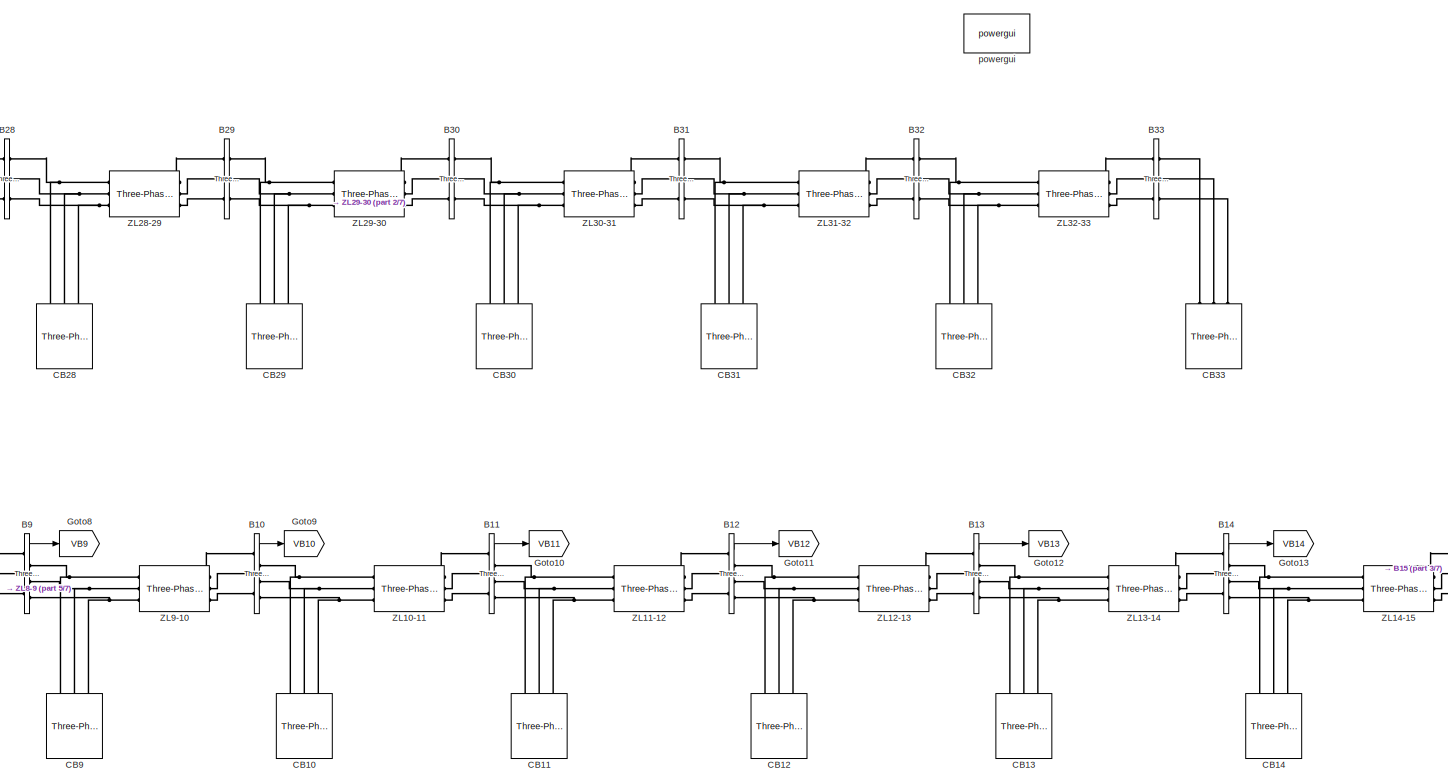
[diagram: root canvas - part 1/7, top center region]
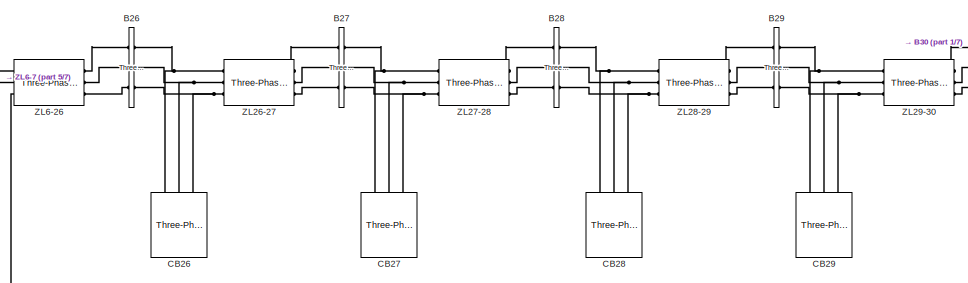
[diagram: root canvas - part 2/7, top center region]
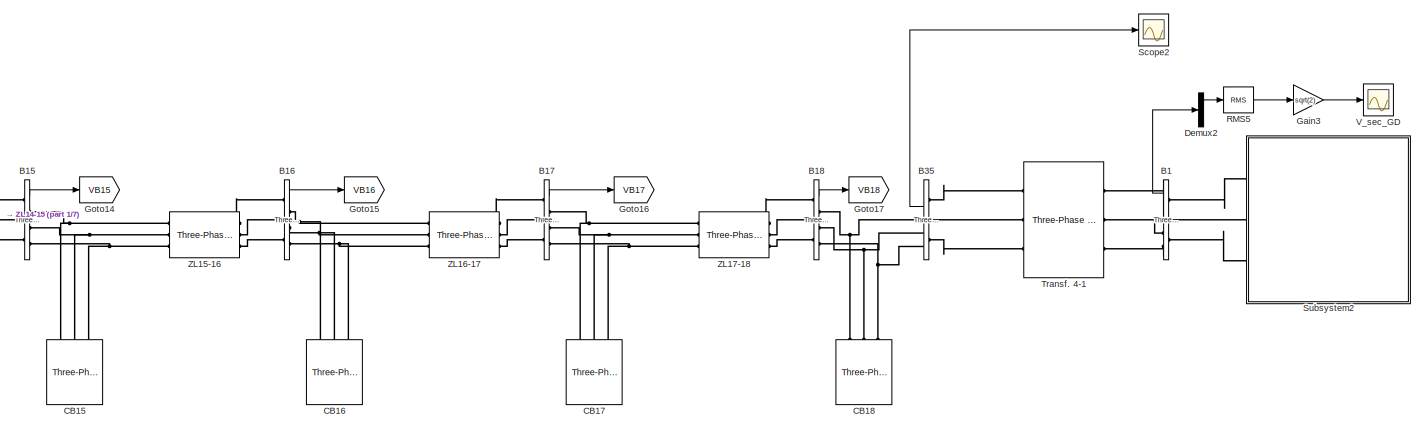
[diagram: root canvas - part 3/7, middle right region]
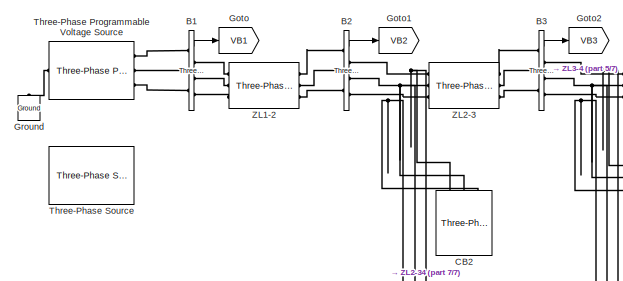
[diagram: root canvas - part 4/7, middle left region]
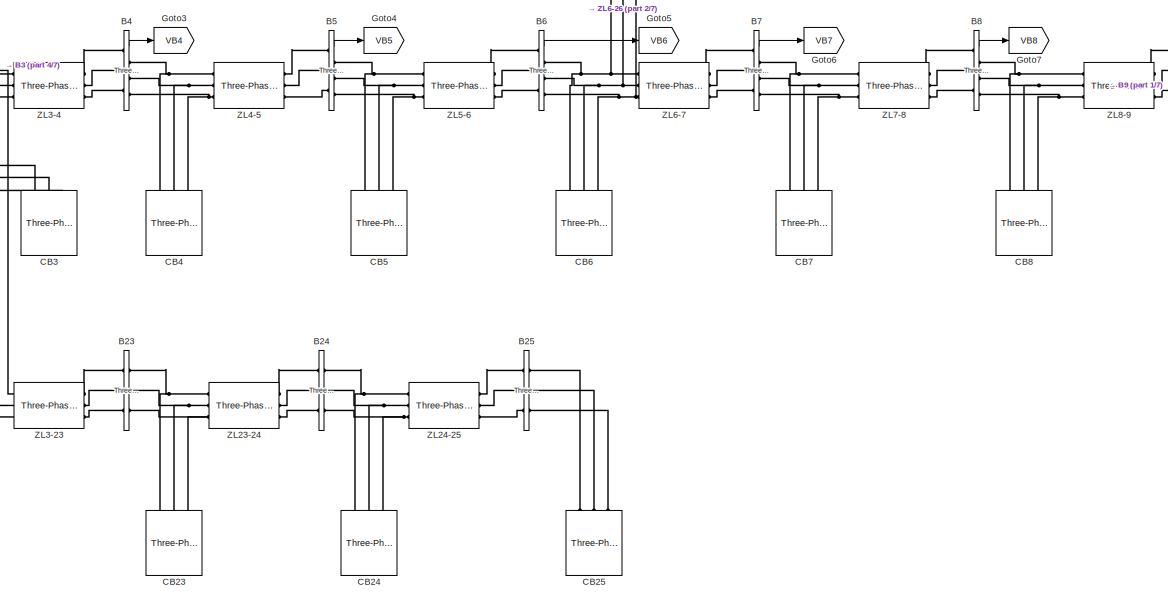
[diagram: root canvas - part 5/7, middle left region]
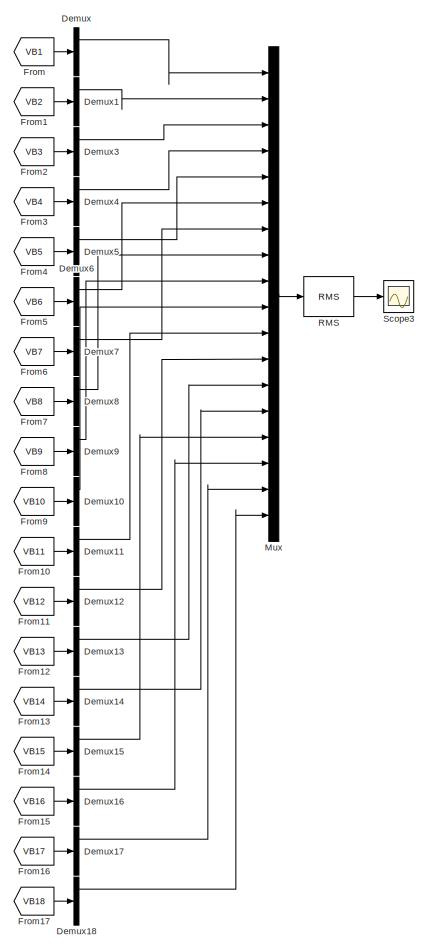
[diagram: root canvas - part 6/7, bottom center region]
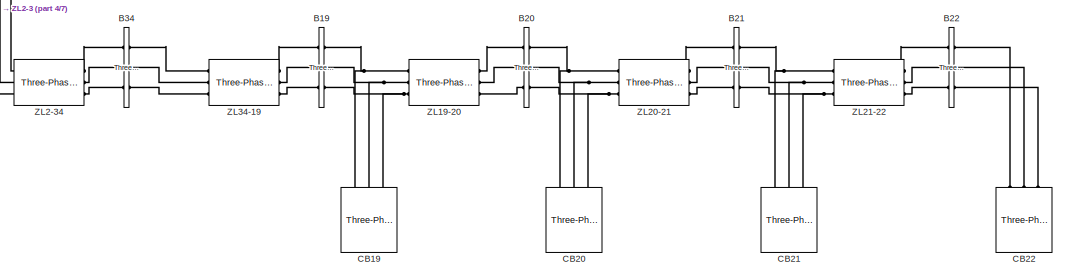
[diagram: root canvas - part 7/7, bottom left region]
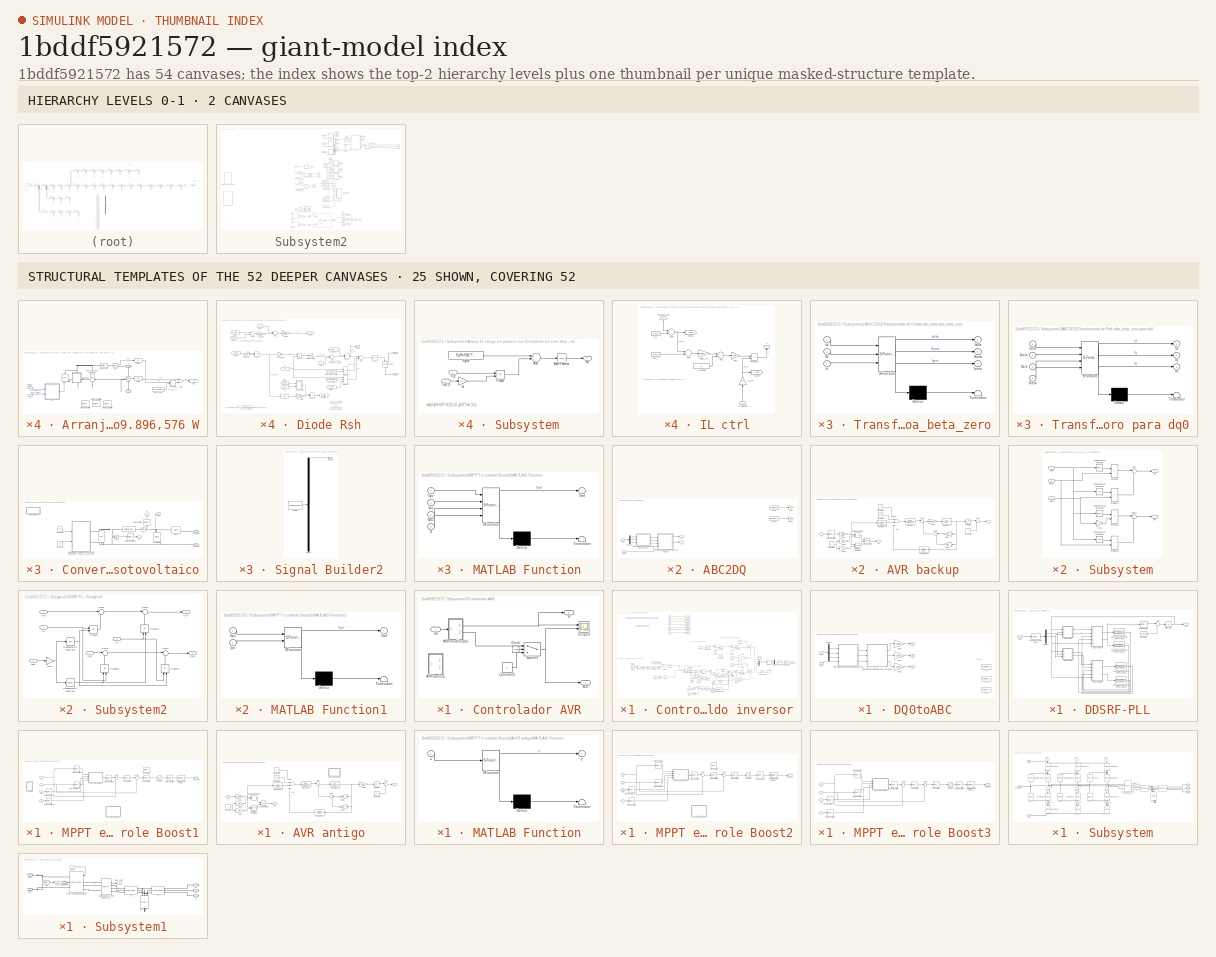
[diagram: thumbnail index - top-2 hierarchy levels (2 canvases) + 25 structural-template representatives of the remaining 52 canvases]
MODEL slx_1bddf5921572
KIND model
CONFIG AbsTol = auto
CONFIG FixedStep = 2e-6
CONFIG MaxStep = auto
CONFIG MinStep = auto
CONFIG RelTol = 1e-3
CONFIG SampleTimeConstraint = Unconstrained
CONFIG Solver = FixedStepAuto
CONFIG SolverMode = Auto
CONFIG SolverName = FixedStepAuto
CONFIG StartTime = 0.0
CONFIG StopTime = 5
BLOCK [Reference] B1  REF=powerlib/Measurements/Three-Phase
V-I Measurement
  Ports = [0, 2, 0, 0, 0, 3, 3]
  SourceBlock = powerlib/Measurements/Three-Phase\nV-I Measurement
  SourceType = Three-Phase VI Measurement
BLOCK [Reference] B1   REF=powerlib/Measurements/Three-Phase
V-I Measurement
  Ports = [0, 1, 0, 0, 0, 3, 3]
  SourceBlock = powerlib/Measurements/Three-Phase\nV-I Measurement
  SourceType = Three-Phase VI Measurement
BLOCK [Reference] B10  REF=powerlib/Measurements/Three-Phase
V-I Measurement
  Ports = [0, 1, 0, 0, 0, 3, 3]
  SourceBlock = powerlib/Measurements/Three-Phase\nV-I Measurement
  SourceType = Three-Phase VI Measurement
BLOCK [Reference] B11  REF=powerlib/Measurements/Three-Phase
V-I Measurement
  Ports = [0, 1, 0, 0, 0, 3, 3]
  SourceBlock = powerlib/Measurements/Three-Phase\nV-I Measurement
  SourceType = Three-Phase VI Measurement
BLOCK [Reference] B12  REF=powerlib/Measurements/Three-Phase
V-I Measurement
  Ports = [0, 1, 0, 0, 0, 3, 3]
  SourceBlock = powerlib/Measurements/Three-Phase\nV-I Measurement
  SourceType = Three-Phase VI Measurement
BLOCK [Reference] B13  REF=powerlib/Measurements/Three-Phase
V-I Measurement
  Ports = [0, 1, 0, 0, 0, 3, 3]
  SourceBlock = powerlib/Measurements/Three-Phase\nV-I Measurement
  SourceType = Three-Phase VI Measurement
BLOCK [Reference] B14  REF=powerlib/Measurements/Three-Phase
V-I Measurement
  Ports = [0, 1, 0, 0, 0, 3, 3]
  SourceBlock = powerlib/Measurements/Three-Phase\nV-I Measurement
  SourceType = Three-Phase VI Measurement
BLOCK [Reference] B15  REF=powerlib/Measurements/Three-Phase
V-I Measurement
  Ports = [0, 1, 0, 0, 0, 3, 3]
  SourceBlock = powerlib/Measurements/Three-Phase\nV-I Measurement
  SourceType = Three-Phase VI Measurement
BLOCK [Reference] B16  REF=powerlib/Measurements/Three-Phase
V-I Measurement
  Ports = [0, 1, 0, 0, 0, 3, 3]
  SourceBlock = powerlib/Measurements/Three-Phase\nV-I Measurement
  SourceType = Three-Phase VI Measurement
BLOCK [Reference] B17  REF=powerlib/Measurements/Three-Phase
V-I Measurement
  Ports = [0, 1, 0, 0, 0, 3, 3]
  SourceBlock = powerlib/Measurements/Three-Phase\nV-I Measurement
  SourceType = Three-Phase VI Measurement
BLOCK [Reference] B18  REF=powerlib/Measurements/Three-Phase
V-I Measurement
  Ports = [0, 1, 0, 0, 0, 3, 3]
  SourceBlock = powerlib/Measurements/Three-Phase\nV-I Measurement
  SourceType = Three-Phase VI Measurement
BLOCK [Reference] B19  REF=powerlib/Measurements/Three-Phase
V-I Measurement
  Ports = [0, 0, 0, 0, 0, 3, 3]
  SourceBlock = powerlib/Measurements/Three-Phase\nV-I Measurement
  SourceType = Three-Phase VI Measurement
BLOCK [Reference] B2  REF=powerlib/Measurements/Three-Phase
V-I Measurement
  Ports = [0, 1, 0, 0, 0, 3, 3]
  SourceBlock = powerlib/Measurements/Three-Phase\nV-I Measurement
  SourceType = Three-Phase VI Measurement
BLOCK [Reference] B20  REF=powerlib/Measurements/Three-Phase
V-I Measurement
  Ports = [0, 0, 0, 0, 0, 3, 3]
  SourceBlock = powerlib/Measurements/Three-Phase\nV-I Measurement
  SourceType = Three-Phase VI Measurement
BLOCK [Reference] B21  REF=powerlib/Measurements/Three-Phase
V-I Measurement
  Ports = [0, 0, 0, 0, 0, 3, 3]
  SourceBlock = powerlib/Measurements/Three-Phase\nV-I Measurement
  SourceType = Three-Phase VI Measurement
BLOCK [Reference] B22  REF=powerlib/Measurements/Three-Phase
V-I Measurement
  Ports = [0, 0, 0, 0, 0, 3, 3]
  SourceBlock = powerlib/Measurements/Three-Phase\nV-I Measurement
  SourceType = Three-Phase VI Measurement
BLOCK [Reference] B23  REF=powerlib/Measurements/Three-Phase
V-I Measurement
  Ports = [0, 0, 0, 0, 0, 3, 3]
  SourceBlock = powerlib/Measurements/Three-Phase\nV-I Measurement
  SourceType = Three-Phase VI Measurement
BLOCK [Reference] B24  REF=powerlib/Measurements/Three-Phase
V-I Measurement
  Ports = [0, 0, 0, 0, 0, 3, 3]
  SourceBlock = powerlib/Measurements/Three-Phase\nV-I Measurement
  SourceType = Three-Phase VI Measurement
BLOCK [Reference] B25  REF=powerlib/Measurements/Three-Phase
V-I Measurement
  Ports = [0, 0, 0, 0, 0, 3, 3]
  SourceBlock = powerlib/Measurements/Three-Phase\nV-I Measurement
  SourceType = Three-Phase VI Measurement
BLOCK [Reference] B26  REF=powerlib/Measurements/Three-Phase
V-I Measurement
  Ports = [0, 0, 0, 0, 0, 3, 3]
  SourceBlock = powerlib/Measurements/Three-Phase\nV-I Measurement
  SourceType = Three-Phase VI Measurement
BLOCK [Reference] B27  REF=powerlib/Measurements/Three-Phase
V-I Measurement
  Ports = [0, 0, 0, 0, 0, 3, 3]
  SourceBlock = powerlib/Measurements/Three-Phase\nV-I Measurement
  SourceType = Three-Phase VI Measurement
BLOCK [Reference] B28  REF=powerlib/Measurements/Three-Phase
V-I Measurement
  Ports = [0, 0, 0, 0, 0, 3, 3]
  SourceBlock = powerlib/Measurements/Three-Phase\nV-I Measurement
  SourceType = Three-Phase VI Measurement
BLOCK [Reference] B29  REF=powerlib/Measurements/Three-Phase
V-I Measurement
  Ports = [0, 0, 0, 0, 0, 3, 3]
  SourceBlock = powerlib/Measurements/Three-Phase\nV-I Measurement
  SourceType = Three-Phase VI Measurement
BLOCK [Reference] B3  REF=powerlib/Measurements/Three-Phase
V-I Measurement
  Ports = [0, 1, 0, 0, 0, 3, 3]
  SourceBlock = powerlib/Measurements/Three-Phase\nV-I Measurement
  SourceType = Three-Phase VI Measurement
BLOCK [Reference] B30  REF=powerlib/Measurements/Three-Phase
V-I Measurement
  Ports = [0, 0, 0, 0, 0, 3, 3]
  SourceBlock = powerlib/Measurements/Three-Phase\nV-I Measurement
  SourceType = Three-Phase VI Measurement
BLOCK [Reference] B31  REF=powerlib/Measurements/Three-Phase
V-I Measurement
  Ports = [0, 0, 0, 0, 0, 3, 3]
  SourceBlock = powerlib/Measurements/Three-Phase\nV-I Measurement
  SourceType = Three-Phase VI Measurement
BLOCK [Reference] B32  REF=powerlib/Measurements/Three-Phase
V-I Measurement
  Ports = [0, 0, 0, 0, 0, 3, 3]
  SourceBlock = powerlib/Measurements/Three-Phase\nV-I Measurement
  SourceType = Three-Phase VI Measurement
BLOCK [Reference] B33  REF=powerlib/Measurements/Three-Phase
V-I Measurement
  Ports = [0, 0, 0, 0, 0, 3, 3]
  SourceBlock = powerlib/Measurements/Three-Phase\nV-I Measurement
  SourceType = Three-Phase VI Measurement
BLOCK [Reference] B34  REF=powerlib/Measurements/Three-Phase
V-I Measurement
  Ports = [0, 0, 0, 0, 0, 3, 3]
  SourceBlock = powerlib/Measurements/Three-Phase\nV-I Measurement
  SourceType = Three-Phase VI Measurement
BLOCK [Reference] B35  REF=powerlib/Measurements/Three-Phase
V-I Measurement
  Ports = [0, 2, 0, 0, 0, 3, 3]
  SourceBlock = powerlib/Measurements/Three-Phase\nV-I Measurement
  SourceType = Three-Phase VI Measurement
BLOCK [Reference] B4  REF=powerlib/Measurements/Three-Phase
V-I Measurement
  Ports = [0, 1, 0, 0, 0, 3, 3]
  SourceBlock = powerlib/Measurements/Three-Phase\nV-I Measurement
  SourceType = Three-Phase VI Measurement
BLOCK [Reference] B5  REF=powerlib/Measurements/Three-Phase
V-I Measurement
  Ports = [0, 1, 0, 0, 0, 3, 3]
  SourceBlock = powerlib/Measurements/Three-Phase\nV-I Measurement
  SourceType = Three-Phase VI Measurement
BLOCK [Reference] B6  REF=powerlib/Measurements/Three-Phase
V-I Measurement
  Ports = [0, 1, 0, 0, 0, 3, 3]
  SourceBlock = powerlib/Measurements/Three-Phase\nV-I Measurement
  SourceType = Three-Phase VI Measurement
BLOCK [Reference] B7  REF=powerlib/Measurements/Three-Phase
V-I Measurement
  Ports = [0, 1, 0, 0, 0, 3, 3]
  SourceBlock = powerlib/Measurements/Three-Phase\nV-I Measurement
  SourceType = Three-Phase VI Measurement
BLOCK [Reference] B8  REF=powerlib/Measurements/Three-Phase
V-I Measurement
  Ports = [0, 1, 0, 0, 0, 3, 3]
  SourceBlock = powerlib/Measurements/Three-Phase\nV-I Measurement
  SourceType = Three-Phase VI Measurement
BLOCK [Reference] B9  REF=powerlib/Measurements/Three-Phase
V-I Measurement
  Ports = [0, 1, 0, 0, 0, 3, 3]
  SourceBlock = powerlib/Measurements/Three-Phase\nV-I Measurement
  SourceType = Three-Phase VI Measurement
BLOCK [Reference] CB10  REF=powerlib/Elements/Three-Phase
Parallel RLC Load
  AttributesFormatString = \n
  Ports = [0, 0, 0, 0, 0, 3]
  SourceBlock = powerlib/Elements/Three-Phase\nParallel RLC Load
  SourceType = Three-Phase Parallel RLC Load
BLOCK [Reference] CB11  REF=powerlib/Elements/Three-Phase
Parallel RLC Load
  AttributesFormatString = \n
  Ports = [0, 0, 0, 0, 0, 3]
  SourceBlock = powerlib/Elements/Three-Phase\nParallel RLC Load
  SourceType = Three-Phase Parallel RLC Load
BLOCK [Reference] CB12  REF=powerlib/Elements/Three-Phase
Parallel RLC Load
  AttributesFormatString = \n
  Ports = [0, 0, 0, 0, 0, 3]
  SourceBlock = powerlib/Elements/Three-Phase\nParallel RLC Load
  SourceType = Three-Phase Parallel RLC Load
BLOCK [Reference] CB13  REF=powerlib/Elements/Three-Phase
Parallel RLC Load
  AttributesFormatString = \n
  Ports = [0, 0, 0, 0, 0, 3]
  SourceBlock = powerlib/Elements/Three-Phase\nParallel RLC Load
  SourceType = Three-Phase Parallel RLC Load
BLOCK [Reference] CB14  REF=powerlib/Elements/Three-Phase
Parallel RLC Load
  AttributesFormatString = \n
  Ports = [0, 0, 0, 0, 0, 3]
  SourceBlock = powerlib/Elements/Three-Phase\nParallel RLC Load
  SourceType = Three-Phase Parallel RLC Load
BLOCK [Reference] CB15  REF=powerlib/Elements/Three-Phase
Parallel RLC Load
  AttributesFormatString = \n
  Ports = [0, 0, 0, 0, 0, 3]
  SourceBlock = powerlib/Elements/Three-Phase\nParallel RLC Load
  SourceType = Three-Phase Parallel RLC Load
BLOCK [Reference] CB16  REF=powerlib/Elements/Three-Phase
Parallel RLC Load
  AttributesFormatString = \n
  Ports = [0, 0, 0, 0, 0, 3]
  SourceBlock = powerlib/Elements/Three-Phase\nParallel RLC Load
  SourceType = Three-Phase Parallel RLC Load
BLOCK [Reference] CB17  REF=powerlib/Elements/Three-Phase
Parallel RLC Load
  AttributesFormatString = \n
  Ports = [0, 0, 0, 0, 0, 3]
  SourceBlock = powerlib/Elements/Three-Phase\nParallel RLC Load
  SourceType = Three-Phase Parallel RLC Load
BLOCK [Reference] CB18  REF=powerlib/Elements/Three-Phase
Parallel RLC Load
  AttributesFormatString = \n
  Ports = [0, 0, 0, 0, 0, 3]
  SourceBlock = powerlib/Elements/Three-Phase\nParallel RLC Load
  SourceType = Three-Phase Parallel RLC Load
BLOCK [Reference] CB19  REF=powerlib/Elements/Three-Phase
Parallel RLC Load
  AttributesFormatString = \n
  Ports = [0, 0, 0, 0, 0, 3]
  SourceBlock = powerlib/Elements/Three-Phase\nParallel RLC Load
  SourceType = Three-Phase Parallel RLC Load
BLOCK [Reference] CB2  REF=powerlib/Elements/Three-Phase
Parallel RLC Load
  AttributesFormatString = \n
  Ports = [0, 0, 0, 0, 0, 3]
  SourceBlock = powerlib/Elements/Three-Phase\nParallel RLC Load
  SourceType = Three-Phase Parallel RLC Load
BLOCK [Reference] CB20  REF=powerlib/Elements/Three-Phase
Parallel RLC Load
  AttributesFormatString = \n
  Ports = [0, 0, 0, 0, 0, 3]
  SourceBlock = powerlib/Elements/Three-Phase\nParallel RLC Load
  SourceType = Three-Phase Parallel RLC Load
BLOCK [Reference] CB21  REF=powerlib/Elements/Three-Phase
Parallel RLC Load
  AttributesFormatString = \n
  Ports = [0, 0, 0, 0, 0, 3]
  SourceBlock = powerlib/Elements/Three-Phase\nParallel RLC Load
  SourceType = Three-Phase Parallel RLC Load
BLOCK [Reference] CB22  REF=powerlib/Elements/Three-Phase
Parallel RLC Load
  AttributesFormatString = \n
  Ports = [0, 0, 0, 0, 0, 3]
  SourceBlock = powerlib/Elements/Three-Phase\nParallel RLC Load
  SourceType = Three-Phase Parallel RLC Load
BLOCK [Reference] CB23  REF=powerlib/Elements/Three-Phase
Parallel RLC Load
  AttributesFormatString = \n
  Ports = [0, 0, 0, 0, 0, 3]
  SourceBlock = powerlib/Elements/Three-Phase\nParallel RLC Load
  SourceType = Three-Phase Parallel RLC Load
BLOCK [Reference] CB24  REF=powerlib/Elements/Three-Phase
Parallel RLC Load
  AttributesFormatString = \n
  Ports = [0, 0, 0, 0, 0, 3]
  SourceBlock = powerlib/Elements/Three-Phase\nParallel RLC Load
  SourceType = Three-Phase Parallel RLC Load
BLOCK [Reference] CB25  REF=powerlib/Elements/Three-Phase
Parallel RLC Load
  AttributesFormatString = \n
  Ports = [0, 0, 0, 0, 0, 3]
  SourceBlock = powerlib/Elements/Three-Phase\nParallel RLC Load
  SourceType = Three-Phase Parallel RLC Load
BLOCK [Reference] CB26  REF=powerlib/Elements/Three-Phase
Parallel RLC Load
  AttributesFormatString = \n
  Ports = [0, 0, 0, 0, 0, 3]
  SourceBlock = powerlib/Elements/Three-Phase\nParallel RLC Load
  SourceType = Three-Phase Parallel RLC Load
BLOCK [Reference] CB27  REF=powerlib/Elements/Three-Phase
Parallel RLC Load
  AttributesFormatString = \n
  Ports = [0, 0, 0, 0, 0, 3]
  SourceBlock = powerlib/Elements/Three-Phase\nParallel RLC Load
  SourceType = Three-Phase Parallel RLC Load
BLOCK [Reference] CB28  REF=powerlib/Elements/Three-Phase
Parallel RLC Load
  AttributesFormatString = \n
  Ports = [0, 0, 0, 0, 0, 3]
  SourceBlock = powerlib/Elements/Three-Phase\nParallel RLC Load
  SourceType = Three-Phase Parallel RLC Load
BLOCK [Reference] CB29  REF=powerlib/Elements/Three-Phase
Parallel RLC Load
  AttributesFormatString = \n
  Ports = [0, 0, 0, 0, 0, 3]
  SourceBlock = powerlib/Elements/Three-Phase\nParallel RLC Load
  SourceType = Three-Phase Parallel RLC Load
BLOCK [Reference] CB3  REF=powerlib/Elements/Three-Phase
Parallel RLC Load
  AttributesFormatString = \n
  Ports = [0, 0, 0, 0, 0, 3]
  SourceBlock = powerlib/Elements/Three-Phase\nParallel RLC Load
  SourceType = Three-Phase Parallel RLC Load
BLOCK [Reference] CB30  REF=powerlib/Elements/Three-Phase
Parallel RLC Load
  AttributesFormatString = \n
  Ports = [0, 0, 0, 0, 0, 3]
  SourceBlock = powerlib/Elements/Three-Phase\nParallel RLC Load
  SourceType = Three-Phase Parallel RLC Load
BLOCK [Reference] CB31  REF=powerlib/Elements/Three-Phase
Parallel RLC Load
  AttributesFormatString = \n
  Ports = [0, 0, 0, 0, 0, 3]
  SourceBlock = powerlib/Elements/Three-Phase\nParallel RLC Load
  SourceType = Three-Phase Parallel RLC Load
BLOCK [Reference] CB32  REF=powerlib/Elements/Three-Phase
Parallel RLC Load
  AttributesFormatString = \n
  Ports = [0, 0, 0, 0, 0, 3]
  SourceBlock = powerlib/Elements/Three-Phase\nParallel RLC Load
  SourceType = Three-Phase Parallel RLC Load
BLOCK [Reference] CB33  REF=powerlib/Elements/Three-Phase
Parallel RLC Load
  AttributesFormatString = \n
  Ports = [0, 0, 0, 0, 0, 3]
  SourceBlock = powerlib/Elements/Three-Phase\nParallel RLC Load
  SourceType = Three-Phase Parallel RLC Load
BLOCK [Reference] CB4  REF=powerlib/Elements/Three-Phase
Parallel RLC Load
  AttributesFormatString = \n
  Ports = [0, 0, 0, 0, 0, 3]
  SourceBlock = powerlib/Elements/Three-Phase\nParallel RLC Load
  SourceType = Three-Phase Parallel RLC Load
BLOCK [Reference] CB5  REF=powerlib/Elements/Three-Phase
Parallel RLC Load
  AttributesFormatString = \n
  Ports = [0, 0, 0, 0, 0, 3]
  SourceBlock = powerlib/Elements/Three-Phase\nParallel RLC Load
  SourceType = Three-Phase Parallel RLC Load
BLOCK [Reference] CB6  REF=powerlib/Elements/Three-Phase
Parallel RLC Load
  AttributesFormatString = \n
  Ports = [0, 0, 0, 0, 0, 3]
  SourceBlock = powerlib/Elements/Three-Phase\nParallel RLC Load
  SourceType = Three-Phase Parallel RLC Load
BLOCK [Reference] CB7  REF=powerlib/Elements/Three-Phase
Parallel RLC Load
  AttributesFormatString = \n
  Ports = [0, 0, 0, 0, 0, 3]
  SourceBlock = powerlib/Elements/Three-Phase\nParallel RLC Load
  SourceType = Three-Phase Parallel RLC Load
BLOCK [Reference] CB8  REF=powerlib/Elements/Three-Phase
Parallel RLC Load
  AttributesFormatString = \n
  Ports = [0, 0, 0, 0, 0, 3]
  SourceBlock = powerlib/Elements/Three-Phase\nParallel RLC Load
  SourceType = Three-Phase Parallel RLC Load
BLOCK [Reference] CB9  REF=powerlib/Elements/Three-Phase
Parallel RLC Load
  AttributesFormatString = \n
  Ports = [0, 0, 0, 0, 0, 3]
  SourceBlock = powerlib/Elements/Three-Phase\nParallel RLC Load
  SourceType = Three-Phase Parallel RLC Load
BLOCK [Demux] Demux
  Commented = on
  DisplayOption = bar
  Outputs = 3
  Ports = [1, 3]
BLOCK [Demux] Demux1
  Commented = on
  DisplayOption = bar
  Outputs = 3
  Ports = [1, 3]
BLOCK [Demux] Demux10
  Commented = on
  DisplayOption = bar
  Outputs = 3
  Ports = [1, 3]
BLOCK [Demux] Demux11
  Commented = on
  DisplayOption = bar
  Outputs = 3
  Ports = [1, 3]
BLOCK [Demux] Demux12
  Commented = on
  DisplayOption = bar
  Outputs = 3
  Ports = [1, 3]
BLOCK [Demux] Demux13
  Commented = on
  DisplayOption = bar
  Outputs = 3
  Ports = [1, 3]
BLOCK [Demux] Demux14
  Commented = on
  DisplayOption = bar
  Outputs = 3
  Ports = [1, 3]
BLOCK [Demux] Demux15
  Commented = on
  DisplayOption = bar
  Outputs = 3
  Ports = [1, 3]
BLOCK [Demux] Demux16
  Commented = on
  DisplayOption = bar
  Outputs = 3
  Ports = [1, 3]
BLOCK [Demux] Demux17
  Commented = on
  DisplayOption = bar
  Outputs = 3
  Ports = [1, 3]
BLOCK [Demux] Demux18
  Commented = on
  DisplayOption = bar
  Outputs = 3
  Ports = [1, 3]
BLOCK [Demux] Demux2
  DisplayOption = bar
  Outputs = 3
  Ports = [1, 3]
BLOCK [Demux] Demux3
  Commented = on
  DisplayOption = bar
  Outputs = 3
  Ports = [1, 3]
BLOCK [Demux] Demux4
  Commented = on
  DisplayOption = bar
  Outputs = 3
  Ports = [1, 3]
BLOCK [Demux] Demux5
  Commented = on
  DisplayOption = bar
  Outputs = 3
  Ports = [1, 3]
BLOCK [Demux] Demux6
  Commented = on
  DisplayOption = bar
  Outputs = 3
  Ports = [1, 3]
BLOCK [Demux] Demux7
  Commented = on
  DisplayOption = bar
  Outputs = 3
  Ports = [1, 3]
BLOCK [Demux] Demux8
  Commented = on
  DisplayOption = bar
  Outputs = 3
  Ports = [1, 3]
BLOCK [Demux] Demux9
  Commented = on
  DisplayOption = bar
  Outputs = 3
  Ports = [1, 3]
BLOCK [From] From
  Commented = on
  GotoTag = VB1
BLOCK [From] From1
  Commented = on
  GotoTag = VB2
BLOCK [From] From10
  Commented = on
  GotoTag = VB11
BLOCK [From] From11
  Commented = on
  GotoTag = VB12
BLOCK [From] From12
  Commented = on
  GotoTag = VB13
BLOCK [From] From13
  Commented = on
  GotoTag = VB14
BLOCK [From] From14
  Commented = on
  GotoTag = VB15
BLOCK [From] From15
  Commented = on
  GotoTag = VB16
BLOCK [From] From16
  Commented = on
  GotoTag = VB17
BLOCK [From] From17
  Commented = on
  GotoTag = VB18
BLOCK [From] From2
  Commented = on
  GotoTag = VB3
BLOCK [From] From3
  Commented = on
  GotoTag = VB4
BLOCK [From] From4
  Commented = on
  GotoTag = VB5
BLOCK [From] From5
  Commented = on
  GotoTag = VB6
BLOCK [From] From6
  Commented = on
  GotoTag = VB7
BLOCK [From] From7
  Commented = on
  GotoTag = VB8
BLOCK [From] From8
  Commented = on
  GotoTag = VB9
BLOCK [From] From9
  Commented = on
  GotoTag = VB10
BLOCK [Gain] Gain3
  Gain = sqrt(2)
  OutDataTypeStr = Inherit: Inherit via internal rule
  ParamDataTypeStr = Inherit: Inherit via internal rule
  SaturateOnIntegerOverflow = off
BLOCK [Goto] Goto
  GotoTag = VB1
BLOCK [Goto] Goto1
  GotoTag = VB2
BLOCK [Goto] Goto10
  GotoTag = VB11
BLOCK [Goto] Goto11
  GotoTag = VB12
BLOCK [Goto] Goto12
  GotoTag = VB13
BLOCK [Goto] Goto13
  GotoTag = VB14
BLOCK [Goto] Goto14
  GotoTag = VB15
BLOCK [Goto] Goto15
  GotoTag = VB16
BLOCK [Goto] Goto16
  GotoTag = VB17
BLOCK [Goto] Goto17
  GotoTag = VB18
BLOCK [Goto] Goto2
  GotoTag = VB3
BLOCK [Goto] Goto3
  GotoTag = VB4
BLOCK [Goto] Goto4
  GotoTag = VB5
BLOCK [Goto] Goto5
  GotoTag = VB6
BLOCK [Goto] Goto6
  GotoTag = VB7
BLOCK [Goto] Goto7
  GotoTag = VB8
BLOCK [Goto] Goto8
  GotoTag = VB9
BLOCK [Goto] Goto9
  GotoTag = VB10
BLOCK [Reference] Ground  REF=powerlib/Elements/Ground
  Ports = [0, 0, 0, 0, 0, 1]
  SourceBlock = powerlib/Elements/Ground
  SourceType = Ground
BLOCK [Mux] Mux
  Commented = on
  DisplayOption = bar
  Inputs = 18
  Ports = [18, 1]
BLOCK [Reference] RMS  REF=powerlib_meascontrol/Measurements/RMS
  Commented = on
  Ports = [1, 1]
  SourceBlock = powerlib_meascontrol/Measurements/RMS
  SourceType = RMS
BLOCK [Reference] RMS5  REF=powerlib_meascontrol/Measurements/RMS
  Ports = [1, 1]
  SourceBlock = powerlib_meascontrol/Measurements/RMS
  SourceType = RMS
BLOCK [Scope] Scope2
  Ports = [1]
  ScopeSpecificationString = Simulink.scopes.TimeScopeBlockCfg('CurrentConfiguration', extmgr.ConfigurationSet(extmgr.Configuration('Core','General UI',true),extmgr.Configuration('Core','Source UI',true),extmgr.Configuration('Sources','WiredSimulink',true,'DataLoggingVariableName','Iabc_GD','DataLogging',true,'DataLoggingSaveFormat','StructureWithTime'),extmgr.Configuration('Visuals','Time Domain',true,'SerializedDisplays',{s...<+1559ch>
BLOCK [Scope] Scope3
  Commented = on
  Ports = [1]
  ScopeSpecificationString = Simulink.scopes.TimeScopeBlockCfg('CurrentConfiguration', extmgr.ConfigurationSet(extmgr.Configuration('Core','General UI',true),extmgr.Configuration('Core','Source UI',true),extmgr.Configuration('Sources','WiredSimulink',true,'DataLoggingVariableName','ScopeData3'),extmgr.Configuration('Visuals','Time Domain',true,'SerializedDisplays',{struct('MinYLimReal','5851.82153','MaxYLimReal','14683.1311',...<+1992ch>
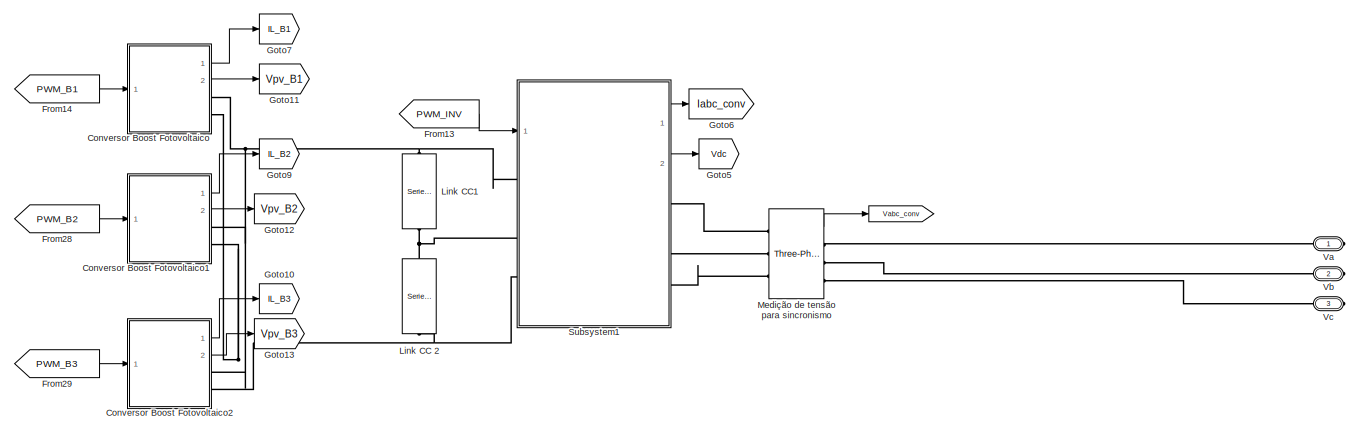
[diagram: Subsystem2 - part 1/4, top right region]
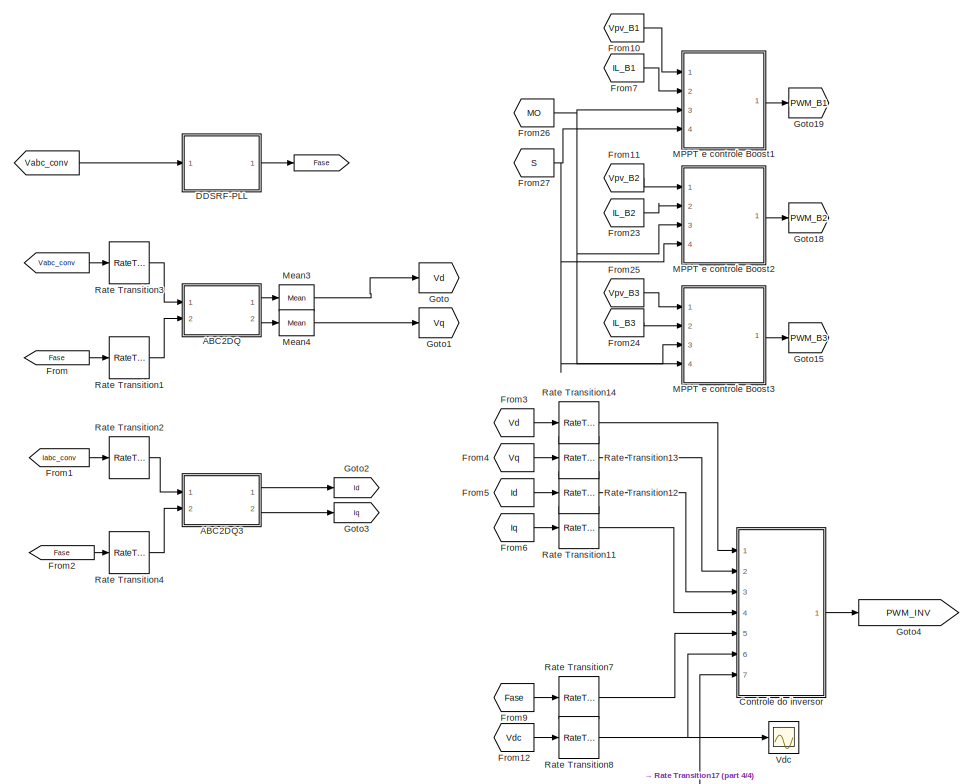
[diagram: Subsystem2 - part 2/4, central region]
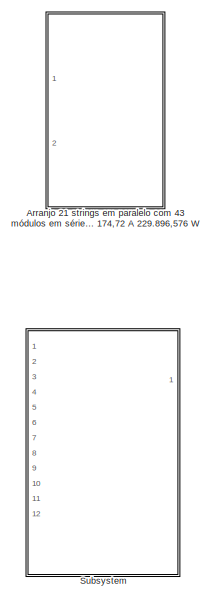
[diagram: Subsystem2 - part 3/4, middle left region]
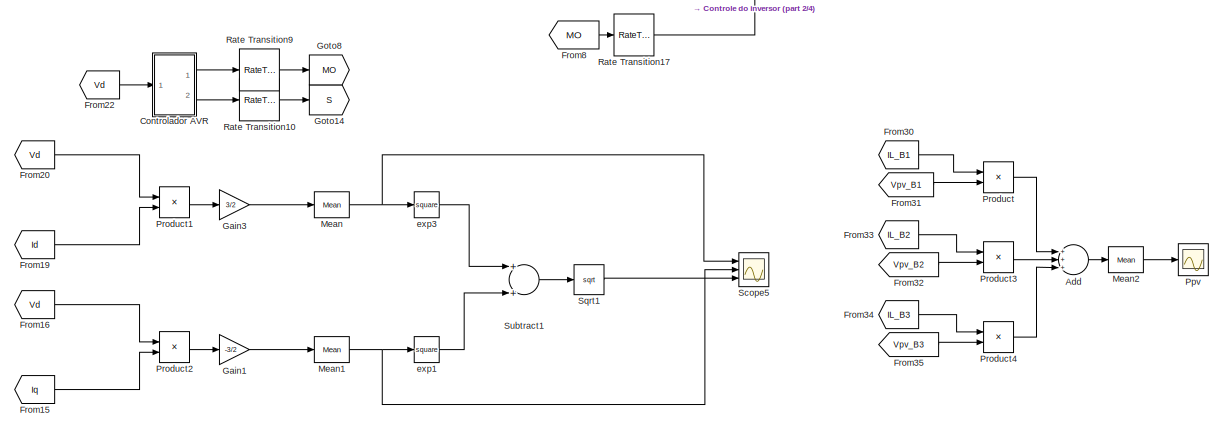
[diagram: Subsystem2 - part 4/4, bottom center region]
BLOCK [SubSystem] Subsystem2
  Commented = on
  Ports = [0, 0, 0, 0, 0, 0, 3]
  RequestExecContextInheritance = off
  Variant = off
BLOCK [Goto] Subsystem2/ 
  GotoTag = Fase
  TagVisibility = global
BLOCK [SubSystem] Subsystem2/ABC2DQ
  Ports = [2, 2]
  RequestExecContextInheritance = off
  Variant = off
BLOCK [Inport] Subsystem2/ABC2DQ/ABC.
  IconDisplay = Port number
BLOCK [Demux] Subsystem2/ABC2DQ/Demux1
  DisplayOption = bar
  Outputs = 3
  Ports = [1, 3]
BLOCK [Inport] Subsystem2/ABC2DQ/Fase
  IconDisplay = Port number
  Port = 2
BLOCK [Fcn] Subsystem2/ABC2DQ/Fcn1
  Commented = on
  Expr = sin(u[1])*u(2)+sin(u[1]-(2*pi/3))*u(3)+sin(u[1]+(2*pi/3))*u(4)
BLOCK [Fcn] Subsystem2/ABC2DQ/Fcn2
  Commented = on
  Expr = cos(u[1])*u(2)+cos(u[1]-(2*pi/3))*u(3)+cos(u[1]+(2*pi/3))*u(4);
BLOCK [Gain] Subsystem2/ABC2DQ/Gain
  Commented = on
  Gain = 2/3
  OutDataTypeStr = Inherit: Inherit via internal rule
  ParamDataTypeStr = Inherit: Inherit via internal rule
  SaturateOnIntegerOverflow = off
BLOCK [Gain] Subsystem2/ABC2DQ/Gain4
  Commented = on
  Gain = 2/3
  OutDataTypeStr = Inherit: Inherit via internal rule
  ParamDataTypeStr = Inherit: Inherit via internal rule
  SaturateOnIntegerOverflow = off
BLOCK [SubSystem] Subsystem2/ABC2DQ/Transformada de Clarke abc para alfa_beta_zero
  ErrorFcn = Stateflow.Translate.translate
  PermitHierarchicalResolution = ExplicitOnly
  Ports = [3, 3]
  RequestExecContextInheritance = off
  SFBlockType = MATLAB Function
  TreatAsAtomicUnit = on
  Variant = off
BLOCK [Demux] Subsystem2/ABC2DQ/Transformada de Clarke abc para alfa_beta_zero/ Demux 
  DisplayOption = bar
  Outputs = 1
  Ports = [1, 1]
BLOCK [S-Function] Subsystem2/ABC2DQ/Transformada de Clarke abc para alfa_beta_zero/ SFunction 
  EnableBusSupport = on
  FunctionName = sf_sfun
  PortCounts = [3 4]
  Ports = [3, 4]
  SFunctionDeploymentMode = off
  Tag = Stateflow S-Function REDE_IEEE_34_BARRAS 8
BLOCK [Terminator] Subsystem2/ABC2DQ/Transformada de Clarke abc para alfa_beta_zero/ Terminator 
BLOCK [Inport] Subsystem2/ABC2DQ/Transformada de Clarke abc para alfa_beta_zero/fa
  IconDisplay = Port number
BLOCK [Outport] Subsystem2/ABC2DQ/Transformada de Clarke abc para alfa_beta_zero/falfa
  IconDisplay = Port number
BLOCK [Inport] Subsystem2/ABC2DQ/Transformada de Clarke abc para alfa_beta_zero/fb
  IconDisplay = Port number
  Port = 2
BLOCK [Outport] Subsystem2/ABC2DQ/Transformada de Clarke abc para alfa_beta_zero/fbeta
  IconDisplay = Port number
  Port = 2
BLOCK [Inport] Subsystem2/ABC2DQ/Transformada de Clarke abc para alfa_beta_zero/fc
  IconDisplay = Port number
  Port = 3
BLOCK [Outport] Subsystem2/ABC2DQ/Transformada de Clarke abc para alfa_beta_zero/fzero
  IconDisplay = Port number
  Port = 3
BLOCK [SubSystem] Subsystem2/ABC2DQ/Transformada de Park alfa_beta_zero para dq0
  ErrorFcn = Stateflow.Translate.translate
  PermitHierarchicalResolution = ExplicitOnly
  Ports = [4, 3]
  RequestExecContextInheritance = off
  SFBlockType = MATLAB Function
  TreatAsAtomicUnit = on
  Variant = off
BLOCK [Demux] Subsystem2/ABC2DQ/Transformada de Park alfa_beta_zero para dq0/ Demux 
  DisplayOption = bar
  Outputs = 1
  Ports = [1, 1]
BLOCK [S-Function] Subsystem2/ABC2DQ/Transformada de Park alfa_beta_zero para dq0/ SFunction 
  EnableBusSupport = on
  FunctionName = sf_sfun
  PortCounts = [4 4]
  Ports = [4, 4]
  SFunctionDeploymentMode = off
  Tag = Stateflow S-Function REDE_IEEE_34_BARRAS 9
BLOCK [Terminator] Subsystem2/ABC2DQ/Transformada de Park alfa_beta_zero para dq0/ Terminator 
BLOCK [Outport] Subsystem2/ABC2DQ/Transformada de Park alfa_beta_zero para dq0/f0
  IconDisplay = Port number
  Port = 3
BLOCK [Inport] Subsystem2/ABC2DQ/Transformada de Park alfa_beta_zero para dq0/falfa
  IconDisplay = Port number
BLOCK [Inport] Subsystem2/ABC2DQ/Transformada de Park alfa_beta_zero para dq0/fbeta
  IconDisplay = Port number
  Port = 2
BLOCK [Outport] Subsystem2/ABC2DQ/Transformada de Park alfa_beta_zero para dq0/fd
  IconDisplay = Port number
BLOCK [Outport] Subsystem2/ABC2DQ/Transformada de Park alfa_beta_zero para dq0/fq
  IconDisplay = Port number
  Port = 2
BLOCK [Inport] Subsystem2/ABC2DQ/Transformada de Park alfa_beta_zero para dq0/fzero
  IconDisplay = Port number
  Port = 3
BLOCK [Inport] Subsystem2/ABC2DQ/Transformada de Park alfa_beta_zero para dq0/theta
  IconDisplay = Port number
  Port = 4
BLOCK [Outport] Subsystem2/ABC2DQ/Vd
  IconDisplay = Port number
BLOCK [Outport] Subsystem2/ABC2DQ/Vq
  IconDisplay = Port number
  Port = 2
BLOCK [SubSystem] Subsystem2/ABC2DQ3
  Ports = [2, 2]
  RequestExecContextInheritance = off
  Variant = off
BLOCK [Inport] Subsystem2/ABC2DQ3/ABC.
  IconDisplay = Port number
BLOCK [Demux] Subsystem2/ABC2DQ3/Demux1
  DisplayOption = bar
  Outputs = 3
  Ports = [1, 3]
BLOCK [Inport] Subsystem2/ABC2DQ3/Fase
  IconDisplay = Port number
  Port = 2
BLOCK [Fcn] Subsystem2/ABC2DQ3/Fcn1
  Commented = on
  Expr = sin(u[1])*u(2)+sin(u[1]-(2*pi/3))*u(3)+sin(u[1]+(2*pi/3))*u(4)
BLOCK [Fcn] Subsystem2/ABC2DQ3/Fcn2
  Commented = on
  Expr = cos(u[1])*u(2)+cos(u[1]-(2*pi/3))*u(3)+cos(u[1]+(2*pi/3))*u(4);
BLOCK [Gain] Subsystem2/ABC2DQ3/Gain
  Commented = on
  Gain = 2/3
  OutDataTypeStr = Inherit: Inherit via internal rule
  ParamDataTypeStr = Inherit: Inherit via internal rule
  SaturateOnIntegerOverflow = off
BLOCK [Gain] Subsystem2/ABC2DQ3/Gain4
  Commented = on
  Gain = 2/3
  OutDataTypeStr = Inherit: Inherit via internal rule
  ParamDataTypeStr = Inherit: Inherit via internal rule
  SaturateOnIntegerOverflow = off
BLOCK [Outport] Subsystem2/ABC2DQ3/Id
  IconDisplay = Port number
BLOCK [Outport] Subsystem2/ABC2DQ3/Iq
  IconDisplay = Port number
  Port = 2
BLOCK [SubSystem] Subsystem2/ABC2DQ3/Transformada de Clarke abc para alfa_beta_zero
  ErrorFcn = Stateflow.Translate.translate
  PermitHierarchicalResolution = ExplicitOnly
  Ports = [3, 3]
  RequestExecContextInheritance = off
  SFBlockType = MATLAB Function
  TreatAsAtomicUnit = on
  Variant = off
BLOCK [Demux] Subsystem2/ABC2DQ3/Transformada de Clarke abc para alfa_beta_zero/ Demux 
  DisplayOption = bar
  Outputs = 1
  Ports = [1, 1]
BLOCK [S-Function] Subsystem2/ABC2DQ3/Transformada de Clarke abc para alfa_beta_zero/ SFunction 
  EnableBusSupport = on
  FunctionName = sf_sfun
  PortCounts = [3 4]
  Ports = [3, 4]
  SFunctionDeploymentMode = off
  Tag = Stateflow S-Function REDE_IEEE_34_BARRAS 1
BLOCK [Terminator] Subsystem2/ABC2DQ3/Transformada de Clarke abc para alfa_beta_zero/ Terminator 
BLOCK [Inport] Subsystem2/ABC2DQ3/Transformada de Clarke abc para alfa_beta_zero/fa
  IconDisplay = Port number
BLOCK [Outport] Subsystem2/ABC2DQ3/Transformada de Clarke abc para alfa_beta_zero/falfa
  IconDisplay = Port number
BLOCK [Inport] Subsystem2/ABC2DQ3/Transformada de Clarke abc para alfa_beta_zero/fb
  IconDisplay = Port number
  Port = 2
BLOCK [Outport] Subsystem2/ABC2DQ3/Transformada de Clarke abc para alfa_beta_zero/fbeta
  IconDisplay = Port number
  Port = 2
BLOCK [Inport] Subsystem2/ABC2DQ3/Transformada de Clarke abc para alfa_beta_zero/fc
  IconDisplay = Port number
  Port = 3
BLOCK [Outport] Subsystem2/ABC2DQ3/Transformada de Clarke abc para alfa_beta_zero/fzero
  IconDisplay = Port number
  Port = 3
BLOCK [SubSystem] Subsystem2/ABC2DQ3/Transformada de Park alfa_beta_zero para dq0
  ErrorFcn = Stateflow.Translate.translate
  PermitHierarchicalResolution = ExplicitOnly
  Ports = [4, 3]
  RequestExecContextInheritance = off
  SFBlockType = MATLAB Function
  TreatAsAtomicUnit = on
  Variant = off
BLOCK [Demux] Subsystem2/ABC2DQ3/Transformada de Park alfa_beta_zero para dq0/ Demux 
  DisplayOption = bar
  Outputs = 1
  Ports = [1, 1]
BLOCK [S-Function] Subsystem2/ABC2DQ3/Transformada de Park alfa_beta_zero para dq0/ SFunction 
  EnableBusSupport = on
  FunctionName = sf_sfun
  PortCounts = [4 4]
  Ports = [4, 4]
  SFunctionDeploymentMode = off
  Tag = Stateflow S-Function REDE_IEEE_34_BARRAS 2
BLOCK [Terminator] Subsystem2/ABC2DQ3/Transformada de Park alfa_beta_zero para dq0/ Terminator 
BLOCK [Outport] Subsystem2/ABC2DQ3/Transformada de Park alfa_beta_zero para dq0/f0
  IconDisplay = Port number
  Port = 3
BLOCK [Inport] Subsystem2/ABC2DQ3/Transformada de Park alfa_beta_zero para dq0/falfa
  IconDisplay = Port number
BLOCK [Inport] Subsystem2/ABC2DQ3/Transformada de Park alfa_beta_zero para dq0/fbeta
  IconDisplay = Port number
  Port = 2
BLOCK [Outport] Subsystem2/ABC2DQ3/Transformada de Park alfa_beta_zero para dq0/fd
  IconDisplay = Port number
BLOCK [Outport] Subsystem2/ABC2DQ3/Transformada de Park alfa_beta_zero para dq0/fq
  IconDisplay = Port number
  Port = 2
BLOCK [Inport] Subsystem2/ABC2DQ3/Transformada de Park alfa_beta_zero para dq0/fzero
  IconDisplay = Port number
  Port = 3
BLOCK [Inport] Subsystem2/ABC2DQ3/Transformada de Park alfa_beta_zero para dq0/theta
  IconDisplay = Port number
  Port = 4
BLOCK [Sum] Subsystem2/Add
  Commented = on
  InputSameDT = off
  Inputs = +++
  OutDataTypeStr = Inherit: Inherit via internal rule
  Ports = [3, 1]
  SaturateOnIntegerOverflow = off
BLOCK [SubSystem] Subsystem2/Arranjo 21 strings em paralelo com 43 módulos em série Vmp = 43 x 30,6 = 1315,8 V Imp = 8,32 x 21 = 174,72 A 229.896,576 W
  AncestorBlock = re_lib/Solar/PV Array
  CloseFcn = sps_rtmsupport('CloseFcn',gcbh);
  Commented = on
  CopyFcn = sps_rtmsupport('CopyFcn',gcbh);
  DeleteFcn = sps_rtmsupport('DeleteFcn',gcbh);
  DialogController = POWERSYS.PowerSysDialog
  LoadFcn = sps_rtmsupport('LoadFcn',gcbh);
  ModelCloseFcn = sps_rtmsupport('ModelCloseFcn',gcbh);
  NameChangeFcn = sps_rtmsupport('NameChangeFcn',gcbh);
  OpenFcn = %assignin('base','PVMaskOpening',1);\n%open_system(gcb,'mask')\n%assignin('base','PVMaskOpening',0);\nsps_rtmsupport('OpenFcn',gcbh, [3 6 7 23]);
  Ports = [2, 0, 0, 0, 0, 0, 2]
  PostSaveFcn = sps_rtmsupport('PostSaveFcn',gcbh);
  PreCopyFcn = sps_rtmsupport('PreCopyFcn',gcbh);
  PreDeleteFcn = sps_rtmsupport('PreDeleteFcn',gcbh);
  PreSaveFcn = sps_rtmsupport('PreSaveFcn',gcbh);
  RequestExecContextInheritance = off
  StartFcn = sps_rtmsupport('StartFcn',gcbh);
  StopFcn = sps_rtmsupport('StopFcn',gcbh);
  UndoDeleteFcn = sps_rtmsupport('UndoDeleteFcn',gcbh);
  Variant = off
BLOCK [PMIOPort] Subsystem2/Arranjo 21 strings em paralelo com 43 módulos em série Vmp = 43 x 30,6 = 1315,8 V Imp = 8,32 x 21 = 174,72 A 229.896,576 W/+
  Port = 1
  Side = Right
BLOCK [PMIOPort] Subsystem2/Arranjo 21 strings em paralelo com 43 módulos em série Vmp = 43 x 30,6 = 1315,8 V Imp = 8,32 x 21 = 174,72 A 229.896,576 W/-
  Port = 2
  Side = Right
BLOCK [Sum] Subsystem2/Arranjo 21 strings em paralelo com 43 módulos em série Vmp = 43 x 30,6 = 1315,8 V Imp = 8,32 x 21 = 174,72 A 229.896,576 W/Add1
  InputSameDT = off
  OutDataTypeStr = Inherit: Inherit via internal rule
  Ports = [2, 1]
  SaturateOnIntegerOverflow = off
BLOCK [SubSystem] Subsystem2/Arranjo 21 strings em paralelo com 43 módulos em série Vmp = 43 x 30,6 = 1315,8 V Imp = 8,32 x 21 = 174,72 A 229.896,576 W/Diode Rsh
  Ports = [0, 1, 0, 0, 0, 1, 1]
  RequestExecContextInheritance = off
  Variant = off
BLOCK [PMIOPort] Subsystem2/Arranjo 21 strings em paralelo com 43 módulos em série Vmp = 43 x 30,6 = 1315,8 V Imp = 8,32 x 21 = 174,72 A 229.896,576 W/Diode Rsh/A
  Port = 1
  Side = Left
BLOCK [Sum] Subsystem2/Arranjo 21 strings em paralelo com 43 módulos em série Vmp = 43 x 30,6 = 1315,8 V Imp = 8,32 x 21 = 174,72 A 229.896,576 W/Diode Rsh/Add
  InputSameDT = off
  Inputs = +-
  OutDataTypeStr = Inherit: Inherit via internal rule
  Ports = [2, 1]
  SaturateOnIntegerOverflow = off
BLOCK [Sum] Subsystem2/Arranjo 21 strings em paralelo com 43 módulos em série Vmp = 43 x 30,6 = 1315,8 V Imp = 8,32 x 21 = 174,72 A 229.896,576 W/Diode Rsh/Add1
  InputSameDT = off
  Inputs = ++-
  OutDataTypeStr = Inherit: Inherit via internal rule
  Ports = [3, 1]
  SaturateOnIntegerOverflow = off
BLOCK [Sum] Subsystem2/Arranjo 21 strings em paralelo com 43 módulos em série Vmp = 43 x 30,6 = 1315,8 V Imp = 8,32 x 21 = 174,72 A 229.896,576 W/Diode Rsh/Add3
  InputSameDT = off
  OutDataTypeStr = Inherit: Inherit via internal rule
  Ports = [2, 1]
  SaturateOnIntegerOverflow = off
BLOCK [Sum] Subsystem2/Arranjo 21 strings em paralelo com 43 módulos em série Vmp = 43 x 30,6 = 1315,8 V Imp = 8,32 x 21 = 174,72 A 229.896,576 W/Diode Rsh/Add4
  InputSameDT = off
  Inputs = +-
  OutDataTypeStr = Inherit: Inherit via internal rule
  Ports = [2, 1]
  SaturateOnIntegerOverflow = off
BLOCK [Reference] Subsystem2/Arranjo 21 strings em paralelo com 43 módulos em série Vmp = 43 x 30,6 = 1315,8 V Imp = 8,32 x 21 = 174,72 A 229.896,576 W/Diode Rsh/BAL  REF=spsPVarrayModel/BAL_Discrete
  Ports = [1, 1]
  SourceBlock = spsPVarrayModel/BAL_Discrete
  SourceType = SubSystem
BLOCK [Goto] Subsystem2/Arranjo 21 strings em paralelo com 43 módulos em série Vmp = 43 x 30,6 = 1315,8 V Imp = 8,32 x 21 = 174,72 A 229.896,576 W/Diode Rsh/E_g
  GotoTag = E_g
BLOCK [From] Subsystem2/Arranjo 21 strings em paralelo com 43 módulos em série Vmp = 43 x 30,6 = 1315,8 V Imp = 8,32 x 21 = 174,72 A 229.896,576 W/Diode Rsh/E_g_
  GotoTag = E_g
BLOCK [Gain] Subsystem2/Arranjo 21 strings em paralelo com 43 módulos em série Vmp = 43 x 30,6 = 1315,8 V Imp = 8,32 x 21 = 174,72 A 229.896,576 W/Diode Rsh/EgRef
  Gain = EgRef
  OutDataTypeStr = Inherit: Inherit via internal rule
  ParamDataTypeStr = Inherit: Inherit via internal rule
  SaturateOnIntegerOverflow = off
BLOCK [Fcn] Subsystem2/Arranjo 21 strings em paralelo com 43 módulos em série Vmp = 43 x 30,6 = 1315,8 V Imp = 8,32 x 21 = 174,72 A 229.896,576 W/Diode Rsh/Fcn
  Expr = u(1)^3
BLOCK [From] Subsystem2/Arranjo 21 strings em paralelo com 43 módulos em série Vmp = 43 x 30,6 = 1315,8 V Imp = 8,32 x 21 = 174,72 A 229.896,576 W/Diode Rsh/From1
  GotoTag = Tcell_K
  TagVisibility = scoped
BLOCK [From] Subsystem2/Arranjo 21 strings em paralelo com 43 módulos em série Vmp = 43 x 30,6 = 1315,8 V Imp = 8,32 x 21 = 174,72 A 229.896,576 W/Diode Rsh/From2
  GotoTag = Tcell_K
  TagVisibility = scoped
BLOCK [From] Subsystem2/Arranjo 21 strings em paralelo com 43 módulos em série Vmp = 43 x 30,6 = 1315,8 V Imp = 8,32 x 21 = 174,72 A 229.896,576 W/Diode Rsh/From3
  GotoTag = I0_array_T
BLOCK [Gain] Subsystem2/Arranjo 21 strings em paralelo com 43 módulos em série Vmp = 43 x 30,6 = 1315,8 V Imp = 8,32 x 21 = 174,72 A 229.896,576 W/Diode Rsh/I0_array
  Gain = I0*Npar
  OutDataTypeStr = Inherit: Inherit via internal rule
  ParamDataTypeStr = Inherit: Inherit via internal rule
  SaturateOnIntegerOverflow = off
BLOCK [Goto] Subsystem2/Arranjo 21 strings em paralelo com 43 módulos em série Vmp = 43 x 30,6 = 1315,8 V Imp = 8,32 x 21 = 174,72 A 229.896,576 W/Diode Rsh/I0_array_T
  GotoTag = I0_array_T
BLOCK [Reference] Subsystem2/Arranjo 21 strings em paralelo com 43 módulos em série Vmp = 43 x 30,6 = 1315,8 V Imp = 8,32 x 21 = 174,72 A 229.896,576 W/Diode Rsh/Id+IRsh  REF=powerlib/Electrical
Sources/Controlled Current Source
  Ports = [1, 0, 0, 0, 0, 1, 1]
  SourceBlock = powerlib/Electrical\nSources/Controlled Current Source
  SourceType = Controlled Current Source
BLOCK [Outport] Subsystem2/Arranjo 21 strings em paralelo com 43 módulos em série Vmp = 43 x 30,6 = 1315,8 V Imp = 8,32 x 21 = 174,72 A 229.896,576 W/Diode Rsh/Idiode
  IconDisplay = Port number
BLOCK [PMIOPort] Subsystem2/Arranjo 21 strings em paralelo com 43 módulos em série Vmp = 43 x 30,6 = 1315,8 V Imp = 8,32 x 21 = 174,72 A 229.896,576 W/Diode Rsh/K
  Port = 2
  Side = Right
BLOCK [Math] Subsystem2/Arranjo 21 strings em paralelo com 43 módulos em série Vmp = 43 x 30,6 = 1315,8 V Imp = 8,32 x 21 = 174,72 A 229.896,576 W/Diode Rsh/Math Function
  Ports = [1, 1]
BLOCK [Product] Subsystem2/Arranjo 21 strings em paralelo com 43 módulos em série Vmp = 43 x 30,6 = 1315,8 V Imp = 8,32 x 21 = 174,72 A 229.896,576 W/Diode Rsh/Product
  InputSameDT = off
  OutDataTypeStr = Inherit: Inherit via internal rule
  Ports = [2, 1]
  SaturateOnIntegerOverflow = off
BLOCK [Product] Subsystem2/Arranjo 21 strings em paralelo com 43 módulos em série Vmp = 43 x 30,6 = 1315,8 V Imp = 8,32 x 21 = 174,72 A 229.896,576 W/Diode Rsh/Product1
  InputSameDT = off
  Inputs = /*
  OutDataTypeStr = Inherit: Inherit via internal rule
  Ports = [2, 1]
  SaturateOnIntegerOverflow = off
BLOCK [Product] Subsystem2/Arranjo 21 strings em paralelo com 43 módulos em série Vmp = 43 x 30,6 = 1315,8 V Imp = 8,32 x 21 = 174,72 A 229.896,576 W/Diode Rsh/Product2
  InputSameDT = off
  Inputs = */*
  OutDataTypeStr = Inherit: Inherit via internal rule
  Ports = [3, 1]
  SaturateOnIntegerOverflow = off
BLOCK [Product] Subsystem2/Arranjo 21 strings em paralelo com 43 módulos em série Vmp = 43 x 30,6 = 1315,8 V Imp = 8,32 x 21 = 174,72 A 229.896,576 W/Diode Rsh/Product3
  InputSameDT = off
  Inputs = */
  OutDataTypeStr = Inherit: Inherit via internal rule
  Ports = [2, 1]
  SaturateOnIntegerOverflow = off
BLOCK [Product] Subsystem2/Arranjo 21 strings em paralelo com 43 módulos em série Vmp = 43 x 30,6 = 1315,8 V Imp = 8,32 x 21 = 174,72 A 229.896,576 W/Diode Rsh/Product4
  InputSameDT = off
  Inputs = **
  OutDataTypeStr = Inherit: Inherit via internal rule
  Ports = [2, 1]
  SaturateOnIntegerOverflow = off
BLOCK [Product] Subsystem2/Arranjo 21 strings em paralelo com 43 módulos em série Vmp = 43 x 30,6 = 1315,8 V Imp = 8,32 x 21 = 174,72 A 229.896,576 W/Diode Rsh/Product5
  InputSameDT = off
  Inputs = */
  OutDataTypeStr = Inherit: Inherit via internal rule
  Ports = [2, 1]
  SaturateOnIntegerOverflow = off
BLOCK [Constant] Subsystem2/Arranjo 21 strings em paralelo com 43 módulos em série Vmp = 43 x 30,6 = 1315,8 V Imp = 8,32 x 21 = 174,72 A 229.896,576 W/Diode Rsh/Rsh_array
  Value = Rsh*Nser/Npar
BLOCK [Constant] Subsystem2/Arranjo 21 strings em paralelo com 43 módulos em série Vmp = 43 x 30,6 = 1315,8 V Imp = 8,32 x 21 = 174,72 A 229.896,576 W/Diode Rsh/Rsh_array_5%Sref
  Value = Rsh_array5pc
BLOCK [From] Subsystem2/Arranjo 21 strings em paralelo com 43 módulos em série Vmp = 43 x 30,6 = 1315,8 V Imp = 8,32 x 21 = 174,72 A 229.896,576 W/Diode Rsh/S//Sref
  GotoTag = S_Sref
  TagVisibility = scoped
BLOCK [SubSystem] Subsystem2/Arranjo 21 strings em paralelo com 43 módulos em série Vmp = 43 x 30,6 = 1315,8 V Imp = 8,32 x 21 = 174,72 A 229.896,576 W/Diode Rsh/Subsystem
  Ports = [2, 1]
  RequestExecContextInheritance = off
  Variant = off
BLOCK [Sum] Subsystem2/Arranjo 21 strings em paralelo com 43 módulos em série Vmp = 43 x 30,6 = 1315,8 V Imp = 8,32 x 21 = 174,72 A 229.896,576 W/Diode Rsh/Subsystem/Add
  InputSameDT = off
  Inputs = +-
  OutDataTypeStr = Inherit: Inherit via internal rule
  Ports = [2, 1]
  SaturateOnIntegerOverflow = off
BLOCK [Inport] Subsystem2/Arranjo 21 strings em paralelo com 43 módulos em série Vmp = 43 x 30,6 = 1315,8 V Imp = 8,32 x 21 = 174,72 A 229.896,576 W/Diode Rsh/Subsystem/E_g
  IconDisplay = Port number
  Port = 2
BLOCK [Constant] Subsystem2/Arranjo 21 strings em paralelo com 43 módulos em série Vmp = 43 x 30,6 = 1315,8 V Imp = 8,32 x 21 = 174,72 A 229.896,576 W/Diode Rsh/Subsystem/EgRef
  Value = EgRef/(k1*Tref_K)
BLOCK [Math] Subsystem2/Arranjo 21 strings em paralelo com 43 módulos em série Vmp = 43 x 30,6 = 1315,8 V Imp = 8,32 x 21 = 174,72 A 229.896,576 W/Diode Rsh/Subsystem/Math Function
  Ports = [1, 1]
BLOCK [Product] Subsystem2/Arranjo 21 strings em paralelo com 43 módulos em série Vmp = 43 x 30,6 = 1315,8 V Imp = 8,32 x 21 = 174,72 A 229.896,576 W/Diode Rsh/Subsystem/Product
  InputSameDT = off
  Inputs = */
  OutDataTypeStr = Inherit: Inherit via internal rule
  Ports = [2, 1]
  RndMeth = Floor
  SaturateOnIntegerOverflow = off
BLOCK [Inport] Subsystem2/Arranjo 21 strings em paralelo com 43 módulos em série Vmp = 43 x 30,6 = 1315,8 V Imp = 8,32 x 21 = 174,72 A 229.896,576 W/Diode Rsh/Subsystem/Tcell_K
  IconDisplay = Port number
BLOCK [Outport] Subsystem2/Arranjo 21 strings em paralelo com 43 módulos em série Vmp = 43 x 30,6 = 1315,8 V Imp = 8,32 x 21 = 174,72 A 229.896,576 W/Diode Rsh/Subsystem/exp
  IconDisplay = Port number
BLOCK [Gain] Subsystem2/Arranjo 21 strings em paralelo com 43 módulos em série Vmp = 43 x 30,6 = 1315,8 V Imp = 8,32 x 21 = 174,72 A 229.896,576 W/Diode Rsh/Subsystem/k1
  Gain = k1
  OutDataTypeStr = Inherit: Inherit via internal rule
  ParamDataTypeStr = Inherit: Inherit via internal rule
  SaturateOnIntegerOverflow = off
BLOCK [From] Subsystem2/Arranjo 21 strings em paralelo com 43 módulos em série Vmp = 43 x 30,6 = 1315,8 V Imp = 8,32 x 21 = 174,72 A 229.896,576 W/Diode Rsh/Tcell_K
  GotoTag = Tcell_K
  TagVisibility = scoped
BLOCK [Constant] Subsystem2/Arranjo 21 strings em paralelo com 43 módulos em série Vmp = 43 x 30,6 = 1315,8 V Imp = 8,32 x 21 = 174,72 A 229.896,576 W/Diode Rsh/Tref_K1
  Value = Tref_K
BLOCK [Constant] Subsystem2/Arranjo 21 strings em paralelo com 43 módulos em série Vmp = 43 x 30,6 = 1315,8 V Imp = 8,32 x 21 = 174,72 A 229.896,576 W/Diode Rsh/Tref_K2
  Value = Tref_K
BLOCK [Gain] Subsystem2/Arranjo 21 strings em paralelo com 43 módulos em série Vmp = 43 x 30,6 = 1315,8 V Imp = 8,32 x 21 = 174,72 A 229.896,576 W/Diode Rsh/VT_ref_array
  Gain = VT_ref*Nser
  OutDataTypeStr = Inherit: Inherit via internal rule
  ParamDataTypeStr = Inherit: Inherit via internal rule
  SaturateOnIntegerOverflow = off
BLOCK [From] Subsystem2/Arranjo 21 strings em paralelo com 43 módulos em série Vmp = 43 x 30,6 = 1315,8 V Imp = 8,32 x 21 = 174,72 A 229.896,576 W/Diode Rsh/Vd
  GotoTag = Vd
  TagVisibility = scoped
BLOCK [Gain] Subsystem2/Arranjo 21 strings em paralelo com 43 módulos em série Vmp = 43 x 30,6 = 1315,8 V Imp = 8,32 x 21 = 174,72 A 229.896,576 W/Diode Rsh/dEgdT
  Gain = dEgdT
  OutDataTypeStr = Inherit: Inherit via internal rule
  ParamDataTypeStr = Inherit: Inherit via internal rule
  SaturateOnIntegerOverflow = off
BLOCK [Constant] Subsystem2/Arranjo 21 strings em paralelo com 43 módulos em série Vmp = 43 x 30,6 = 1315,8 V Imp = 8,32 x 21 = 174,72 A 229.896,576 W/Diode Rsh/one
BLOCK [Constant] Subsystem2/Arranjo 21 strings em paralelo com 43 módulos em série Vmp = 43 x 30,6 = 1315,8 V Imp = 8,32 x 21 = 174,72 A 229.896,576 W/Diode Rsh/one1
BLOCK [GotoTagVisibility] Subsystem2/Arranjo 21 strings em paralelo com 43 módulos em série Vmp = 43 x 30,6 = 1315,8 V Imp = 8,32 x 21 = 174,72 A 229.896,576 W/Goto Tag Visibility
  GotoTag = S_Sref
BLOCK [GotoTagVisibility] Subsystem2/Arranjo 21 strings em paralelo com 43 módulos em série Vmp = 43 x 30,6 = 1315,8 V Imp = 8,32 x 21 = 174,72 A 229.896,576 W/Goto Tag Visibility1
  GotoTag = Vd
BLOCK [GotoTagVisibility] Subsystem2/Arranjo 21 strings em paralelo com 43 módulos em série Vmp = 43 x 30,6 = 1315,8 V Imp = 8,32 x 21 = 174,72 A 229.896,576 W/Goto Tag Visibility2
  GotoTag = Tcell_K
BLOCK [Reference] Subsystem2/Arranjo 21 strings em paralelo com 43 módulos em série Vmp = 43 x 30,6 = 1315,8 V Imp = 8,32 x 21 = 174,72 A 229.896,576 W/I Filter  REF=spsPVarrayModel/No
  Ports = [1, 1]
  SourceBlock = spsPVarrayModel/No
  SourceType = SubSystem
BLOCK [Reference] Subsystem2/Arranjo 21 strings em paralelo com 43 módulos em série Vmp = 43 x 30,6 = 1315,8 V Imp = 8,32 x 21 = 174,72 A 229.896,576 W/IL  REF=powerlib/Electrical
Sources/Controlled Current Source
  Ports = [1, 0, 0, 0, 0, 1, 1]
  SourceBlock = powerlib/Electrical\nSources/Controlled Current Source
  SourceType = Controlled Current Source
BLOCK [SubSystem] Subsystem2/Arranjo 21 strings em paralelo com 43 módulos em série Vmp = 43 x 30,6 = 1315,8 V Imp = 8,32 x 21 = 174,72 A 229.896,576 W/IL ctrl
  Ports = [2, 1]
  RequestExecContextInheritance = off
  Variant = off
BLOCK [Constant] Subsystem2/Arranjo 21 strings em paralelo com 43 módulos em série Vmp = 43 x 30,6 = 1315,8 V Imp = 8,32 x 21 = 174,72 A 229.896,576 W/IL ctrl/0_K
  Value = 273.15
BLOCK [Gain] Subsystem2/Arranjo 21 strings em paralelo com 43 módulos em série Vmp = 43 x 30,6 = 1315,8 V Imp = 8,32 x 21 = 174,72 A 229.896,576 W/IL ctrl/1//Sref
  Gain = 1e-3
  OutDataTypeStr = Inherit: Inherit via internal rule
  ParamDataTypeStr = Inherit: Inherit via internal rule
  SaturateOnIntegerOverflow = off
BLOCK [Sum] Subsystem2/Arranjo 21 strings em paralelo com 43 módulos em série Vmp = 43 x 30,6 = 1315,8 V Imp = 8,32 x 21 = 174,72 A 229.896,576 W/IL ctrl/Add
  InputSameDT = off
  OutDataTypeStr = Inherit: Inherit via internal rule
  Ports = [2, 1]
  SaturateOnIntegerOverflow = off
BLOCK [Sum] Subsystem2/Arranjo 21 strings em paralelo com 43 módulos em série Vmp = 43 x 30,6 = 1315,8 V Imp = 8,32 x 21 = 174,72 A 229.896,576 W/IL ctrl/Add2
  InputSameDT = off
  OutDataTypeStr = Inherit: Inherit via internal rule
  Ports = [2, 1]
  SaturateOnIntegerOverflow = off
BLOCK [Sum] Subsystem2/Arranjo 21 strings em paralelo com 43 módulos em série Vmp = 43 x 30,6 = 1315,8 V Imp = 8,32 x 21 = 174,72 A 229.896,576 W/IL ctrl/Add3
  InputSameDT = off
  Inputs = +-
  OutDataTypeStr = Inherit: Inherit via internal rule
  Ports = [2, 1]
  SaturateOnIntegerOverflow = off
BLOCK [Outport] Subsystem2/Arranjo 21 strings em paralelo com 43 módulos em série Vmp = 43 x 30,6 = 1315,8 V Imp = 8,32 x 21 = 174,72 A 229.896,576 W/IL ctrl/IL
  IconDisplay = Port number
BLOCK [Constant] Subsystem2/Arranjo 21 strings em paralelo com 43 módulos em série Vmp = 43 x 30,6 = 1315,8 V Imp = 8,32 x 21 = 174,72 A 229.896,576 W/IL ctrl/IL_module
  Value = IL
BLOCK [Inport] Subsystem2/Arranjo 21 strings em paralelo com 43 módulos em série Vmp = 43 x 30,6 = 1315,8 V Imp = 8,32 x 21 = 174,72 A 229.896,576 W/IL ctrl/Irradiance
  IconDisplay = Port number
  Port = 2
BLOCK [Gain] Subsystem2/Arranjo 21 strings em paralelo com 43 módulos em série Vmp = 43 x 30,6 = 1315,8 V Imp = 8,32 x 21 = 174,72 A 229.896,576 W/IL ctrl/Npar
  Gain = Npar
  OutDataTypeStr = Inherit: Inherit via internal rule
  ParamDataTypeStr = Inherit: Inherit via internal rule
  SaturateOnIntegerOverflow = off
BLOCK [Product] Subsystem2/Arranjo 21 strings em paralelo com 43 módulos em série Vmp = 43 x 30,6 = 1315,8 V Imp = 8,32 x 21 = 174,72 A 229.896,576 W/IL ctrl/Product1
  InputSameDT = off
  Inputs = **
  OutDataTypeStr = Inherit: Inherit via internal rule
  Ports = [2, 1]
  SaturateOnIntegerOverflow = off
BLOCK [Goto] Subsystem2/Arranjo 21 strings em paralelo com 43 módulos em série Vmp = 43 x 30,6 = 1315,8 V Imp = 8,32 x 21 = 174,72 A 229.896,576 W/IL ctrl/S//Sref
  GotoTag = S_Sref
  TagVisibility = scoped
BLOCK [Goto] Subsystem2/Arranjo 21 strings em paralelo com 43 módulos em série Vmp = 43 x 30,6 = 1315,8 V Imp = 8,32 x 21 = 174,72 A 229.896,576 W/IL ctrl/Tcell_K
  GotoTag = Tcell_K
  TagVisibility = scoped
BLOCK [Inport] Subsystem2/Arranjo 21 strings em paralelo com 43 módulos em série Vmp = 43 x 30,6 = 1315,8 V Imp = 8,32 x 21 = 174,72 A 229.896,576 W/IL ctrl/Temperature
  IconDisplay = Port number
BLOCK [Constant] Subsystem2/Arranjo 21 strings em paralelo com 43 módulos em série Vmp = 43 x 30,6 = 1315,8 V Imp = 8,32 x 21 = 174,72 A 229.896,576 W/IL ctrl/Tref_K
  Value = Tref_K
BLOCK [Gain] Subsystem2/Arranjo 21 strings em paralelo com 43 módulos em série Vmp = 43 x 30,6 = 1315,8 V Imp = 8,32 x 21 = 174,72 A 229.896,576 W/IL ctrl/alpha_Isc
  Gain = alpha_Isc
  OutDataTypeStr = Inherit: Inherit via internal rule
  ParamDataTypeStr = Inherit: Inherit via internal rule
  SaturateOnIntegerOverflow = off
BLOCK [Reference] Subsystem2/Arranjo 21 strings em paralelo com 43 módulos em série Vmp = 43 x 30,6 = 1315,8 V Imp = 8,32 x 21 = 174,72 A 229.896,576 W/I_PV  REF=powerlib/Measurements/Current Measurement
  Ports = [0, 1, 0, 0, 0, 1, 1]
  SourceBlock = powerlib/Measurements/Current Measurement
  SourceType = Current Measurement
BLOCK [Product] Subsystem2/Arranjo 21 strings em paralelo com 43 módulos em série Vmp = 43 x 30,6 = 1315,8 V Imp = 8,32 x 21 = 174,72 A 229.896,576 W/Product2
  InputSameDT = off
  Inputs = **
  OutDataTypeStr = Inherit: Inherit via internal rule
  Ports = [2, 1]
  SaturateOnIntegerOverflow = off
BLOCK [Reference] Subsystem2/Arranjo 21 strings em paralelo com 43 módulos em série Vmp = 43 x 30,6 = 1315,8 V Imp = 8,32 x 21 = 174,72 A 229.896,576 W/Rs_array  REF=powerlib/Elements/Series RLC Branch
  Ports = [0, 0, 0, 0, 0, 1, 1]
  SourceBlock = powerlib/Elements/Series RLC Branch
  SourceType = Series RLC Branch
BLOCK [Constant] Subsystem2/Arranjo 21 strings em paralelo com 43 módulos em série Vmp = 43 x 30,6 = 1315,8 V Imp = 8,32 x 21 = 174,72 A 229.896,576 W/Rs_array_
  Value = Rs*Nser/Npar
BLOCK [Reference] Subsystem2/Arranjo 21 strings em paralelo com 43 módulos em série Vmp = 43 x 30,6 = 1315,8 V Imp = 8,32 x 21 = 174,72 A 229.896,576 W/Rsh_array For 0.05*Sref  REF=powerlib/Elements/Series RLC Branch
  Ports = [0, 0, 0, 0, 0, 1, 1]
  SourceBlock = powerlib/Elements/Series RLC Branch
  SourceType = Series RLC Branch
BLOCK [Inport] Subsystem2/Arranjo 21 strings em paralelo com 43 módulos em série Vmp = 43 x 30,6 = 1315,8 V Imp = 8,32 x 21 = 174,72 A 229.896,576 W/S
  IconDisplay = Port number
BLOCK [Inport] Subsystem2/Arranjo 21 strings em paralelo com 43 módulos em série Vmp = 43 x 30,6 = 1315,8 V Imp = 8,32 x 21 = 174,72 A 229.896,576 W/TempC
  IconDisplay = Port number
  Port = 2
BLOCK [Reference] Subsystem2/Arranjo 21 strings em paralelo com 43 módulos em série Vmp = 43 x 30,6 = 1315,8 V Imp = 8,32 x 21 = 174,72 A 229.896,576 W/V Filter  REF=spsPVarrayModel/No
  Ports = [1, 1]
  SourceBlock = spsPVarrayModel/No
  SourceType = SubSystem
BLOCK [Reference] Subsystem2/Arranjo 21 strings em paralelo com 43 módulos em série Vmp = 43 x 30,6 = 1315,8 V Imp = 8,32 x 21 = 174,72 A 229.896,576 W/V_PV  REF=powerlib/Measurements/Voltage Measurement
  Ports = [0, 1, 0, 0, 0, 2]
  SourceBlock = powerlib/Measurements/Voltage Measurement
  SourceType = Voltage Measurement
BLOCK [Goto] Subsystem2/Arranjo 21 strings em paralelo com 43 módulos em série Vmp = 43 x 30,6 = 1315,8 V Imp = 8,32 x 21 = 174,72 A 229.896,576 W/Vd1
  GotoTag = Vd
  TagVisibility = scoped
BLOCK [SubSystem] Subsystem2/Controlador AVR
  Ports = [1, 2]
  RequestExecContextInheritance = off
  Variant = off
BLOCK [SubSystem] Subsystem2/Controlador AVR/AVR backup
  Commented = on
  Ports = [1, 2]
  RequestExecContextInheritance = off
  Variant = off
BLOCK [Sum] Subsystem2/Controlador AVR/AVR backup/Add
  InputSameDT = off
  Inputs = ++--
  OutDataTypeStr = Inherit: Inherit via internal rule
  Ports = [4, 1]
  SaturateOnIntegerOverflow = off
BLOCK [Constant] Subsystem2/Controlador AVR/AVR backup/Constant1
  Value = 0.45
BLOCK [Constant] Subsystem2/Controlador AVR/AVR backup/Constant2
BLOCK [Constant] Subsystem2/Controlador AVR/AVR backup/Constant3
BLOCK [Constant] Subsystem2/Controlador AVR/AVR backup/Constant4
BLOCK [Gain] Subsystem2/Controlador AVR/AVR backup/Gain1
  Gain = 1/((800/sqrt(3))*sqrt(2))
  OutDataTypeStr = Inherit: Inherit via internal rule
  ParamDataTypeStr = Inherit: Inherit via internal rule
  SaturateOnIntegerOverflow = off
BLOCK [Gain] Subsystem2/Controlador AVR/AVR backup/Gain3
  Gain = 1/0.00001
  OutDataTypeStr = Inherit: Inherit via internal rule
  ParamDataTypeStr = Inherit: Inherit via internal rule
  SaturateOnIntegerOverflow = off
BLOCK [Gain] Subsystem2/Controlador AVR/AVR backup/Gain4
  Gain = 0.05
  OutDataTypeStr = Inherit: Inherit via internal rule
  ParamDataTypeStr = Inherit: Inherit via internal rule
  SaturateOnIntegerOverflow = off
BLOCK [Gain] Subsystem2/Controlador AVR/AVR backup/Gain5
  Gain = 0.9
  OutDataTypeStr = Inherit: Inherit via internal rule
  ParamDataTypeStr = Inherit: Inherit via internal rule
  SaturateOnIntegerOverflow = off
BLOCK [Gain] Subsystem2/Controlador AVR/AVR backup/Gain6
  Gain = 0.1
  OutDataTypeStr = Inherit: Inherit via internal rule
  ParamDataTypeStr = Inherit: Inherit via internal rule
  SaturateOnIntegerOverflow = off
BLOCK [Gain] Subsystem2/Controlador AVR/AVR backup/Gain7
  Gain = 0.33
  OutDataTypeStr = Inherit: Inherit via internal rule
  ParamDataTypeStr = Inherit: Inherit via internal rule
  SaturateOnIntegerOverflow = off
BLOCK [Logic] Subsystem2/Controlador AVR/AVR backup/Logical Operator
  AllPortsSameDT = off
  OutDataTypeStr = boolean
  Ports = [2, 1]
BLOCK [Outport] Subsystem2/Controlador AVR/AVR backup/MO
  IconDisplay = Port number
  Port = 2
BLOCK [RateTransition] Subsystem2/Controlador AVR/AVR backup/Rate Transition9
  OutPortSampleTime = 2e-6
BLOCK [RelationalOperator] Subsystem2/Controlador AVR/AVR backup/Relational Operator
  InputSameDT = off
  Operator = <=
  OutDataTypeStr = boolean
  Ports = [2, 1]
BLOCK [RelationalOperator] Subsystem2/Controlador AVR/AVR backup/Relational Operator1
  InputSameDT = off
  OutDataTypeStr = boolean
  Ports = [2, 1]
BLOCK [Outport] Subsystem2/Controlador AVR/AVR backup/S
  IconDisplay = Port number
BLOCK [Saturate] Subsystem2/Controlador AVR/AVR backup/Saturation
  InputPortMap = u0
  LowerLimit = 0
  Ports = [1, 1]
  UpperLimit = 1
BLOCK [Sum] Subsystem2/Controlador AVR/AVR backup/Sum1
  IconShape = round
  InputSameDT = off
  Inputs = |-+
  OutDataTypeStr = Inherit: Inherit via internal rule
  Ports = [2, 1]
  SaturateOnIntegerOverflow = off
BLOCK [Sum] Subsystem2/Controlador AVR/AVR backup/Sum7
  IconShape = round
  InputSameDT = off
  Inputs = |+-
  OutDataTypeStr = Inherit: Inherit via internal rule
  Ports = [2, 1]
  SaturateOnIntegerOverflow = off
BLOCK [Sum] Subsystem2/Controlador AVR/AVR backup/Sum8
  IconShape = round
  InputSameDT = off
  Inputs = |++
  OutDataTypeStr = Inherit: Inherit via internal rule
  Ports = [2, 1]
  SaturateOnIntegerOverflow = off
BLOCK [TransferFcn] Subsystem2/Controlador AVR/AVR backup/Transfer Fcn
  Denominator = [0.0001 1]
  Numerator = [0.45]
BLOCK [TransferFcn] Subsystem2/Controlador AVR/AVR backup/Transfer Fcn1
  Denominator = [1 0]
BLOCK [TransferFcn] Subsystem2/Controlador AVR/AVR backup/Transfer Fcn2
  Denominator = [1.5 1]
  Numerator = [0.1 0]
BLOCK [TransferFcn] Subsystem2/Controlador AVR/AVR backup/Transfer Fcn3
  Denominator = [0.02 1]
BLOCK [Inport] Subsystem2/Controlador AVR/AVR backup/Vd
  IconDisplay = Port number
BLOCK [SubSystem] Subsystem2/Controlador AVR/AVR modificado
  Ports = [1, 2]
  RequestExecContextInheritance = off
  Variant = off
BLOCK [Sum] Subsystem2/Controlador AVR/AVR modificado/Add
  InputSameDT = off
  Inputs = ++--
  OutDataTypeStr = Inherit: Inherit via internal rule
  Ports = [4, 1]
  SaturateOnIntegerOverflow = off
BLOCK [Constant] Subsystem2/Controlador AVR/AVR modificado/Constant1
  Value = 0
BLOCK [Constant] Subsystem2/Controlador AVR/AVR modificado/Constant2
BLOCK [Constant] Subsystem2/Controlador AVR/AVR modificado/Constant3
BLOCK [Constant] Subsystem2/Controlador AVR/AVR modificado/Constant4
BLOCK [Gain] Subsystem2/Controlador AVR/AVR modificado/Gain1
  Gain = 1/((800/sqrt(3))*sqrt(2))
  OutDataTypeStr = Inherit: Inherit via internal rule
  ParamDataTypeStr = Inherit: Inherit via internal rule
  SaturateOnIntegerOverflow = off
BLOCK [Gain] Subsystem2/Controlador AVR/AVR modificado/Gain3
  Gain = 1/0.00001
  OutDataTypeStr = Inherit: Inherit via internal rule
  ParamDataTypeStr = Inherit: Inherit via internal rule
  SaturateOnIntegerOverflow = off
BLOCK [Gain] Subsystem2/Controlador AVR/AVR modificado/Gain4
  Gain = 0.05
  OutDataTypeStr = Inherit: Inherit via internal rule
  ParamDataTypeStr = Inherit: Inherit via internal rule
  SaturateOnIntegerOverflow = off
BLOCK [Gain] Subsystem2/Controlador AVR/AVR modificado/Gain5
  Gain = 0.9
  OutDataTypeStr = Inherit: Inherit via internal rule
  ParamDataTypeStr = Inherit: Inherit via internal rule
  SaturateOnIntegerOverflow = off
BLOCK [Gain] Subsystem2/Controlador AVR/AVR modificado/Gain6
  Gain = 0.1
  OutDataTypeStr = Inherit: Inherit via internal rule
  ParamDataTypeStr = Inherit: Inherit via internal rule
  SaturateOnIntegerOverflow = off
BLOCK [Gain] Subsystem2/Controlador AVR/AVR modificado/Gain7
  Gain = 0.33
  OutDataTypeStr = Inherit: Inherit via internal rule
  ParamDataTypeStr = Inherit: Inherit via internal rule
  SaturateOnIntegerOverflow = off
BLOCK [Logic] Subsystem2/Controlador AVR/AVR modificado/Logical Operator
  AllPortsSameDT = off
  OutDataTypeStr = boolean
  Ports = [2, 1]
BLOCK [Outport] Subsystem2/Controlador AVR/AVR modificado/MO
  IconDisplay = Port number
  Port = 2
BLOCK [RateTransition] Subsystem2/Controlador AVR/AVR modificado/Rate Transition9
  OutPortSampleTime = 2e-6
BLOCK [RelationalOperator] Subsystem2/Controlador AVR/AVR modificado/Relational Operator
  InputSameDT = off
  Operator = <=
  OutDataTypeStr = boolean
  Ports = [2, 1]
BLOCK [RelationalOperator] Subsystem2/Controlador AVR/AVR modificado/Relational Operator1
  InputSameDT = off
  OutDataTypeStr = boolean
  Ports = [2, 1]
BLOCK [Outport] Subsystem2/Controlador AVR/AVR modificado/S
  IconDisplay = Port number
BLOCK [Saturate] Subsystem2/Controlador AVR/AVR modificado/Saturation
  InputPortMap = u0
  LowerLimit = 0
  Ports = [1, 1]
  UpperLimit = 1
BLOCK [Sum] Subsystem2/Controlador AVR/AVR modificado/Sum1
  IconShape = round
  InputSameDT = off
  Inputs = |-+
  OutDataTypeStr = Inherit: Inherit via internal rule
  Ports = [2, 1]
  SaturateOnIntegerOverflow = off
BLOCK [Sum] Subsystem2/Controlador AVR/AVR modificado/Sum7
  IconShape = round
  InputSameDT = off
  Inputs = |+-
  OutDataTypeStr = Inherit: Inherit via internal rule
  Ports = [2, 1]
  SaturateOnIntegerOverflow = off
BLOCK [Sum] Subsystem2/Controlador AVR/AVR modificado/Sum8
  IconShape = round
  InputSameDT = off
  Inputs = |++
  OutDataTypeStr = Inherit: Inherit via internal rule
  Ports = [2, 1]
  SaturateOnIntegerOverflow = off
BLOCK [TransferFcn] Subsystem2/Controlador AVR/AVR modificado/Transfer Fcn
  Denominator = [0.0001 1]
  Numerator = [0.45]
BLOCK [TransferFcn] Subsystem2/Controlador AVR/AVR modificado/Transfer Fcn1
  Denominator = [1 0]
BLOCK [TransferFcn] Subsystem2/Controlador AVR/AVR modificado/Transfer Fcn2
  Denominator = [1.5 10]
  Numerator = [0.1 0]
BLOCK [TransferFcn] Subsystem2/Controlador AVR/AVR modificado/Transfer Fcn3
  Denominator = [0.02 1]
BLOCK [Inport] Subsystem2/Controlador AVR/AVR modificado/Vd
  IconDisplay = Port number
BLOCK [Clock] Subsystem2/Controlador AVR/Clock
BLOCK [Constant] Subsystem2/Controlador AVR/Constant2
  Value = 0
BLOCK [Outport] Subsystem2/Controlador AVR/MO
  IconDisplay = Port number
BLOCK [Outport] Subsystem2/Controlador AVR/S
  IconDisplay = Port number
  Port = 2
BLOCK [Scope] Subsystem2/Controlador AVR/Scope3
  NumInputPorts = 2
  Ports = [2]
  ScopeSpecificationString = Simulink.scopes.TimeScopeBlockCfg('CurrentConfiguration', extmgr.ConfigurationSet(extmgr.Configuration('Core','General UI',true),extmgr.Configuration('Core','Source UI',true),extmgr.Configuration('Sources','WiredSimulink',true,'DataLoggingVariableName','MO_S','DataLogging',true,'DataLoggingSaveFormat','StructureWithTime'),extmgr.Configuration('Visuals','Time Domain',true,'SerializedDisplays',{stru...<+1528ch>
BLOCK [Switch] Subsystem2/Controlador AVR/Switch3
  InputSameDT = off
  SaturateOnIntegerOverflow = off
  Threshold = 0.01
BLOCK [Inport] Subsystem2/Controlador AVR/Vd
  IconDisplay = Port number
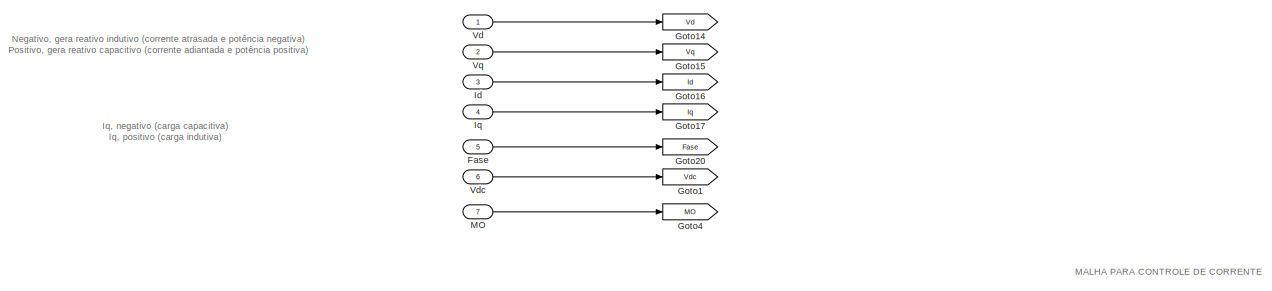
[diagram: Subsystem2/Controle do inversor - part 1/4, top center region]
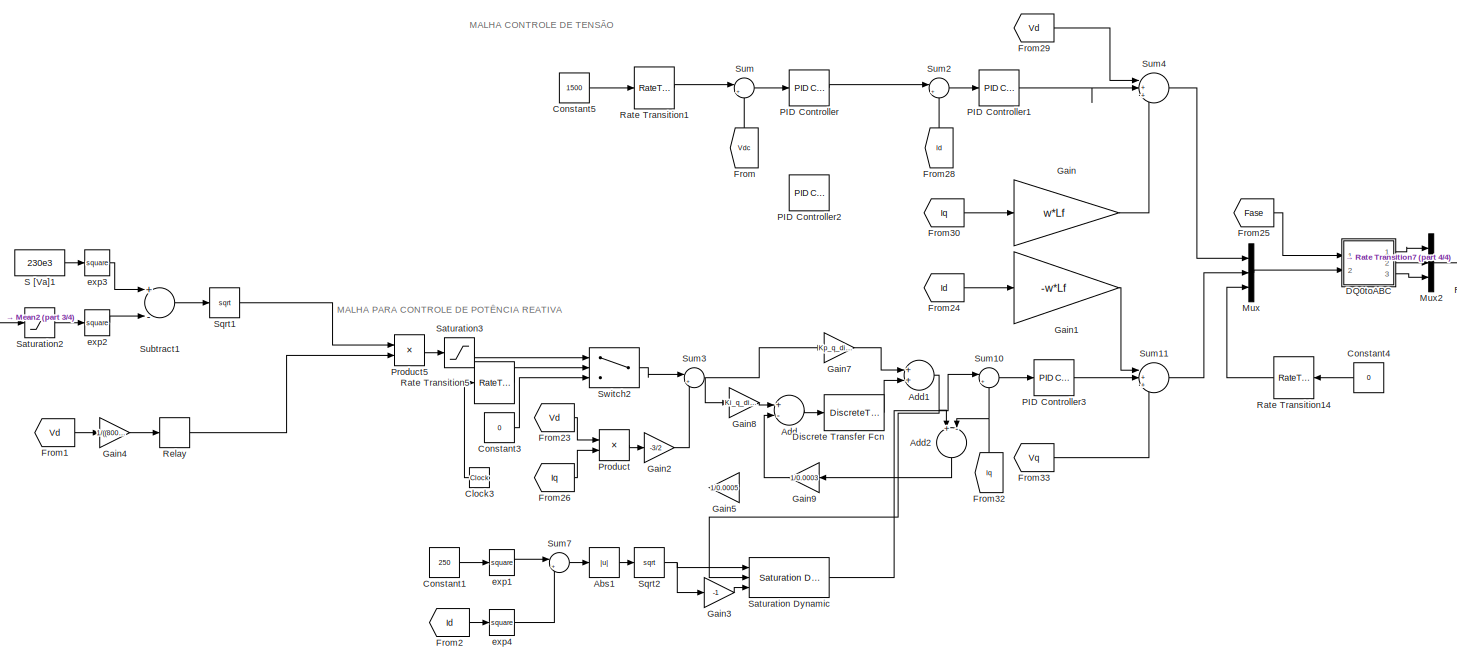
[diagram: Subsystem2/Controle do inversor - part 2/4, central region]
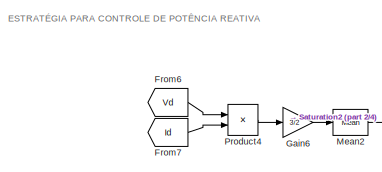
[diagram: Subsystem2/Controle do inversor - part 3/4, middle left region]
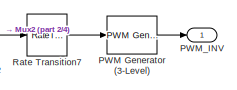
[diagram: Subsystem2/Controle do inversor - part 4/4, middle right region]
BLOCK [SubSystem] Subsystem2/Controle do inversor
  Ports = [7, 1]
  RequestExecContextInheritance = off
  Variant = off
BLOCK [Abs] Subsystem2/Controle do inversor/Abs1
  SaturateOnIntegerOverflow = off
BLOCK [Sum] Subsystem2/Controle do inversor/Add
  InputSameDT = off
  Inputs = +-
  OutDataTypeStr = Inherit: Inherit via internal rule
  Ports = [2, 1]
  SaturateOnIntegerOverflow = off
BLOCK [Sum] Subsystem2/Controle do inversor/Add1
  InputSameDT = off
  OutDataTypeStr = Inherit: Inherit via internal rule
  Ports = [2, 1]
  SaturateOnIntegerOverflow = off
BLOCK [Sum] Subsystem2/Controle do inversor/Add2
  InputSameDT = off
  Inputs = +-
  OutDataTypeStr = Inherit: Inherit via internal rule
  Ports = [2, 1]
  SaturateOnIntegerOverflow = off
BLOCK [Clock] Subsystem2/Controle do inversor/Clock3
BLOCK [Constant] Subsystem2/Controle do inversor/Constant1
  Value = 250
BLOCK [Constant] Subsystem2/Controle do inversor/Constant3
  Value = 0
BLOCK [Constant] Subsystem2/Controle do inversor/Constant4
  Value = 0
BLOCK [Constant] Subsystem2/Controle do inversor/Constant5
  Value = 1500
BLOCK [SubSystem] Subsystem2/Controle do inversor/DQ0toABC
  Ports = [2, 3]
  RequestExecContextInheritance = off
  Variant = off
BLOCK [Inport] Subsystem2/Controle do inversor/DQ0toABC/DQ0
  IconDisplay = Port number
  Port = 2
BLOCK [Demux] Subsystem2/Controle do inversor/DQ0toABC/Demux1
  DisplayOption = bar
  Outputs = 3
  Ports = [1, 3]
BLOCK [Inport] Subsystem2/Controle do inversor/DQ0toABC/Fase
  IconDisplay = Port number
BLOCK [Fcn] Subsystem2/Controle do inversor/DQ0toABC/Fcn1
  Commented = on
  Expr = cos(u[1]-(2*pi/3))*u(2)+sin(u[1]-(2*pi/3))*u(3)+1*u(4)
BLOCK [Fcn] Subsystem2/Controle do inversor/DQ0toABC/Fcn2
  Commented = on
  Expr = cos(u[1])*u(2)+sin(u[1])*u(3)+1*u(4)
BLOCK [Fcn] Subsystem2/Controle do inversor/DQ0toABC/Fcn3
  Commented = on
  Expr = cos(u[1]+(2*pi/3))*u(2)+sin(u[1]+(2*pi/3))*u(3)+1*u(4)
BLOCK [Gain] Subsystem2/Controle do inversor/DQ0toABC/Gain1
  Gain = 1/1500
  OutDataTypeStr = Inherit: Inherit via internal rule
  ParamDataTypeStr = Inherit: Inherit via internal rule
  SaturateOnIntegerOverflow = off
BLOCK [Gain] Subsystem2/Controle do inversor/DQ0toABC/Gain2
  Gain = 1/1500
  OutDataTypeStr = Inherit: Inherit via internal rule
  ParamDataTypeStr = Inherit: Inherit via internal rule
  SaturateOnIntegerOverflow = off
BLOCK [Gain] Subsystem2/Controle do inversor/DQ0toABC/Gain3
  Gain = 1/1500
  OutDataTypeStr = Inherit: Inherit via internal rule
  ParamDataTypeStr = Inherit: Inherit via internal rule
  SaturateOnIntegerOverflow = off
BLOCK [SubSystem] Subsystem2/Controle do inversor/DQ0toABC/Transformada de Clarke alfa_beta_zero para abc
  ErrorFcn = Stateflow.Translate.translate
  PermitHierarchicalResolution = ExplicitOnly
  Ports = [3, 3]
  RequestExecContextInheritance = off
  SFBlockType = MATLAB Function
  TreatAsAtomicUnit = on
  Variant = off
BLOCK [Demux] Subsystem2/Controle do inversor/DQ0toABC/Transformada de Clarke alfa_beta_zero para abc/ Demux 
  DisplayOption = bar
  Outputs = 1
  Ports = [1, 1]
BLOCK [S-Function] Subsystem2/Controle do inversor/DQ0toABC/Transformada de Clarke alfa_beta_zero para abc/ SFunction 
  EnableBusSupport = on
  FunctionName = sf_sfun
  PortCounts = [3 4]
  Ports = [3, 4]
  SFunctionDeploymentMode = off
  Tag = Stateflow S-Function REDE_IEEE_34_BARRAS 6
BLOCK [Terminator] Subsystem2/Controle do inversor/DQ0toABC/Transformada de Clarke alfa_beta_zero para abc/ Terminator 
BLOCK [Outport] Subsystem2/Controle do inversor/DQ0toABC/Transformada de Clarke alfa_beta_zero para abc/fa
  IconDisplay = Port number
BLOCK [Inport] Subsystem2/Controle do inversor/DQ0toABC/Transformada de Clarke alfa_beta_zero para abc/falfa
  IconDisplay = Port number
BLOCK [Outport] Subsystem2/Controle do inversor/DQ0toABC/Transformada de Clarke alfa_beta_zero para abc/fb
  IconDisplay = Port number
  Port = 2
BLOCK [Inport] Subsystem2/Controle do inversor/DQ0toABC/Transformada de Clarke alfa_beta_zero para abc/fbeta
  IconDisplay = Port number
  Port = 2
BLOCK [Outport] Subsystem2/Controle do inversor/DQ0toABC/Transformada de Clarke alfa_beta_zero para abc/fc
  IconDisplay = Port number
  Port = 3
BLOCK [Inport] Subsystem2/Controle do inversor/DQ0toABC/Transformada de Clarke alfa_beta_zero para abc/fzero
  IconDisplay = Port number
  Port = 3
BLOCK [SubSystem] Subsystem2/Controle do inversor/DQ0toABC/Transformada de Park dq0 para alfa_beta_zero
  ErrorFcn = Stateflow.Translate.translate
  PermitHierarchicalResolution = ExplicitOnly
  Ports = [4, 3]
  RequestExecContextInheritance = off
  SFBlockType = MATLAB Function
  TreatAsAtomicUnit = on
  Variant = off
BLOCK [Demux] Subsystem2/Controle do inversor/DQ0toABC/Transformada de Park dq0 para alfa_beta_zero/ Demux 
  DisplayOption = bar
  Outputs = 1
  Ports = [1, 1]
BLOCK [S-Function] Subsystem2/Controle do inversor/DQ0toABC/Transformada de Park dq0 para alfa_beta_zero/ SFunction 
  EnableBusSupport = on
  FunctionName = sf_sfun
  PortCounts = [4 4]
  Ports = [4, 4]
  SFunctionDeploymentMode = off
  Tag = Stateflow S-Function REDE_IEEE_34_BARRAS 7
BLOCK [Terminator] Subsystem2/Controle do inversor/DQ0toABC/Transformada de Park dq0 para alfa_beta_zero/ Terminator 
BLOCK [Inport] Subsystem2/Controle do inversor/DQ0toABC/Transformada de Park dq0 para alfa_beta_zero/f0
  IconDisplay = Port number
  Port = 3
BLOCK [Outport] Subsystem2/Controle do inversor/DQ0toABC/Transformada de Park dq0 para alfa_beta_zero/falfa
  IconDisplay = Port number
BLOCK [Outport] Subsystem2/Controle do inversor/DQ0toABC/Transformada de Park dq0 para alfa_beta_zero/fbeta
  IconDisplay = Port number
  Port = 2
BLOCK [Inport] Subsystem2/Controle do inversor/DQ0toABC/Transformada de Park dq0 para alfa_beta_zero/fd
  IconDisplay = Port number
BLOCK [Inport] Subsystem2/Controle do inversor/DQ0toABC/Transformada de Park dq0 para alfa_beta_zero/fq
  IconDisplay = Port number
  Port = 2
BLOCK [Outport] Subsystem2/Controle do inversor/DQ0toABC/Transformada de Park dq0 para alfa_beta_zero/fzero
  IconDisplay = Port number
  Port = 3
BLOCK [Inport] Subsystem2/Controle do inversor/DQ0toABC/Transformada de Park dq0 para alfa_beta_zero/theta
  IconDisplay = Port number
  Port = 4
BLOCK [Outport] Subsystem2/Controle do inversor/DQ0toABC/Va
  IconDisplay = Port number
BLOCK [Outport] Subsystem2/Controle do inversor/DQ0toABC/Vb
  IconDisplay = Port number
  Port = 2
BLOCK [Outport] Subsystem2/Controle do inversor/DQ0toABC/Vc
  IconDisplay = Port number
  Port = 3
BLOCK [DiscreteTransferFcn] Subsystem2/Controle do inversor/Discrete Transfer Fcn
  Denominator = [2 -2]
  InputPortMap = u0
  Numerator = [Tsw Tsw]
  Ports = [1, 1]
BLOCK [Inport] Subsystem2/Controle do inversor/Fase
  IconDisplay = Port number
  Port = 5
BLOCK [From] Subsystem2/Controle do inversor/From
  GotoTag = Vdc
BLOCK [From] Subsystem2/Controle do inversor/From1
  GotoTag = Vd
BLOCK [From] Subsystem2/Controle do inversor/From2
  GotoTag = Id
BLOCK [From] Subsystem2/Controle do inversor/From23
  GotoTag = Vd
BLOCK [From] Subsystem2/Controle do inversor/From24
  GotoTag = Id
BLOCK [From] Subsystem2/Controle do inversor/From25
  GotoTag = Fase
BLOCK [From] Subsystem2/Controle do inversor/From26
  GotoTag = Iq
BLOCK [From] Subsystem2/Controle do inversor/From28
  GotoTag = Id
BLOCK [From] Subsystem2/Controle do inversor/From29
  GotoTag = Vd
BLOCK [From] Subsystem2/Controle do inversor/From30
  GotoTag = Iq
BLOCK [From] Subsystem2/Controle do inversor/From32
  GotoTag = Iq
BLOCK [From] Subsystem2/Controle do inversor/From33
  GotoTag = Vq
BLOCK [From] Subsystem2/Controle do inversor/From6
  GotoTag = Vd
BLOCK [From] Subsystem2/Controle do inversor/From7
  GotoTag = Id
BLOCK [Gain] Subsystem2/Controle do inversor/Gain
  Gain = w*Lf
  OutDataTypeStr = Inherit: Inherit via internal rule
  ParamDataTypeStr = Inherit: Inherit via internal rule
  SaturateOnIntegerOverflow = off
BLOCK [Gain] Subsystem2/Controle do inversor/Gain1
  Gain = -w*Lf
  OutDataTypeStr = Inherit: Inherit via internal rule
  ParamDataTypeStr = Inherit: Inherit via internal rule
  SaturateOnIntegerOverflow = off
BLOCK [Gain] Subsystem2/Controle do inversor/Gain2
  Gain = -3/2
  OutDataTypeStr = Inherit: Inherit via internal rule
  ParamDataTypeStr = Inherit: Inherit via internal rule
  SaturateOnIntegerOverflow = off
BLOCK [Gain] Subsystem2/Controle do inversor/Gain3
  Gain = -1
  OutDataTypeStr = Inherit: Inherit via internal rule
  ParamDataTypeStr = Inherit: Inherit via internal rule
  SaturateOnIntegerOverflow = off
BLOCK [Gain] Subsystem2/Controle do inversor/Gain4
  Gain = 1/((800/sqrt(3))*sqrt(2))
  OutDataTypeStr = Inherit: Inherit via internal rule
  ParamDataTypeStr = Inherit: Inherit via internal rule
  SaturateOnIntegerOverflow = off
BLOCK [Gain] Subsystem2/Controle do inversor/Gain5
  Commented = on
  Gain = 1/0.0005
  OutDataTypeStr = Inherit: Inherit via internal rule
  ParamDataTypeStr = Inherit: Inherit via internal rule
  SaturateOnIntegerOverflow = off
BLOCK [Gain] Subsystem2/Controle do inversor/Gain6
  Gain = 3/2
  OutDataTypeStr = Inherit: Inherit via internal rule
  ParamDataTypeStr = Inherit: Inherit via internal rule
  SaturateOnIntegerOverflow = off
BLOCK [Gain] Subsystem2/Controle do inversor/Gain7
  Gain = Kp_q_disc
  OutDataTypeStr = Inherit: Inherit via internal rule
  ParamDataTypeStr = Inherit: Inherit via internal rule
  SaturateOnIntegerOverflow = off
BLOCK [Gain] Subsystem2/Controle do inversor/Gain8
  Gain = Ki_q_disc
  OutDataTypeStr = Inherit: Inherit via internal rule
  ParamDataTypeStr = Inherit: Inherit via internal rule
  SaturateOnIntegerOverflow = off
BLOCK [Gain] Subsystem2/Controle do inversor/Gain9
  Gain = 1/0.0003
  OutDataTypeStr = Inherit: Inherit via internal rule
  ParamDataTypeStr = Inherit: Inherit via internal rule
  SaturateOnIntegerOverflow = off
BLOCK [Goto] Subsystem2/Controle do inversor/Goto1
  GotoTag = Vdc
BLOCK [Goto] Subsystem2/Controle do inversor/Goto14
  GotoTag = Vd
BLOCK [Goto] Subsystem2/Controle do inversor/Goto15
  GotoTag = Vq
BLOCK [Goto] Subsystem2/Controle do inversor/Goto16
  GotoTag = Id
BLOCK [Goto] Subsystem2/Controle do inversor/Goto17
  GotoTag = Iq
BLOCK [Goto] Subsystem2/Controle do inversor/Goto20
  GotoTag = Fase
BLOCK [Goto] Subsystem2/Controle do inversor/Goto4
  GotoTag = MO
BLOCK [Inport] Subsystem2/Controle do inversor/Id
  IconDisplay = Port number
  Port = 3
BLOCK [Inport] Subsystem2/Controle do inversor/Iq
  IconDisplay = Port number
  Port = 4
BLOCK [Inport] Subsystem2/Controle do inversor/MO
  IconDisplay = Port number
  Port = 7
BLOCK [Reference] Subsystem2/Controle do inversor/Mean2  REF=powerlib_meascontrol/Measurements/Mean
  Ports = [1, 1]
  SourceBlock = powerlib_meascontrol/Measurements/Mean
  SourceType = Mean
BLOCK [Mux] Subsystem2/Controle do inversor/Mux
  DisplayOption = bar
  Inputs = 3
  Ports = [3, 1]
BLOCK [Mux] Subsystem2/Controle do inversor/Mux2
  DisplayOption = bar
  Inputs = 3
  Ports = [3, 1]
BLOCK [Reference] Subsystem2/Controle do inversor/PID Controller  REF=simulink/Continuous/PID Controller
  Ports = [1, 1]
  SourceBlock = simulink/Continuous/PID Controller
  SourceType = PID 1dof
BLOCK [Reference] Subsystem2/Controle do inversor/PID Controller1  REF=simulink/Continuous/PID Controller
  Ports = [1, 1]
  SourceBlock = simulink/Continuous/PID Controller
  SourceType = PID 1dof
BLOCK [Reference] Subsystem2/Controle do inversor/PID Controller2  REF=simulink/Continuous/PID Controller
  Commented = on
  Ports = [1, 1]
  SourceBlock = simulink/Continuous/PID Controller
  SourceType = PID 1dof
BLOCK [Reference] Subsystem2/Controle do inversor/PID Controller3  REF=simulink/Continuous/PID Controller
  Ports = [1, 1]
  SourceBlock = simulink/Continuous/PID Controller
  SourceType = PID 1dof
BLOCK [Reference] Subsystem2/Controle do inversor/PWM Generator (3-Level)  REF=powerlib_meascontrol/Pulse & Signal
Generators/PWM Generator
(3-Level)
  Ports = [1, 1]
  SourceBlock = powerlib_meascontrol/Pulse & Signal\nGenerators/PWM Generator\n(3-Level)
  SourceType = PWM Generator (3-Level)
BLOCK [Outport] Subsystem2/Controle do inversor/PWM_INV
  IconDisplay = Port number
BLOCK [Product] Subsystem2/Controle do inversor/Product
  InputSameDT = off
  OutDataTypeStr = Inherit: Inherit via internal rule
  Ports = [2, 1]
  RndMeth = Floor
  SaturateOnIntegerOverflow = off
BLOCK [Product] Subsystem2/Controle do inversor/Product4
  InputSameDT = off
  OutDataTypeStr = Inherit: Inherit via internal rule
  Ports = [2, 1]
  RndMeth = Floor
  SaturateOnIntegerOverflow = off
BLOCK [Product] Subsystem2/Controle do inversor/Product5
  InputSameDT = off
  OutDataTypeStr = Inherit: Inherit via internal rule
  Ports = [2, 1]
  RndMeth = Floor
  SaturateOnIntegerOverflow = off
BLOCK [RateTransition] Subsystem2/Controle do inversor/Rate Transition1
  OutPortSampleTime = Tsw
BLOCK [RateTransition] Subsystem2/Controle do inversor/Rate Transition14
  OutPortSampleTime = Tsw
BLOCK [RateTransition] Subsystem2/Controle do inversor/Rate Transition5
  OutPortSampleTime = Tsw
BLOCK [RateTransition] Subsystem2/Controle do inversor/Rate Transition7
  OutPortSampleTime = 2e-6
BLOCK [Relay] Subsystem2/Controle do inversor/Relay
  InputProcessing = Elements as channels (sample based)
  OffOutputValue = 1
  OffSwitchValue = 0.1
  OnOutputValue = -1
  OnSwitchValue = 1.1
BLOCK [Constant] Subsystem2/Controle do inversor/S [Va]1
  Value = 230e3
BLOCK [Reference] Subsystem2/Controle do inversor/Saturation Dynamic  REF=simulink/Discontinuities/Saturation
Dynamic
  Ports = [3, 1]
  SourceBlock = simulink/Discontinuities/Saturation\nDynamic
  SourceType = Saturation Dynamic
BLOCK [Saturate] Subsystem2/Controle do inversor/Saturation2
  InputPortMap = u0
  LowerLimit = 0
  Ports = [1, 1]
  UpperLimit = 230e3
BLOCK [Saturate] Subsystem2/Controle do inversor/Saturation3
  InputPortMap = u0
  LowerLimit = -230e3
  Ports = [1, 1]
  UpperLimit = 230e3
BLOCK [Sqrt] Subsystem2/Controle do inversor/Sqrt1
BLOCK [Sqrt] Subsystem2/Controle do inversor/Sqrt2
BLOCK [Sum] Subsystem2/Controle do inversor/Subtract1
  InputSameDT = off
  Inputs = +-
  OutDataTypeStr = Inherit: Inherit via internal rule
  Ports = [2, 1]
  SaturateOnIntegerOverflow = off
BLOCK [Sum] Subsystem2/Controle do inversor/Sum
  IconShape = round
  InputSameDT = off
  Inputs = |+-
  OutDataTypeStr = Inherit: Inherit via internal rule
  Ports = [2, 1]
  SaturateOnIntegerOverflow = off
BLOCK [Sum] Subsystem2/Controle do inversor/Sum10
  IconShape = round
  InputSameDT = off
  Inputs = |+-
  OutDataTypeStr = Inherit: Inherit via internal rule
  Ports = [2, 1]
  SaturateOnIntegerOverflow = off
BLOCK [Sum] Subsystem2/Controle do inversor/Sum11
  IconShape = round
  InputSameDT = off
  Inputs = |+++
  OutDataTypeStr = Inherit: Inherit via internal rule
  Ports = [3, 1]
  SaturateOnIntegerOverflow = off
BLOCK [Sum] Subsystem2/Controle do inversor/Sum2
  IconShape = round
  InputSameDT = off
  Inputs = |+-
  OutDataTypeStr = Inherit: Inherit via internal rule
  Ports = [2, 1]
  SaturateOnIntegerOverflow = off
BLOCK [Sum] Subsystem2/Controle do inversor/Sum3
  IconShape = round
  InputSameDT = off
  Inputs = |+-
  OutDataTypeStr = Inherit: Inherit via internal rule
  Ports = [2, 1]
  SaturateOnIntegerOverflow = off
BLOCK [Sum] Subsystem2/Controle do inversor/Sum4
  IconShape = round
  InputSameDT = off
  Inputs = |+++
  OutDataTypeStr = Inherit: Inherit via internal rule
  Ports = [3, 1]
  SaturateOnIntegerOverflow = off
BLOCK [Sum] Subsystem2/Controle do inversor/Sum7
  IconShape = round
  InputSameDT = off
  Inputs = |+-
  OutDataTypeStr = Inherit: Inherit via internal rule
  Ports = [2, 1]
  SaturateOnIntegerOverflow = off
BLOCK [Switch] Subsystem2/Controle do inversor/Switch2
  InputSameDT = off
  SaturateOnIntegerOverflow = off
  Threshold = 0.01
BLOCK [Inport] Subsystem2/Controle do inversor/Vd
  IconDisplay = Port number
BLOCK [Inport] Subsystem2/Controle do inversor/Vdc
  IconDisplay = Port number
  Port = 6
BLOCK [Inport] Subsystem2/Controle do inversor/Vq
  IconDisplay = Port number
  Port = 2
BLOCK [Math] Subsystem2/Controle do inversor/exp1
  Operator = square
  Ports = [1, 1]
BLOCK [Math] Subsystem2/Controle do inversor/exp2
  Operator = square
  Ports = [1, 1]
BLOCK [Math] Subsystem2/Controle do inversor/exp3
  Operator = square
  Ports = [1, 1]
BLOCK [Math] Subsystem2/Controle do inversor/exp4
  Operator = square
  Ports = [1, 1]
BLOCK [SubSystem] Subsystem2/Conversor Boost Fotovoltaico
  Ports = [1, 2, 0, 0, 0, 0, 2]
  RequestExecContextInheritance = off
  Variant = off
BLOCK [SubSystem] Subsystem2/Conversor Boost Fotovoltaico/Arranjo 8 strings em paralelo com 43 módulos em série Vmp = 43 x 30,6 = 1315,8 V Imp = 8,32 x 7 = 58,24 A 76.632,192 W
  AncestorBlock = re_lib/Solar/PV Array
  CloseFcn = sps_rtmsupport('CloseFcn',gcbh);
  CopyFcn = sps_rtmsupport('CopyFcn',gcbh);
  DeleteFcn = sps_rtmsupport('DeleteFcn',gcbh);
  DialogController = POWERSYS.PowerSysDialog
  LoadFcn = sps_rtmsupport('LoadFcn',gcbh);
  ModelCloseFcn = sps_rtmsupport('ModelCloseFcn',gcbh);
  NameChangeFcn = sps_rtmsupport('NameChangeFcn',gcbh);
  OpenFcn = %assignin('base','PVMaskOpening',1);\n%open_system(gcb,'mask')\n%assignin('base','PVMaskOpening',0);\nsps_rtmsupport('OpenFcn',gcbh, [3 6 7 23]);
  Ports = [2, 0, 0, 0, 0, 0, 2]
  PostSaveFcn = sps_rtmsupport('PostSaveFcn',gcbh);
  PreCopyFcn = sps_rtmsupport('PreCopyFcn',gcbh);
  PreDeleteFcn = sps_rtmsupport('PreDeleteFcn',gcbh);
  PreSaveFcn = sps_rtmsupport('PreSaveFcn',gcbh);
  RequestExecContextInheritance = off
  StartFcn = sps_rtmsupport('StartFcn',gcbh);
  StopFcn = sps_rtmsupport('StopFcn',gcbh);
  UndoDeleteFcn = sps_rtmsupport('UndoDeleteFcn',gcbh);
  Variant = off
BLOCK [PMIOPort] Subsystem2/Conversor Boost Fotovoltaico/Arranjo 8 strings em paralelo com 43 módulos em série Vmp = 43 x 30,6 = 1315,8 V Imp = 8,32 x 7 = 58,24 A 76.632,192 W/+
  Port = 1
  Side = Right
BLOCK [PMIOPort] Subsystem2/Conversor Boost Fotovoltaico/Arranjo 8 strings em paralelo com 43 módulos em série Vmp = 43 x 30,6 = 1315,8 V Imp = 8,32 x 7 = 58,24 A 76.632,192 W/-
  Port = 2
  Side = Right
BLOCK [Sum] Subsystem2/Conversor Boost Fotovoltaico/Arranjo 8 strings em paralelo com 43 módulos em série Vmp = 43 x 30,6 = 1315,8 V Imp = 8,32 x 7 = 58,24 A 76.632,192 W/Add1
  InputSameDT = off
  OutDataTypeStr = Inherit: Inherit via internal rule
  Ports = [2, 1]
  SaturateOnIntegerOverflow = off
BLOCK [SubSystem] Subsystem2/Conversor Boost Fotovoltaico/Arranjo 8 strings em paralelo com 43 módulos em série Vmp = 43 x 30,6 = 1315,8 V Imp = 8,32 x 7 = 58,24 A 76.632,192 W/Diode Rsh
  Ports = [0, 1, 0, 0, 0, 1, 1]
  RequestExecContextInheritance = off
  Variant = off
BLOCK [PMIOPort] Subsystem2/Conversor Boost Fotovoltaico/Arranjo 8 strings em paralelo com 43 módulos em série Vmp = 43 x 30,6 = 1315,8 V Imp = 8,32 x 7 = 58,24 A 76.632,192 W/Diode Rsh/A
  Port = 1
  Side = Left
BLOCK [Sum] Subsystem2/Conversor Boost Fotovoltaico/Arranjo 8 strings em paralelo com 43 módulos em série Vmp = 43 x 30,6 = 1315,8 V Imp = 8,32 x 7 = 58,24 A 76.632,192 W/Diode Rsh/Add
  InputSameDT = off
  Inputs = +-
  OutDataTypeStr = Inherit: Inherit via internal rule
  Ports = [2, 1]
  SaturateOnIntegerOverflow = off
BLOCK [Sum] Subsystem2/Conversor Boost Fotovoltaico/Arranjo 8 strings em paralelo com 43 módulos em série Vmp = 43 x 30,6 = 1315,8 V Imp = 8,32 x 7 = 58,24 A 76.632,192 W/Diode Rsh/Add1
  InputSameDT = off
  Inputs = ++-
  OutDataTypeStr = Inherit: Inherit via internal rule
  Ports = [3, 1]
  SaturateOnIntegerOverflow = off
BLOCK [Sum] Subsystem2/Conversor Boost Fotovoltaico/Arranjo 8 strings em paralelo com 43 módulos em série Vmp = 43 x 30,6 = 1315,8 V Imp = 8,32 x 7 = 58,24 A 76.632,192 W/Diode Rsh/Add3
  InputSameDT = off
  OutDataTypeStr = Inherit: Inherit via internal rule
  Ports = [2, 1]
  SaturateOnIntegerOverflow = off
BLOCK [Sum] Subsystem2/Conversor Boost Fotovoltaico/Arranjo 8 strings em paralelo com 43 módulos em série Vmp = 43 x 30,6 = 1315,8 V Imp = 8,32 x 7 = 58,24 A 76.632,192 W/Diode Rsh/Add4
  InputSameDT = off
  Inputs = +-
  OutDataTypeStr = Inherit: Inherit via internal rule
  Ports = [2, 1]
  SaturateOnIntegerOverflow = off
BLOCK [Reference] Subsystem2/Conversor Boost Fotovoltaico/Arranjo 8 strings em paralelo com 43 módulos em série Vmp = 43 x 30,6 = 1315,8 V Imp = 8,32 x 7 = 58,24 A 76.632,192 W/Diode Rsh/BAL  REF=spsPVarrayModel/BAL_Discrete
  Ports = [1, 1]
  SourceBlock = spsPVarrayModel/BAL_Discrete
  SourceType = SubSystem
BLOCK [Goto] Subsystem2/Conversor Boost Fotovoltaico/Arranjo 8 strings em paralelo com 43 módulos em série Vmp = 43 x 30,6 = 1315,8 V Imp = 8,32 x 7 = 58,24 A 76.632,192 W/Diode Rsh/E_g
  GotoTag = E_g
BLOCK [From] Subsystem2/Conversor Boost Fotovoltaico/Arranjo 8 strings em paralelo com 43 módulos em série Vmp = 43 x 30,6 = 1315,8 V Imp = 8,32 x 7 = 58,24 A 76.632,192 W/Diode Rsh/E_g_
  GotoTag = E_g
BLOCK [Gain] Subsystem2/Conversor Boost Fotovoltaico/Arranjo 8 strings em paralelo com 43 módulos em série Vmp = 43 x 30,6 = 1315,8 V Imp = 8,32 x 7 = 58,24 A 76.632,192 W/Diode Rsh/EgRef
  Gain = EgRef
  OutDataTypeStr = Inherit: Inherit via internal rule
  ParamDataTypeStr = Inherit: Inherit via internal rule
  SaturateOnIntegerOverflow = off
BLOCK [Fcn] Subsystem2/Conversor Boost Fotovoltaico/Arranjo 8 strings em paralelo com 43 módulos em série Vmp = 43 x 30,6 = 1315,8 V Imp = 8,32 x 7 = 58,24 A 76.632,192 W/Diode Rsh/Fcn
  Expr = u(1)^3
BLOCK [From] Subsystem2/Conversor Boost Fotovoltaico/Arranjo 8 strings em paralelo com 43 módulos em série Vmp = 43 x 30,6 = 1315,8 V Imp = 8,32 x 7 = 58,24 A 76.632,192 W/Diode Rsh/From1
  GotoTag = Tcell_K
  TagVisibility = scoped
BLOCK [From] Subsystem2/Conversor Boost Fotovoltaico/Arranjo 8 strings em paralelo com 43 módulos em série Vmp = 43 x 30,6 = 1315,8 V Imp = 8,32 x 7 = 58,24 A 76.632,192 W/Diode Rsh/From2
  GotoTag = Tcell_K
  TagVisibility = scoped
BLOCK [From] Subsystem2/Conversor Boost Fotovoltaico/Arranjo 8 strings em paralelo com 43 módulos em série Vmp = 43 x 30,6 = 1315,8 V Imp = 8,32 x 7 = 58,24 A 76.632,192 W/Diode Rsh/From3
  GotoTag = I0_array_T
BLOCK [Gain] Subsystem2/Conversor Boost Fotovoltaico/Arranjo 8 strings em paralelo com 43 módulos em série Vmp = 43 x 30,6 = 1315,8 V Imp = 8,32 x 7 = 58,24 A 76.632,192 W/Diode Rsh/I0_array
  Gain = I0*Npar
  OutDataTypeStr = Inherit: Inherit via internal rule
  ParamDataTypeStr = Inherit: Inherit via internal rule
  SaturateOnIntegerOverflow = off
BLOCK [Goto] Subsystem2/Conversor Boost Fotovoltaico/Arranjo 8 strings em paralelo com 43 módulos em série Vmp = 43 x 30,6 = 1315,8 V Imp = 8,32 x 7 = 58,24 A 76.632,192 W/Diode Rsh/I0_array_T
  GotoTag = I0_array_T
BLOCK [Reference] Subsystem2/Conversor Boost Fotovoltaico/Arranjo 8 strings em paralelo com 43 módulos em série Vmp = 43 x 30,6 = 1315,8 V Imp = 8,32 x 7 = 58,24 A 76.632,192 W/Diode Rsh/Id+IRsh  REF=powerlib/Electrical
Sources/Controlled Current Source
  Ports = [1, 0, 0, 0, 0, 1, 1]
  SourceBlock = powerlib/Electrical\nSources/Controlled Current Source
  SourceType = Controlled Current Source
BLOCK [Outport] Subsystem2/Conversor Boost Fotovoltaico/Arranjo 8 strings em paralelo com 43 módulos em série Vmp = 43 x 30,6 = 1315,8 V Imp = 8,32 x 7 = 58,24 A 76.632,192 W/Diode Rsh/Idiode
  IconDisplay = Port number
BLOCK [PMIOPort] Subsystem2/Conversor Boost Fotovoltaico/Arranjo 8 strings em paralelo com 43 módulos em série Vmp = 43 x 30,6 = 1315,8 V Imp = 8,32 x 7 = 58,24 A 76.632,192 W/Diode Rsh/K
  Port = 2
  Side = Right
BLOCK [Math] Subsystem2/Conversor Boost Fotovoltaico/Arranjo 8 strings em paralelo com 43 módulos em série Vmp = 43 x 30,6 = 1315,8 V Imp = 8,32 x 7 = 58,24 A 76.632,192 W/Diode Rsh/Math Function
  Ports = [1, 1]
BLOCK [Product] Subsystem2/Conversor Boost Fotovoltaico/Arranjo 8 strings em paralelo com 43 módulos em série Vmp = 43 x 30,6 = 1315,8 V Imp = 8,32 x 7 = 58,24 A 76.632,192 W/Diode Rsh/Product
  InputSameDT = off
  OutDataTypeStr = Inherit: Inherit via internal rule
  Ports = [2, 1]
  SaturateOnIntegerOverflow = off
BLOCK [Product] Subsystem2/Conversor Boost Fotovoltaico/Arranjo 8 strings em paralelo com 43 módulos em série Vmp = 43 x 30,6 = 1315,8 V Imp = 8,32 x 7 = 58,24 A 76.632,192 W/Diode Rsh/Product1
  InputSameDT = off
  Inputs = /*
  OutDataTypeStr = Inherit: Inherit via internal rule
  Ports = [2, 1]
  SaturateOnIntegerOverflow = off
BLOCK [Product] Subsystem2/Conversor Boost Fotovoltaico/Arranjo 8 strings em paralelo com 43 módulos em série Vmp = 43 x 30,6 = 1315,8 V Imp = 8,32 x 7 = 58,24 A 76.632,192 W/Diode Rsh/Product2
  InputSameDT = off
  Inputs = */*
  OutDataTypeStr = Inherit: Inherit via internal rule
  Ports = [3, 1]
  SaturateOnIntegerOverflow = off
BLOCK [Product] Subsystem2/Conversor Boost Fotovoltaico/Arranjo 8 strings em paralelo com 43 módulos em série Vmp = 43 x 30,6 = 1315,8 V Imp = 8,32 x 7 = 58,24 A 76.632,192 W/Diode Rsh/Product3
  InputSameDT = off
  Inputs = */
  OutDataTypeStr = Inherit: Inherit via internal rule
  Ports = [2, 1]
  SaturateOnIntegerOverflow = off
BLOCK [Product] Subsystem2/Conversor Boost Fotovoltaico/Arranjo 8 strings em paralelo com 43 módulos em série Vmp = 43 x 30,6 = 1315,8 V Imp = 8,32 x 7 = 58,24 A 76.632,192 W/Diode Rsh/Product4
  InputSameDT = off
  Inputs = **
  OutDataTypeStr = Inherit: Inherit via internal rule
  Ports = [2, 1]
  SaturateOnIntegerOverflow = off
BLOCK [Product] Subsystem2/Conversor Boost Fotovoltaico/Arranjo 8 strings em paralelo com 43 módulos em série Vmp = 43 x 30,6 = 1315,8 V Imp = 8,32 x 7 = 58,24 A 76.632,192 W/Diode Rsh/Product5
  InputSameDT = off
  Inputs = */
  OutDataTypeStr = Inherit: Inherit via internal rule
  Ports = [2, 1]
  SaturateOnIntegerOverflow = off
BLOCK [Constant] Subsystem2/Conversor Boost Fotovoltaico/Arranjo 8 strings em paralelo com 43 módulos em série Vmp = 43 x 30,6 = 1315,8 V Imp = 8,32 x 7 = 58,24 A 76.632,192 W/Diode Rsh/Rsh_array
  Value = Rsh*Nser/Npar
BLOCK [Constant] Subsystem2/Conversor Boost Fotovoltaico/Arranjo 8 strings em paralelo com 43 módulos em série Vmp = 43 x 30,6 = 1315,8 V Imp = 8,32 x 7 = 58,24 A 76.632,192 W/Diode Rsh/Rsh_array_5%Sref
  Value = Rsh_array5pc
BLOCK [From] Subsystem2/Conversor Boost Fotovoltaico/Arranjo 8 strings em paralelo com 43 módulos em série Vmp = 43 x 30,6 = 1315,8 V Imp = 8,32 x 7 = 58,24 A 76.632,192 W/Diode Rsh/S//Sref
  GotoTag = S_Sref
  TagVisibility = scoped
BLOCK [SubSystem] Subsystem2/Conversor Boost Fotovoltaico/Arranjo 8 strings em paralelo com 43 módulos em série Vmp = 43 x 30,6 = 1315,8 V Imp = 8,32 x 7 = 58,24 A 76.632,192 W/Diode Rsh/Subsystem
  Ports = [2, 1]
  RequestExecContextInheritance = off
  Variant = off
BLOCK [Sum] Subsystem2/Conversor Boost Fotovoltaico/Arranjo 8 strings em paralelo com 43 módulos em série Vmp = 43 x 30,6 = 1315,8 V Imp = 8,32 x 7 = 58,24 A 76.632,192 W/Diode Rsh/Subsystem/Add
  InputSameDT = off
  Inputs = +-
  OutDataTypeStr = Inherit: Inherit via internal rule
  Ports = [2, 1]
  SaturateOnIntegerOverflow = off
BLOCK [Inport] Subsystem2/Conversor Boost Fotovoltaico/Arranjo 8 strings em paralelo com 43 módulos em série Vmp = 43 x 30,6 = 1315,8 V Imp = 8,32 x 7 = 58,24 A 76.632,192 W/Diode Rsh/Subsystem/E_g
  IconDisplay = Port number
  Port = 2
BLOCK [Constant] Subsystem2/Conversor Boost Fotovoltaico/Arranjo 8 strings em paralelo com 43 módulos em série Vmp = 43 x 30,6 = 1315,8 V Imp = 8,32 x 7 = 58,24 A 76.632,192 W/Diode Rsh/Subsystem/EgRef
  Value = EgRef/(k1*Tref_K)
BLOCK [Math] Subsystem2/Conversor Boost Fotovoltaico/Arranjo 8 strings em paralelo com 43 módulos em série Vmp = 43 x 30,6 = 1315,8 V Imp = 8,32 x 7 = 58,24 A 76.632,192 W/Diode Rsh/Subsystem/Math Function
  Ports = [1, 1]
BLOCK [Product] Subsystem2/Conversor Boost Fotovoltaico/Arranjo 8 strings em paralelo com 43 módulos em série Vmp = 43 x 30,6 = 1315,8 V Imp = 8,32 x 7 = 58,24 A 76.632,192 W/Diode Rsh/Subsystem/Product
  InputSameDT = off
  Inputs = */
  OutDataTypeStr = Inherit: Inherit via internal rule
  Ports = [2, 1]
  RndMeth = Floor
  SaturateOnIntegerOverflow = off
BLOCK [Inport] Subsystem2/Conversor Boost Fotovoltaico/Arranjo 8 strings em paralelo com 43 módulos em série Vmp = 43 x 30,6 = 1315,8 V Imp = 8,32 x 7 = 58,24 A 76.632,192 W/Diode Rsh/Subsystem/Tcell_K
  IconDisplay = Port number
BLOCK [Outport] Subsystem2/Conversor Boost Fotovoltaico/Arranjo 8 strings em paralelo com 43 módulos em série Vmp = 43 x 30,6 = 1315,8 V Imp = 8,32 x 7 = 58,24 A 76.632,192 W/Diode Rsh/Subsystem/exp
  IconDisplay = Port number
BLOCK [Gain] Subsystem2/Conversor Boost Fotovoltaico/Arranjo 8 strings em paralelo com 43 módulos em série Vmp = 43 x 30,6 = 1315,8 V Imp = 8,32 x 7 = 58,24 A 76.632,192 W/Diode Rsh/Subsystem/k1
  Gain = k1
  OutDataTypeStr = Inherit: Inherit via internal rule
  ParamDataTypeStr = Inherit: Inherit via internal rule
  SaturateOnIntegerOverflow = off
BLOCK [From] Subsystem2/Conversor Boost Fotovoltaico/Arranjo 8 strings em paralelo com 43 módulos em série Vmp = 43 x 30,6 = 1315,8 V Imp = 8,32 x 7 = 58,24 A 76.632,192 W/Diode Rsh/Tcell_K
  GotoTag = Tcell_K
  TagVisibility = scoped
BLOCK [Constant] Subsystem2/Conversor Boost Fotovoltaico/Arranjo 8 strings em paralelo com 43 módulos em série Vmp = 43 x 30,6 = 1315,8 V Imp = 8,32 x 7 = 58,24 A 76.632,192 W/Diode Rsh/Tref_K1
  Value = Tref_K
BLOCK [Constant] Subsystem2/Conversor Boost Fotovoltaico/Arranjo 8 strings em paralelo com 43 módulos em série Vmp = 43 x 30,6 = 1315,8 V Imp = 8,32 x 7 = 58,24 A 76.632,192 W/Diode Rsh/Tref_K2
  Value = Tref_K
BLOCK [Gain] Subsystem2/Conversor Boost Fotovoltaico/Arranjo 8 strings em paralelo com 43 módulos em série Vmp = 43 x 30,6 = 1315,8 V Imp = 8,32 x 7 = 58,24 A 76.632,192 W/Diode Rsh/VT_ref_array
  Gain = VT_ref*Nser
  OutDataTypeStr = Inherit: Inherit via internal rule
  ParamDataTypeStr = Inherit: Inherit via internal rule
  SaturateOnIntegerOverflow = off
BLOCK [From] Subsystem2/Conversor Boost Fotovoltaico/Arranjo 8 strings em paralelo com 43 módulos em série Vmp = 43 x 30,6 = 1315,8 V Imp = 8,32 x 7 = 58,24 A 76.632,192 W/Diode Rsh/Vd
  GotoTag = Vd
  TagVisibility = scoped
BLOCK [Gain] Subsystem2/Conversor Boost Fotovoltaico/Arranjo 8 strings em paralelo com 43 módulos em série Vmp = 43 x 30,6 = 1315,8 V Imp = 8,32 x 7 = 58,24 A 76.632,192 W/Diode Rsh/dEgdT
  Gain = dEgdT
  OutDataTypeStr = Inherit: Inherit via internal rule
  ParamDataTypeStr = Inherit: Inherit via internal rule
  SaturateOnIntegerOverflow = off
BLOCK [Constant] Subsystem2/Conversor Boost Fotovoltaico/Arranjo 8 strings em paralelo com 43 módulos em série Vmp = 43 x 30,6 = 1315,8 V Imp = 8,32 x 7 = 58,24 A 76.632,192 W/Diode Rsh/one
BLOCK [Constant] Subsystem2/Conversor Boost Fotovoltaico/Arranjo 8 strings em paralelo com 43 módulos em série Vmp = 43 x 30,6 = 1315,8 V Imp = 8,32 x 7 = 58,24 A 76.632,192 W/Diode Rsh/one1
BLOCK [GotoTagVisibility] Subsystem2/Conversor Boost Fotovoltaico/Arranjo 8 strings em paralelo com 43 módulos em série Vmp = 43 x 30,6 = 1315,8 V Imp = 8,32 x 7 = 58,24 A 76.632,192 W/Goto Tag Visibility
  GotoTag = S_Sref
BLOCK [GotoTagVisibility] Subsystem2/Conversor Boost Fotovoltaico/Arranjo 8 strings em paralelo com 43 módulos em série Vmp = 43 x 30,6 = 1315,8 V Imp = 8,32 x 7 = 58,24 A 76.632,192 W/Goto Tag Visibility1
  GotoTag = Vd
BLOCK [GotoTagVisibility] Subsystem2/Conversor Boost Fotovoltaico/Arranjo 8 strings em paralelo com 43 módulos em série Vmp = 43 x 30,6 = 1315,8 V Imp = 8,32 x 7 = 58,24 A 76.632,192 W/Goto Tag Visibility2
  GotoTag = Tcell_K
BLOCK [Reference] Subsystem2/Conversor Boost Fotovoltaico/Arranjo 8 strings em paralelo com 43 módulos em série Vmp = 43 x 30,6 = 1315,8 V Imp = 8,32 x 7 = 58,24 A 76.632,192 W/I Filter  REF=spsPVarrayModel/No
  Ports = [1, 1]
  SourceBlock = spsPVarrayModel/No
  SourceType = SubSystem
BLOCK [Reference] Subsystem2/Conversor Boost Fotovoltaico/Arranjo 8 strings em paralelo com 43 módulos em série Vmp = 43 x 30,6 = 1315,8 V Imp = 8,32 x 7 = 58,24 A 76.632,192 W/IL  REF=powerlib/Electrical
Sources/Controlled Current Source
  Ports = [1, 0, 0, 0, 0, 1, 1]
  SourceBlock = powerlib/Electrical\nSources/Controlled Current Source
  SourceType = Controlled Current Source
BLOCK [SubSystem] Subsystem2/Conversor Boost Fotovoltaico/Arranjo 8 strings em paralelo com 43 módulos em série Vmp = 43 x 30,6 = 1315,8 V Imp = 8,32 x 7 = 58,24 A 76.632,192 W/IL ctrl
  Ports = [2, 1]
  RequestExecContextInheritance = off
  Variant = off
BLOCK [Constant] Subsystem2/Conversor Boost Fotovoltaico/Arranjo 8 strings em paralelo com 43 módulos em série Vmp = 43 x 30,6 = 1315,8 V Imp = 8,32 x 7 = 58,24 A 76.632,192 W/IL ctrl/0_K
  Value = 273.15
BLOCK [Gain] Subsystem2/Conversor Boost Fotovoltaico/Arranjo 8 strings em paralelo com 43 módulos em série Vmp = 43 x 30,6 = 1315,8 V Imp = 8,32 x 7 = 58,24 A 76.632,192 W/IL ctrl/1//Sref
  Gain = 1e-3
  OutDataTypeStr = Inherit: Inherit via internal rule
  ParamDataTypeStr = Inherit: Inherit via internal rule
  SaturateOnIntegerOverflow = off
BLOCK [Sum] Subsystem2/Conversor Boost Fotovoltaico/Arranjo 8 strings em paralelo com 43 módulos em série Vmp = 43 x 30,6 = 1315,8 V Imp = 8,32 x 7 = 58,24 A 76.632,192 W/IL ctrl/Add
  InputSameDT = off
  OutDataTypeStr = Inherit: Inherit via internal rule
  Ports = [2, 1]
  SaturateOnIntegerOverflow = off
BLOCK [Sum] Subsystem2/Conversor Boost Fotovoltaico/Arranjo 8 strings em paralelo com 43 módulos em série Vmp = 43 x 30,6 = 1315,8 V Imp = 8,32 x 7 = 58,24 A 76.632,192 W/IL ctrl/Add2
  InputSameDT = off
  OutDataTypeStr = Inherit: Inherit via internal rule
  Ports = [2, 1]
  SaturateOnIntegerOverflow = off
BLOCK [Sum] Subsystem2/Conversor Boost Fotovoltaico/Arranjo 8 strings em paralelo com 43 módulos em série Vmp = 43 x 30,6 = 1315,8 V Imp = 8,32 x 7 = 58,24 A 76.632,192 W/IL ctrl/Add3
  InputSameDT = off
  Inputs = +-
  OutDataTypeStr = Inherit: Inherit via internal rule
  Ports = [2, 1]
  SaturateOnIntegerOverflow = off
BLOCK [Outport] Subsystem2/Conversor Boost Fotovoltaico/Arranjo 8 strings em paralelo com 43 módulos em série Vmp = 43 x 30,6 = 1315,8 V Imp = 8,32 x 7 = 58,24 A 76.632,192 W/IL ctrl/IL
  IconDisplay = Port number
BLOCK [Constant] Subsystem2/Conversor Boost Fotovoltaico/Arranjo 8 strings em paralelo com 43 módulos em série Vmp = 43 x 30,6 = 1315,8 V Imp = 8,32 x 7 = 58,24 A 76.632,192 W/IL ctrl/IL_module
  Value = IL
BLOCK [Inport] Subsystem2/Conversor Boost Fotovoltaico/Arranjo 8 strings em paralelo com 43 módulos em série Vmp = 43 x 30,6 = 1315,8 V Imp = 8,32 x 7 = 58,24 A 76.632,192 W/IL ctrl/Irradiance
  IconDisplay = Port number
  Port = 2
BLOCK [Gain] Subsystem2/Conversor Boost Fotovoltaico/Arranjo 8 strings em paralelo com 43 módulos em série Vmp = 43 x 30,6 = 1315,8 V Imp = 8,32 x 7 = 58,24 A 76.632,192 W/IL ctrl/Npar
  Gain = Npar
  OutDataTypeStr = Inherit: Inherit via internal rule
  ParamDataTypeStr = Inherit: Inherit via internal rule
  SaturateOnIntegerOverflow = off
BLOCK [Product] Subsystem2/Conversor Boost Fotovoltaico/Arranjo 8 strings em paralelo com 43 módulos em série Vmp = 43 x 30,6 = 1315,8 V Imp = 8,32 x 7 = 58,24 A 76.632,192 W/IL ctrl/Product1
  InputSameDT = off
  Inputs = **
  OutDataTypeStr = Inherit: Inherit via internal rule
  Ports = [2, 1]
  SaturateOnIntegerOverflow = off
BLOCK [Goto] Subsystem2/Conversor Boost Fotovoltaico/Arranjo 8 strings em paralelo com 43 módulos em série Vmp = 43 x 30,6 = 1315,8 V Imp = 8,32 x 7 = 58,24 A 76.632,192 W/IL ctrl/S//Sref
  GotoTag = S_Sref
  TagVisibility = scoped
BLOCK [Goto] Subsystem2/Conversor Boost Fotovoltaico/Arranjo 8 strings em paralelo com 43 módulos em série Vmp = 43 x 30,6 = 1315,8 V Imp = 8,32 x 7 = 58,24 A 76.632,192 W/IL ctrl/Tcell_K
  GotoTag = Tcell_K
  TagVisibility = scoped
BLOCK [Inport] Subsystem2/Conversor Boost Fotovoltaico/Arranjo 8 strings em paralelo com 43 módulos em série Vmp = 43 x 30,6 = 1315,8 V Imp = 8,32 x 7 = 58,24 A 76.632,192 W/IL ctrl/Temperature
  IconDisplay = Port number
BLOCK [Constant] Subsystem2/Conversor Boost Fotovoltaico/Arranjo 8 strings em paralelo com 43 módulos em série Vmp = 43 x 30,6 = 1315,8 V Imp = 8,32 x 7 = 58,24 A 76.632,192 W/IL ctrl/Tref_K
  Value = Tref_K
BLOCK [Gain] Subsystem2/Conversor Boost Fotovoltaico/Arranjo 8 strings em paralelo com 43 módulos em série Vmp = 43 x 30,6 = 1315,8 V Imp = 8,32 x 7 = 58,24 A 76.632,192 W/IL ctrl/alpha_Isc
  Gain = alpha_Isc
  OutDataTypeStr = Inherit: Inherit via internal rule
  ParamDataTypeStr = Inherit: Inherit via internal rule
  SaturateOnIntegerOverflow = off
BLOCK [Reference] Subsystem2/Conversor Boost Fotovoltaico/Arranjo 8 strings em paralelo com 43 módulos em série Vmp = 43 x 30,6 = 1315,8 V Imp = 8,32 x 7 = 58,24 A 76.632,192 W/I_PV  REF=powerlib/Measurements/Current Measurement
  Ports = [0, 1, 0, 0, 0, 1, 1]
  SourceBlock = powerlib/Measurements/Current Measurement
  SourceType = Current Measurement
BLOCK [Product] Subsystem2/Conversor Boost Fotovoltaico/Arranjo 8 strings em paralelo com 43 módulos em série Vmp = 43 x 30,6 = 1315,8 V Imp = 8,32 x 7 = 58,24 A 76.632,192 W/Product2
  InputSameDT = off
  Inputs = **
  OutDataTypeStr = Inherit: Inherit via internal rule
  Ports = [2, 1]
  SaturateOnIntegerOverflow = off
BLOCK [Reference] Subsystem2/Conversor Boost Fotovoltaico/Arranjo 8 strings em paralelo com 43 módulos em série Vmp = 43 x 30,6 = 1315,8 V Imp = 8,32 x 7 = 58,24 A 76.632,192 W/Rs_array  REF=powerlib/Elements/Series RLC Branch
  Ports = [0, 0, 0, 0, 0, 1, 1]
  SourceBlock = powerlib/Elements/Series RLC Branch
  SourceType = Series RLC Branch
BLOCK [Constant] Subsystem2/Conversor Boost Fotovoltaico/Arranjo 8 strings em paralelo com 43 módulos em série Vmp = 43 x 30,6 = 1315,8 V Imp = 8,32 x 7 = 58,24 A 76.632,192 W/Rs_array_
  Value = Rs*Nser/Npar
BLOCK [Reference] Subsystem2/Conversor Boost Fotovoltaico/Arranjo 8 strings em paralelo com 43 módulos em série Vmp = 43 x 30,6 = 1315,8 V Imp = 8,32 x 7 = 58,24 A 76.632,192 W/Rsh_array For 0.05*Sref  REF=powerlib/Elements/Series RLC Branch
  Ports = [0, 0, 0, 0, 0, 1, 1]
  SourceBlock = powerlib/Elements/Series RLC Branch
  SourceType = Series RLC Branch
BLOCK [Inport] Subsystem2/Conversor Boost Fotovoltaico/Arranjo 8 strings em paralelo com 43 módulos em série Vmp = 43 x 30,6 = 1315,8 V Imp = 8,32 x 7 = 58,24 A 76.632,192 W/S
  IconDisplay = Port number
BLOCK [Inport] Subsystem2/Conversor Boost Fotovoltaico/Arranjo 8 strings em paralelo com 43 módulos em série Vmp = 43 x 30,6 = 1315,8 V Imp = 8,32 x 7 = 58,24 A 76.632,192 W/TempC
  IconDisplay = Port number
  Port = 2
BLOCK [Reference] Subsystem2/Conversor Boost Fotovoltaico/Arranjo 8 strings em paralelo com 43 módulos em série Vmp = 43 x 30,6 = 1315,8 V Imp = 8,32 x 7 = 58,24 A 76.632,192 W/V Filter  REF=spsPVarrayModel/No
  Ports = [1, 1]
  SourceBlock = spsPVarrayModel/No
  SourceType = SubSystem
BLOCK [Reference] Subsystem2/Conversor Boost Fotovoltaico/Arranjo 8 strings em paralelo com 43 módulos em série Vmp = 43 x 30,6 = 1315,8 V Imp = 8,32 x 7 = 58,24 A 76.632,192 W/V_PV  REF=powerlib/Measurements/Voltage Measurement
  Ports = [0, 1, 0, 0, 0, 2]
  SourceBlock = powerlib/Measurements/Voltage Measurement
  SourceType = Voltage Measurement
BLOCK [Goto] Subsystem2/Conversor Boost Fotovoltaico/Arranjo 8 strings em paralelo com 43 módulos em série Vmp = 43 x 30,6 = 1315,8 V Imp = 8,32 x 7 = 58,24 A 76.632,192 W/Vd1
  GotoTag = Vd
  TagVisibility = scoped
BLOCK [Reference] Subsystem2/Conversor Boost Fotovoltaico/Cin  REF=powerlib/Elements/Series RLC Branch
  Ports = [0, 0, 0, 0, 0, 1, 1]
  SourceBlock = powerlib/Elements/Series RLC Branch
  SourceType = Series RLC Branch
BLOCK [Constant] Subsystem2/Conversor Boost Fotovoltaico/Constant1
  Value = 25
BLOCK [Constant] Subsystem2/Conversor Boost Fotovoltaico/Constant4
  Value = 500
BLOCK [Reference] Subsystem2/Conversor Boost Fotovoltaico/Diode  REF=powerlib/Power
Electronics/Diode
  Ports = [0, 1, 0, 0, 0, 1, 1]
  SourceBlock = powerlib/Power\nElectronics/Diode
  SourceType = Diode
BLOCK [Outport] Subsystem2/Conversor Boost Fotovoltaico/I L
  IconDisplay = Port number
BLOCK [Reference] Subsystem2/Conversor Boost Fotovoltaico/IGBT//Diode  REF=powerlib/Power
Electronics/IGBT//Diode
  Ports = [1, 1, 0, 0, 0, 1, 1]
  SourceBlock = powerlib/Power\nElectronics/IGBT//Diode
  SourceType = IGBT/Diode
BLOCK [Reference] Subsystem2/Conversor Boost Fotovoltaico/IL  REF=powerlib/Measurements/Current Measurement
  Ports = [0, 1, 0, 0, 0, 1, 1]
  SourceBlock = powerlib/Measurements/Current Measurement
  SourceType = Current Measurement
  UserDataPersistent = on
BLOCK [Reference] Subsystem2/Conversor Boost Fotovoltaico/L  REF=powerlib/Elements/Series RLC Branch
  Ports = [0, 0, 0, 0, 0, 1, 1]
  SourceBlock = powerlib/Elements/Series RLC Branch
  SourceType = Series RLC Branch
BLOCK [PMIOPort] Subsystem2/Conversor Boost Fotovoltaico/Neg_Bpv
  Port = 2
  Side = Right
BLOCK [Inport] Subsystem2/Conversor Boost Fotovoltaico/PWM
  IconDisplay = Port number
BLOCK [PMIOPort] Subsystem2/Conversor Boost Fotovoltaico/Pos_Bpv
  Port = 1
  Side = Right
BLOCK [RateTransition] Subsystem2/Conversor Boost Fotovoltaico/Rate Transition1
  OutPortSampleTime = Tsw
BLOCK [RateTransition] Subsystem2/Conversor Boost Fotovoltaico/Rate Transition11
  OutPortSampleTime = Tsw
BLOCK [SubSystem] Subsystem2/Conversor Boost Fotovoltaico/Signal Builder2
  ClipboardFcn = sigbuilder_block('clipboard');
  CloseFcn = sigbuilder_block('close');
  Commented = on
  ContinueFcn = sigbuilder_block('continue');
  CopyFcn = sigbuilder_block('copy');
  DeleteFcn = sigbuilder_block('delete');
  LoadFcn = sigbuilder_block('load');
  MaskHideContents = on
  ModelCloseFcn = sigbuilder_block('modelClose');
  NameChangeFcn = sigbuilder_block('namechange');
  OpenFcn = sigbuilder_block('open',[6 30 1012.5 447.75 ]);
  PauseFcn = sigbuilder_block('pause');
  Ports = [0, 1]
  PreSaveFcn = sigbuilder_block('preSave');
  RequestExecContextInheritance = off
  StartFcn = sigbuilder_block('start');
  StopFcn = sigbuilder_block('stop');
  Tag = STV Subsys
  Variant = off
BLOCK [Demux] Subsystem2/Conversor Boost Fotovoltaico/Signal Builder2/Demux
  Outputs = 1
  Ports = [1, 1]
  Tag = STV Demux
BLOCK [FromWorkspace] Subsystem2/Conversor Boost Fotovoltaico/Signal Builder2/FromWs
  SampleTime = 0
  Tag = STV FromWs
  VariableName = tuvar
  ZeroCross = on
BLOCK [Outport] Subsystem2/Conversor Boost Fotovoltaico/Signal Builder2/Signal 2
  IconDisplay = Port number
  Tag = STV Outport
BLOCK [Outport] Subsystem2/Conversor Boost Fotovoltaico/V pv
  IconDisplay = Port number
  Port = 2
BLOCK [Reference] Subsystem2/Conversor Boost Fotovoltaico/Vpv  REF=powerlib/Measurements/Voltage Measurement
  Ports = [0, 1, 0, 0, 0, 2]
  SourceBlock = powerlib/Measurements/Voltage Measurement
  SourceType = Voltage Measurement
  UserDataPersistent = on
BLOCK [SubSystem] Subsystem2/Conversor Boost Fotovoltaico1
  Ports = [1, 2, 0, 0, 0, 0, 2]
  RequestExecContextInheritance = off
  Variant = off
BLOCK [SubSystem] Subsystem2/Conversor Boost Fotovoltaico1/Arranjo 8 strings em paralelo com 43 módulos em série Vmp = 43 x 30,6 = 1315,8 V Imp = 8,32 x 7 = 58,24 A 76.632,192 W
  AncestorBlock = re_lib/Solar/PV Array
  CloseFcn = sps_rtmsupport('CloseFcn',gcbh);
  CopyFcn = sps_rtmsupport('CopyFcn',gcbh);
  DeleteFcn = sps_rtmsupport('DeleteFcn',gcbh);
  DialogController = POWERSYS.PowerSysDialog
  LoadFcn = sps_rtmsupport('LoadFcn',gcbh);
  ModelCloseFcn = sps_rtmsupport('ModelCloseFcn',gcbh);
  NameChangeFcn = sps_rtmsupport('NameChangeFcn',gcbh);
  OpenFcn = %assignin('base','PVMaskOpening',1);\n%open_system(gcb,'mask')\n%assignin('base','PVMaskOpening',0);\nsps_rtmsupport('OpenFcn',gcbh, [3 6 7 23]);
  Ports = [2, 0, 0, 0, 0, 0, 2]
  PostSaveFcn = sps_rtmsupport('PostSaveFcn',gcbh);
  PreCopyFcn = sps_rtmsupport('PreCopyFcn',gcbh);
  PreDeleteFcn = sps_rtmsupport('PreDeleteFcn',gcbh);
  PreSaveFcn = sps_rtmsupport('PreSaveFcn',gcbh);
  RequestExecContextInheritance = off
  StartFcn = sps_rtmsupport('StartFcn',gcbh);
  StopFcn = sps_rtmsupport('StopFcn',gcbh);
  UndoDeleteFcn = sps_rtmsupport('UndoDeleteFcn',gcbh);
  Variant = off
BLOCK [PMIOPort] Subsystem2/Conversor Boost Fotovoltaico1/Arranjo 8 strings em paralelo com 43 módulos em série Vmp = 43 x 30,6 = 1315,8 V Imp = 8,32 x 7 = 58,24 A 76.632,192 W/+
  Port = 1
  Side = Right
BLOCK [PMIOPort] Subsystem2/Conversor Boost Fotovoltaico1/Arranjo 8 strings em paralelo com 43 módulos em série Vmp = 43 x 30,6 = 1315,8 V Imp = 8,32 x 7 = 58,24 A 76.632,192 W/-
  Port = 2
  Side = Right
BLOCK [Sum] Subsystem2/Conversor Boost Fotovoltaico1/Arranjo 8 strings em paralelo com 43 módulos em série Vmp = 43 x 30,6 = 1315,8 V Imp = 8,32 x 7 = 58,24 A 76.632,192 W/Add1
  InputSameDT = off
  OutDataTypeStr = Inherit: Inherit via internal rule
  Ports = [2, 1]
  SaturateOnIntegerOverflow = off
BLOCK [SubSystem] Subsystem2/Conversor Boost Fotovoltaico1/Arranjo 8 strings em paralelo com 43 módulos em série Vmp = 43 x 30,6 = 1315,8 V Imp = 8,32 x 7 = 58,24 A 76.632,192 W/Diode Rsh
  Ports = [0, 1, 0, 0, 0, 1, 1]
  RequestExecContextInheritance = off
  Variant = off
BLOCK [PMIOPort] Subsystem2/Conversor Boost Fotovoltaico1/Arranjo 8 strings em paralelo com 43 módulos em série Vmp = 43 x 30,6 = 1315,8 V Imp = 8,32 x 7 = 58,24 A 76.632,192 W/Diode Rsh/A
  Port = 1
  Side = Left
BLOCK [Sum] Subsystem2/Conversor Boost Fotovoltaico1/Arranjo 8 strings em paralelo com 43 módulos em série Vmp = 43 x 30,6 = 1315,8 V Imp = 8,32 x 7 = 58,24 A 76.632,192 W/Diode Rsh/Add
  InputSameDT = off
  Inputs = +-
  OutDataTypeStr = Inherit: Inherit via internal rule
  Ports = [2, 1]
  SaturateOnIntegerOverflow = off
BLOCK [Sum] Subsystem2/Conversor Boost Fotovoltaico1/Arranjo 8 strings em paralelo com 43 módulos em série Vmp = 43 x 30,6 = 1315,8 V Imp = 8,32 x 7 = 58,24 A 76.632,192 W/Diode Rsh/Add1
  InputSameDT = off
  Inputs = ++-
  OutDataTypeStr = Inherit: Inherit via internal rule
  Ports = [3, 1]
  SaturateOnIntegerOverflow = off
BLOCK [Sum] Subsystem2/Conversor Boost Fotovoltaico1/Arranjo 8 strings em paralelo com 43 módulos em série Vmp = 43 x 30,6 = 1315,8 V Imp = 8,32 x 7 = 58,24 A 76.632,192 W/Diode Rsh/Add3
  InputSameDT = off
  OutDataTypeStr = Inherit: Inherit via internal rule
  Ports = [2, 1]
  SaturateOnIntegerOverflow = off
BLOCK [Sum] Subsystem2/Conversor Boost Fotovoltaico1/Arranjo 8 strings em paralelo com 43 módulos em série Vmp = 43 x 30,6 = 1315,8 V Imp = 8,32 x 7 = 58,24 A 76.632,192 W/Diode Rsh/Add4
  InputSameDT = off
  Inputs = +-
  OutDataTypeStr = Inherit: Inherit via internal rule
  Ports = [2, 1]
  SaturateOnIntegerOverflow = off
BLOCK [Reference] Subsystem2/Conversor Boost Fotovoltaico1/Arranjo 8 strings em paralelo com 43 módulos em série Vmp = 43 x 30,6 = 1315,8 V Imp = 8,32 x 7 = 58,24 A 76.632,192 W/Diode Rsh/BAL  REF=spsPVarrayModel/BAL_Discrete
  Ports = [1, 1]
  SourceBlock = spsPVarrayModel/BAL_Discrete
  SourceType = SubSystem
BLOCK [Goto] Subsystem2/Conversor Boost Fotovoltaico1/Arranjo 8 strings em paralelo com 43 módulos em série Vmp = 43 x 30,6 = 1315,8 V Imp = 8,32 x 7 = 58,24 A 76.632,192 W/Diode Rsh/E_g
  GotoTag = E_g
BLOCK [From] Subsystem2/Conversor Boost Fotovoltaico1/Arranjo 8 strings em paralelo com 43 módulos em série Vmp = 43 x 30,6 = 1315,8 V Imp = 8,32 x 7 = 58,24 A 76.632,192 W/Diode Rsh/E_g_
  GotoTag = E_g
BLOCK [Gain] Subsystem2/Conversor Boost Fotovoltaico1/Arranjo 8 strings em paralelo com 43 módulos em série Vmp = 43 x 30,6 = 1315,8 V Imp = 8,32 x 7 = 58,24 A 76.632,192 W/Diode Rsh/EgRef
  Gain = EgRef
  OutDataTypeStr = Inherit: Inherit via internal rule
  ParamDataTypeStr = Inherit: Inherit via internal rule
  SaturateOnIntegerOverflow = off
BLOCK [Fcn] Subsystem2/Conversor Boost Fotovoltaico1/Arranjo 8 strings em paralelo com 43 módulos em série Vmp = 43 x 30,6 = 1315,8 V Imp = 8,32 x 7 = 58,24 A 76.632,192 W/Diode Rsh/Fcn
  Expr = u(1)^3
BLOCK [From] Subsystem2/Conversor Boost Fotovoltaico1/Arranjo 8 strings em paralelo com 43 módulos em série Vmp = 43 x 30,6 = 1315,8 V Imp = 8,32 x 7 = 58,24 A 76.632,192 W/Diode Rsh/From1
  GotoTag = Tcell_K
  TagVisibility = scoped
BLOCK [From] Subsystem2/Conversor Boost Fotovoltaico1/Arranjo 8 strings em paralelo com 43 módulos em série Vmp = 43 x 30,6 = 1315,8 V Imp = 8,32 x 7 = 58,24 A 76.632,192 W/Diode Rsh/From2
  GotoTag = Tcell_K
  TagVisibility = scoped
BLOCK [From] Subsystem2/Conversor Boost Fotovoltaico1/Arranjo 8 strings em paralelo com 43 módulos em série Vmp = 43 x 30,6 = 1315,8 V Imp = 8,32 x 7 = 58,24 A 76.632,192 W/Diode Rsh/From3
  GotoTag = I0_array_T
BLOCK [Gain] Subsystem2/Conversor Boost Fotovoltaico1/Arranjo 8 strings em paralelo com 43 módulos em série Vmp = 43 x 30,6 = 1315,8 V Imp = 8,32 x 7 = 58,24 A 76.632,192 W/Diode Rsh/I0_array
  Gain = I0*Npar
  OutDataTypeStr = Inherit: Inherit via internal rule
  ParamDataTypeStr = Inherit: Inherit via internal rule
  SaturateOnIntegerOverflow = off
BLOCK [Goto] Subsystem2/Conversor Boost Fotovoltaico1/Arranjo 8 strings em paralelo com 43 módulos em série Vmp = 43 x 30,6 = 1315,8 V Imp = 8,32 x 7 = 58,24 A 76.632,192 W/Diode Rsh/I0_array_T
  GotoTag = I0_array_T
BLOCK [Reference] Subsystem2/Conversor Boost Fotovoltaico1/Arranjo 8 strings em paralelo com 43 módulos em série Vmp = 43 x 30,6 = 1315,8 V Imp = 8,32 x 7 = 58,24 A 76.632,192 W/Diode Rsh/Id+IRsh  REF=powerlib/Electrical
Sources/Controlled Current Source
  Ports = [1, 0, 0, 0, 0, 1, 1]
  SourceBlock = powerlib/Electrical\nSources/Controlled Current Source
  SourceType = Controlled Current Source
BLOCK [Outport] Subsystem2/Conversor Boost Fotovoltaico1/Arranjo 8 strings em paralelo com 43 módulos em série Vmp = 43 x 30,6 = 1315,8 V Imp = 8,32 x 7 = 58,24 A 76.632,192 W/Diode Rsh/Idiode
  IconDisplay = Port number
BLOCK [PMIOPort] Subsystem2/Conversor Boost Fotovoltaico1/Arranjo 8 strings em paralelo com 43 módulos em série Vmp = 43 x 30,6 = 1315,8 V Imp = 8,32 x 7 = 58,24 A 76.632,192 W/Diode Rsh/K
  Port = 2
  Side = Right
BLOCK [Math] Subsystem2/Conversor Boost Fotovoltaico1/Arranjo 8 strings em paralelo com 43 módulos em série Vmp = 43 x 30,6 = 1315,8 V Imp = 8,32 x 7 = 58,24 A 76.632,192 W/Diode Rsh/Math Function
  Ports = [1, 1]
BLOCK [Product] Subsystem2/Conversor Boost Fotovoltaico1/Arranjo 8 strings em paralelo com 43 módulos em série Vmp = 43 x 30,6 = 1315,8 V Imp = 8,32 x 7 = 58,24 A 76.632,192 W/Diode Rsh/Product
  InputSameDT = off
  OutDataTypeStr = Inherit: Inherit via internal rule
  Ports = [2, 1]
  SaturateOnIntegerOverflow = off
BLOCK [Product] Subsystem2/Conversor Boost Fotovoltaico1/Arranjo 8 strings em paralelo com 43 módulos em série Vmp = 43 x 30,6 = 1315,8 V Imp = 8,32 x 7 = 58,24 A 76.632,192 W/Diode Rsh/Product1
  InputSameDT = off
  Inputs = /*
  OutDataTypeStr = Inherit: Inherit via internal rule
  Ports = [2, 1]
  SaturateOnIntegerOverflow = off
BLOCK [Product] Subsystem2/Conversor Boost Fotovoltaico1/Arranjo 8 strings em paralelo com 43 módulos em série Vmp = 43 x 30,6 = 1315,8 V Imp = 8,32 x 7 = 58,24 A 76.632,192 W/Diode Rsh/Product2
  InputSameDT = off
  Inputs = */*
  OutDataTypeStr = Inherit: Inherit via internal rule
  Ports = [3, 1]
  SaturateOnIntegerOverflow = off
BLOCK [Product] Subsystem2/Conversor Boost Fotovoltaico1/Arranjo 8 strings em paralelo com 43 módulos em série Vmp = 43 x 30,6 = 1315,8 V Imp = 8,32 x 7 = 58,24 A 76.632,192 W/Diode Rsh/Product3
  InputSameDT = off
  Inputs = */
  OutDataTypeStr = Inherit: Inherit via internal rule
  Ports = [2, 1]
  SaturateOnIntegerOverflow = off
BLOCK [Product] Subsystem2/Conversor Boost Fotovoltaico1/Arranjo 8 strings em paralelo com 43 módulos em série Vmp = 43 x 30,6 = 1315,8 V Imp = 8,32 x 7 = 58,24 A 76.632,192 W/Diode Rsh/Product4
  InputSameDT = off
  Inputs = **
  OutDataTypeStr = Inherit: Inherit via internal rule
  Ports = [2, 1]
  SaturateOnIntegerOverflow = off
BLOCK [Product] Subsystem2/Conversor Boost Fotovoltaico1/Arranjo 8 strings em paralelo com 43 módulos em série Vmp = 43 x 30,6 = 1315,8 V Imp = 8,32 x 7 = 58,24 A 76.632,192 W/Diode Rsh/Product5
  InputSameDT = off
  Inputs = */
  OutDataTypeStr = Inherit: Inherit via internal rule
  Ports = [2, 1]
  SaturateOnIntegerOverflow = off
BLOCK [Constant] Subsystem2/Conversor Boost Fotovoltaico1/Arranjo 8 strings em paralelo com 43 módulos em série Vmp = 43 x 30,6 = 1315,8 V Imp = 8,32 x 7 = 58,24 A 76.632,192 W/Diode Rsh/Rsh_array
  Value = Rsh*Nser/Npar
BLOCK [Constant] Subsystem2/Conversor Boost Fotovoltaico1/Arranjo 8 strings em paralelo com 43 módulos em série Vmp = 43 x 30,6 = 1315,8 V Imp = 8,32 x 7 = 58,24 A 76.632,192 W/Diode Rsh/Rsh_array_5%Sref
  Value = Rsh_array5pc
BLOCK [From] Subsystem2/Conversor Boost Fotovoltaico1/Arranjo 8 strings em paralelo com 43 módulos em série Vmp = 43 x 30,6 = 1315,8 V Imp = 8,32 x 7 = 58,24 A 76.632,192 W/Diode Rsh/S//Sref
  GotoTag = S_Sref
  TagVisibility = scoped
BLOCK [SubSystem] Subsystem2/Conversor Boost Fotovoltaico1/Arranjo 8 strings em paralelo com 43 módulos em série Vmp = 43 x 30,6 = 1315,8 V Imp = 8,32 x 7 = 58,24 A 76.632,192 W/Diode Rsh/Subsystem
  Ports = [2, 1]
  RequestExecContextInheritance = off
  Variant = off
BLOCK [Sum] Subsystem2/Conversor Boost Fotovoltaico1/Arranjo 8 strings em paralelo com 43 módulos em série Vmp = 43 x 30,6 = 1315,8 V Imp = 8,32 x 7 = 58,24 A 76.632,192 W/Diode Rsh/Subsystem/Add
  InputSameDT = off
  Inputs = +-
  OutDataTypeStr = Inherit: Inherit via internal rule
  Ports = [2, 1]
  SaturateOnIntegerOverflow = off
BLOCK [Inport] Subsystem2/Conversor Boost Fotovoltaico1/Arranjo 8 strings em paralelo com 43 módulos em série Vmp = 43 x 30,6 = 1315,8 V Imp = 8,32 x 7 = 58,24 A 76.632,192 W/Diode Rsh/Subsystem/E_g
  IconDisplay = Port number
  Port = 2
BLOCK [Constant] Subsystem2/Conversor Boost Fotovoltaico1/Arranjo 8 strings em paralelo com 43 módulos em série Vmp = 43 x 30,6 = 1315,8 V Imp = 8,32 x 7 = 58,24 A 76.632,192 W/Diode Rsh/Subsystem/EgRef
  Value = EgRef/(k1*Tref_K)
BLOCK [Math] Subsystem2/Conversor Boost Fotovoltaico1/Arranjo 8 strings em paralelo com 43 módulos em série Vmp = 43 x 30,6 = 1315,8 V Imp = 8,32 x 7 = 58,24 A 76.632,192 W/Diode Rsh/Subsystem/Math Function
  Ports = [1, 1]
BLOCK [Product] Subsystem2/Conversor Boost Fotovoltaico1/Arranjo 8 strings em paralelo com 43 módulos em série Vmp = 43 x 30,6 = 1315,8 V Imp = 8,32 x 7 = 58,24 A 76.632,192 W/Diode Rsh/Subsystem/Product
  InputSameDT = off
  Inputs = */
  OutDataTypeStr = Inherit: Inherit via internal rule
  Ports = [2, 1]
  RndMeth = Floor
  SaturateOnIntegerOverflow = off
BLOCK [Inport] Subsystem2/Conversor Boost Fotovoltaico1/Arranjo 8 strings em paralelo com 43 módulos em série Vmp = 43 x 30,6 = 1315,8 V Imp = 8,32 x 7 = 58,24 A 76.632,192 W/Diode Rsh/Subsystem/Tcell_K
  IconDisplay = Port number
BLOCK [Outport] Subsystem2/Conversor Boost Fotovoltaico1/Arranjo 8 strings em paralelo com 43 módulos em série Vmp = 43 x 30,6 = 1315,8 V Imp = 8,32 x 7 = 58,24 A 76.632,192 W/Diode Rsh/Subsystem/exp
  IconDisplay = Port number
BLOCK [Gain] Subsystem2/Conversor Boost Fotovoltaico1/Arranjo 8 strings em paralelo com 43 módulos em série Vmp = 43 x 30,6 = 1315,8 V Imp = 8,32 x 7 = 58,24 A 76.632,192 W/Diode Rsh/Subsystem/k1
  Gain = k1
  OutDataTypeStr = Inherit: Inherit via internal rule
  ParamDataTypeStr = Inherit: Inherit via internal rule
  SaturateOnIntegerOverflow = off
BLOCK [From] Subsystem2/Conversor Boost Fotovoltaico1/Arranjo 8 strings em paralelo com 43 módulos em série Vmp = 43 x 30,6 = 1315,8 V Imp = 8,32 x 7 = 58,24 A 76.632,192 W/Diode Rsh/Tcell_K
  GotoTag = Tcell_K
  TagVisibility = scoped
BLOCK [Constant] Subsystem2/Conversor Boost Fotovoltaico1/Arranjo 8 strings em paralelo com 43 módulos em série Vmp = 43 x 30,6 = 1315,8 V Imp = 8,32 x 7 = 58,24 A 76.632,192 W/Diode Rsh/Tref_K1
  Value = Tref_K
BLOCK [Constant] Subsystem2/Conversor Boost Fotovoltaico1/Arranjo 8 strings em paralelo com 43 módulos em série Vmp = 43 x 30,6 = 1315,8 V Imp = 8,32 x 7 = 58,24 A 76.632,192 W/Diode Rsh/Tref_K2
  Value = Tref_K
BLOCK [Gain] Subsystem2/Conversor Boost Fotovoltaico1/Arranjo 8 strings em paralelo com 43 módulos em série Vmp = 43 x 30,6 = 1315,8 V Imp = 8,32 x 7 = 58,24 A 76.632,192 W/Diode Rsh/VT_ref_array
  Gain = VT_ref*Nser
  OutDataTypeStr = Inherit: Inherit via internal rule
  ParamDataTypeStr = Inherit: Inherit via internal rule
  SaturateOnIntegerOverflow = off
BLOCK [From] Subsystem2/Conversor Boost Fotovoltaico1/Arranjo 8 strings em paralelo com 43 módulos em série Vmp = 43 x 30,6 = 1315,8 V Imp = 8,32 x 7 = 58,24 A 76.632,192 W/Diode Rsh/Vd
  GotoTag = Vd
  TagVisibility = scoped
BLOCK [Gain] Subsystem2/Conversor Boost Fotovoltaico1/Arranjo 8 strings em paralelo com 43 módulos em série Vmp = 43 x 30,6 = 1315,8 V Imp = 8,32 x 7 = 58,24 A 76.632,192 W/Diode Rsh/dEgdT
  Gain = dEgdT
  OutDataTypeStr = Inherit: Inherit via internal rule
  ParamDataTypeStr = Inherit: Inherit via internal rule
  SaturateOnIntegerOverflow = off
BLOCK [Constant] Subsystem2/Conversor Boost Fotovoltaico1/Arranjo 8 strings em paralelo com 43 módulos em série Vmp = 43 x 30,6 = 1315,8 V Imp = 8,32 x 7 = 58,24 A 76.632,192 W/Diode Rsh/one
BLOCK [Constant] Subsystem2/Conversor Boost Fotovoltaico1/Arranjo 8 strings em paralelo com 43 módulos em série Vmp = 43 x 30,6 = 1315,8 V Imp = 8,32 x 7 = 58,24 A 76.632,192 W/Diode Rsh/one1
BLOCK [GotoTagVisibility] Subsystem2/Conversor Boost Fotovoltaico1/Arranjo 8 strings em paralelo com 43 módulos em série Vmp = 43 x 30,6 = 1315,8 V Imp = 8,32 x 7 = 58,24 A 76.632,192 W/Goto Tag Visibility
  GotoTag = S_Sref
BLOCK [GotoTagVisibility] Subsystem2/Conversor Boost Fotovoltaico1/Arranjo 8 strings em paralelo com 43 módulos em série Vmp = 43 x 30,6 = 1315,8 V Imp = 8,32 x 7 = 58,24 A 76.632,192 W/Goto Tag Visibility1
  GotoTag = Vd
BLOCK [GotoTagVisibility] Subsystem2/Conversor Boost Fotovoltaico1/Arranjo 8 strings em paralelo com 43 módulos em série Vmp = 43 x 30,6 = 1315,8 V Imp = 8,32 x 7 = 58,24 A 76.632,192 W/Goto Tag Visibility2
  GotoTag = Tcell_K
BLOCK [Reference] Subsystem2/Conversor Boost Fotovoltaico1/Arranjo 8 strings em paralelo com 43 módulos em série Vmp = 43 x 30,6 = 1315,8 V Imp = 8,32 x 7 = 58,24 A 76.632,192 W/I Filter  REF=spsPVarrayModel/No
  Ports = [1, 1]
  SourceBlock = spsPVarrayModel/No
  SourceType = SubSystem
BLOCK [Reference] Subsystem2/Conversor Boost Fotovoltaico1/Arranjo 8 strings em paralelo com 43 módulos em série Vmp = 43 x 30,6 = 1315,8 V Imp = 8,32 x 7 = 58,24 A 76.632,192 W/IL  REF=powerlib/Electrical
Sources/Controlled Current Source
  Ports = [1, 0, 0, 0, 0, 1, 1]
  SourceBlock = powerlib/Electrical\nSources/Controlled Current Source
  SourceType = Controlled Current Source
BLOCK [SubSystem] Subsystem2/Conversor Boost Fotovoltaico1/Arranjo 8 strings em paralelo com 43 módulos em série Vmp = 43 x 30,6 = 1315,8 V Imp = 8,32 x 7 = 58,24 A 76.632,192 W/IL ctrl
  Ports = [2, 1]
  RequestExecContextInheritance = off
  Variant = off
BLOCK [Constant] Subsystem2/Conversor Boost Fotovoltaico1/Arranjo 8 strings em paralelo com 43 módulos em série Vmp = 43 x 30,6 = 1315,8 V Imp = 8,32 x 7 = 58,24 A 76.632,192 W/IL ctrl/0_K
  Value = 273.15
BLOCK [Gain] Subsystem2/Conversor Boost Fotovoltaico1/Arranjo 8 strings em paralelo com 43 módulos em série Vmp = 43 x 30,6 = 1315,8 V Imp = 8,32 x 7 = 58,24 A 76.632,192 W/IL ctrl/1//Sref
  Gain = 1e-3
  OutDataTypeStr = Inherit: Inherit via internal rule
  ParamDataTypeStr = Inherit: Inherit via internal rule
  SaturateOnIntegerOverflow = off
BLOCK [Sum] Subsystem2/Conversor Boost Fotovoltaico1/Arranjo 8 strings em paralelo com 43 módulos em série Vmp = 43 x 30,6 = 1315,8 V Imp = 8,32 x 7 = 58,24 A 76.632,192 W/IL ctrl/Add
  InputSameDT = off
  OutDataTypeStr = Inherit: Inherit via internal rule
  Ports = [2, 1]
  SaturateOnIntegerOverflow = off
BLOCK [Sum] Subsystem2/Conversor Boost Fotovoltaico1/Arranjo 8 strings em paralelo com 43 módulos em série Vmp = 43 x 30,6 = 1315,8 V Imp = 8,32 x 7 = 58,24 A 76.632,192 W/IL ctrl/Add2
  InputSameDT = off
  OutDataTypeStr = Inherit: Inherit via internal rule
  Ports = [2, 1]
  SaturateOnIntegerOverflow = off
BLOCK [Sum] Subsystem2/Conversor Boost Fotovoltaico1/Arranjo 8 strings em paralelo com 43 módulos em série Vmp = 43 x 30,6 = 1315,8 V Imp = 8,32 x 7 = 58,24 A 76.632,192 W/IL ctrl/Add3
  InputSameDT = off
  Inputs = +-
  OutDataTypeStr = Inherit: Inherit via internal rule
  Ports = [2, 1]
  SaturateOnIntegerOverflow = off
BLOCK [Outport] Subsystem2/Conversor Boost Fotovoltaico1/Arranjo 8 strings em paralelo com 43 módulos em série Vmp = 43 x 30,6 = 1315,8 V Imp = 8,32 x 7 = 58,24 A 76.632,192 W/IL ctrl/IL
  IconDisplay = Port number
BLOCK [Constant] Subsystem2/Conversor Boost Fotovoltaico1/Arranjo 8 strings em paralelo com 43 módulos em série Vmp = 43 x 30,6 = 1315,8 V Imp = 8,32 x 7 = 58,24 A 76.632,192 W/IL ctrl/IL_module
  Value = IL
BLOCK [Inport] Subsystem2/Conversor Boost Fotovoltaico1/Arranjo 8 strings em paralelo com 43 módulos em série Vmp = 43 x 30,6 = 1315,8 V Imp = 8,32 x 7 = 58,24 A 76.632,192 W/IL ctrl/Irradiance
  IconDisplay = Port number
  Port = 2
BLOCK [Gain] Subsystem2/Conversor Boost Fotovoltaico1/Arranjo 8 strings em paralelo com 43 módulos em série Vmp = 43 x 30,6 = 1315,8 V Imp = 8,32 x 7 = 58,24 A 76.632,192 W/IL ctrl/Npar
  Gain = Npar
  OutDataTypeStr = Inherit: Inherit via internal rule
  ParamDataTypeStr = Inherit: Inherit via internal rule
  SaturateOnIntegerOverflow = off
BLOCK [Product] Subsystem2/Conversor Boost Fotovoltaico1/Arranjo 8 strings em paralelo com 43 módulos em série Vmp = 43 x 30,6 = 1315,8 V Imp = 8,32 x 7 = 58,24 A 76.632,192 W/IL ctrl/Product1
  InputSameDT = off
  Inputs = **
  OutDataTypeStr = Inherit: Inherit via internal rule
  Ports = [2, 1]
  SaturateOnIntegerOverflow = off
BLOCK [Goto] Subsystem2/Conversor Boost Fotovoltaico1/Arranjo 8 strings em paralelo com 43 módulos em série Vmp = 43 x 30,6 = 1315,8 V Imp = 8,32 x 7 = 58,24 A 76.632,192 W/IL ctrl/S//Sref
  GotoTag = S_Sref
  TagVisibility = scoped
BLOCK [Goto] Subsystem2/Conversor Boost Fotovoltaico1/Arranjo 8 strings em paralelo com 43 módulos em série Vmp = 43 x 30,6 = 1315,8 V Imp = 8,32 x 7 = 58,24 A 76.632,192 W/IL ctrl/Tcell_K
  GotoTag = Tcell_K
  TagVisibility = scoped
BLOCK [Inport] Subsystem2/Conversor Boost Fotovoltaico1/Arranjo 8 strings em paralelo com 43 módulos em série Vmp = 43 x 30,6 = 1315,8 V Imp = 8,32 x 7 = 58,24 A 76.632,192 W/IL ctrl/Temperature
  IconDisplay = Port number
BLOCK [Constant] Subsystem2/Conversor Boost Fotovoltaico1/Arranjo 8 strings em paralelo com 43 módulos em série Vmp = 43 x 30,6 = 1315,8 V Imp = 8,32 x 7 = 58,24 A 76.632,192 W/IL ctrl/Tref_K
  Value = Tref_K
BLOCK [Gain] Subsystem2/Conversor Boost Fotovoltaico1/Arranjo 8 strings em paralelo com 43 módulos em série Vmp = 43 x 30,6 = 1315,8 V Imp = 8,32 x 7 = 58,24 A 76.632,192 W/IL ctrl/alpha_Isc
  Gain = alpha_Isc
  OutDataTypeStr = Inherit: Inherit via internal rule
  ParamDataTypeStr = Inherit: Inherit via internal rule
  SaturateOnIntegerOverflow = off
BLOCK [Reference] Subsystem2/Conversor Boost Fotovoltaico1/Arranjo 8 strings em paralelo com 43 módulos em série Vmp = 43 x 30,6 = 1315,8 V Imp = 8,32 x 7 = 58,24 A 76.632,192 W/I_PV  REF=powerlib/Measurements/Current Measurement
  Ports = [0, 1, 0, 0, 0, 1, 1]
  SourceBlock = powerlib/Measurements/Current Measurement
  SourceType = Current Measurement
BLOCK [Product] Subsystem2/Conversor Boost Fotovoltaico1/Arranjo 8 strings em paralelo com 43 módulos em série Vmp = 43 x 30,6 = 1315,8 V Imp = 8,32 x 7 = 58,24 A 76.632,192 W/Product2
  InputSameDT = off
  Inputs = **
  OutDataTypeStr = Inherit: Inherit via internal rule
  Ports = [2, 1]
  SaturateOnIntegerOverflow = off
BLOCK [Reference] Subsystem2/Conversor Boost Fotovoltaico1/Arranjo 8 strings em paralelo com 43 módulos em série Vmp = 43 x 30,6 = 1315,8 V Imp = 8,32 x 7 = 58,24 A 76.632,192 W/Rs_array  REF=powerlib/Elements/Series RLC Branch
  Ports = [0, 0, 0, 0, 0, 1, 1]
  SourceBlock = powerlib/Elements/Series RLC Branch
  SourceType = Series RLC Branch
BLOCK [Constant] Subsystem2/Conversor Boost Fotovoltaico1/Arranjo 8 strings em paralelo com 43 módulos em série Vmp = 43 x 30,6 = 1315,8 V Imp = 8,32 x 7 = 58,24 A 76.632,192 W/Rs_array_
  Value = Rs*Nser/Npar
BLOCK [Reference] Subsystem2/Conversor Boost Fotovoltaico1/Arranjo 8 strings em paralelo com 43 módulos em série Vmp = 43 x 30,6 = 1315,8 V Imp = 8,32 x 7 = 58,24 A 76.632,192 W/Rsh_array For 0.05*Sref  REF=powerlib/Elements/Series RLC Branch
  Ports = [0, 0, 0, 0, 0, 1, 1]
  SourceBlock = powerlib/Elements/Series RLC Branch
  SourceType = Series RLC Branch
BLOCK [Inport] Subsystem2/Conversor Boost Fotovoltaico1/Arranjo 8 strings em paralelo com 43 módulos em série Vmp = 43 x 30,6 = 1315,8 V Imp = 8,32 x 7 = 58,24 A 76.632,192 W/S
  IconDisplay = Port number
BLOCK [Inport] Subsystem2/Conversor Boost Fotovoltaico1/Arranjo 8 strings em paralelo com 43 módulos em série Vmp = 43 x 30,6 = 1315,8 V Imp = 8,32 x 7 = 58,24 A 76.632,192 W/TempC
  IconDisplay = Port number
  Port = 2
BLOCK [Reference] Subsystem2/Conversor Boost Fotovoltaico1/Arranjo 8 strings em paralelo com 43 módulos em série Vmp = 43 x 30,6 = 1315,8 V Imp = 8,32 x 7 = 58,24 A 76.632,192 W/V Filter  REF=spsPVarrayModel/No
  Ports = [1, 1]
  SourceBlock = spsPVarrayModel/No
  SourceType = SubSystem
BLOCK [Reference] Subsystem2/Conversor Boost Fotovoltaico1/Arranjo 8 strings em paralelo com 43 módulos em série Vmp = 43 x 30,6 = 1315,8 V Imp = 8,32 x 7 = 58,24 A 76.632,192 W/V_PV  REF=powerlib/Measurements/Voltage Measurement
  Ports = [0, 1, 0, 0, 0, 2]
  SourceBlock = powerlib/Measurements/Voltage Measurement
  SourceType = Voltage Measurement
BLOCK [Goto] Subsystem2/Conversor Boost Fotovoltaico1/Arranjo 8 strings em paralelo com 43 módulos em série Vmp = 43 x 30,6 = 1315,8 V Imp = 8,32 x 7 = 58,24 A 76.632,192 W/Vd1
  GotoTag = Vd
  TagVisibility = scoped
BLOCK [Reference] Subsystem2/Conversor Boost Fotovoltaico1/Cin  REF=powerlib/Elements/Series RLC Branch
  Ports = [0, 0, 0, 0, 0, 1, 1]
  SourceBlock = powerlib/Elements/Series RLC Branch
  SourceType = Series RLC Branch
BLOCK [Constant] Subsystem2/Conversor Boost Fotovoltaico1/Constant1
  Value = 25
BLOCK [Constant] Subsystem2/Conversor Boost Fotovoltaico1/Constant4
  Value = 500
BLOCK [Reference] Subsystem2/Conversor Boost Fotovoltaico1/Diode  REF=powerlib/Power
Electronics/Diode
  Ports = [0, 1, 0, 0, 0, 1, 1]
  SourceBlock = powerlib/Power\nElectronics/Diode
  SourceType = Diode
BLOCK [Outport] Subsystem2/Conversor Boost Fotovoltaico1/I L
  IconDisplay = Port number
BLOCK [Reference] Subsystem2/Conversor Boost Fotovoltaico1/IGBT//Diode  REF=powerlib/Power
Electronics/IGBT//Diode
  Ports = [1, 1, 0, 0, 0, 1, 1]
  SourceBlock = powerlib/Power\nElectronics/IGBT//Diode
  SourceType = IGBT/Diode
BLOCK [Reference] Subsystem2/Conversor Boost Fotovoltaico1/IL  REF=powerlib/Measurements/Current Measurement
  Ports = [0, 1, 0, 0, 0, 1, 1]
  SourceBlock = powerlib/Measurements/Current Measurement
  SourceType = Current Measurement
  UserDataPersistent = on
BLOCK [Reference] Subsystem2/Conversor Boost Fotovoltaico1/L  REF=powerlib/Elements/Series RLC Branch
  Ports = [0, 0, 0, 0, 0, 1, 1]
  SourceBlock = powerlib/Elements/Series RLC Branch
  SourceType = Series RLC Branch
BLOCK [PMIOPort] Subsystem2/Conversor Boost Fotovoltaico1/Neg_Bpv
  Port = 2
  Side = Right
BLOCK [Inport] Subsystem2/Conversor Boost Fotovoltaico1/PWM
  IconDisplay = Port number
BLOCK [PMIOPort] Subsystem2/Conversor Boost Fotovoltaico1/Pos_Bpv
  Port = 1
  Side = Right
BLOCK [RateTransition] Subsystem2/Conversor Boost Fotovoltaico1/Rate Transition1
  OutPortSampleTime = Tsw
BLOCK [RateTransition] Subsystem2/Conversor Boost Fotovoltaico1/Rate Transition2
  OutPortSampleTime = Tsw
BLOCK [SubSystem] Subsystem2/Conversor Boost Fotovoltaico1/Signal Builder2
  ClipboardFcn = sigbuilder_block('clipboard');
  CloseFcn = sigbuilder_block('close');
  Commented = on
  ContinueFcn = sigbuilder_block('continue');
  CopyFcn = sigbuilder_block('copy');
  DeleteFcn = sigbuilder_block('delete');
  LoadFcn = sigbuilder_block('load');
  MaskHideContents = on
  ModelCloseFcn = sigbuilder_block('modelClose');
  NameChangeFcn = sigbuilder_block('namechange');
  OpenFcn = sigbuilder_block('open',[6 30 1012.5 447.75 ]);
  PauseFcn = sigbuilder_block('pause');
  Ports = [0, 1]
  PreSaveFcn = sigbuilder_block('preSave');
  RequestExecContextInheritance = off
  StartFcn = sigbuilder_block('start');
  StopFcn = sigbuilder_block('stop');
  Tag = STV Subsys
  Variant = off
BLOCK [Demux] Subsystem2/Conversor Boost Fotovoltaico1/Signal Builder2/Demux
  Outputs = 1
  Ports = [1, 1]
  Tag = STV Demux
BLOCK [FromWorkspace] Subsystem2/Conversor Boost Fotovoltaico1/Signal Builder2/FromWs
  SampleTime = 0
  Tag = STV FromWs
  VariableName = tuvar
  ZeroCross = on
BLOCK [Outport] Subsystem2/Conversor Boost Fotovoltaico1/Signal Builder2/Signal 2
  IconDisplay = Port number
  Tag = STV Outport
BLOCK [Outport] Subsystem2/Conversor Boost Fotovoltaico1/V pv
  IconDisplay = Port number
  Port = 2
BLOCK [Reference] Subsystem2/Conversor Boost Fotovoltaico1/Vpv  REF=powerlib/Measurements/Voltage Measurement
  Ports = [0, 1, 0, 0, 0, 2]
  SourceBlock = powerlib/Measurements/Voltage Measurement
  SourceType = Voltage Measurement
  UserDataPersistent = on
BLOCK [SubSystem] Subsystem2/Conversor Boost Fotovoltaico2
  Ports = [1, 2, 0, 0, 0, 0, 2]
  RequestExecContextInheritance = off
  Variant = off
BLOCK [SubSystem] Subsystem2/Conversor Boost Fotovoltaico2/Arranjo 8 strings em paralelo com 43 módulos em série Vmp = 43 x 30,6 = 1315,8 V Imp = 8,32 x 7 = 58,24 A 76.632,192 W
  AncestorBlock = re_lib/Solar/PV Array
  CloseFcn = sps_rtmsupport('CloseFcn',gcbh);
  CopyFcn = sps_rtmsupport('CopyFcn',gcbh);
  DeleteFcn = sps_rtmsupport('DeleteFcn',gcbh);
  DialogController = POWERSYS.PowerSysDialog
  LoadFcn = sps_rtmsupport('LoadFcn',gcbh);
  ModelCloseFcn = sps_rtmsupport('ModelCloseFcn',gcbh);
  NameChangeFcn = sps_rtmsupport('NameChangeFcn',gcbh);
  OpenFcn = %assignin('base','PVMaskOpening',1);\n%open_system(gcb,'mask')\n%assignin('base','PVMaskOpening',0);\nsps_rtmsupport('OpenFcn',gcbh, [3 6 7 23]);
  Ports = [2, 0, 0, 0, 0, 0, 2]
  PostSaveFcn = sps_rtmsupport('PostSaveFcn',gcbh);
  PreCopyFcn = sps_rtmsupport('PreCopyFcn',gcbh);
  PreDeleteFcn = sps_rtmsupport('PreDeleteFcn',gcbh);
  PreSaveFcn = sps_rtmsupport('PreSaveFcn',gcbh);
  RequestExecContextInheritance = off
  StartFcn = sps_rtmsupport('StartFcn',gcbh);
  StopFcn = sps_rtmsupport('StopFcn',gcbh);
  UndoDeleteFcn = sps_rtmsupport('UndoDeleteFcn',gcbh);
  Variant = off
BLOCK [PMIOPort] Subsystem2/Conversor Boost Fotovoltaico2/Arranjo 8 strings em paralelo com 43 módulos em série Vmp = 43 x 30,6 = 1315,8 V Imp = 8,32 x 7 = 58,24 A 76.632,192 W/+
  Port = 1
  Side = Right
BLOCK [PMIOPort] Subsystem2/Conversor Boost Fotovoltaico2/Arranjo 8 strings em paralelo com 43 módulos em série Vmp = 43 x 30,6 = 1315,8 V Imp = 8,32 x 7 = 58,24 A 76.632,192 W/-
  Port = 2
  Side = Right
BLOCK [Sum] Subsystem2/Conversor Boost Fotovoltaico2/Arranjo 8 strings em paralelo com 43 módulos em série Vmp = 43 x 30,6 = 1315,8 V Imp = 8,32 x 7 = 58,24 A 76.632,192 W/Add1
  InputSameDT = off
  OutDataTypeStr = Inherit: Inherit via internal rule
  Ports = [2, 1]
  SaturateOnIntegerOverflow = off
BLOCK [SubSystem] Subsystem2/Conversor Boost Fotovoltaico2/Arranjo 8 strings em paralelo com 43 módulos em série Vmp = 43 x 30,6 = 1315,8 V Imp = 8,32 x 7 = 58,24 A 76.632,192 W/Diode Rsh
  Ports = [0, 1, 0, 0, 0, 1, 1]
  RequestExecContextInheritance = off
  Variant = off
BLOCK [PMIOPort] Subsystem2/Conversor Boost Fotovoltaico2/Arranjo 8 strings em paralelo com 43 módulos em série Vmp = 43 x 30,6 = 1315,8 V Imp = 8,32 x 7 = 58,24 A 76.632,192 W/Diode Rsh/A
  Port = 1
  Side = Left
BLOCK [Sum] Subsystem2/Conversor Boost Fotovoltaico2/Arranjo 8 strings em paralelo com 43 módulos em série Vmp = 43 x 30,6 = 1315,8 V Imp = 8,32 x 7 = 58,24 A 76.632,192 W/Diode Rsh/Add
  InputSameDT = off
  Inputs = +-
  OutDataTypeStr = Inherit: Inherit via internal rule
  Ports = [2, 1]
  SaturateOnIntegerOverflow = off
BLOCK [Sum] Subsystem2/Conversor Boost Fotovoltaico2/Arranjo 8 strings em paralelo com 43 módulos em série Vmp = 43 x 30,6 = 1315,8 V Imp = 8,32 x 7 = 58,24 A 76.632,192 W/Diode Rsh/Add1
  InputSameDT = off
  Inputs = ++-
  OutDataTypeStr = Inherit: Inherit via internal rule
  Ports = [3, 1]
  SaturateOnIntegerOverflow = off
BLOCK [Sum] Subsystem2/Conversor Boost Fotovoltaico2/Arranjo 8 strings em paralelo com 43 módulos em série Vmp = 43 x 30,6 = 1315,8 V Imp = 8,32 x 7 = 58,24 A 76.632,192 W/Diode Rsh/Add3
  InputSameDT = off
  OutDataTypeStr = Inherit: Inherit via internal rule
  Ports = [2, 1]
  SaturateOnIntegerOverflow = off
BLOCK [Sum] Subsystem2/Conversor Boost Fotovoltaico2/Arranjo 8 strings em paralelo com 43 módulos em série Vmp = 43 x 30,6 = 1315,8 V Imp = 8,32 x 7 = 58,24 A 76.632,192 W/Diode Rsh/Add4
  InputSameDT = off
  Inputs = +-
  OutDataTypeStr = Inherit: Inherit via internal rule
  Ports = [2, 1]
  SaturateOnIntegerOverflow = off
BLOCK [Reference] Subsystem2/Conversor Boost Fotovoltaico2/Arranjo 8 strings em paralelo com 43 módulos em série Vmp = 43 x 30,6 = 1315,8 V Imp = 8,32 x 7 = 58,24 A 76.632,192 W/Diode Rsh/BAL  REF=spsPVarrayModel/BAL_Discrete
  Ports = [1, 1]
  SourceBlock = spsPVarrayModel/BAL_Discrete
  SourceType = SubSystem
BLOCK [Goto] Subsystem2/Conversor Boost Fotovoltaico2/Arranjo 8 strings em paralelo com 43 módulos em série Vmp = 43 x 30,6 = 1315,8 V Imp = 8,32 x 7 = 58,24 A 76.632,192 W/Diode Rsh/E_g
  GotoTag = E_g
BLOCK [From] Subsystem2/Conversor Boost Fotovoltaico2/Arranjo 8 strings em paralelo com 43 módulos em série Vmp = 43 x 30,6 = 1315,8 V Imp = 8,32 x 7 = 58,24 A 76.632,192 W/Diode Rsh/E_g_
  GotoTag = E_g
BLOCK [Gain] Subsystem2/Conversor Boost Fotovoltaico2/Arranjo 8 strings em paralelo com 43 módulos em série Vmp = 43 x 30,6 = 1315,8 V Imp = 8,32 x 7 = 58,24 A 76.632,192 W/Diode Rsh/EgRef
  Gain = EgRef
  OutDataTypeStr = Inherit: Inherit via internal rule
  ParamDataTypeStr = Inherit: Inherit via internal rule
  SaturateOnIntegerOverflow = off
BLOCK [Fcn] Subsystem2/Conversor Boost Fotovoltaico2/Arranjo 8 strings em paralelo com 43 módulos em série Vmp = 43 x 30,6 = 1315,8 V Imp = 8,32 x 7 = 58,24 A 76.632,192 W/Diode Rsh/Fcn
  Expr = u(1)^3
BLOCK [From] Subsystem2/Conversor Boost Fotovoltaico2/Arranjo 8 strings em paralelo com 43 módulos em série Vmp = 43 x 30,6 = 1315,8 V Imp = 8,32 x 7 = 58,24 A 76.632,192 W/Diode Rsh/From1
  GotoTag = Tcell_K
  TagVisibility = scoped
BLOCK [From] Subsystem2/Conversor Boost Fotovoltaico2/Arranjo 8 strings em paralelo com 43 módulos em série Vmp = 43 x 30,6 = 1315,8 V Imp = 8,32 x 7 = 58,24 A 76.632,192 W/Diode Rsh/From2
  GotoTag = Tcell_K
  TagVisibility = scoped
BLOCK [From] Subsystem2/Conversor Boost Fotovoltaico2/Arranjo 8 strings em paralelo com 43 módulos em série Vmp = 43 x 30,6 = 1315,8 V Imp = 8,32 x 7 = 58,24 A 76.632,192 W/Diode Rsh/From3
  GotoTag = I0_array_T
BLOCK [Gain] Subsystem2/Conversor Boost Fotovoltaico2/Arranjo 8 strings em paralelo com 43 módulos em série Vmp = 43 x 30,6 = 1315,8 V Imp = 8,32 x 7 = 58,24 A 76.632,192 W/Diode Rsh/I0_array
  Gain = I0*Npar
  OutDataTypeStr = Inherit: Inherit via internal rule
  ParamDataTypeStr = Inherit: Inherit via internal rule
  SaturateOnIntegerOverflow = off
BLOCK [Goto] Subsystem2/Conversor Boost Fotovoltaico2/Arranjo 8 strings em paralelo com 43 módulos em série Vmp = 43 x 30,6 = 1315,8 V Imp = 8,32 x 7 = 58,24 A 76.632,192 W/Diode Rsh/I0_array_T
  GotoTag = I0_array_T
BLOCK [Reference] Subsystem2/Conversor Boost Fotovoltaico2/Arranjo 8 strings em paralelo com 43 módulos em série Vmp = 43 x 30,6 = 1315,8 V Imp = 8,32 x 7 = 58,24 A 76.632,192 W/Diode Rsh/Id+IRsh  REF=powerlib/Electrical
Sources/Controlled Current Source
  Ports = [1, 0, 0, 0, 0, 1, 1]
  SourceBlock = powerlib/Electrical\nSources/Controlled Current Source
  SourceType = Controlled Current Source
BLOCK [Outport] Subsystem2/Conversor Boost Fotovoltaico2/Arranjo 8 strings em paralelo com 43 módulos em série Vmp = 43 x 30,6 = 1315,8 V Imp = 8,32 x 7 = 58,24 A 76.632,192 W/Diode Rsh/Idiode
  IconDisplay = Port number
BLOCK [PMIOPort] Subsystem2/Conversor Boost Fotovoltaico2/Arranjo 8 strings em paralelo com 43 módulos em série Vmp = 43 x 30,6 = 1315,8 V Imp = 8,32 x 7 = 58,24 A 76.632,192 W/Diode Rsh/K
  Port = 2
  Side = Right
BLOCK [Math] Subsystem2/Conversor Boost Fotovoltaico2/Arranjo 8 strings em paralelo com 43 módulos em série Vmp = 43 x 30,6 = 1315,8 V Imp = 8,32 x 7 = 58,24 A 76.632,192 W/Diode Rsh/Math Function
  Ports = [1, 1]
BLOCK [Product] Subsystem2/Conversor Boost Fotovoltaico2/Arranjo 8 strings em paralelo com 43 módulos em série Vmp = 43 x 30,6 = 1315,8 V Imp = 8,32 x 7 = 58,24 A 76.632,192 W/Diode Rsh/Product
  InputSameDT = off
  OutDataTypeStr = Inherit: Inherit via internal rule
  Ports = [2, 1]
  SaturateOnIntegerOverflow = off
BLOCK [Product] Subsystem2/Conversor Boost Fotovoltaico2/Arranjo 8 strings em paralelo com 43 módulos em série Vmp = 43 x 30,6 = 1315,8 V Imp = 8,32 x 7 = 58,24 A 76.632,192 W/Diode Rsh/Product1
  InputSameDT = off
  Inputs = /*
  OutDataTypeStr = Inherit: Inherit via internal rule
  Ports = [2, 1]
  SaturateOnIntegerOverflow = off
BLOCK [Product] Subsystem2/Conversor Boost Fotovoltaico2/Arranjo 8 strings em paralelo com 43 módulos em série Vmp = 43 x 30,6 = 1315,8 V Imp = 8,32 x 7 = 58,24 A 76.632,192 W/Diode Rsh/Product2
  InputSameDT = off
  Inputs = */*
  OutDataTypeStr = Inherit: Inherit via internal rule
  Ports = [3, 1]
  SaturateOnIntegerOverflow = off
BLOCK [Product] Subsystem2/Conversor Boost Fotovoltaico2/Arranjo 8 strings em paralelo com 43 módulos em série Vmp = 43 x 30,6 = 1315,8 V Imp = 8,32 x 7 = 58,24 A 76.632,192 W/Diode Rsh/Product3
  InputSameDT = off
  Inputs = */
  OutDataTypeStr = Inherit: Inherit via internal rule
  Ports = [2, 1]
  SaturateOnIntegerOverflow = off
BLOCK [Product] Subsystem2/Conversor Boost Fotovoltaico2/Arranjo 8 strings em paralelo com 43 módulos em série Vmp = 43 x 30,6 = 1315,8 V Imp = 8,32 x 7 = 58,24 A 76.632,192 W/Diode Rsh/Product4
  InputSameDT = off
  Inputs = **
  OutDataTypeStr = Inherit: Inherit via internal rule
  Ports = [2, 1]
  SaturateOnIntegerOverflow = off
BLOCK [Product] Subsystem2/Conversor Boost Fotovoltaico2/Arranjo 8 strings em paralelo com 43 módulos em série Vmp = 43 x 30,6 = 1315,8 V Imp = 8,32 x 7 = 58,24 A 76.632,192 W/Diode Rsh/Product5
  InputSameDT = off
  Inputs = */
  OutDataTypeStr = Inherit: Inherit via internal rule
  Ports = [2, 1]
  SaturateOnIntegerOverflow = off
BLOCK [Constant] Subsystem2/Conversor Boost Fotovoltaico2/Arranjo 8 strings em paralelo com 43 módulos em série Vmp = 43 x 30,6 = 1315,8 V Imp = 8,32 x 7 = 58,24 A 76.632,192 W/Diode Rsh/Rsh_array
  Value = Rsh*Nser/Npar
BLOCK [Constant] Subsystem2/Conversor Boost Fotovoltaico2/Arranjo 8 strings em paralelo com 43 módulos em série Vmp = 43 x 30,6 = 1315,8 V Imp = 8,32 x 7 = 58,24 A 76.632,192 W/Diode Rsh/Rsh_array_5%Sref
  Value = Rsh_array5pc
BLOCK [From] Subsystem2/Conversor Boost Fotovoltaico2/Arranjo 8 strings em paralelo com 43 módulos em série Vmp = 43 x 30,6 = 1315,8 V Imp = 8,32 x 7 = 58,24 A 76.632,192 W/Diode Rsh/S//Sref
  GotoTag = S_Sref
  TagVisibility = scoped
BLOCK [SubSystem] Subsystem2/Conversor Boost Fotovoltaico2/Arranjo 8 strings em paralelo com 43 módulos em série Vmp = 43 x 30,6 = 1315,8 V Imp = 8,32 x 7 = 58,24 A 76.632,192 W/Diode Rsh/Subsystem
  Ports = [2, 1]
  RequestExecContextInheritance = off
  Variant = off
BLOCK [Sum] Subsystem2/Conversor Boost Fotovoltaico2/Arranjo 8 strings em paralelo com 43 módulos em série Vmp = 43 x 30,6 = 1315,8 V Imp = 8,32 x 7 = 58,24 A 76.632,192 W/Diode Rsh/Subsystem/Add
  InputSameDT = off
  Inputs = +-
  OutDataTypeStr = Inherit: Inherit via internal rule
  Ports = [2, 1]
  SaturateOnIntegerOverflow = off
BLOCK [Inport] Subsystem2/Conversor Boost Fotovoltaico2/Arranjo 8 strings em paralelo com 43 módulos em série Vmp = 43 x 30,6 = 1315,8 V Imp = 8,32 x 7 = 58,24 A 76.632,192 W/Diode Rsh/Subsystem/E_g
  IconDisplay = Port number
  Port = 2
BLOCK [Constant] Subsystem2/Conversor Boost Fotovoltaico2/Arranjo 8 strings em paralelo com 43 módulos em série Vmp = 43 x 30,6 = 1315,8 V Imp = 8,32 x 7 = 58,24 A 76.632,192 W/Diode Rsh/Subsystem/EgRef
  Value = EgRef/(k1*Tref_K)
BLOCK [Math] Subsystem2/Conversor Boost Fotovoltaico2/Arranjo 8 strings em paralelo com 43 módulos em série Vmp = 43 x 30,6 = 1315,8 V Imp = 8,32 x 7 = 58,24 A 76.632,192 W/Diode Rsh/Subsystem/Math Function
  Ports = [1, 1]
BLOCK [Product] Subsystem2/Conversor Boost Fotovoltaico2/Arranjo 8 strings em paralelo com 43 módulos em série Vmp = 43 x 30,6 = 1315,8 V Imp = 8,32 x 7 = 58,24 A 76.632,192 W/Diode Rsh/Subsystem/Product
  InputSameDT = off
  Inputs = */
  OutDataTypeStr = Inherit: Inherit via internal rule
  Ports = [2, 1]
  RndMeth = Floor
  SaturateOnIntegerOverflow = off
BLOCK [Inport] Subsystem2/Conversor Boost Fotovoltaico2/Arranjo 8 strings em paralelo com 43 módulos em série Vmp = 43 x 30,6 = 1315,8 V Imp = 8,32 x 7 = 58,24 A 76.632,192 W/Diode Rsh/Subsystem/Tcell_K
  IconDisplay = Port number
BLOCK [Outport] Subsystem2/Conversor Boost Fotovoltaico2/Arranjo 8 strings em paralelo com 43 módulos em série Vmp = 43 x 30,6 = 1315,8 V Imp = 8,32 x 7 = 58,24 A 76.632,192 W/Diode Rsh/Subsystem/exp
  IconDisplay = Port number
BLOCK [Gain] Subsystem2/Conversor Boost Fotovoltaico2/Arranjo 8 strings em paralelo com 43 módulos em série Vmp = 43 x 30,6 = 1315,8 V Imp = 8,32 x 7 = 58,24 A 76.632,192 W/Diode Rsh/Subsystem/k1
  Gain = k1
  OutDataTypeStr = Inherit: Inherit via internal rule
  ParamDataTypeStr = Inherit: Inherit via internal rule
  SaturateOnIntegerOverflow = off
BLOCK [From] Subsystem2/Conversor Boost Fotovoltaico2/Arranjo 8 strings em paralelo com 43 módulos em série Vmp = 43 x 30,6 = 1315,8 V Imp = 8,32 x 7 = 58,24 A 76.632,192 W/Diode Rsh/Tcell_K
  GotoTag = Tcell_K
  TagVisibility = scoped
BLOCK [Constant] Subsystem2/Conversor Boost Fotovoltaico2/Arranjo 8 strings em paralelo com 43 módulos em série Vmp = 43 x 30,6 = 1315,8 V Imp = 8,32 x 7 = 58,24 A 76.632,192 W/Diode Rsh/Tref_K1
  Value = Tref_K
BLOCK [Constant] Subsystem2/Conversor Boost Fotovoltaico2/Arranjo 8 strings em paralelo com 43 módulos em série Vmp = 43 x 30,6 = 1315,8 V Imp = 8,32 x 7 = 58,24 A 76.632,192 W/Diode Rsh/Tref_K2
  Value = Tref_K
BLOCK [Gain] Subsystem2/Conversor Boost Fotovoltaico2/Arranjo 8 strings em paralelo com 43 módulos em série Vmp = 43 x 30,6 = 1315,8 V Imp = 8,32 x 7 = 58,24 A 76.632,192 W/Diode Rsh/VT_ref_array
  Gain = VT_ref*Nser
  OutDataTypeStr = Inherit: Inherit via internal rule
  ParamDataTypeStr = Inherit: Inherit via internal rule
  SaturateOnIntegerOverflow = off
BLOCK [From] Subsystem2/Conversor Boost Fotovoltaico2/Arranjo 8 strings em paralelo com 43 módulos em série Vmp = 43 x 30,6 = 1315,8 V Imp = 8,32 x 7 = 58,24 A 76.632,192 W/Diode Rsh/Vd
  GotoTag = Vd
  TagVisibility = scoped
BLOCK [Gain] Subsystem2/Conversor Boost Fotovoltaico2/Arranjo 8 strings em paralelo com 43 módulos em série Vmp = 43 x 30,6 = 1315,8 V Imp = 8,32 x 7 = 58,24 A 76.632,192 W/Diode Rsh/dEgdT
  Gain = dEgdT
  OutDataTypeStr = Inherit: Inherit via internal rule
  ParamDataTypeStr = Inherit: Inherit via internal rule
  SaturateOnIntegerOverflow = off
BLOCK [Constant] Subsystem2/Conversor Boost Fotovoltaico2/Arranjo 8 strings em paralelo com 43 módulos em série Vmp = 43 x 30,6 = 1315,8 V Imp = 8,32 x 7 = 58,24 A 76.632,192 W/Diode Rsh/one
BLOCK [Constant] Subsystem2/Conversor Boost Fotovoltaico2/Arranjo 8 strings em paralelo com 43 módulos em série Vmp = 43 x 30,6 = 1315,8 V Imp = 8,32 x 7 = 58,24 A 76.632,192 W/Diode Rsh/one1
BLOCK [GotoTagVisibility] Subsystem2/Conversor Boost Fotovoltaico2/Arranjo 8 strings em paralelo com 43 módulos em série Vmp = 43 x 30,6 = 1315,8 V Imp = 8,32 x 7 = 58,24 A 76.632,192 W/Goto Tag Visibility
  GotoTag = S_Sref
BLOCK [GotoTagVisibility] Subsystem2/Conversor Boost Fotovoltaico2/Arranjo 8 strings em paralelo com 43 módulos em série Vmp = 43 x 30,6 = 1315,8 V Imp = 8,32 x 7 = 58,24 A 76.632,192 W/Goto Tag Visibility1
  GotoTag = Vd
BLOCK [GotoTagVisibility] Subsystem2/Conversor Boost Fotovoltaico2/Arranjo 8 strings em paralelo com 43 módulos em série Vmp = 43 x 30,6 = 1315,8 V Imp = 8,32 x 7 = 58,24 A 76.632,192 W/Goto Tag Visibility2
  GotoTag = Tcell_K
BLOCK [Reference] Subsystem2/Conversor Boost Fotovoltaico2/Arranjo 8 strings em paralelo com 43 módulos em série Vmp = 43 x 30,6 = 1315,8 V Imp = 8,32 x 7 = 58,24 A 76.632,192 W/I Filter  REF=spsPVarrayModel/No
  Ports = [1, 1]
  SourceBlock = spsPVarrayModel/No
  SourceType = SubSystem
BLOCK [Reference] Subsystem2/Conversor Boost Fotovoltaico2/Arranjo 8 strings em paralelo com 43 módulos em série Vmp = 43 x 30,6 = 1315,8 V Imp = 8,32 x 7 = 58,24 A 76.632,192 W/IL  REF=powerlib/Electrical
Sources/Controlled Current Source
  Ports = [1, 0, 0, 0, 0, 1, 1]
  SourceBlock = powerlib/Electrical\nSources/Controlled Current Source
  SourceType = Controlled Current Source
BLOCK [SubSystem] Subsystem2/Conversor Boost Fotovoltaico2/Arranjo 8 strings em paralelo com 43 módulos em série Vmp = 43 x 30,6 = 1315,8 V Imp = 8,32 x 7 = 58,24 A 76.632,192 W/IL ctrl
  Ports = [2, 1]
  RequestExecContextInheritance = off
  Variant = off
BLOCK [Constant] Subsystem2/Conversor Boost Fotovoltaico2/Arranjo 8 strings em paralelo com 43 módulos em série Vmp = 43 x 30,6 = 1315,8 V Imp = 8,32 x 7 = 58,24 A 76.632,192 W/IL ctrl/0_K
  Value = 273.15
BLOCK [Gain] Subsystem2/Conversor Boost Fotovoltaico2/Arranjo 8 strings em paralelo com 43 módulos em série Vmp = 43 x 30,6 = 1315,8 V Imp = 8,32 x 7 = 58,24 A 76.632,192 W/IL ctrl/1//Sref
  Gain = 1e-3
  OutDataTypeStr = Inherit: Inherit via internal rule
  ParamDataTypeStr = Inherit: Inherit via internal rule
  SaturateOnIntegerOverflow = off
BLOCK [Sum] Subsystem2/Conversor Boost Fotovoltaico2/Arranjo 8 strings em paralelo com 43 módulos em série Vmp = 43 x 30,6 = 1315,8 V Imp = 8,32 x 7 = 58,24 A 76.632,192 W/IL ctrl/Add
  InputSameDT = off
  OutDataTypeStr = Inherit: Inherit via internal rule
  Ports = [2, 1]
  SaturateOnIntegerOverflow = off
BLOCK [Sum] Subsystem2/Conversor Boost Fotovoltaico2/Arranjo 8 strings em paralelo com 43 módulos em série Vmp = 43 x 30,6 = 1315,8 V Imp = 8,32 x 7 = 58,24 A 76.632,192 W/IL ctrl/Add2
  InputSameDT = off
  OutDataTypeStr = Inherit: Inherit via internal rule
  Ports = [2, 1]
  SaturateOnIntegerOverflow = off
BLOCK [Sum] Subsystem2/Conversor Boost Fotovoltaico2/Arranjo 8 strings em paralelo com 43 módulos em série Vmp = 43 x 30,6 = 1315,8 V Imp = 8,32 x 7 = 58,24 A 76.632,192 W/IL ctrl/Add3
  InputSameDT = off
  Inputs = +-
  OutDataTypeStr = Inherit: Inherit via internal rule
  Ports = [2, 1]
  SaturateOnIntegerOverflow = off
BLOCK [Outport] Subsystem2/Conversor Boost Fotovoltaico2/Arranjo 8 strings em paralelo com 43 módulos em série Vmp = 43 x 30,6 = 1315,8 V Imp = 8,32 x 7 = 58,24 A 76.632,192 W/IL ctrl/IL
  IconDisplay = Port number
BLOCK [Constant] Subsystem2/Conversor Boost Fotovoltaico2/Arranjo 8 strings em paralelo com 43 módulos em série Vmp = 43 x 30,6 = 1315,8 V Imp = 8,32 x 7 = 58,24 A 76.632,192 W/IL ctrl/IL_module
  Value = IL
BLOCK [Inport] Subsystem2/Conversor Boost Fotovoltaico2/Arranjo 8 strings em paralelo com 43 módulos em série Vmp = 43 x 30,6 = 1315,8 V Imp = 8,32 x 7 = 58,24 A 76.632,192 W/IL ctrl/Irradiance
  IconDisplay = Port number
  Port = 2
BLOCK [Gain] Subsystem2/Conversor Boost Fotovoltaico2/Arranjo 8 strings em paralelo com 43 módulos em série Vmp = 43 x 30,6 = 1315,8 V Imp = 8,32 x 7 = 58,24 A 76.632,192 W/IL ctrl/Npar
  Gain = Npar
  OutDataTypeStr = Inherit: Inherit via internal rule
  ParamDataTypeStr = Inherit: Inherit via internal rule
  SaturateOnIntegerOverflow = off
BLOCK [Product] Subsystem2/Conversor Boost Fotovoltaico2/Arranjo 8 strings em paralelo com 43 módulos em série Vmp = 43 x 30,6 = 1315,8 V Imp = 8,32 x 7 = 58,24 A 76.632,192 W/IL ctrl/Product1
  InputSameDT = off
  Inputs = **
  OutDataTypeStr = Inherit: Inherit via internal rule
  Ports = [2, 1]
  SaturateOnIntegerOverflow = off
BLOCK [Goto] Subsystem2/Conversor Boost Fotovoltaico2/Arranjo 8 strings em paralelo com 43 módulos em série Vmp = 43 x 30,6 = 1315,8 V Imp = 8,32 x 7 = 58,24 A 76.632,192 W/IL ctrl/S//Sref
  GotoTag = S_Sref
  TagVisibility = scoped
BLOCK [Goto] Subsystem2/Conversor Boost Fotovoltaico2/Arranjo 8 strings em paralelo com 43 módulos em série Vmp = 43 x 30,6 = 1315,8 V Imp = 8,32 x 7 = 58,24 A 76.632,192 W/IL ctrl/Tcell_K
  GotoTag = Tcell_K
  TagVisibility = scoped
BLOCK [Inport] Subsystem2/Conversor Boost Fotovoltaico2/Arranjo 8 strings em paralelo com 43 módulos em série Vmp = 43 x 30,6 = 1315,8 V Imp = 8,32 x 7 = 58,24 A 76.632,192 W/IL ctrl/Temperature
  IconDisplay = Port number
BLOCK [Constant] Subsystem2/Conversor Boost Fotovoltaico2/Arranjo 8 strings em paralelo com 43 módulos em série Vmp = 43 x 30,6 = 1315,8 V Imp = 8,32 x 7 = 58,24 A 76.632,192 W/IL ctrl/Tref_K
  Value = Tref_K
BLOCK [Gain] Subsystem2/Conversor Boost Fotovoltaico2/Arranjo 8 strings em paralelo com 43 módulos em série Vmp = 43 x 30,6 = 1315,8 V Imp = 8,32 x 7 = 58,24 A 76.632,192 W/IL ctrl/alpha_Isc
  Gain = alpha_Isc
  OutDataTypeStr = Inherit: Inherit via internal rule
  ParamDataTypeStr = Inherit: Inherit via internal rule
  SaturateOnIntegerOverflow = off
BLOCK [Reference] Subsystem2/Conversor Boost Fotovoltaico2/Arranjo 8 strings em paralelo com 43 módulos em série Vmp = 43 x 30,6 = 1315,8 V Imp = 8,32 x 7 = 58,24 A 76.632,192 W/I_PV  REF=powerlib/Measurements/Current Measurement
  Ports = [0, 1, 0, 0, 0, 1, 1]
  SourceBlock = powerlib/Measurements/Current Measurement
  SourceType = Current Measurement
BLOCK [Product] Subsystem2/Conversor Boost Fotovoltaico2/Arranjo 8 strings em paralelo com 43 módulos em série Vmp = 43 x 30,6 = 1315,8 V Imp = 8,32 x 7 = 58,24 A 76.632,192 W/Product2
  InputSameDT = off
  Inputs = **
  OutDataTypeStr = Inherit: Inherit via internal rule
  Ports = [2, 1]
  SaturateOnIntegerOverflow = off
BLOCK [Reference] Subsystem2/Conversor Boost Fotovoltaico2/Arranjo 8 strings em paralelo com 43 módulos em série Vmp = 43 x 30,6 = 1315,8 V Imp = 8,32 x 7 = 58,24 A 76.632,192 W/Rs_array  REF=powerlib/Elements/Series RLC Branch
  Ports = [0, 0, 0, 0, 0, 1, 1]
  SourceBlock = powerlib/Elements/Series RLC Branch
  SourceType = Series RLC Branch
BLOCK [Constant] Subsystem2/Conversor Boost Fotovoltaico2/Arranjo 8 strings em paralelo com 43 módulos em série Vmp = 43 x 30,6 = 1315,8 V Imp = 8,32 x 7 = 58,24 A 76.632,192 W/Rs_array_
  Value = Rs*Nser/Npar
BLOCK [Reference] Subsystem2/Conversor Boost Fotovoltaico2/Arranjo 8 strings em paralelo com 43 módulos em série Vmp = 43 x 30,6 = 1315,8 V Imp = 8,32 x 7 = 58,24 A 76.632,192 W/Rsh_array For 0.05*Sref  REF=powerlib/Elements/Series RLC Branch
  Ports = [0, 0, 0, 0, 0, 1, 1]
  SourceBlock = powerlib/Elements/Series RLC Branch
  SourceType = Series RLC Branch
BLOCK [Inport] Subsystem2/Conversor Boost Fotovoltaico2/Arranjo 8 strings em paralelo com 43 módulos em série Vmp = 43 x 30,6 = 1315,8 V Imp = 8,32 x 7 = 58,24 A 76.632,192 W/S
  IconDisplay = Port number
BLOCK [Inport] Subsystem2/Conversor Boost Fotovoltaico2/Arranjo 8 strings em paralelo com 43 módulos em série Vmp = 43 x 30,6 = 1315,8 V Imp = 8,32 x 7 = 58,24 A 76.632,192 W/TempC
  IconDisplay = Port number
  Port = 2
BLOCK [Reference] Subsystem2/Conversor Boost Fotovoltaico2/Arranjo 8 strings em paralelo com 43 módulos em série Vmp = 43 x 30,6 = 1315,8 V Imp = 8,32 x 7 = 58,24 A 76.632,192 W/V Filter  REF=spsPVarrayModel/No
  Ports = [1, 1]
  SourceBlock = spsPVarrayModel/No
  SourceType = SubSystem
BLOCK [Reference] Subsystem2/Conversor Boost Fotovoltaico2/Arranjo 8 strings em paralelo com 43 módulos em série Vmp = 43 x 30,6 = 1315,8 V Imp = 8,32 x 7 = 58,24 A 76.632,192 W/V_PV  REF=powerlib/Measurements/Voltage Measurement
  Ports = [0, 1, 0, 0, 0, 2]
  SourceBlock = powerlib/Measurements/Voltage Measurement
  SourceType = Voltage Measurement
BLOCK [Goto] Subsystem2/Conversor Boost Fotovoltaico2/Arranjo 8 strings em paralelo com 43 módulos em série Vmp = 43 x 30,6 = 1315,8 V Imp = 8,32 x 7 = 58,24 A 76.632,192 W/Vd1
  GotoTag = Vd
  TagVisibility = scoped
BLOCK [Reference] Subsystem2/Conversor Boost Fotovoltaico2/Cin  REF=powerlib/Elements/Series RLC Branch
  Ports = [0, 0, 0, 0, 0, 1, 1]
  SourceBlock = powerlib/Elements/Series RLC Branch
  SourceType = Series RLC Branch
BLOCK [Constant] Subsystem2/Conversor Boost Fotovoltaico2/Constant1
  Value = 25
BLOCK [Constant] Subsystem2/Conversor Boost Fotovoltaico2/Constant4
  Value = 500
BLOCK [Reference] Subsystem2/Conversor Boost Fotovoltaico2/Diode  REF=powerlib/Power
Electronics/Diode
  Ports = [0, 1, 0, 0, 0, 1, 1]
  SourceBlock = powerlib/Power\nElectronics/Diode
  SourceType = Diode
BLOCK [Outport] Subsystem2/Conversor Boost Fotovoltaico2/I L
  IconDisplay = Port number
BLOCK [Reference] Subsystem2/Conversor Boost Fotovoltaico2/IGBT//Diode  REF=powerlib/Power
Electronics/IGBT//Diode
  Ports = [1, 1, 0, 0, 0, 1, 1]
  SourceBlock = powerlib/Power\nElectronics/IGBT//Diode
  SourceType = IGBT/Diode
BLOCK [Reference] Subsystem2/Conversor Boost Fotovoltaico2/IL  REF=powerlib/Measurements/Current Measurement
  Ports = [0, 1, 0, 0, 0, 1, 1]
  SourceBlock = powerlib/Measurements/Current Measurement
  SourceType = Current Measurement
  UserDataPersistent = on
BLOCK [Reference] Subsystem2/Conversor Boost Fotovoltaico2/L  REF=powerlib/Elements/Series RLC Branch
  Ports = [0, 0, 0, 0, 0, 1, 1]
  SourceBlock = powerlib/Elements/Series RLC Branch
  SourceType = Series RLC Branch
BLOCK [PMIOPort] Subsystem2/Conversor Boost Fotovoltaico2/Neg_Bpv
  Port = 2
  Side = Right
BLOCK [Inport] Subsystem2/Conversor Boost Fotovoltaico2/PWM
  IconDisplay = Port number
BLOCK [PMIOPort] Subsystem2/Conversor Boost Fotovoltaico2/Pos_Bpv
  Port = 1
  Side = Right
BLOCK [RateTransition] Subsystem2/Conversor Boost Fotovoltaico2/Rate Transition1
  OutPortSampleTime = Tsw
BLOCK [RateTransition] Subsystem2/Conversor Boost Fotovoltaico2/Rate Transition2
  OutPortSampleTime = Tsw
BLOCK [SubSystem] Subsystem2/Conversor Boost Fotovoltaico2/Signal Builder2
  ClipboardFcn = sigbuilder_block('clipboard');
  CloseFcn = sigbuilder_block('close');
  Commented = on
  ContinueFcn = sigbuilder_block('continue');
  CopyFcn = sigbuilder_block('copy');
  DeleteFcn = sigbuilder_block('delete');
  LoadFcn = sigbuilder_block('load');
  MaskHideContents = on
  ModelCloseFcn = sigbuilder_block('modelClose');
  NameChangeFcn = sigbuilder_block('namechange');
  OpenFcn = sigbuilder_block('open',[6 30 1012.5 447.75 ]);
  PauseFcn = sigbuilder_block('pause');
  Ports = [0, 1]
  PreSaveFcn = sigbuilder_block('preSave');
  RequestExecContextInheritance = off
  StartFcn = sigbuilder_block('start');
  StopFcn = sigbuilder_block('stop');
  Tag = STV Subsys
  Variant = off
BLOCK [Demux] Subsystem2/Conversor Boost Fotovoltaico2/Signal Builder2/Demux
  Outputs = 1
  Ports = [1, 1]
  Tag = STV Demux
BLOCK [FromWorkspace] Subsystem2/Conversor Boost Fotovoltaico2/Signal Builder2/FromWs
  SampleTime = 0
  Tag = STV FromWs
  VariableName = tuvar
  ZeroCross = on
BLOCK [Outport] Subsystem2/Conversor Boost Fotovoltaico2/Signal Builder2/Signal 2
  IconDisplay = Port number
  Tag = STV Outport
BLOCK [Outport] Subsystem2/Conversor Boost Fotovoltaico2/V pv
  IconDisplay = Port number
  Port = 2
BLOCK [Reference] Subsystem2/Conversor Boost Fotovoltaico2/Vpv  REF=powerlib/Measurements/Voltage Measurement
  Ports = [0, 1, 0, 0, 0, 2]
  SourceBlock = powerlib/Measurements/Voltage Measurement
  SourceType = Voltage Measurement
  UserDataPersistent = on
BLOCK [SubSystem] Subsystem2/DDSRF-PLL 
  Ports = [1, 1]
  RequestExecContextInheritance = off
  Variant = off
BLOCK [Constant] Subsystem2/DDSRF-PLL /Constant
  Value = 2*pi*60
BLOCK [Demux] Subsystem2/DDSRF-PLL /Demux
  DisplayOption = bar
  Outputs = 3
  Ports = [1, 3]
BLOCK [TransferFcn] Subsystem2/DDSRF-PLL /Função transferência LPF Fc = 42 Hz
  Denominator = [0 1 263.8937]
  Numerator = [0 0 263.8937]
BLOCK [TransferFcn] Subsystem2/DDSRF-PLL /Função transferência LPF Fc = 42 Hz1
  Denominator = [0 1 263.8937]
  Numerator = [0 0 263.8937]
BLOCK [TransferFcn] Subsystem2/DDSRF-PLL /Função transferência LPF Fc = 42 Hz2
  Denominator = [0 1 263.8937]
  Numerator = [0 0 263.8937]
BLOCK [TransferFcn] Subsystem2/DDSRF-PLL /Função transferência LPF Fc = 42 Hz3
  Denominator = [0 1 263.8937]
  Numerator = [0 0 263.8937]
BLOCK [Integrator] Subsystem2/DDSRF-PLL /Integrator
  Ports = [1, 1]
BLOCK [Reference] Subsystem2/DDSRF-PLL /PID Controller  REF=simulink/Continuous/PID Controller
  Ports = [1, 1]
  SourceBlock = simulink/Continuous/PID Controller
  SourceType = PID 1dof
BLOCK [SubSystem] Subsystem2/DDSRF-PLL /Subsystem
  Ports = [3, 2]
  RequestExecContextInheritance = off
  Variant = off
BLOCK [Inport] Subsystem2/DDSRF-PLL /Subsystem/Alpha
  IconDisplay = Port number
  Port = 2
BLOCK [Inport] Subsystem2/DDSRF-PLL /Subsystem/Beta
  IconDisplay = Port number
  Port = 3
BLOCK [Inport] Subsystem2/DDSRF-PLL /Subsystem/Fase
  IconDisplay = Port number
BLOCK [Gain] Subsystem2/DDSRF-PLL /Subsystem/Gain
  Gain = -1
  OutDataTypeStr = Inherit: Inherit via internal rule
  ParamDataTypeStr = Inherit: Inherit via internal rule
  SaturateOnIntegerOverflow = off
BLOCK [Product] Subsystem2/DDSRF-PLL /Subsystem/Product
  InputSameDT = off
  OutDataTypeStr = Inherit: Inherit via internal rule
  Ports = [2, 1]
  RndMeth = Floor
  SaturateOnIntegerOverflow = off
BLOCK [Product] Subsystem2/DDSRF-PLL /Subsystem/Product1
  InputSameDT = off
  OutDataTypeStr = Inherit: Inherit via internal rule
  Ports = [2, 1]
  RndMeth = Floor
  SaturateOnIntegerOverflow = off
BLOCK [Product] Subsystem2/DDSRF-PLL /Subsystem/Product2
  InputSameDT = off
  OutDataTypeStr = Inherit: Inherit via internal rule
  Ports = [2, 1]
  RndMeth = Floor
  SaturateOnIntegerOverflow = off
BLOCK [Product] Subsystem2/DDSRF-PLL /Subsystem/Product3
  InputSameDT = off
  OutDataTypeStr = Inherit: Inherit via internal rule
  Ports = [2, 1]
  RndMeth = Floor
  SaturateOnIntegerOverflow = off
BLOCK [Sum] Subsystem2/DDSRF-PLL /Subsystem/Sum
  IconShape = round
  InputSameDT = off
  Inputs = |++
  OutDataTypeStr = Inherit: Inherit via internal rule
  Ports = [2, 1]
  SaturateOnIntegerOverflow = off
BLOCK [Sum] Subsystem2/DDSRF-PLL /Subsystem/Sum1
  IconShape = round
  InputSameDT = off
  Inputs = |++
  OutDataTypeStr = Inherit: Inherit via internal rule
  Ports = [2, 1]
  SaturateOnIntegerOverflow = off
BLOCK [Trigonometry] Subsystem2/DDSRF-PLL /Subsystem/Trigonometric Function
  Ports = [1, 1]
BLOCK [Trigonometry] Subsystem2/DDSRF-PLL /Subsystem/Trigonometric Function1
  Operator = cos
  Ports = [1, 1]
BLOCK [Trigonometry] Subsystem2/DDSRF-PLL /Subsystem/Trigonometric Function2
  Ports = [1, 1]
BLOCK [Trigonometry] Subsystem2/DDSRF-PLL /Subsystem/Trigonometric Function3
  Operator = cos
  Ports = [1, 1]
BLOCK [Outport] Subsystem2/DDSRF-PLL /Subsystem/Vd+
  IconDisplay = Port number
BLOCK [Outport] Subsystem2/DDSRF-PLL /Subsystem/Vq+
  IconDisplay = Port number
  Port = 2
BLOCK [SubSystem] Subsystem2/DDSRF-PLL /Subsystem1
  Ports = [3, 2]
  RequestExecContextInheritance = off
  Variant = off
BLOCK [Inport] Subsystem2/DDSRF-PLL /Subsystem1/Alpha
  IconDisplay = Port number
  Port = 2
BLOCK [Inport] Subsystem2/DDSRF-PLL /Subsystem1/Beta
  IconDisplay = Port number
  Port = 3
BLOCK [Inport] Subsystem2/DDSRF-PLL /Subsystem1/Fase
  IconDisplay = Port number
BLOCK [Gain] Subsystem2/DDSRF-PLL /Subsystem1/Gain1
  Gain = -1
  OutDataTypeStr = Inherit: Inherit via internal rule
  ParamDataTypeStr = Inherit: Inherit via internal rule
  SaturateOnIntegerOverflow = off
BLOCK [Product] Subsystem2/DDSRF-PLL /Subsystem1/Product
  InputSameDT = off
  OutDataTypeStr = Inherit: Inherit via internal rule
  Ports = [2, 1]
  RndMeth = Floor
  SaturateOnIntegerOverflow = off
BLOCK [Product] Subsystem2/DDSRF-PLL /Subsystem1/Product1
  InputSameDT = off
  OutDataTypeStr = Inherit: Inherit via internal rule
  Ports = [2, 1]
  RndMeth = Floor
  SaturateOnIntegerOverflow = off
BLOCK [Product] Subsystem2/DDSRF-PLL /Subsystem1/Product2
  InputSameDT = off
  OutDataTypeStr = Inherit: Inherit via internal rule
  Ports = [2, 1]
  RndMeth = Floor
  SaturateOnIntegerOverflow = off
BLOCK [Product] Subsystem2/DDSRF-PLL /Subsystem1/Product3
  InputSameDT = off
  OutDataTypeStr = Inherit: Inherit via internal rule
  Ports = [2, 1]
  RndMeth = Floor
  SaturateOnIntegerOverflow = off
BLOCK [Sum] Subsystem2/DDSRF-PLL /Subsystem1/Sum
  IconShape = round
  InputSameDT = off
  Inputs = |++
  OutDataTypeStr = Inherit: Inherit via internal rule
  Ports = [2, 1]
  SaturateOnIntegerOverflow = off
BLOCK [Sum] Subsystem2/DDSRF-PLL /Subsystem1/Sum1
  IconShape = round
  InputSameDT = off
  Inputs = |++
  OutDataTypeStr = Inherit: Inherit via internal rule
  Ports = [2, 1]
  SaturateOnIntegerOverflow = off
BLOCK [Trigonometry] Subsystem2/DDSRF-PLL /Subsystem1/Trigonometric Function
  Ports = [1, 1]
BLOCK [Trigonometry] Subsystem2/DDSRF-PLL /Subsystem1/Trigonometric Function1
  Operator = cos
  Ports = [1, 1]
BLOCK [Trigonometry] Subsystem2/DDSRF-PLL /Subsystem1/Trigonometric Function2
  Ports = [1, 1]
BLOCK [Trigonometry] Subsystem2/DDSRF-PLL /Subsystem1/Trigonometric Function3
  Operator = cos
  Ports = [1, 1]
BLOCK [Outport] Subsystem2/DDSRF-PLL /Subsystem1/Vd-
  IconDisplay = Port number
BLOCK [Outport] Subsystem2/DDSRF-PLL /Subsystem1/Vq-
  IconDisplay = Port number
  Port = 2
BLOCK [SubSystem] Subsystem2/DDSRF-PLL /Subsystem2
  Ports = [5, 2]
  RequestExecContextInheritance = off
  Variant = off
BLOCK [Gain] Subsystem2/DDSRF-PLL /Subsystem2/Gain
  Gain = 2
  OutDataTypeStr = Inherit: Inherit via internal rule
  ParamDataTypeStr = Inherit: Inherit via internal rule
  SaturateOnIntegerOverflow = off
BLOCK [Product] Subsystem2/DDSRF-PLL /Subsystem2/Product
  InputSameDT = off
  OutDataTypeStr = Inherit: Inherit via internal rule
  Ports = [2, 1]
  RndMeth = Floor
  SaturateOnIntegerOverflow = off
BLOCK [Product] Subsystem2/DDSRF-PLL /Subsystem2/Product1
  InputSameDT = off
  OutDataTypeStr = Inherit: Inherit via internal rule
  Ports = [2, 1]
  RndMeth = Floor
  SaturateOnIntegerOverflow = off
BLOCK [Product] Subsystem2/DDSRF-PLL /Subsystem2/Product2
  InputSameDT = off
  OutDataTypeStr = Inherit: Inherit via internal rule
  Ports = [2, 1]
  RndMeth = Floor
  SaturateOnIntegerOverflow = off
BLOCK [Product] Subsystem2/DDSRF-PLL /Subsystem2/Product3
  InputSameDT = off
  OutDataTypeStr = Inherit: Inherit via internal rule
  Ports = [2, 1]
  RndMeth = Floor
  SaturateOnIntegerOverflow = off
BLOCK [Sum] Subsystem2/DDSRF-PLL /Subsystem2/Sum1
  IconShape = round
  InputSameDT = off
  Inputs = |+-
  OutDataTypeStr = Inherit: Inherit via internal rule
  Ports = [2, 1]
  SaturateOnIntegerOverflow = off
BLOCK [Sum] Subsystem2/DDSRF-PLL /Subsystem2/Sum2
  IconShape = round
  InputSameDT = off
  Inputs = |+-
  OutDataTypeStr = Inherit: Inherit via internal rule
  Ports = [2, 1]
  SaturateOnIntegerOverflow = off
BLOCK [Sum] Subsystem2/DDSRF-PLL /Subsystem2/Sum3
  IconShape = round
  InputSameDT = off
  Inputs = |+-
  OutDataTypeStr = Inherit: Inherit via internal rule
  Ports = [2, 1]
  SaturateOnIntegerOverflow = off
BLOCK [Sum] Subsystem2/DDSRF-PLL /Subsystem2/Sum4
  IconShape = round
  InputSameDT = off
  Inputs = |++
  OutDataTypeStr = Inherit: Inherit via internal rule
  Ports = [2, 1]
  SaturateOnIntegerOverflow = off
BLOCK [Trigonometry] Subsystem2/DDSRF-PLL /Subsystem2/Trigonometric Function1
  Operator = cos
  Ports = [1, 1]
BLOCK [Trigonometry] Subsystem2/DDSRF-PLL /Subsystem2/Trigonometric Function2
  Ports = [1, 1]
BLOCK [Outport] Subsystem2/DDSRF-PLL /Subsystem2/Vd*+
  IconDisplay = Port number
BLOCK [Inport] Subsystem2/DDSRF-PLL /Subsystem2/Vd+
  IconDisplay = Port number
BLOCK [Inport] Subsystem2/DDSRF-PLL /Subsystem2/Vd-
  IconDisplay = Port number
  Port = 3
BLOCK [Outport] Subsystem2/DDSRF-PLL /Subsystem2/Vq*+
  IconDisplay = Port number
  Port = 2
BLOCK [Inport] Subsystem2/DDSRF-PLL /Subsystem2/Vq+
  IconDisplay = Port number
  Port = 2
BLOCK [Inport] Subsystem2/DDSRF-PLL /Subsystem2/Vq-
  IconDisplay = Port number
  Port = 4
BLOCK [Inport] Subsystem2/DDSRF-PLL /Subsystem2/fase
  IconDisplay = Port number
  Port = 5
BLOCK [SubSystem] Subsystem2/DDSRF-PLL /Subsystem3
  Ports = [5, 2]
  RequestExecContextInheritance = off
  Variant = off
BLOCK [Gain] Subsystem2/DDSRF-PLL /Subsystem3/Gain
  Gain = -2
  OutDataTypeStr = Inherit: Inherit via internal rule
  ParamDataTypeStr = Inherit: Inherit via internal rule
  SaturateOnIntegerOverflow = off
BLOCK [Product] Subsystem2/DDSRF-PLL /Subsystem3/Product
  InputSameDT = off
  OutDataTypeStr = Inherit: Inherit via internal rule
  Ports = [2, 1]
  RndMeth = Floor
  SaturateOnIntegerOverflow = off
BLOCK [Product] Subsystem2/DDSRF-PLL /Subsystem3/Product1
  InputSameDT = off
  OutDataTypeStr = Inherit: Inherit via internal rule
  Ports = [2, 1]
  RndMeth = Floor
  SaturateOnIntegerOverflow = off
BLOCK [Product] Subsystem2/DDSRF-PLL /Subsystem3/Product2
  InputSameDT = off
  OutDataTypeStr = Inherit: Inherit via internal rule
  Ports = [2, 1]
  RndMeth = Floor
  SaturateOnIntegerOverflow = off
BLOCK [Product] Subsystem2/DDSRF-PLL /Subsystem3/Product3
  InputSameDT = off
  OutDataTypeStr = Inherit: Inherit via internal rule
  Ports = [2, 1]
  RndMeth = Floor
  SaturateOnIntegerOverflow = off
BLOCK [Sum] Subsystem2/DDSRF-PLL /Subsystem3/Sum1
  IconShape = round
  InputSameDT = off
  Inputs = |+-
  OutDataTypeStr = Inherit: Inherit via internal rule
  Ports = [2, 1]
  SaturateOnIntegerOverflow = off
BLOCK [Sum] Subsystem2/DDSRF-PLL /Subsystem3/Sum2
  IconShape = round
  InputSameDT = off
  Inputs = |+-
  OutDataTypeStr = Inherit: Inherit via internal rule
  Ports = [2, 1]
  SaturateOnIntegerOverflow = off
BLOCK [Sum] Subsystem2/DDSRF-PLL /Subsystem3/Sum3
  IconShape = round
  InputSameDT = off
  Inputs = |+-
  OutDataTypeStr = Inherit: Inherit via internal rule
  Ports = [2, 1]
  SaturateOnIntegerOverflow = off
BLOCK [Sum] Subsystem2/DDSRF-PLL /Subsystem3/Sum4
  IconShape = round
  InputSameDT = off
  Inputs = |++
  OutDataTypeStr = Inherit: Inherit via internal rule
  Ports = [2, 1]
  SaturateOnIntegerOverflow = off
BLOCK [Trigonometry] Subsystem2/DDSRF-PLL /Subsystem3/Trigonometric Function1
  Operator = cos
  Ports = [1, 1]
BLOCK [Trigonometry] Subsystem2/DDSRF-PLL /Subsystem3/Trigonometric Function2
  Ports = [1, 1]
BLOCK [Outport] Subsystem2/DDSRF-PLL /Subsystem3/Vd*-
  IconDisplay = Port number
BLOCK [Inport] Subsystem2/DDSRF-PLL /Subsystem3/Vd+
  IconDisplay = Port number
  Port = 3
BLOCK [Inport] Subsystem2/DDSRF-PLL /Subsystem3/Vd-
  IconDisplay = Port number
BLOCK [Outport] Subsystem2/DDSRF-PLL /Subsystem3/Vq*-
  IconDisplay = Port number
  Port = 2
BLOCK [Inport] Subsystem2/DDSRF-PLL /Subsystem3/Vq+
  IconDisplay = Port number
  Port = 4
BLOCK [Inport] Subsystem2/DDSRF-PLL /Subsystem3/Vq-
  IconDisplay = Port number
  Port = 2
BLOCK [Inport] Subsystem2/DDSRF-PLL /Subsystem3/fase
  IconDisplay = Port number
  Port = 5
BLOCK [Sum] Subsystem2/DDSRF-PLL /Sum
  IconShape = round
  InputSameDT = off
  Inputs = |++
  OutDataTypeStr = Inherit: Inherit via internal rule
  Ports = [2, 1]
  SaturateOnIntegerOverflow = off
BLOCK [Inport] Subsystem2/DDSRF-PLL /Vabc
  IconDisplay = Port number
BLOCK [Reference] Subsystem2/DDSRF-PLL /abc to Alpha-Beta-Zero1  REF=powerlib_meascontrol/Transformations/abc to
Alpha-Beta-Zero
  Ports = [1, 1]
  SourceBlock = powerlib_meascontrol/Transformations/abc to\nAlpha-Beta-Zero
  SourceType = abc to Alpha-Beta-Zero Transformation
BLOCK [Outport] Subsystem2/DDSRF-PLL /wt
  IconDisplay = Port number
BLOCK [From] Subsystem2/From
  GotoTag = Fase
  TagVisibility = global
BLOCK [From] Subsystem2/From1
  GotoTag = Iabc_conv
BLOCK [From] Subsystem2/From10
  GotoTag = Vpv_B1
BLOCK [From] Subsystem2/From11
  GotoTag = Vpv_B2
BLOCK [From] Subsystem2/From12
  GotoTag = Vdc
BLOCK [From] Subsystem2/From13
  GotoTag = PWM_INV
BLOCK [From] Subsystem2/From14
  GotoTag = PWM_B1
BLOCK [From] Subsystem2/From15
  GotoTag = Iq
BLOCK [From] Subsystem2/From16
  GotoTag = Vd
BLOCK [From] Subsystem2/From19
  GotoTag = Id
BLOCK [From] Subsystem2/From2
  GotoTag = Fase
  TagVisibility = global
BLOCK [From] Subsystem2/From20
  GotoTag = Vd
BLOCK [From] Subsystem2/From22
  GotoTag = Vd
BLOCK [From] Subsystem2/From23
  GotoTag = IL_B2
BLOCK [From] Subsystem2/From24
  GotoTag = IL_B3
BLOCK [From] Subsystem2/From25
  GotoTag = Vpv_B3
BLOCK [From] Subsystem2/From26
  GotoTag = MO
BLOCK [From] Subsystem2/From27
  GotoTag = S
BLOCK [From] Subsystem2/From28
  GotoTag = PWM_B2
BLOCK [From] Subsystem2/From29
  GotoTag = PWM_B3
BLOCK [From] Subsystem2/From3
  GotoTag = Vd
BLOCK [From] Subsystem2/From30
  Commented = on
  GotoTag = IL_B1
BLOCK [From] Subsystem2/From31
  Commented = on
  GotoTag = Vpv_B1
BLOCK [From] Subsystem2/From32
  Commented = on
  GotoTag = Vpv_B2
BLOCK [From] Subsystem2/From33
  Commented = on
  GotoTag = IL_B2
BLOCK [From] Subsystem2/From34
  Commented = on
  GotoTag = IL_B3
BLOCK [From] Subsystem2/From35
  Commented = on
  GotoTag = Vpv_B3
BLOCK [From] Subsystem2/From4
  GotoTag = Vq
BLOCK [From] Subsystem2/From5
  GotoTag = Id
BLOCK [From] Subsystem2/From6
  GotoTag = Iq
BLOCK [From] Subsystem2/From7
  GotoTag = IL_B1
BLOCK [From] Subsystem2/From8
  GotoTag = MO
BLOCK [From] Subsystem2/From9
  GotoTag = Fase
  TagVisibility = global
BLOCK [Gain] Subsystem2/Gain1
  Gain = -3/2
  OutDataTypeStr = Inherit: Inherit via internal rule
  ParamDataTypeStr = Inherit: Inherit via internal rule
  SaturateOnIntegerOverflow = off
BLOCK [Gain] Subsystem2/Gain3
  Gain = 3/2
  OutDataTypeStr = Inherit: Inherit via internal rule
  ParamDataTypeStr = Inherit: Inherit via internal rule
  SaturateOnIntegerOverflow = off
BLOCK [Goto] Subsystem2/Goto
  GotoTag = Vd
BLOCK [Goto] Subsystem2/Goto1
  GotoTag = Vq
BLOCK [Goto] Subsystem2/Goto10
  GotoTag = IL_B3
BLOCK [Goto] Subsystem2/Goto11
  GotoTag = Vpv_B1
BLOCK [Goto] Subsystem2/Goto12
  GotoTag = Vpv_B2
BLOCK [Goto] Subsystem2/Goto13
  GotoTag = Vpv_B3
BLOCK [Goto] Subsystem2/Goto14
  GotoTag = S
BLOCK [Goto] Subsystem2/Goto15
  GotoTag = PWM_B3
BLOCK [Goto] Subsystem2/Goto18
  GotoTag = PWM_B2
BLOCK [Goto] Subsystem2/Goto19
  GotoTag = PWM_B1
BLOCK [Goto] Subsystem2/Goto2
  GotoTag = Id
BLOCK [Goto] Subsystem2/Goto3
  GotoTag = Iq
BLOCK [Goto] Subsystem2/Goto4
  GotoTag = PWM_INV
BLOCK [Goto] Subsystem2/Goto5
  GotoTag = Vdc
BLOCK [Goto] Subsystem2/Goto6
  GotoTag = Iabc_conv
BLOCK [Goto] Subsystem2/Goto7
  GotoTag = IL_B1
BLOCK [Goto] Subsystem2/Goto8
  GotoTag = MO
BLOCK [Goto] Subsystem2/Goto9
  GotoTag = IL_B2
BLOCK [Reference] Subsystem2/Link CC 2  REF=powerlib/Elements/Series RLC Branch
  Ports = [0, 0, 0, 0, 0, 1, 1]
  SourceBlock = powerlib/Elements/Series RLC Branch
  SourceType = Series RLC Branch
BLOCK [Reference] Subsystem2/Link CC1  REF=powerlib/Elements/Series RLC Branch
  Ports = [0, 0, 0, 0, 0, 1, 1]
  SourceBlock = powerlib/Elements/Series RLC Branch
  SourceType = Series RLC Branch
BLOCK [SubSystem] Subsystem2/MPPT e controle Boost1
  Ports = [4, 1]
  RequestExecContextInheritance = off
  Variant = off
BLOCK [SubSystem] Subsystem2/MPPT e controle Boost1/AVR antigo
  Commented = on
  Ports = [1, 2]
  RequestExecContextInheritance = off
  Variant = off
BLOCK [Sum] Subsystem2/MPPT e controle Boost1/AVR antigo/Add
  InputSameDT = off
  Inputs = ++--
  OutDataTypeStr = Inherit: Inherit via internal rule
  Ports = [4, 1]
  SaturateOnIntegerOverflow = off
BLOCK [Constant] Subsystem2/MPPT e controle Boost1/AVR antigo/Constant1
  Value = 1/100
BLOCK [Constant] Subsystem2/MPPT e controle Boost1/AVR antigo/Constant2
BLOCK [Constant] Subsystem2/MPPT e controle Boost1/AVR antigo/Constant3
BLOCK [Constant] Subsystem2/MPPT e controle Boost1/AVR antigo/Constant4
BLOCK [Gain] Subsystem2/MPPT e controle Boost1/AVR antigo/Gain1
  Gain = 1/180
  OutDataTypeStr = Inherit: Inherit via internal rule
  ParamDataTypeStr = Inherit: Inherit via internal rule
  SaturateOnIntegerOverflow = off
BLOCK [Gain] Subsystem2/MPPT e controle Boost1/AVR antigo/Gain2
  Gain = 1/10
  OutDataTypeStr = Inherit: Inherit via internal rule
  ParamDataTypeStr = Inherit: Inherit via internal rule
  SaturateOnIntegerOverflow = off
BLOCK [Gain] Subsystem2/MPPT e controle Boost1/AVR antigo/Gain4
  Gain = 0.05
  OutDataTypeStr = Inherit: Inherit via internal rule
  ParamDataTypeStr = Inherit: Inherit via internal rule
  SaturateOnIntegerOverflow = off
BLOCK [Gain] Subsystem2/MPPT e controle Boost1/AVR antigo/Gain5
  Gain = 0.9
  OutDataTypeStr = Inherit: Inherit via internal rule
  ParamDataTypeStr = Inherit: Inherit via internal rule
  SaturateOnIntegerOverflow = off
BLOCK [Gain] Subsystem2/MPPT e controle Boost1/AVR antigo/Gain6
  Gain = 0.1
  OutDataTypeStr = Inherit: Inherit via internal rule
  ParamDataTypeStr = Inherit: Inherit via internal rule
  SaturateOnIntegerOverflow = off
BLOCK [Gain] Subsystem2/MPPT e controle Boost1/AVR antigo/Gain7
  Gain = 0.33
  OutDataTypeStr = Inherit: Inherit via internal rule
  ParamDataTypeStr = Inherit: Inherit via internal rule
  SaturateOnIntegerOverflow = off
BLOCK [Logic] Subsystem2/MPPT e controle Boost1/AVR antigo/Logical Operator
  AllPortsSameDT = off
  OutDataTypeStr = boolean
  Ports = [2, 1]
BLOCK [SubSystem] Subsystem2/MPPT e controle Boost1/AVR antigo/MATLAB Function
  Commented = on
  ErrorFcn = Stateflow.Translate.translate
  PermitHierarchicalResolution = ExplicitOnly
  Ports = [1, 1]
  RequestExecContextInheritance = off
  SFBlockType = MATLAB Function
  TreatAsAtomicUnit = on
  Variant = off
BLOCK [Demux] Subsystem2/MPPT e controle Boost1/AVR antigo/MATLAB Function/ Demux 
  Outputs = 1
  Ports = [1, 1]
BLOCK [S-Function] Subsystem2/MPPT e controle Boost1/AVR antigo/MATLAB Function/ SFunction 
  EnableBusSupport = on
  FunctionName = sf_sfun
  PortCounts = [1 2]
  Ports = [1, 2]
  SFunctionDeploymentMode = off
  Tag = Stateflow S-Function REDE_IEEE_34_BARRAS 3
BLOCK [Terminator] Subsystem2/MPPT e controle Boost1/AVR antigo/MATLAB Function/ Terminator 
BLOCK [Inport] Subsystem2/MPPT e controle Boost1/AVR antigo/MATLAB Function/u
  IconDisplay = Port number
BLOCK [Outport] Subsystem2/MPPT e controle Boost1/AVR antigo/MATLAB Function/y
  IconDisplay = Port number
BLOCK [Outport] Subsystem2/MPPT e controle Boost1/AVR antigo/MO
  IconDisplay = Port number
  Port = 2
BLOCK [RelationalOperator] Subsystem2/MPPT e controle Boost1/AVR antigo/Relational Operator
  InputSameDT = off
  Operator = <=
  OutDataTypeStr = boolean
  Ports = [2, 1]
BLOCK [RelationalOperator] Subsystem2/MPPT e controle Boost1/AVR antigo/Relational Operator1
  InputSameDT = off
  OutDataTypeStr = boolean
  Ports = [2, 1]
BLOCK [Outport] Subsystem2/MPPT e controle Boost1/AVR antigo/S
  IconDisplay = Port number
BLOCK [Saturate] Subsystem2/MPPT e controle Boost1/AVR antigo/Saturation
  InputPortMap = u0
  LowerLimit = 0
  Ports = [1, 1]
  UpperLimit = 1
BLOCK [Sum] Subsystem2/MPPT e controle Boost1/AVR antigo/Sum1
  IconShape = round
  InputSameDT = off
  Inputs = |-+
  OutDataTypeStr = Inherit: Inherit via internal rule
  Ports = [2, 1]
  SaturateOnIntegerOverflow = off
BLOCK [Sum] Subsystem2/MPPT e controle Boost1/AVR antigo/Sum7
  IconShape = round
  InputSameDT = off
  Inputs = |+-
  OutDataTypeStr = Inherit: Inherit via internal rule
  Ports = [2, 1]
  SaturateOnIntegerOverflow = off
BLOCK [Sum] Subsystem2/MPPT e controle Boost1/AVR antigo/Sum8
  IconShape = round
  InputSameDT = off
  Inputs = |++
  OutDataTypeStr = Inherit: Inherit via internal rule
  Ports = [2, 1]
  SaturateOnIntegerOverflow = off
BLOCK [TransferFcn] Subsystem2/MPPT e controle Boost1/AVR antigo/Transfer Fcn
  Denominator = [0.006 1]
  Numerator = [100]
BLOCK [TransferFcn] Subsystem2/MPPT e controle Boost1/AVR antigo/Transfer Fcn1
  Denominator = [1 0]
BLOCK [TransferFcn] Subsystem2/MPPT e controle Boost1/AVR antigo/Transfer Fcn2
  Denominator = [1.5 1]
  Numerator = [0.1 0]
BLOCK [TransferFcn] Subsystem2/MPPT e controle Boost1/AVR antigo/Transfer Fcn3
  Denominator = [0.02 1]
BLOCK [Inport] Subsystem2/MPPT e controle Boost1/AVR antigo/Vd
  IconDisplay = Port number
BLOCK [Inport] Subsystem2/MPPT e controle Boost1/IL
  IconDisplay = Port number
  Port = 2
BLOCK [SubSystem] Subsystem2/MPPT e controle Boost1/MATLAB Function
  ErrorFcn = Stateflow.Translate.translate
  PermitHierarchicalResolution = ExplicitOnly
  Ports = [4, 1]
  RequestExecContextInheritance = off
  SFBlockType = MATLAB Function
  TreatAsAtomicUnit = on
  Variant = off
BLOCK [Demux] Subsystem2/MPPT e controle Boost1/MATLAB Function/ Demux 
  Outputs = 1
  Ports = [1, 1]
BLOCK [S-Function] Subsystem2/MPPT e controle Boost1/MATLAB Function/ SFunction 
  EnableBusSupport = on
  FunctionName = sf_sfun
  PortCounts = [4 2]
  Ports = [4, 2]
  SFunctionDeploymentMode = off
  Tag = Stateflow S-Function REDE_IEEE_34_BARRAS 4
BLOCK [Terminator] Subsystem2/MPPT e controle Boost1/MATLAB Function/ Terminator 
BLOCK [Inport] Subsystem2/MPPT e controle Boost1/MATLAB Function/Ipv
  IconDisplay = Port number
  Port = 2
BLOCK [Inport] Subsystem2/MPPT e controle Boost1/MATLAB Function/MO
  IconDisplay = Port number
  Port = 3
BLOCK [Inport] Subsystem2/MPPT e controle Boost1/MATLAB Function/S
  IconDisplay = Port number
  Port = 4
BLOCK [Inport] Subsystem2/MPPT e controle Boost1/MATLAB Function/Vpv
  IconDisplay = Port number
BLOCK [Outport] Subsystem2/MPPT e controle Boost1/MATLAB Function/Vref
  IconDisplay = Port number
BLOCK [SubSystem] Subsystem2/MPPT e controle Boost1/MATLAB Function1
  Commented = on
  ErrorFcn = Stateflow.Translate.translate
  PermitHierarchicalResolution = ExplicitOnly
  Ports = [2, 1]
  RequestExecContextInheritance = off
  SFBlockType = MATLAB Function
  TreatAsAtomicUnit = on
  Variant = off
BLOCK [Demux] Subsystem2/MPPT e controle Boost1/MATLAB Function1/ Demux 
  Outputs = 1
  Ports = [1, 1]
BLOCK [S-Function] Subsystem2/MPPT e controle Boost1/MATLAB Function1/ SFunction 
  EnableBusSupport = on
  FunctionName = sf_sfun
  PortCounts = [2 2]
  Ports = [2, 2]
  SFunctionDeploymentMode = off
  Tag = Stateflow S-Function REDE_IEEE_34_BARRAS 11
BLOCK [Terminator] Subsystem2/MPPT e controle Boost1/MATLAB Function1/ Terminator 
BLOCK [Inport] Subsystem2/MPPT e controle Boost1/MATLAB Function1/Ipv
  IconDisplay = Port number
  Port = 2
BLOCK [Inport] Subsystem2/MPPT e controle Boost1/MATLAB Function1/Vpv
  IconDisplay = Port number
BLOCK [Outport] Subsystem2/MPPT e controle Boost1/MATLAB Function1/Vref
  IconDisplay = Port number
BLOCK [Inport] Subsystem2/MPPT e controle Boost1/MO
  IconDisplay = Port number
  Port = 3
BLOCK [Reference] Subsystem2/MPPT e controle Boost1/PID Controller1  REF=simulink/Continuous/PID Controller
  Ports = [1, 1]
  SourceBlock = simulink/Continuous/PID Controller
  SourceType = PID 1dof
BLOCK [Reference] Subsystem2/MPPT e controle Boost1/PID Controller2  REF=simulink/Continuous/PID Controller
  Commented = on
  Ports = [1, 1]
  SourceBlock = simulink/Continuous/PID Controller
  SourceType = PID 1dof
BLOCK [Reference] Subsystem2/MPPT e controle Boost1/PID Controller4  REF=simulink/Continuous/PID Controller
  Ports = [1, 1]
  SourceBlock = simulink/Continuous/PID Controller
  SourceType = PID 1dof
BLOCK [Reference] Subsystem2/MPPT e controle Boost1/PWM Generator (DC-DC)  REF=powerlib_meascontrol/Pulse & Signal
Generators/PWM Generator
(DC-DC)
  Ports = [1, 1]
  SourceBlock = powerlib_meascontrol/Pulse & Signal\nGenerators/PWM Generator\n(DC-DC)
  SourceType = PWM Generator (DC-DC)
BLOCK [Outport] Subsystem2/MPPT e controle Boost1/PWM_Bpv
  IconDisplay = Port number
BLOCK [RateTransition] Subsystem2/MPPT e controle Boost1/Rate Transition1
  OutPortSampleTime = 0.01
BLOCK [RateTransition] Subsystem2/MPPT e controle Boost1/Rate Transition2
  OutPortSampleTime = 2e-6
BLOCK [RateTransition] Subsystem2/MPPT e controle Boost1/Rate Transition3
  OutPortSampleTime = 0.01
BLOCK [RateTransition] Subsystem2/MPPT e controle Boost1/Rate Transition4
  OutPortSampleTime = 0.01
BLOCK [RateTransition] Subsystem2/MPPT e controle Boost1/Rate Transition5
  OutPortSampleTime = 0.01
BLOCK [RateTransition] Subsystem2/MPPT e controle Boost1/Rate Transition6
  OutPortSampleTime = Tsw
BLOCK [Inport] Subsystem2/MPPT e controle Boost1/S
  IconDisplay = Port number
  Port = 4
BLOCK [Saturate] Subsystem2/MPPT e controle Boost1/Saturation1
  InputPortMap = u0
  LowerLimit = 0.01
  Ports = [1, 1]
  UpperLimit = 1
BLOCK [Sum] Subsystem2/MPPT e controle Boost1/Sum6
  IconShape = round
  InputSameDT = off
  Inputs = |+-
  OutDataTypeStr = Inherit: Inherit via internal rule
  Ports = [2, 1]
  SaturateOnIntegerOverflow = off
BLOCK [Sum] Subsystem2/MPPT e controle Boost1/Sum7
  IconShape = round
  InputSameDT = off
  Inputs = |+-
  OutDataTypeStr = Inherit: Inherit via internal rule
  Ports = [2, 1]
  SaturateOnIntegerOverflow = off
BLOCK [Inport] Subsystem2/MPPT e controle Boost1/Vpv
  IconDisplay = Port number
BLOCK [SubSystem] Subsystem2/MPPT e controle Boost2
  Ports = [4, 1]
  RequestExecContextInheritance = off
  Variant = off
BLOCK [Inport] Subsystem2/MPPT e controle Boost2/IL
  IconDisplay = Port number
  Port = 2
BLOCK [SubSystem] Subsystem2/MPPT e controle Boost2/MATLAB Function
  ErrorFcn = Stateflow.Translate.translate
  PermitHierarchicalResolution = ExplicitOnly
  Ports = [4, 1]
  RequestExecContextInheritance = off
  SFBlockType = MATLAB Function
  TreatAsAtomicUnit = on
  Variant = off
BLOCK [Demux] Subsystem2/MPPT e controle Boost2/MATLAB Function/ Demux 
  Outputs = 1
  Ports = [1, 1]
BLOCK [S-Function] Subsystem2/MPPT e controle Boost2/MATLAB Function/ SFunction 
  EnableBusSupport = on
  FunctionName = sf_sfun
  PortCounts = [4 2]
  Ports = [4, 2]
  SFunctionDeploymentMode = off
  Tag = Stateflow S-Function REDE_IEEE_34_BARRAS 24
BLOCK [Terminator] Subsystem2/MPPT e controle Boost2/MATLAB Function/ Terminator 
BLOCK [Inport] Subsystem2/MPPT e controle Boost2/MATLAB Function/Ipv
  IconDisplay = Port number
  Port = 2
BLOCK [Inport] Subsystem2/MPPT e controle Boost2/MATLAB Function/MO
  IconDisplay = Port number
  Port = 3
BLOCK [Inport] Subsystem2/MPPT e controle Boost2/MATLAB Function/S
  IconDisplay = Port number
  Port = 4
BLOCK [Inport] Subsystem2/MPPT e controle Boost2/MATLAB Function/Vpv
  IconDisplay = Port number
BLOCK [Outport] Subsystem2/MPPT e controle Boost2/MATLAB Function/Vref
  IconDisplay = Port number
BLOCK [SubSystem] Subsystem2/MPPT e controle Boost2/MATLAB Function1
  Commented = on
  ErrorFcn = Stateflow.Translate.translate
  PermitHierarchicalResolution = ExplicitOnly
  Ports = [2, 1]
  RequestExecContextInheritance = off
  SFBlockType = MATLAB Function
  TreatAsAtomicUnit = on
  Variant = off
BLOCK [Demux] Subsystem2/MPPT e controle Boost2/MATLAB Function1/ Demux 
  Outputs = 1
  Ports = [1, 1]
BLOCK [S-Function] Subsystem2/MPPT e controle Boost2/MATLAB Function1/ SFunction 
  EnableBusSupport = on
  FunctionName = sf_sfun
  PortCounts = [2 2]
  Ports = [2, 2]
  SFunctionDeploymentMode = off
  Tag = Stateflow S-Function REDE_IEEE_34_BARRAS 25
BLOCK [Terminator] Subsystem2/MPPT e controle Boost2/MATLAB Function1/ Terminator 
BLOCK [Inport] Subsystem2/MPPT e controle Boost2/MATLAB Function1/Ipv
  IconDisplay = Port number
  Port = 2
BLOCK [Inport] Subsystem2/MPPT e controle Boost2/MATLAB Function1/Vpv
  IconDisplay = Port number
BLOCK [Outport] Subsystem2/MPPT e controle Boost2/MATLAB Function1/Vref
  IconDisplay = Port number
BLOCK [Inport] Subsystem2/MPPT e controle Boost2/MO
  IconDisplay = Port number
  Port = 3
BLOCK [Reference] Subsystem2/MPPT e controle Boost2/PID Controller1  REF=simulink/Continuous/PID Controller
  Ports = [1, 1]
  SourceBlock = simulink/Continuous/PID Controller
  SourceType = PID 1dof
BLOCK [Reference] Subsystem2/MPPT e controle Boost2/PID Controller2  REF=simulink/Continuous/PID Controller
  Commented = on
  Ports = [1, 1]
  SourceBlock = simulink/Continuous/PID Controller
  SourceType = PID 1dof
BLOCK [Reference] Subsystem2/MPPT e controle Boost2/PID Controller4  REF=simulink/Continuous/PID Controller
  Ports = [1, 1]
  SourceBlock = simulink/Continuous/PID Controller
  SourceType = PID 1dof
BLOCK [Reference] Subsystem2/MPPT e controle Boost2/PWM Generator (DC-DC)  REF=powerlib_meascontrol/Pulse & Signal
Generators/PWM Generator
(DC-DC)
  Ports = [1, 1]
  SourceBlock = powerlib_meascontrol/Pulse & Signal\nGenerators/PWM Generator\n(DC-DC)
  SourceType = PWM Generator (DC-DC)
BLOCK [Outport] Subsystem2/MPPT e controle Boost2/PWM_Bpv
  IconDisplay = Port number
BLOCK [RateTransition] Subsystem2/MPPT e controle Boost2/Rate Transition1
  OutPortSampleTime = 0.01
BLOCK [RateTransition] Subsystem2/MPPT e controle Boost2/Rate Transition2
  OutPortSampleTime = 2e-6
BLOCK [RateTransition] Subsystem2/MPPT e controle Boost2/Rate Transition3
  OutPortSampleTime = 0.01
BLOCK [RateTransition] Subsystem2/MPPT e controle Boost2/Rate Transition4
  OutPortSampleTime = 0.01
BLOCK [RateTransition] Subsystem2/MPPT e controle Boost2/Rate Transition5
  OutPortSampleTime = 0.01
BLOCK [RateTransition] Subsystem2/MPPT e controle Boost2/Rate Transition6
  OutPortSampleTime = Tsw
BLOCK [Inport] Subsystem2/MPPT e controle Boost2/S
  IconDisplay = Port number
  Port = 4
BLOCK [Saturate] Subsystem2/MPPT e controle Boost2/Saturation1
  InputPortMap = u0
  LowerLimit = 0.01
  Ports = [1, 1]
  UpperLimit = 1
BLOCK [Sum] Subsystem2/MPPT e controle Boost2/Sum6
  IconShape = round
  InputSameDT = off
  Inputs = |+-
  OutDataTypeStr = Inherit: Inherit via internal rule
  Ports = [2, 1]
  SaturateOnIntegerOverflow = off
BLOCK [Sum] Subsystem2/MPPT e controle Boost2/Sum7
  IconShape = round
  InputSameDT = off
  Inputs = |+-
  OutDataTypeStr = Inherit: Inherit via internal rule
  Ports = [2, 1]
  SaturateOnIntegerOverflow = off
BLOCK [Inport] Subsystem2/MPPT e controle Boost2/Vpv
  IconDisplay = Port number
BLOCK [SubSystem] Subsystem2/MPPT e controle Boost3
  Ports = [4, 1]
  RequestExecContextInheritance = off
  Variant = off
BLOCK [Inport] Subsystem2/MPPT e controle Boost3/IL
  IconDisplay = Port number
  Port = 2
BLOCK [SubSystem] Subsystem2/MPPT e controle Boost3/MATLAB Function
  ErrorFcn = Stateflow.Translate.translate
  PermitHierarchicalResolution = ExplicitOnly
  Ports = [4, 1]
  RequestExecContextInheritance = off
  SFBlockType = MATLAB Function
  TreatAsAtomicUnit = on
  Variant = off
BLOCK [Demux] Subsystem2/MPPT e controle Boost3/MATLAB Function/ Demux 
  Outputs = 1
  Ports = [1, 1]
BLOCK [S-Function] Subsystem2/MPPT e controle Boost3/MATLAB Function/ SFunction 
  EnableBusSupport = on
  FunctionName = sf_sfun
  PortCounts = [4 2]
  Ports = [4, 2]
  SFunctionDeploymentMode = off
  Tag = Stateflow S-Function REDE_IEEE_34_BARRAS 27
BLOCK [Terminator] Subsystem2/MPPT e controle Boost3/MATLAB Function/ Terminator 
BLOCK [Inport] Subsystem2/MPPT e controle Boost3/MATLAB Function/Ipv
  IconDisplay = Port number
  Port = 2
BLOCK [Inport] Subsystem2/MPPT e controle Boost3/MATLAB Function/MO
  IconDisplay = Port number
  Port = 3
BLOCK [Inport] Subsystem2/MPPT e controle Boost3/MATLAB Function/S
  IconDisplay = Port number
  Port = 4
BLOCK [Inport] Subsystem2/MPPT e controle Boost3/MATLAB Function/Vpv
  IconDisplay = Port number
BLOCK [Outport] Subsystem2/MPPT e controle Boost3/MATLAB Function/Vref
  IconDisplay = Port number
BLOCK [Inport] Subsystem2/MPPT e controle Boost3/MO
  IconDisplay = Port number
  Port = 3
BLOCK [Reference] Subsystem2/MPPT e controle Boost3/PID Controller1  REF=simulink/Continuous/PID Controller
  Ports = [1, 1]
  SourceBlock = simulink/Continuous/PID Controller
  SourceType = PID 1dof
BLOCK [Reference] Subsystem2/MPPT e controle Boost3/PID Controller4  REF=simulink/Continuous/PID Controller
  Ports = [1, 1]
  SourceBlock = simulink/Continuous/PID Controller
  SourceType = PID 1dof
BLOCK [Reference] Subsystem2/MPPT e controle Boost3/PWM Generator (DC-DC)  REF=powerlib_meascontrol/Pulse & Signal
Generators/PWM Generator
(DC-DC)
  Ports = [1, 1]
  SourceBlock = powerlib_meascontrol/Pulse & Signal\nGenerators/PWM Generator\n(DC-DC)
  SourceType = PWM Generator (DC-DC)
BLOCK [Outport] Subsystem2/MPPT e controle Boost3/PWM_Bpv
  IconDisplay = Port number
BLOCK [RateTransition] Subsystem2/MPPT e controle Boost3/Rate Transition1
  OutPortSampleTime = 0.01
BLOCK [RateTransition] Subsystem2/MPPT e controle Boost3/Rate Transition2
  OutPortSampleTime = 2e-6
BLOCK [RateTransition] Subsystem2/MPPT e controle Boost3/Rate Transition3
  OutPortSampleTime = 0.01
BLOCK [RateTransition] Subsystem2/MPPT e controle Boost3/Rate Transition4
  OutPortSampleTime = 0.01
BLOCK [RateTransition] Subsystem2/MPPT e controle Boost3/Rate Transition5
  OutPortSampleTime = 0.01
BLOCK [RateTransition] Subsystem2/MPPT e controle Boost3/Rate Transition6
  OutPortSampleTime = Tsw
BLOCK [Inport] Subsystem2/MPPT e controle Boost3/S
  IconDisplay = Port number
  Port = 4
BLOCK [Saturate] Subsystem2/MPPT e controle Boost3/Saturation1
  InputPortMap = u0
  LowerLimit = 0.01
  Ports = [1, 1]
  UpperLimit = 1
BLOCK [Sum] Subsystem2/MPPT e controle Boost3/Sum6
  IconShape = round
  InputSameDT = off
  Inputs = |+-
  OutDataTypeStr = Inherit: Inherit via internal rule
  Ports = [2, 1]
  SaturateOnIntegerOverflow = off
BLOCK [Sum] Subsystem2/MPPT e controle Boost3/Sum7
  IconShape = round
  InputSameDT = off
  Inputs = |+-
  OutDataTypeStr = Inherit: Inherit via internal rule
  Ports = [2, 1]
  SaturateOnIntegerOverflow = off
BLOCK [Inport] Subsystem2/MPPT e controle Boost3/Vpv
  IconDisplay = Port number
BLOCK [Reference] Subsystem2/Mean  REF=powerlib_meascontrol/Measurements/Mean
  Ports = [1, 1]
  SourceBlock = powerlib_meascontrol/Measurements/Mean
  SourceType = Mean
BLOCK [Reference] Subsystem2/Mean1  REF=powerlib_meascontrol/Measurements/Mean
  Ports = [1, 1]
  SourceBlock = powerlib_meascontrol/Measurements/Mean
  SourceType = Mean
BLOCK [Reference] Subsystem2/Mean2  REF=powerlib_meascontrol/Measurements/Mean
  Commented = on
  Ports = [1, 1]
  SourceBlock = powerlib_meascontrol/Measurements/Mean
  SourceType = Mean
BLOCK [Reference] Subsystem2/Mean3  REF=powerlib_meascontrol/Measurements/Mean
  Ports = [1, 1]
  SourceBlock = powerlib_meascontrol/Measurements/Mean
  SourceType = Mean
BLOCK [Reference] Subsystem2/Mean4  REF=powerlib_meascontrol/Measurements/Mean
  Ports = [1, 1]
  SourceBlock = powerlib_meascontrol/Measurements/Mean
  SourceType = Mean
BLOCK [Reference] Subsystem2/Medição de tensão para sincronismo  REF=powerlib/Measurements/Three-Phase
V-I Measurement
  Ports = [0, 1, 0, 0, 0, 3, 3]
  SourceBlock = powerlib/Measurements/Three-Phase\nV-I Measurement
  SourceType = Three-Phase VI Measurement
BLOCK [Scope] Subsystem2/Ppv
  Commented = on
  Ports = [1]
  ScopeSpecificationString = Simulink.scopes.TimeScopeBlockCfg('CurrentConfiguration', extmgr.ConfigurationSet(extmgr.Configuration('Core','General UI',true),extmgr.Configuration('Core','Source UI',true),extmgr.Configuration('Sources','WiredSimulink',true,'DataLoggingVariableName','Ppv','DataLoggingSaveFormat','StructureWithTime','DataLoggingDecimation','1','DataLoggingDecimateData',true,'DataLogging',true),extmgr.Configurati...<+1607ch>
BLOCK [Product] Subsystem2/Product
  Commented = on
  InputSameDT = off
  OutDataTypeStr = Inherit: Inherit via internal rule
  Ports = [2, 1]
  RndMeth = Floor
  SaturateOnIntegerOverflow = off
BLOCK [Product] Subsystem2/Product1
  InputSameDT = off
  OutDataTypeStr = Inherit: Inherit via internal rule
  Ports = [2, 1]
  RndMeth = Floor
  SaturateOnIntegerOverflow = off
BLOCK [Product] Subsystem2/Product2
  InputSameDT = off
  OutDataTypeStr = Inherit: Inherit via internal rule
  Ports = [2, 1]
  RndMeth = Floor
  SaturateOnIntegerOverflow = off
BLOCK [Product] Subsystem2/Product3
  Commented = on
  InputSameDT = off
  OutDataTypeStr = Inherit: Inherit via internal rule
  Ports = [2, 1]
  RndMeth = Floor
  SaturateOnIntegerOverflow = off
BLOCK [Product] Subsystem2/Product4
  Commented = on
  InputSameDT = off
  OutDataTypeStr = Inherit: Inherit via internal rule
  Ports = [2, 1]
  RndMeth = Floor
  SaturateOnIntegerOverflow = off
BLOCK [RateTransition] Subsystem2/Rate Transition1
  OutPortSampleTime = Tsw
BLOCK [RateTransition] Subsystem2/Rate Transition10
  OutPortSampleTime = Tsw
BLOCK [RateTransition] Subsystem2/Rate Transition11
  OutPortSampleTime = Tsw
BLOCK [RateTransition] Subsystem2/Rate Transition12
  OutPortSampleTime = Tsw
BLOCK [RateTransition] Subsystem2/Rate Transition13
  OutPortSampleTime = Tsw
BLOCK [RateTransition] Subsystem2/Rate Transition14
  OutPortSampleTime = Tsw
BLOCK [RateTransition] Subsystem2/Rate Transition17
  OutPortSampleTime = Tsw
BLOCK [RateTransition] Subsystem2/Rate Transition2
  OutPortSampleTime = Tsw
BLOCK [RateTransition] Subsystem2/Rate Transition3
  OutPortSampleTime = Tsw
BLOCK [RateTransition] Subsystem2/Rate Transition4
  OutPortSampleTime = Tsw
BLOCK [RateTransition] Subsystem2/Rate Transition7
  OutPortSampleTime = Tsw
BLOCK [RateTransition] Subsystem2/Rate Transition8
  OutPortSampleTime = Tsw
BLOCK [RateTransition] Subsystem2/Rate Transition9
  OutPortSampleTime = Tsw
BLOCK [Scope] Subsystem2/Scope5
  NumInputPorts = 3
  Ports = [3]
  ScopeSpecificationString = Simulink.scopes.TimeScopeBlockCfg('CurrentConfiguration', extmgr.ConfigurationSet(extmgr.Configuration('Core','General UI',true),extmgr.Configuration('Core','Source UI',true),extmgr.Configuration('Sources','WiredSimulink',true,'DataLoggingVariableName','Potencias_GD','DataLoggingSaveFormat','StructureWithTime','DataLoggingDecimation','1','DataLoggingDecimateData',true,'DataLogging',true),extmgr.Co...<+1635ch>
BLOCK [Sqrt] Subsystem2/Sqrt1
BLOCK [SubSystem] Subsystem2/Subsystem
  Commented = on
  Ports = [12, 1, 0, 0, 0, 3, 3]
  RequestExecContextInheritance = off
  Variant = off
BLOCK [Reference] Subsystem2/Subsystem/C3  REF=powerlib/Elements/Three-Phase
Series RLC Branch
  AttributesFormatString = \n
  Ports = [0, 0, 0, 0, 0, 3, 3]
  SourceBlock = powerlib/Elements/Three-Phase\nSeries RLC Branch
  SourceType = Three-Phase Series RLC Branch
BLOCK [Reference] Subsystem2/Subsystem/Diode  REF=powerlib/Power
Electronics/Diode
  Ports = [0, 0, 0, 0, 0, 1, 1]
  SourceBlock = powerlib/Power\nElectronics/Diode
  SourceType = Diode
BLOCK [Reference] Subsystem2/Subsystem/Diode1  REF=powerlib/Power
Electronics/Diode
  Ports = [0, 0, 0, 0, 0, 1, 1]
  SourceBlock = powerlib/Power\nElectronics/Diode
  SourceType = Diode
BLOCK [Reference] Subsystem2/Subsystem/Diode2  REF=powerlib/Power
Electronics/Diode
  Ports = [0, 0, 0, 0, 0, 1, 1]
  SourceBlock = powerlib/Power\nElectronics/Diode
  SourceType = Diode
BLOCK [Reference] Subsystem2/Subsystem/Diode3  REF=powerlib/Power
Electronics/Diode
  Ports = [0, 0, 0, 0, 0, 1, 1]
  SourceBlock = powerlib/Power\nElectronics/Diode
  SourceType = Diode
BLOCK [Reference] Subsystem2/Subsystem/Diode4  REF=powerlib/Power
Electronics/Diode
  Ports = [0, 0, 0, 0, 0, 1, 1]
  SourceBlock = powerlib/Power\nElectronics/Diode
  SourceType = Diode
BLOCK [Reference] Subsystem2/Subsystem/Diode5  REF=powerlib/Power
Electronics/Diode
  Ports = [0, 0, 0, 0, 0, 1, 1]
  SourceBlock = powerlib/Power\nElectronics/Diode
  SourceType = Diode
BLOCK [Reference] Subsystem2/Subsystem/IGBT//Diode  REF=powerlib/Power
Electronics/IGBT//Diode
  Ports = [1, 0, 0, 0, 0, 1, 1]
  SourceBlock = powerlib/Power\nElectronics/IGBT//Diode
  SourceType = IGBT/Diode
BLOCK [Reference] Subsystem2/Subsystem/IGBT//Diode1  REF=powerlib/Power
Electronics/IGBT//Diode
  Ports = [1, 0, 0, 0, 0, 1, 1]
  SourceBlock = powerlib/Power\nElectronics/IGBT//Diode
  SourceType = IGBT/Diode
BLOCK [Reference] Subsystem2/Subsystem/IGBT//Diode10  REF=powerlib/Power
Electronics/IGBT//Diode
  Ports = [1, 0, 0, 0, 0, 1, 1]
  SourceBlock = powerlib/Power\nElectronics/IGBT//Diode
  SourceType = IGBT/Diode
BLOCK [Reference] Subsystem2/Subsystem/IGBT//Diode11  REF=powerlib/Power
Electronics/IGBT//Diode
  Ports = [1, 0, 0, 0, 0, 1, 1]
  SourceBlock = powerlib/Power\nElectronics/IGBT//Diode
  SourceType = IGBT/Diode
BLOCK [Reference] Subsystem2/Subsystem/IGBT//Diode2  REF=powerlib/Power
Electronics/IGBT//Diode
  Ports = [1, 0, 0, 0, 0, 1, 1]
  SourceBlock = powerlib/Power\nElectronics/IGBT//Diode
  SourceType = IGBT/Diode
BLOCK [Reference] Subsystem2/Subsystem/IGBT//Diode3  REF=powerlib/Power
Electronics/IGBT//Diode
  Ports = [1, 0, 0, 0, 0, 1, 1]
  SourceBlock = powerlib/Power\nElectronics/IGBT//Diode
  SourceType = IGBT/Diode
BLOCK [Reference] Subsystem2/Subsystem/IGBT//Diode4  REF=powerlib/Power
Electronics/IGBT//Diode
  Ports = [1, 0, 0, 0, 0, 1, 1]
  SourceBlock = powerlib/Power\nElectronics/IGBT//Diode
  SourceType = IGBT/Diode
BLOCK [Reference] Subsystem2/Subsystem/IGBT//Diode5  REF=powerlib/Power
Electronics/IGBT//Diode
  Ports = [1, 0, 0, 0, 0, 1, 1]
  SourceBlock = powerlib/Power\nElectronics/IGBT//Diode
  SourceType = IGBT/Diode
BLOCK [Reference] Subsystem2/Subsystem/IGBT//Diode6  REF=powerlib/Power
Electronics/IGBT//Diode
  Ports = [1, 0, 0, 0, 0, 1, 1]
  SourceBlock = powerlib/Power\nElectronics/IGBT//Diode
  SourceType = IGBT/Diode
BLOCK [Reference] Subsystem2/Subsystem/IGBT//Diode7  REF=powerlib/Power
Electronics/IGBT//Diode
  Ports = [1, 0, 0, 0, 0, 1, 1]
  SourceBlock = powerlib/Power\nElectronics/IGBT//Diode
  SourceType = IGBT/Diode
BLOCK [Reference] Subsystem2/Subsystem/IGBT//Diode8  REF=powerlib/Power
Electronics/IGBT//Diode
  Ports = [1, 0, 0, 0, 0, 1, 1]
  SourceBlock = powerlib/Power\nElectronics/IGBT//Diode
  SourceType = IGBT/Diode
BLOCK [Reference] Subsystem2/Subsystem/IGBT//Diode9  REF=powerlib/Power
Electronics/IGBT//Diode
  Ports = [1, 0, 0, 0, 0, 1, 1]
  SourceBlock = powerlib/Power\nElectronics/IGBT//Diode
  SourceType = IGBT/Diode
BLOCK [Outport] Subsystem2/Subsystem/Iabc_conv
  IconDisplay = Port number
BLOCK [Inport] Subsystem2/Subsystem/In1
  IconDisplay = Port number
BLOCK [Inport] Subsystem2/Subsystem/In10
  IconDisplay = Port number
  Port = 10
BLOCK [Inport] Subsystem2/Subsystem/In11
  IconDisplay = Port number
  Port = 11
BLOCK [Inport] Subsystem2/Subsystem/In12
  IconDisplay = Port number
  Port = 12
BLOCK [Inport] Subsystem2/Subsystem/In2
  IconDisplay = Port number
  Port = 2
BLOCK [Inport] Subsystem2/Subsystem/In3
  IconDisplay = Port number
  Port = 3
BLOCK [Inport] Subsystem2/Subsystem/In4
  IconDisplay = Port number
  Port = 4
BLOCK [Inport] Subsystem2/Subsystem/In5
  IconDisplay = Port number
  Port = 5
BLOCK [Inport] Subsystem2/Subsystem/In6
  IconDisplay = Port number
  Port = 6
BLOCK [Inport] Subsystem2/Subsystem/In7
  IconDisplay = Port number
  Port = 7
BLOCK [Inport] Subsystem2/Subsystem/In8
  IconDisplay = Port number
  Port = 8
BLOCK [Inport] Subsystem2/Subsystem/In9
  IconDisplay = Port number
  Port = 9
BLOCK [Reference] Subsystem2/Subsystem/L7  REF=powerlib/Elements/Three-Phase
Series RLC Branch
  AttributesFormatString = \n
  Ports = [0, 0, 0, 0, 0, 3, 3]
  SourceBlock = powerlib/Elements/Three-Phase\nSeries RLC Branch
  SourceType = Three-Phase Series RLC Branch
BLOCK [Reference] Subsystem2/Subsystem/L8  REF=powerlib/Elements/Three-Phase
Series RLC Branch
  AttributesFormatString = \n
  Ports = [0, 0, 0, 0, 0, 3, 3]
  SourceBlock = powerlib/Elements/Three-Phase\nSeries RLC Branch
  SourceType = Three-Phase Series RLC Branch
BLOCK [Reference] Subsystem2/Subsystem/Medição de corrente do inversor  REF=powerlib/Measurements/Three-Phase
V-I Measurement
  Ports = [0, 2, 0, 0, 0, 3, 3]
  SourceBlock = powerlib/Measurements/Three-Phase\nV-I Measurement
  SourceType = Three-Phase VI Measurement
BLOCK [PMIOPort] Subsystem2/Subsystem/Neg -
  Port = 3
  Side = Left
BLOCK [PMIOPort] Subsystem2/Subsystem/Neutral Point
  Port = 1
  Side = Left
BLOCK [PMIOPort] Subsystem2/Subsystem/Pos +
  Port = 2
  Side = Left
BLOCK [PMIOPort] Subsystem2/Subsystem/Va
  Port = 6
  Side = Right
BLOCK [PMIOPort] Subsystem2/Subsystem/Vb
  Port = 5
  Side = Right
BLOCK [PMIOPort] Subsystem2/Subsystem/Vc
  Port = 4
  Side = Right
BLOCK [SubSystem] Subsystem2/Subsystem1
  Ports = [1, 2, 0, 0, 0, 3, 3]
  RequestExecContextInheritance = off
  Variant = off
BLOCK [Reference] Subsystem2/Subsystem1/C3  REF=powerlib/Elements/Three-Phase
Series RLC Branch
  AttributesFormatString = \n
  Ports = [0, 0, 0, 0, 0, 3, 3]
  SourceBlock = powerlib/Elements/Three-Phase\nSeries RLC Branch
  SourceType = Three-Phase Series RLC Branch
BLOCK [Outport] Subsystem2/Subsystem1/Iabc_conv
  IconDisplay = Port number
BLOCK [Reference] Subsystem2/Subsystem1/L7  REF=powerlib/Elements/Three-Phase
Series RLC Branch
  AttributesFormatString = \n
  Ports = [0, 0, 0, 0, 0, 3, 3]
  SourceBlock = powerlib/Elements/Three-Phase\nSeries RLC Branch
  SourceType = Three-Phase Series RLC Branch
BLOCK [Reference] Subsystem2/Subsystem1/L8  REF=powerlib/Elements/Three-Phase
Series RLC Branch
  AttributesFormatString = \n
  Ports = [0, 0, 0, 0, 0, 3, 3]
  SourceBlock = powerlib/Elements/Three-Phase\nSeries RLC Branch
  SourceType = Three-Phase Series RLC Branch
BLOCK [Reference] Subsystem2/Subsystem1/Medição de corrente do inversor  REF=powerlib/Measurements/Three-Phase
V-I Measurement
  Ports = [0, 1, 0, 0, 0, 3, 3]
  SourceBlock = powerlib/Measurements/Three-Phase\nV-I Measurement
  SourceType = Three-Phase VI Measurement
BLOCK [PMIOPort] Subsystem2/Subsystem1/Neg -
  Port = 3
  Side = Left
BLOCK [PMIOPort] Subsystem2/Subsystem1/Neutral Point
  Port = 2
  Side = Left
BLOCK [Inport] Subsystem2/Subsystem1/PWM
  IconDisplay = Port number
BLOCK [PMIOPort] Subsystem2/Subsystem1/Pos +
  Port = 1
  Side = Left
BLOCK [Reference] Subsystem2/Subsystem1/Three-Level NPC Converter  REF=powerlib/Power
Electronics/Three-Level
NPC Converter
  Ports = [2, 0, 0, 0, 0, 3, 3]
  SourceBlock = powerlib/Power\nElectronics/Three-Level\nNPC Converter
  SourceType = Three-Level NPC Converter
BLOCK [Outport] Subsystem2/Subsystem1/V_dc
  IconDisplay = Port number
  Port = 2
BLOCK [PMIOPort] Subsystem2/Subsystem1/Va
  Port = 4
  Side = Right
BLOCK [PMIOPort] Subsystem2/Subsystem1/Vb
  Port = 5
  Side = Right
BLOCK [PMIOPort] Subsystem2/Subsystem1/Vc
  Port = 6
  Side = Right
BLOCK [Reference] Subsystem2/Subsystem1/Vdc  REF=powerlib/Measurements/Voltage Measurement
  Ports = [0, 1, 0, 0, 0, 2]
  SourceBlock = powerlib/Measurements/Voltage Measurement
  SourceType = Voltage Measurement
  UserDataPersistent = on
BLOCK [Sum] Subsystem2/Subtract1
  InputSameDT = off
  OutDataTypeStr = Inherit: Inherit via internal rule
  Ports = [2, 1]
  SaturateOnIntegerOverflow = off
BLOCK [PMIOPort] Subsystem2/Va
  Port = 1
  Side = Right
BLOCK [PMIOPort] Subsystem2/Vb
  Port = 2
  Side = Right
BLOCK [PMIOPort] Subsystem2/Vc
  Port = 3
  Side = Right
BLOCK [Scope] Subsystem2/Vdc
  Ports = [1]
  ScopeSpecificationString = Simulink.scopes.TimeScopeBlockCfg('CurrentConfiguration', extmgr.ConfigurationSet(extmgr.Configuration('Core','General UI',true),extmgr.Configuration('Core','Source UI',true),extmgr.Configuration('Sources','WiredSimulink',true,'DataLoggingVariableName','VDC','DataLoggingSaveFormat','StructureWithTime','DataLoggingDecimation','1','DataLoggingDecimateData',true,'DataLogging',true),extmgr.Configurati...<+1610ch>
BLOCK [Math] Subsystem2/exp1
  Operator = square
  Ports = [1, 1]
BLOCK [Math] Subsystem2/exp3
  Operator = square
  Ports = [1, 1]
BLOCK [Reference] Three-Phase Programmable Voltage Source  REF=powerlib/Electrical
Sources/Three-Phase
Programmable
Voltage Source
  Ports = [0, 0, 0, 0, 0, 1, 3]
  SourceBlock = powerlib/Electrical\nSources/Three-Phase\nProgrammable\nVoltage Source
  SourceType = Three-Phase Programmable Voltage Source
BLOCK [Reference] Three-Phase Source  REF=powerlib/Electrical
Sources/Three-Phase Source
  Commented = on
  Ports = [0, 0, 0, 0, 0, 0, 3]
  SourceBlock = powerlib/Electrical\nSources/Three-Phase Source
  SourceType = Three-Phase Source
BLOCK [Reference] Transf. 4-1  REF=powerlib/Elements/Three-Phase
Transformer
(Two Windings)
  Ports = [0, 0, 0, 0, 0, 3, 3]
  SourceBlock = powerlib/Elements/Three-Phase\nTransformer\n(Two Windings)
  SourceType = Three-Phase Transformer (Two Windings)
BLOCK [Scope] V_sec_GD
  Ports = [1]
  ScopeSpecificationString = Simulink.scopes.TimeScopeBlockCfg('CurrentConfiguration', extmgr.ConfigurationSet(extmgr.Configuration('Core','General UI',true),extmgr.Configuration('Core','Source UI',true),extmgr.Configuration('Sources','WiredSimulink',true,'DataLoggingVariableName','Vp2_GD','DataLogging',true,'DataLoggingSaveFormat','StructureWithTime'),extmgr.Configuration('Visuals','Time Domain',true,'SerializedDisplays',{st...<+1535ch>
BLOCK [Reference] ZL1-2  REF=powerlib/Elements/Three-Phase
Series RLC Branch
  AttributesFormatString = \n
  Ports = [0, 0, 0, 0, 0, 3, 3]
  SourceBlock = powerlib/Elements/Three-Phase\nSeries RLC Branch
  SourceType = Three-Phase Series RLC Branch
BLOCK [Reference] ZL10-11  REF=powerlib/Elements/Three-Phase
Series RLC Branch
  AttributesFormatString = \n
  Ports = [0, 0, 0, 0, 0, 3, 3]
  SourceBlock = powerlib/Elements/Three-Phase\nSeries RLC Branch
  SourceType = Three-Phase Series RLC Branch
BLOCK [Reference] ZL11-12  REF=powerlib/Elements/Three-Phase
Series RLC Branch
  AttributesFormatString = \n
  Ports = [0, 0, 0, 0, 0, 3, 3]
  SourceBlock = powerlib/Elements/Three-Phase\nSeries RLC Branch
  SourceType = Three-Phase Series RLC Branch
BLOCK [Reference] ZL12-13  REF=powerlib/Elements/Three-Phase
Series RLC Branch
  AttributesFormatString = \n
  Ports = [0, 0, 0, 0, 0, 3, 3]
  SourceBlock = powerlib/Elements/Three-Phase\nSeries RLC Branch
  SourceType = Three-Phase Series RLC Branch
BLOCK [Reference] ZL13-14  REF=powerlib/Elements/Three-Phase
Series RLC Branch
  AttributesFormatString = \n
  Ports = [0, 0, 0, 0, 0, 3, 3]
  SourceBlock = powerlib/Elements/Three-Phase\nSeries RLC Branch
  SourceType = Three-Phase Series RLC Branch
BLOCK [Reference] ZL14-15  REF=powerlib/Elements/Three-Phase
Series RLC Branch
  AttributesFormatString = \n
  Ports = [0, 0, 0, 0, 0, 3, 3]
  SourceBlock = powerlib/Elements/Three-Phase\nSeries RLC Branch
  SourceType = Three-Phase Series RLC Branch
BLOCK [Reference] ZL15-16  REF=powerlib/Elements/Three-Phase
Series RLC Branch
  AttributesFormatString = \n
  Ports = [0, 0, 0, 0, 0, 3, 3]
  SourceBlock = powerlib/Elements/Three-Phase\nSeries RLC Branch
  SourceType = Three-Phase Series RLC Branch
BLOCK [Reference] ZL16-17  REF=powerlib/Elements/Three-Phase
Series RLC Branch
  AttributesFormatString = \n
  Ports = [0, 0, 0, 0, 0, 3, 3]
  SourceBlock = powerlib/Elements/Three-Phase\nSeries RLC Branch
  SourceType = Three-Phase Series RLC Branch
BLOCK [Reference] ZL17-18  REF=powerlib/Elements/Three-Phase
Series RLC Branch
  AttributesFormatString = \n
  Ports = [0, 0, 0, 0, 0, 3, 3]
  SourceBlock = powerlib/Elements/Three-Phase\nSeries RLC Branch
  SourceType = Three-Phase Series RLC Branch
BLOCK [Reference] ZL19-20  REF=powerlib/Elements/Three-Phase
Series RLC Branch
  AttributesFormatString = \n
  Ports = [0, 0, 0, 0, 0, 3, 3]
  SourceBlock = powerlib/Elements/Three-Phase\nSeries RLC Branch
  SourceType = Three-Phase Series RLC Branch
BLOCK [Reference] ZL2-3  REF=powerlib/Elements/Three-Phase
Series RLC Branch
  AttributesFormatString = \n
  Ports = [0, 0, 0, 0, 0, 3, 3]
  SourceBlock = powerlib/Elements/Three-Phase\nSeries RLC Branch
  SourceType = Three-Phase Series RLC Branch
BLOCK [Reference] ZL2-34  REF=powerlib/Elements/Three-Phase
Series RLC Branch
  AttributesFormatString = \n
  Ports = [0, 0, 0, 0, 0, 3, 3]
  SourceBlock = powerlib/Elements/Three-Phase\nSeries RLC Branch
  SourceType = Three-Phase Series RLC Branch
BLOCK [Reference] ZL20-21  REF=powerlib/Elements/Three-Phase
Series RLC Branch
  AttributesFormatString = \n
  Ports = [0, 0, 0, 0, 0, 3, 3]
  SourceBlock = powerlib/Elements/Three-Phase\nSeries RLC Branch
  SourceType = Three-Phase Series RLC Branch
BLOCK [Reference] ZL21-22  REF=powerlib/Elements/Three-Phase
Series RLC Branch
  AttributesFormatString = \n
  Ports = [0, 0, 0, 0, 0, 3, 3]
  SourceBlock = powerlib/Elements/Three-Phase\nSeries RLC Branch
  SourceType = Three-Phase Series RLC Branch
BLOCK [Reference] ZL23-24  REF=powerlib/Elements/Three-Phase
Series RLC Branch
  AttributesFormatString = \n
  Ports = [0, 0, 0, 0, 0, 3, 3]
  SourceBlock = powerlib/Elements/Three-Phase\nSeries RLC Branch
  SourceType = Three-Phase Series RLC Branch
BLOCK [Reference] ZL24-25  REF=powerlib/Elements/Three-Phase
Series RLC Branch
  AttributesFormatString = \n
  Ports = [0, 0, 0, 0, 0, 3, 3]
  SourceBlock = powerlib/Elements/Three-Phase\nSeries RLC Branch
  SourceType = Three-Phase Series RLC Branch
BLOCK [Reference] ZL26-27  REF=powerlib/Elements/Three-Phase
Series RLC Branch
  AttributesFormatString = \n
  Ports = [0, 0, 0, 0, 0, 3, 3]
  SourceBlock = powerlib/Elements/Three-Phase\nSeries RLC Branch
  SourceType = Three-Phase Series RLC Branch
BLOCK [Reference] ZL27-28  REF=powerlib/Elements/Three-Phase
Series RLC Branch
  AttributesFormatString = \n
  Ports = [0, 0, 0, 0, 0, 3, 3]
  SourceBlock = powerlib/Elements/Three-Phase\nSeries RLC Branch
  SourceType = Three-Phase Series RLC Branch
BLOCK [Reference] ZL28-29  REF=powerlib/Elements/Three-Phase
Series RLC Branch
  AttributesFormatString = \n
  Ports = [0, 0, 0, 0, 0, 3, 3]
  SourceBlock = powerlib/Elements/Three-Phase\nSeries RLC Branch
  SourceType = Three-Phase Series RLC Branch
BLOCK [Reference] ZL29-30  REF=powerlib/Elements/Three-Phase
Series RLC Branch
  AttributesFormatString = \n
  Ports = [0, 0, 0, 0, 0, 3, 3]
  SourceBlock = powerlib/Elements/Three-Phase\nSeries RLC Branch
  SourceType = Three-Phase Series RLC Branch
BLOCK [Reference] ZL3-23  REF=powerlib/Elements/Three-Phase
Series RLC Branch
  AttributesFormatString = \n
  Ports = [0, 0, 0, 0, 0, 3, 3]
  SourceBlock = powerlib/Elements/Three-Phase\nSeries RLC Branch
  SourceType = Three-Phase Series RLC Branch
BLOCK [Reference] ZL3-4  REF=powerlib/Elements/Three-Phase
Series RLC Branch
  AttributesFormatString = \n
  Ports = [0, 0, 0, 0, 0, 3, 3]
  SourceBlock = powerlib/Elements/Three-Phase\nSeries RLC Branch
  SourceType = Three-Phase Series RLC Branch
BLOCK [Reference] ZL30-31  REF=powerlib/Elements/Three-Phase
Series RLC Branch
  AttributesFormatString = \n
  Ports = [0, 0, 0, 0, 0, 3, 3]
  SourceBlock = powerlib/Elements/Three-Phase\nSeries RLC Branch
  SourceType = Three-Phase Series RLC Branch
BLOCK [Reference] ZL31-32  REF=powerlib/Elements/Three-Phase
Series RLC Branch
  AttributesFormatString = \n
  Ports = [0, 0, 0, 0, 0, 3, 3]
  SourceBlock = powerlib/Elements/Three-Phase\nSeries RLC Branch
  SourceType = Three-Phase Series RLC Branch
BLOCK [Reference] ZL32-33  REF=powerlib/Elements/Three-Phase
Series RLC Branch
  AttributesFormatString = \n
  Ports = [0, 0, 0, 0, 0, 3, 3]
  SourceBlock = powerlib/Elements/Three-Phase\nSeries RLC Branch
  SourceType = Three-Phase Series RLC Branch
BLOCK [Reference] ZL34-19  REF=powerlib/Elements/Three-Phase
Series RLC Branch
  AttributesFormatString = \n
  Ports = [0, 0, 0, 0, 0, 3, 3]
  SourceBlock = powerlib/Elements/Three-Phase\nSeries RLC Branch
  SourceType = Three-Phase Series RLC Branch
BLOCK [Reference] ZL4-5  REF=powerlib/Elements/Three-Phase
Series RLC Branch
  AttributesFormatString = \n
  Ports = [0, 0, 0, 0, 0, 3, 3]
  SourceBlock = powerlib/Elements/Three-Phase\nSeries RLC Branch
  SourceType = Three-Phase Series RLC Branch
BLOCK [Reference] ZL5-6  REF=powerlib/Elements/Three-Phase
Series RLC Branch
  AttributesFormatString = \n
  Ports = [0, 0, 0, 0, 0, 3, 3]
  SourceBlock = powerlib/Elements/Three-Phase\nSeries RLC Branch
  SourceType = Three-Phase Series RLC Branch
BLOCK [Reference] ZL6-26  REF=powerlib/Elements/Three-Phase
Series RLC Branch
  AttributesFormatString = \n
  Ports = [0, 0, 0, 0, 0, 3, 3]
  SourceBlock = powerlib/Elements/Three-Phase\nSeries RLC Branch
  SourceType = Three-Phase Series RLC Branch
BLOCK [Reference] ZL6-7  REF=powerlib/Elements/Three-Phase
Series RLC Branch
  AttributesFormatString = \n
  Ports = [0, 0, 0, 0, 0, 3, 3]
  SourceBlock = powerlib/Elements/Three-Phase\nSeries RLC Branch
  SourceType = Three-Phase Series RLC Branch
BLOCK [Reference] ZL7-8  REF=powerlib/Elements/Three-Phase
Series RLC Branch
  AttributesFormatString = \n
  Ports = [0, 0, 0, 0, 0, 3, 3]
  SourceBlock = powerlib/Elements/Three-Phase\nSeries RLC Branch
  SourceType = Three-Phase Series RLC Branch
BLOCK [Reference] ZL8-9  REF=powerlib/Elements/Three-Phase
Series RLC Branch
  AttributesFormatString = \n
  Ports = [0, 0, 0, 0, 0, 3, 3]
  SourceBlock = powerlib/Elements/Three-Phase\nSeries RLC Branch
  SourceType = Three-Phase Series RLC Branch
BLOCK [Reference] ZL9-10  REF=powerlib/Elements/Three-Phase
Series RLC Branch
  AttributesFormatString = \n
  Ports = [0, 0, 0, 0, 0, 3, 3]
  SourceBlock = powerlib/Elements/Three-Phase\nSeries RLC Branch
  SourceType = Three-Phase Series RLC Branch
BLOCK [Reference] powergui  REF=powerlib/powergui
  Ports = []
  Priority = 1
  SourceBlock = powerlib/powergui
  SourceType = PSB option menu block
  UserDataPersistent = on
ANNOTATION Subsystem2/Arranjo 21 strings em paralelo com 43 módulos em série Vmp = 43 x 30,6 = 1315,8 V Imp = 8,32 x 21 = 174,72 A 229.896,576 W: Vd=V_PV + Rs*I_PV
ANNOTATION Subsystem2/Arranjo 21 strings em paralelo com 43 módulos em série Vmp = 43 x 30,6 = 1315,8 V Imp = 8,32 x 21 = 174,72 A 229.896,576 W/Diode Rsh: Compensation of external Rsh_5%Sref
ANNOTATION Subsystem2/Arranjo 21 strings em paralelo com 43 módulos em série Vmp = 43 x 30,6 = 1315,8 V Imp = 8,32 x 21 = 174,72 A 229.896,576 W/Diode Rsh: Diode characteristic Id=I0*[exp(Vd/VT) -1] where: Id = diode current (A) Vd = diode voltage (V) I0 = diode saturation current (A) VT = temperature voltage = k*Tcell_K/q*nI*Ncell*Nser Tcell_K = cell temperature (K), k = Boltzman constant = 1.3806e-23 J.K^-1 q = electron charge = 1.6022e-19 C nI = diode ideality factor Ncell= number of series-connected cells per module Nser = number of series-connec...<+22ch>
ANNOTATION Subsystem2/Arranjo 21 strings em paralelo com 43 módulos em série Vmp = 43 x 30,6 = 1315,8 V Imp = 8,32 x 21 = 174,72 A 229.896,576 W/Diode Rsh: E_g=EgRef*(1+dEgdT*(Tcell_K-Tref_K));
ANNOTATION Subsystem2/Arranjo 21 strings em paralelo com 43 módulos em série Vmp = 43 x 30,6 = 1315,8 V Imp = 8,32 x 21 = 174,72 A 229.896,576 W/Diode Rsh: VT=VT_ref*(Tcell_K/Tref_K); I0_T=I0_ref*((Tcell_K/Tref_K)^3)*exp((EgRef/(k1*Tref_K))-(E_g/(k1*Tcell_K))) Rsh=Rsh_ref*Sref/S
ANNOTATION Subsystem2/Arranjo 21 strings em paralelo com 43 módulos em série Vmp = 43 x 30,6 = 1315,8 V Imp = 8,32 x 21 = 174,72 A 229.896,576 W/Diode Rsh/Subsystem: exp((EgRef/(k1*Tref_K))-(E_g/(k1*Tcell_K)))
ANNOTATION Subsystem2/Arranjo 21 strings em paralelo com 43 módulos em série Vmp = 43 x 30,6 = 1315,8 V Imp = 8,32 x 21 = 174,72 A 229.896,576 W/IL ctrl: IL=S/Sref*(IL_ref+alpha_isc*(Tcell_K-Tref_K));
ANNOTATION Subsystem2/Controle do inversor: ESTRATÉGIA PARA CONTROLE DE POTÊNCIA REATIVA
ANNOTATION Subsystem2/Controle do inversor: Iq, negativo (carga capacitiva) Iq, positivo (carga indutiva)
ANNOTATION Subsystem2/Controle do inversor: MALHA CONTROLE DE TENSÃO
ANNOTATION Subsystem2/Controle do inversor: MALHA PARA CONTROLE DE CORRENTE
ANNOTATION Subsystem2/Controle do inversor: MALHA PARA CONTROLE DE POTÊNCIA REATIVA
ANNOTATION Subsystem2/Controle do inversor: Negativo, gera reativo indutivo (corrente atrasada e potência negativa) Positivo, gera reativo capacitivo (corrente adiantada e potência positiva)
ANNOTATION Subsystem2/Controle do inversor/DQ0toABC: dq2ABC
ANNOTATION Subsystem2/Conversor Boost Fotovoltaico/Arranjo 8 strings em paralelo com 43 módulos em série Vmp = 43 x 30,6 = 1315,8 V Imp = 8,32 x 7 = 58,24 A 76.632,192 W: Vd=V_PV + Rs*I_PV
ANNOTATION Subsystem2/Conversor Boost Fotovoltaico/Arranjo 8 strings em paralelo com 43 módulos em série Vmp = 43 x 30,6 = 1315,8 V Imp = 8,32 x 7 = 58,24 A 76.632,192 W/Diode Rsh: Compensation of external Rsh_5%Sref
ANNOTATION Subsystem2/Conversor Boost Fotovoltaico/Arranjo 8 strings em paralelo com 43 módulos em série Vmp = 43 x 30,6 = 1315,8 V Imp = 8,32 x 7 = 58,24 A 76.632,192 W/Diode Rsh: Diode characteristic Id=I0*[exp(Vd/VT) -1] where: Id = diode current (A) Vd = diode voltage (V) I0 = diode saturation current (A) VT = temperature voltage = k*Tcell_K/q*nI*Ncell*Nser Tcell_K = cell temperature (K), k = Boltzman constant = 1.3806e-23 J.K^-1 q = electron charge = 1.6022e-19 C nI = diode ideality factor Ncell= number of series-connected cells per module Nser = number of series-connec...<+22ch>
ANNOTATION Subsystem2/Conversor Boost Fotovoltaico/Arranjo 8 strings em paralelo com 43 módulos em série Vmp = 43 x 30,6 = 1315,8 V Imp = 8,32 x 7 = 58,24 A 76.632,192 W/Diode Rsh: E_g=EgRef*(1+dEgdT*(Tcell_K-Tref_K));
ANNOTATION Subsystem2/Conversor Boost Fotovoltaico/Arranjo 8 strings em paralelo com 43 módulos em série Vmp = 43 x 30,6 = 1315,8 V Imp = 8,32 x 7 = 58,24 A 76.632,192 W/Diode Rsh: VT=VT_ref*(Tcell_K/Tref_K); I0_T=I0_ref*((Tcell_K/Tref_K)^3)*exp((EgRef/(k1*Tref_K))-(E_g/(k1*Tcell_K))) Rsh=Rsh_ref*Sref/S
ANNOTATION Subsystem2/Conversor Boost Fotovoltaico/Arranjo 8 strings em paralelo com 43 módulos em série Vmp = 43 x 30,6 = 1315,8 V Imp = 8,32 x 7 = 58,24 A 76.632,192 W/Diode Rsh/Subsystem: exp((EgRef/(k1*Tref_K))-(E_g/(k1*Tcell_K)))
ANNOTATION Subsystem2/Conversor Boost Fotovoltaico/Arranjo 8 strings em paralelo com 43 módulos em série Vmp = 43 x 30,6 = 1315,8 V Imp = 8,32 x 7 = 58,24 A 76.632,192 W/IL ctrl: IL=S/Sref*(IL_ref+alpha_isc*(Tcell_K-Tref_K));
ANNOTATION Subsystem2/Conversor Boost Fotovoltaico1/Arranjo 8 strings em paralelo com 43 módulos em série Vmp = 43 x 30,6 = 1315,8 V Imp = 8,32 x 7 = 58,24 A 76.632,192 W: Vd=V_PV + Rs*I_PV
ANNOTATION Subsystem2/Conversor Boost Fotovoltaico1/Arranjo 8 strings em paralelo com 43 módulos em série Vmp = 43 x 30,6 = 1315,8 V Imp = 8,32 x 7 = 58,24 A 76.632,192 W/Diode Rsh: Compensation of external Rsh_5%Sref
ANNOTATION Subsystem2/Conversor Boost Fotovoltaico1/Arranjo 8 strings em paralelo com 43 módulos em série Vmp = 43 x 30,6 = 1315,8 V Imp = 8,32 x 7 = 58,24 A 76.632,192 W/Diode Rsh: Diode characteristic Id=I0*[exp(Vd/VT) -1] where: Id = diode current (A) Vd = diode voltage (V) I0 = diode saturation current (A) VT = temperature voltage = k*Tcell_K/q*nI*Ncell*Nser Tcell_K = cell temperature (K), k = Boltzman constant = 1.3806e-23 J.K^-1 q = electron charge = 1.6022e-19 C nI = diode ideality factor Ncell= number of series-connected cells per module Nser = number of series-connec...<+22ch>
ANNOTATION Subsystem2/Conversor Boost Fotovoltaico1/Arranjo 8 strings em paralelo com 43 módulos em série Vmp = 43 x 30,6 = 1315,8 V Imp = 8,32 x 7 = 58,24 A 76.632,192 W/Diode Rsh: E_g=EgRef*(1+dEgdT*(Tcell_K-Tref_K));
ANNOTATION Subsystem2/Conversor Boost Fotovoltaico1/Arranjo 8 strings em paralelo com 43 módulos em série Vmp = 43 x 30,6 = 1315,8 V Imp = 8,32 x 7 = 58,24 A 76.632,192 W/Diode Rsh: VT=VT_ref*(Tcell_K/Tref_K); I0_T=I0_ref*((Tcell_K/Tref_K)^3)*exp((EgRef/(k1*Tref_K))-(E_g/(k1*Tcell_K))) Rsh=Rsh_ref*Sref/S
ANNOTATION Subsystem2/Conversor Boost Fotovoltaico1/Arranjo 8 strings em paralelo com 43 módulos em série Vmp = 43 x 30,6 = 1315,8 V Imp = 8,32 x 7 = 58,24 A 76.632,192 W/Diode Rsh/Subsystem: exp((EgRef/(k1*Tref_K))-(E_g/(k1*Tcell_K)))
ANNOTATION Subsystem2/Conversor Boost Fotovoltaico1/Arranjo 8 strings em paralelo com 43 módulos em série Vmp = 43 x 30,6 = 1315,8 V Imp = 8,32 x 7 = 58,24 A 76.632,192 W/IL ctrl: IL=S/Sref*(IL_ref+alpha_isc*(Tcell_K-Tref_K));
ANNOTATION Subsystem2/Conversor Boost Fotovoltaico2/Arranjo 8 strings em paralelo com 43 módulos em série Vmp = 43 x 30,6 = 1315,8 V Imp = 8,32 x 7 = 58,24 A 76.632,192 W: Vd=V_PV + Rs*I_PV
ANNOTATION Subsystem2/Conversor Boost Fotovoltaico2/Arranjo 8 strings em paralelo com 43 módulos em série Vmp = 43 x 30,6 = 1315,8 V Imp = 8,32 x 7 = 58,24 A 76.632,192 W/Diode Rsh: Compensation of external Rsh_5%Sref
ANNOTATION Subsystem2/Conversor Boost Fotovoltaico2/Arranjo 8 strings em paralelo com 43 módulos em série Vmp = 43 x 30,6 = 1315,8 V Imp = 8,32 x 7 = 58,24 A 76.632,192 W/Diode Rsh: Diode characteristic Id=I0*[exp(Vd/VT) -1] where: Id = diode current (A) Vd = diode voltage (V) I0 = diode saturation current (A) VT = temperature voltage = k*Tcell_K/q*nI*Ncell*Nser Tcell_K = cell temperature (K), k = Boltzman constant = 1.3806e-23 J.K^-1 q = electron charge = 1.6022e-19 C nI = diode ideality factor Ncell= number of series-connected cells per module Nser = number of series-connec...<+22ch>
ANNOTATION Subsystem2/Conversor Boost Fotovoltaico2/Arranjo 8 strings em paralelo com 43 módulos em série Vmp = 43 x 30,6 = 1315,8 V Imp = 8,32 x 7 = 58,24 A 76.632,192 W/Diode Rsh: E_g=EgRef*(1+dEgdT*(Tcell_K-Tref_K));
ANNOTATION Subsystem2/Conversor Boost Fotovoltaico2/Arranjo 8 strings em paralelo com 43 módulos em série Vmp = 43 x 30,6 = 1315,8 V Imp = 8,32 x 7 = 58,24 A 76.632,192 W/Diode Rsh: VT=VT_ref*(Tcell_K/Tref_K); I0_T=I0_ref*((Tcell_K/Tref_K)^3)*exp((EgRef/(k1*Tref_K))-(E_g/(k1*Tcell_K))) Rsh=Rsh_ref*Sref/S
ANNOTATION Subsystem2/Conversor Boost Fotovoltaico2/Arranjo 8 strings em paralelo com 43 módulos em série Vmp = 43 x 30,6 = 1315,8 V Imp = 8,32 x 7 = 58,24 A 76.632,192 W/Diode Rsh/Subsystem: exp((EgRef/(k1*Tref_K))-(E_g/(k1*Tcell_K)))
ANNOTATION Subsystem2/Conversor Boost Fotovoltaico2/Arranjo 8 strings em paralelo com 43 módulos em série Vmp = 43 x 30,6 = 1315,8 V Imp = 8,32 x 7 = 58,24 A 76.632,192 W/IL ctrl: IL=S/Sref*(IL_ref+alpha_isc*(Tcell_K-Tref_K));
LINE B1 :1 -> Goto:1
LINE B10:1 -> Goto9:1
LINE B11:1 -> Goto10:1
LINE B12:1 -> Goto11:1
LINE B13:1 -> Goto12:1
LINE B14:1 -> Goto13:1
LINE B15:1 -> Goto14:1
LINE B16:1 -> Goto15:1
LINE B17:1 -> Goto16:1
LINE B18:1 -> Goto17:1
LINE B1:1 -> Demux2:1
LINE B2:1 -> Goto1:1
LINE B35:2 -> Scope2:1
LINE B3:1 -> Goto2:1
LINE B4:1 -> Goto3:1
LINE B5:1 -> Goto4:1
LINE B6:1 -> Goto5:1
LINE B7:1 -> Goto6:1
LINE B8:1 -> Goto7:1
LINE B9:1 -> Goto8:1
LINE Demux10:1 -> Mux:10
LINE Demux11:1 -> Mux:11
LINE Demux12:1 -> Mux:12
LINE Demux13:1 -> Mux:13
LINE Demux14:1 -> Mux:14
LINE Demux15:1 -> Mux:15
LINE Demux16:1 -> Mux:16
LINE Demux17:1 -> Mux:17
LINE Demux18:1 -> Mux:18
LINE Demux1:1 -> Mux:2
LINE Demux2:1 -> RMS5:1
LINE Demux3:1 -> Mux:3
LINE Demux4:1 -> Mux:4
LINE Demux5:1 -> Mux:5
LINE Demux6:1 -> Mux:6
LINE Demux7:1 -> Mux:7
LINE Demux8:1 -> Mux:8
LINE Demux9:1 -> Mux:9
LINE Demux:1 -> Mux:1
LINE From10:1 -> Demux11:1
LINE From11:1 -> Demux12:1
LINE From12:1 -> Demux13:1
LINE From13:1 -> Demux14:1
LINE From14:1 -> Demux15:1
LINE From15:1 -> Demux16:1
LINE From16:1 -> Demux17:1
LINE From17:1 -> Demux18:1
LINE From1:1 -> Demux1:1
LINE From2:1 -> Demux3:1
LINE From3:1 -> Demux4:1
LINE From4:1 -> Demux5:1
LINE From5:1 -> Demux6:1
LINE From6:1 -> Demux7:1
LINE From7:1 -> Demux8:1
LINE From8:1 -> Demux9:1
LINE From9:1 -> Demux10:1
LINE From:1 -> Demux:1
LINE Gain3:1 -> V_sec_GD:1
LINE Mux:1 -> RMS:1
LINE RMS5:1 -> Gain3:1
LINE RMS:1 -> Scope3:1
NET Subsystem2/ :1 -> Subsystem2/DDSRF-PLL :1, Subsystem2/Rate Transition3:1
LINE Subsystem2/ABC2DQ/ABC.:1 -> Subsystem2/ABC2DQ/Demux1:1
LINE Subsystem2/ABC2DQ/Demux1:1 -> Subsystem2/ABC2DQ/Transformada de Clarke abc para alfa_beta_zero:1
LINE Subsystem2/ABC2DQ/Demux1:2 -> Subsystem2/ABC2DQ/Transformada de Clarke abc para alfa_beta_zero:2
LINE Subsystem2/ABC2DQ/Demux1:3 -> Subsystem2/ABC2DQ/Transformada de Clarke abc para alfa_beta_zero:3
LINE Subsystem2/ABC2DQ/Fase:1 -> Subsystem2/ABC2DQ/Transformada de Park alfa_beta_zero para dq0:4
LINE Subsystem2/ABC2DQ/Fcn1:1 -> Subsystem2/ABC2DQ/Gain4:1
LINE Subsystem2/ABC2DQ/Fcn2:1 -> Subsystem2/ABC2DQ/Gain:1
LINE Subsystem2/ABC2DQ/Transformada de Clarke abc para alfa_beta_zero:1 -> Subsystem2/ABC2DQ/Transformada de Park alfa_beta_zero para dq0:1
LINE Subsystem2/ABC2DQ/Transformada de Clarke abc para alfa_beta_zero:2 -> Subsystem2/ABC2DQ/Transformada de Park alfa_beta_zero para dq0:2
LINE Subsystem2/ABC2DQ/Transformada de Clarke abc para alfa_beta_zero:3 -> Subsystem2/ABC2DQ/Transformada de Park alfa_beta_zero para dq0:3
LINE Subsystem2/ABC2DQ/Transformada de Park alfa_beta_zero para dq0:1 -> Subsystem2/ABC2DQ/Vd:1
LINE Subsystem2/ABC2DQ/Transformada de Park alfa_beta_zero para dq0:2 -> Subsystem2/ABC2DQ/Vq:1
LINE Subsystem2/ABC2DQ3/ABC.:1 -> Subsystem2/ABC2DQ3/Demux1:1
LINE Subsystem2/ABC2DQ3/Demux1:1 -> Subsystem2/ABC2DQ3/Transformada de Clarke abc para alfa_beta_zero:1
LINE Subsystem2/ABC2DQ3/Demux1:2 -> Subsystem2/ABC2DQ3/Transformada de Clarke abc para alfa_beta_zero:2
LINE Subsystem2/ABC2DQ3/Demux1:3 -> Subsystem2/ABC2DQ3/Transformada de Clarke abc para alfa_beta_zero:3
LINE Subsystem2/ABC2DQ3/Fase:1 -> Subsystem2/ABC2DQ3/Transformada de Park alfa_beta_zero para dq0:4
LINE Subsystem2/ABC2DQ3/Fcn1:1 -> Subsystem2/ABC2DQ3/Gain4:1
LINE Subsystem2/ABC2DQ3/Fcn2:1 -> Subsystem2/ABC2DQ3/Gain:1
LINE Subsystem2/ABC2DQ3/Transformada de Clarke abc para alfa_beta_zero:1 -> Subsystem2/ABC2DQ3/Transformada de Park alfa_beta_zero para dq0:1
LINE Subsystem2/ABC2DQ3/Transformada de Clarke abc para alfa_beta_zero:2 -> Subsystem2/ABC2DQ3/Transformada de Park alfa_beta_zero para dq0:2
LINE Subsystem2/ABC2DQ3/Transformada de Clarke abc para alfa_beta_zero:3 -> Subsystem2/ABC2DQ3/Transformada de Park alfa_beta_zero para dq0:3
LINE Subsystem2/ABC2DQ3/Transformada de Park alfa_beta_zero para dq0:1 -> Subsystem2/ABC2DQ3/Id:1
LINE Subsystem2/ABC2DQ3/Transformada de Park alfa_beta_zero para dq0:2 -> Subsystem2/ABC2DQ3/Iq:1
LINE Subsystem2/ABC2DQ3:1 -> Subsystem2/Goto2:1
LINE Subsystem2/ABC2DQ3:2 -> Subsystem2/Goto3:1
LINE Subsystem2/ABC2DQ:1 -> Subsystem2/Mean3:1
LINE Subsystem2/ABC2DQ:2 -> Subsystem2/Mean4:1
LINE Subsystem2/Add:1 -> Subsystem2/Mean2:1
LINE Subsystem2/Controlador AVR/AVR backup/Add:1 -> Subsystem2/Controlador AVR/AVR backup/Transfer Fcn:1
LINE Subsystem2/Controlador AVR/AVR backup/Constant1:1 -> Subsystem2/Controlador AVR/AVR backup/Add:2
LINE Subsystem2/Controlador AVR/AVR backup/Constant2:1 -> Subsystem2/Controlador AVR/AVR backup/Add:1
LINE Subsystem2/Controlador AVR/AVR backup/Constant3:1 -> Subsystem2/Controlador AVR/AVR backup/Sum1:2
NET Subsystem2/Controlador AVR/AVR backup/Constant4:1 -> Subsystem2/Controlador AVR/AVR backup/Gain5:1, Subsystem2/Controlador AVR/AVR backup/Gain6:1
NET Subsystem2/Controlador AVR/AVR backup/Gain1:1 -> Subsystem2/Controlador AVR/AVR backup/Relational Operator1:1, Subsystem2/Controlador AVR/AVR backup/Relational Operator:1, Subsystem2/Controlador AVR/AVR backup/Transfer Fcn3:1
LINE Subsystem2/Controlador AVR/AVR backup/Gain3:1 -> Subsystem2/Controlador AVR/AVR backup/Transfer Fcn1:1
LINE Subsystem2/Controlador AVR/AVR backup/Gain4:1 -> Subsystem2/Controlador AVR/AVR backup/Sum8:1
LINE Subsystem2/Controlador AVR/AVR backup/Gain5:1 -> Subsystem2/Controlador AVR/AVR backup/Relational Operator:2
LINE Subsystem2/Controlador AVR/AVR backup/Gain6:1 -> Subsystem2/Controlador AVR/AVR backup/Relational Operator1:2
LINE Subsystem2/Controlador AVR/AVR backup/Gain7:1 -> Subsystem2/Controlador AVR/AVR backup/Sum8:2
LINE Subsystem2/Controlador AVR/AVR backup/Logical Operator:1 -> Subsystem2/Controlador AVR/AVR backup/MO:1
LINE Subsystem2/Controlador AVR/AVR backup/Rate Transition9:1 -> Subsystem2/Controlador AVR/AVR backup/Gain1:1
LINE Subsystem2/Controlador AVR/AVR backup/Relational Operator1:1 -> Subsystem2/Controlador AVR/AVR backup/Logical Operator:2
LINE Subsystem2/Controlador AVR/AVR backup/Relational Operator:1 -> Subsystem2/Controlador AVR/AVR backup/Logical Operator:1
LINE Subsystem2/Controlador AVR/AVR backup/Saturation:1 -> Subsystem2/Controlador AVR/AVR backup/Sum1:1
LINE Subsystem2/Controlador AVR/AVR backup/Sum1:1 -> Subsystem2/Controlador AVR/AVR backup/S:1
LINE Subsystem2/Controlador AVR/AVR backup/Sum7:1 -> Subsystem2/Controlador AVR/AVR backup/Gain3:1
LINE Subsystem2/Controlador AVR/AVR backup/Sum8:1 -> Subsystem2/Controlador AVR/AVR backup/Sum7:2
NET Subsystem2/Controlador AVR/AVR backup/Transfer Fcn1:1 -> Subsystem2/Controlador AVR/AVR backup/Gain4:1, Subsystem2/Controlador AVR/AVR backup/Gain7:1, Subsystem2/Controlador AVR/AVR backup/Saturation:1, Subsystem2/Controlador AVR/AVR backup/Transfer Fcn2:1
LINE Subsystem2/Controlador AVR/AVR backup/Transfer Fcn2:1 -> Subsystem2/Controlador AVR/AVR backup/Add:4
LINE Subsystem2/Controlador AVR/AVR backup/Transfer Fcn3:1 -> Subsystem2/Controlador AVR/AVR backup/Add:3
LINE Subsystem2/Controlador AVR/AVR backup/Transfer Fcn:1 -> Subsystem2/Controlador AVR/AVR backup/Sum7:1
LINE Subsystem2/Controlador AVR/AVR backup/Vd:1 -> Subsystem2/Controlador AVR/AVR backup/Rate Transition9:1
LINE Subsystem2/Controlador AVR/AVR modificado/Add:1 -> Subsystem2/Controlador AVR/AVR modificado/Transfer Fcn:1
LINE Subsystem2/Controlador AVR/AVR modificado/Constant1:1 -> Subsystem2/Controlador AVR/AVR modificado/Add:2
LINE Subsystem2/Controlador AVR/AVR modificado/Constant2:1 -> Subsystem2/Controlador AVR/AVR modificado/Add:1
LINE Subsystem2/Controlador AVR/AVR modificado/Constant3:1 -> Subsystem2/Controlador AVR/AVR modificado/Sum1:2
NET Subsystem2/Controlador AVR/AVR modificado/Constant4:1 -> Subsystem2/Controlador AVR/AVR modificado/Gain5:1, Subsystem2/Controlador AVR/AVR modificado/Gain6:1
NET Subsystem2/Controlador AVR/AVR modificado/Gain1:1 -> Subsystem2/Controlador AVR/AVR modificado/Relational Operator1:1, Subsystem2/Controlador AVR/AVR modificado/Relational Operator:1, Subsystem2/Controlador AVR/AVR modificado/Transfer Fcn3:1
LINE Subsystem2/Controlador AVR/AVR modificado/Gain3:1 -> Subsystem2/Controlador AVR/AVR modificado/Transfer Fcn1:1
LINE Subsystem2/Controlador AVR/AVR modificado/Gain4:1 -> Subsystem2/Controlador AVR/AVR modificado/Sum8:1
LINE Subsystem2/Controlador AVR/AVR modificado/Gain5:1 -> Subsystem2/Controlador AVR/AVR modificado/Relational Operator:2
LINE Subsystem2/Controlador AVR/AVR modificado/Gain6:1 -> Subsystem2/Controlador AVR/AVR modificado/Relational Operator1:2
LINE Subsystem2/Controlador AVR/AVR modificado/Gain7:1 -> Subsystem2/Controlador AVR/AVR modificado/Sum8:2
LINE Subsystem2/Controlador AVR/AVR modificado/Logical Operator:1 -> Subsystem2/Controlador AVR/AVR modificado/MO:1
LINE Subsystem2/Controlador AVR/AVR modificado/Rate Transition9:1 -> Subsystem2/Controlador AVR/AVR modificado/Gain1:1
LINE Subsystem2/Controlador AVR/AVR modificado/Relational Operator1:1 -> Subsystem2/Controlador AVR/AVR modificado/Logical Operator:2
LINE Subsystem2/Controlador AVR/AVR modificado/Relational Operator:1 -> Subsystem2/Controlador AVR/AVR modificado/Logical Operator:1
NET Subsystem2/Controlador AVR/AVR modificado/Saturation:1 -> Subsystem2/Controlador AVR/AVR modificado/Gain4:1, Subsystem2/Controlador AVR/AVR modificado/Gain7:1, Subsystem2/Controlador AVR/AVR modificado/Sum1:1, Subsystem2/Controlador AVR/AVR modificado/Transfer Fcn2:1
LINE Subsystem2/Controlador AVR/AVR modificado/Sum1:1 -> Subsystem2/Controlador AVR/AVR modificado/S:1
LINE Subsystem2/Controlador AVR/AVR modificado/Sum7:1 -> Subsystem2/Controlador AVR/AVR modificado/Gain3:1
LINE Subsystem2/Controlador AVR/AVR modificado/Sum8:1 -> Subsystem2/Controlador AVR/AVR modificado/Sum7:2
LINE Subsystem2/Controlador AVR/AVR modificado/Transfer Fcn1:1 -> Subsystem2/Controlador AVR/AVR modificado/Saturation:1
LINE Subsystem2/Controlador AVR/AVR modificado/Transfer Fcn2:1 -> Subsystem2/Controlador AVR/AVR modificado/Add:4
LINE Subsystem2/Controlador AVR/AVR modificado/Transfer Fcn3:1 -> Subsystem2/Controlador AVR/AVR modificado/Add:3
LINE Subsystem2/Controlador AVR/AVR modificado/Transfer Fcn:1 -> Subsystem2/Controlador AVR/AVR modificado/Sum7:1
LINE Subsystem2/Controlador AVR/AVR modificado/Vd:1 -> Subsystem2/Controlador AVR/AVR modificado/Rate Transition9:1
NET Subsystem2/Controlador AVR/AVR modificado:1 -> Subsystem2/Controlador AVR/S:1, Subsystem2/Controlador AVR/Scope3:1
LINE Subsystem2/Controlador AVR/AVR modificado:2 -> Subsystem2/Controlador AVR/Switch3:1
LINE Subsystem2/Controlador AVR/Clock:1 -> Subsystem2/Controlador AVR/Switch3:2
LINE Subsystem2/Controlador AVR/Constant2:1 -> Subsystem2/Controlador AVR/Switch3:3
NET Subsystem2/Controlador AVR/Switch3:1 -> Subsystem2/Controlador AVR/MO:1, Subsystem2/Controlador AVR/Scope3:2
LINE Subsystem2/Controlador AVR/Vd:1 -> Subsystem2/Controlador AVR/AVR modificado:1
LINE Subsystem2/Controlador AVR:1 -> Subsystem2/Rate Transition9:1
LINE Subsystem2/Controlador AVR:2 -> Subsystem2/Rate Transition10:1
LINE Subsystem2/Controle do inversor/Abs1:1 -> Subsystem2/Controle do inversor/Sqrt2:1
NET Subsystem2/Controle do inversor/Add1:1 -> Subsystem2/Controle do inversor/Add2:1, Subsystem2/Controle do inversor/Saturation Dynamic:2
LINE Subsystem2/Controle do inversor/Add2:1 -> Subsystem2/Controle do inversor/Gain9:1
LINE Subsystem2/Controle do inversor/Add:1 -> Subsystem2/Controle do inversor/Discrete Transfer Fcn:1
LINE Subsystem2/Controle do inversor/Clock3:1 -> Subsystem2/Controle do inversor/Rate Transition5:1
LINE Subsystem2/Controle do inversor/Constant1:1 -> Subsystem2/Controle do inversor/exp1:1
LINE Subsystem2/Controle do inversor/Constant3:1 -> Subsystem2/Controle do inversor/Switch2:3
LINE Subsystem2/Controle do inversor/Constant4:1 -> Subsystem2/Controle do inversor/Rate Transition14:1
LINE Subsystem2/Controle do inversor/Constant5:1 -> Subsystem2/Controle do inversor/Rate Transition1:1
LINE Subsystem2/Controle do inversor/DQ0toABC/DQ0:1 -> Subsystem2/Controle do inversor/DQ0toABC/Demux1:1
LINE Subsystem2/Controle do inversor/DQ0toABC/Demux1:1 -> Subsystem2/Controle do inversor/DQ0toABC/Transformada de Park dq0 para alfa_beta_zero:1
LINE Subsystem2/Controle do inversor/DQ0toABC/Demux1:2 -> Subsystem2/Controle do inversor/DQ0toABC/Transformada de Park dq0 para alfa_beta_zero:2
LINE Subsystem2/Controle do inversor/DQ0toABC/Demux1:3 -> Subsystem2/Controle do inversor/DQ0toABC/Transformada de Park dq0 para alfa_beta_zero:3
LINE Subsystem2/Controle do inversor/DQ0toABC/Fase:1 -> Subsystem2/Controle do inversor/DQ0toABC/Transformada de Park dq0 para alfa_beta_zero:4
LINE Subsystem2/Controle do inversor/DQ0toABC/Gain1:1 -> Subsystem2/Controle do inversor/DQ0toABC/Vb:1
LINE Subsystem2/Controle do inversor/DQ0toABC/Gain2:1 -> Subsystem2/Controle do inversor/DQ0toABC/Va:1
LINE Subsystem2/Controle do inversor/DQ0toABC/Gain3:1 -> Subsystem2/Controle do inversor/DQ0toABC/Vc:1
LINE Subsystem2/Controle do inversor/DQ0toABC/Transformada de Clarke alfa_beta_zero para abc:1 -> Subsystem2/Controle do inversor/DQ0toABC/Gain2:1
LINE Subsystem2/Controle do inversor/DQ0toABC/Transformada de Clarke alfa_beta_zero para abc:2 -> Subsystem2/Controle do inversor/DQ0toABC/Gain1:1
LINE Subsystem2/Controle do inversor/DQ0toABC/Transformada de Clarke alfa_beta_zero para abc:3 -> Subsystem2/Controle do inversor/DQ0toABC/Gain3:1
LINE Subsystem2/Controle do inversor/DQ0toABC/Transformada de Park dq0 para alfa_beta_zero:1 -> Subsystem2/Controle do inversor/DQ0toABC/Transformada de Clarke alfa_beta_zero para abc:1
LINE Subsystem2/Controle do inversor/DQ0toABC/Transformada de Park dq0 para alfa_beta_zero:2 -> Subsystem2/Controle do inversor/DQ0toABC/Transformada de Clarke alfa_beta_zero para abc:2
LINE Subsystem2/Controle do inversor/DQ0toABC/Transformada de Park dq0 para alfa_beta_zero:3 -> Subsystem2/Controle do inversor/DQ0toABC/Transformada de Clarke alfa_beta_zero para abc:3
LINE Subsystem2/Controle do inversor/DQ0toABC:1 -> Subsystem2/Controle do inversor/Mux2:1
LINE Subsystem2/Controle do inversor/DQ0toABC:2 -> Subsystem2/Controle do inversor/Mux2:2
LINE Subsystem2/Controle do inversor/DQ0toABC:3 -> Subsystem2/Controle do inversor/Mux2:3
LINE Subsystem2/Controle do inversor/Discrete Transfer Fcn:1 -> Subsystem2/Controle do inversor/Add1:2
LINE Subsystem2/Controle do inversor/Fase:1 -> Subsystem2/Controle do inversor/Goto20:1
LINE Subsystem2/Controle do inversor/From1:1 -> Subsystem2/Controle do inversor/Gain4:1
LINE Subsystem2/Controle do inversor/From23:1 -> Subsystem2/Controle do inversor/Product:1
LINE Subsystem2/Controle do inversor/From24:1 -> Subsystem2/Controle do inversor/Gain1:1
LINE Subsystem2/Controle do inversor/From25:1 -> Subsystem2/Controle do inversor/DQ0toABC:1
LINE Subsystem2/Controle do inversor/From26:1 -> Subsystem2/Controle do inversor/Product:2
LINE Subsystem2/Controle do inversor/From28:1 -> Subsystem2/Controle do inversor/Sum2:2
LINE Subsystem2/Controle do inversor/From29:1 -> Subsystem2/Controle do inversor/Sum4:1
LINE Subsystem2/Controle do inversor/From2:1 -> Subsystem2/Controle do inversor/exp4:1
LINE Subsystem2/Controle do inversor/From30:1 -> Subsystem2/Controle do inversor/Gain:1
NET Subsystem2/Controle do inversor/From32:1 -> Subsystem2/Controle do inversor/Add2:2, Subsystem2/Controle do inversor/Sum10:2
LINE Subsystem2/Controle do inversor/From33:1 -> Subsystem2/Controle do inversor/Sum11:3
LINE Subsystem2/Controle do inversor/From6:1 -> Subsystem2/Controle do inversor/Product4:1
LINE Subsystem2/Controle do inversor/From7:1 -> Subsystem2/Controle do inversor/Product4:2
LINE Subsystem2/Controle do inversor/From:1 -> Subsystem2/Controle do inversor/Sum:2
LINE Subsystem2/Controle do inversor/Gain1:1 -> Subsystem2/Controle do inversor/Sum11:1
LINE Subsystem2/Controle do inversor/Gain2:1 -> Subsystem2/Controle do inversor/Sum3:2
LINE Subsystem2/Controle do inversor/Gain3:1 -> Subsystem2/Controle do inversor/Saturation Dynamic:3
LINE Subsystem2/Controle do inversor/Gain4:1 -> Subsystem2/Controle do inversor/Relay:1
LINE Subsystem2/Controle do inversor/Gain6:1 -> Subsystem2/Controle do inversor/Mean2:1
LINE Subsystem2/Controle do inversor/Gain7:1 -> Subsystem2/Controle do inversor/Add1:1
LINE Subsystem2/Controle do inversor/Gain8:1 -> Subsystem2/Controle do inversor/Add:1
LINE Subsystem2/Controle do inversor/Gain9:1 -> Subsystem2/Controle do inversor/Add:2
LINE Subsystem2/Controle do inversor/Gain:1 -> Subsystem2/Controle do inversor/Sum4:3
LINE Subsystem2/Controle do inversor/Id:1 -> Subsystem2/Controle do inversor/Goto16:1
LINE Subsystem2/Controle do inversor/Iq:1 -> Subsystem2/Controle do inversor/Goto17:1
LINE Subsystem2/Controle do inversor/MO:1 -> Subsystem2/Controle do inversor/Goto4:1
LINE Subsystem2/Controle do inversor/Mean2:1 -> Subsystem2/Controle do inversor/Saturation2:1
LINE Subsystem2/Controle do inversor/Mux2:1 -> Subsystem2/Controle do inversor/Rate Transition7:1
LINE Subsystem2/Controle do inversor/Mux:1 -> Subsystem2/Controle do inversor/DQ0toABC:2
LINE Subsystem2/Controle do inversor/PID Controller1:1 -> Subsystem2/Controle do inversor/Sum4:2
LINE Subsystem2/Controle do inversor/PID Controller3:1 -> Subsystem2/Controle do inversor/Sum11:2
LINE Subsystem2/Controle do inversor/PID Controller:1 -> Subsystem2/Controle do inversor/Sum2:1
LINE Subsystem2/Controle do inversor/PWM Generator (3-Level):1 -> Subsystem2/Controle do inversor/PWM_INV:1
LINE Subsystem2/Controle do inversor/Product4:1 -> Subsystem2/Controle do inversor/Gain6:1
LINE Subsystem2/Controle do inversor/Product5:1 -> Subsystem2/Controle do inversor/Saturation3:1
LINE Subsystem2/Controle do inversor/Product:1 -> Subsystem2/Controle do inversor/Gain2:1
LINE Subsystem2/Controle do inversor/Rate Transition14:1 -> Subsystem2/Controle do inversor/Mux:3
LINE Subsystem2/Controle do inversor/Rate Transition1:1 -> Subsystem2/Controle do inversor/Sum:1
LINE Subsystem2/Controle do inversor/Rate Transition5:1 -> Subsystem2/Controle do inversor/Switch2:2
LINE Subsystem2/Controle do inversor/Rate Transition7:1 -> Subsystem2/Controle do inversor/PWM Generator (3-Level):1
LINE Subsystem2/Controle do inversor/Relay:1 -> Subsystem2/Controle do inversor/Product5:2
LINE Subsystem2/Controle do inversor/S [Va]1:1 -> Subsystem2/Controle do inversor/exp3:1
LINE Subsystem2/Controle do inversor/Saturation Dynamic:1 -> Subsystem2/Controle do inversor/Sum10:1
LINE Subsystem2/Controle do inversor/Saturation2:1 -> Subsystem2/Controle do inversor/exp2:1
LINE Subsystem2/Controle do inversor/Saturation3:1 -> Subsystem2/Controle do inversor/Switch2:1
LINE Subsystem2/Controle do inversor/Sqrt1:1 -> Subsystem2/Controle do inversor/Product5:1
NET Subsystem2/Controle do inversor/Sqrt2:1 -> Subsystem2/Controle do inversor/Gain3:1, Subsystem2/Controle do inversor/Saturation Dynamic:1
LINE Subsystem2/Controle do inversor/Subtract1:1 -> Subsystem2/Controle do inversor/Sqrt1:1
LINE Subsystem2/Controle do inversor/Sum10:1 -> Subsystem2/Controle do inversor/PID Controller3:1
LINE Subsystem2/Controle do inversor/Sum11:1 -> Subsystem2/Controle do inversor/Mux:2
LINE Subsystem2/Controle do inversor/Sum2:1 -> Subsystem2/Controle do inversor/PID Controller1:1
NET Subsystem2/Controle do inversor/Sum3:1 -> Subsystem2/Controle do inversor/Gain7:1, Subsystem2/Controle do inversor/Gain8:1
LINE Subsystem2/Controle do inversor/Sum4:1 -> Subsystem2/Controle do inversor/Mux:1
LINE Subsystem2/Controle do inversor/Sum7:1 -> Subsystem2/Controle do inversor/Abs1:1
LINE Subsystem2/Controle do inversor/Sum:1 -> Subsystem2/Controle do inversor/PID Controller:1
LINE Subsystem2/Controle do inversor/Switch2:1 -> Subsystem2/Controle do inversor/Sum3:1
LINE Subsystem2/Controle do inversor/Vd:1 -> Subsystem2/Controle do inversor/Goto14:1
LINE Subsystem2/Controle do inversor/Vdc:1 -> Subsystem2/Controle do inversor/Goto1:1
LINE Subsystem2/Controle do inversor/Vq:1 -> Subsystem2/Controle do inversor/Goto15:1
LINE Subsystem2/Controle do inversor/exp1:1 -> Subsystem2/Controle do inversor/Sum7:1
LINE Subsystem2/Controle do inversor/exp2:1 -> Subsystem2/Controle do inversor/Subtract1:2
LINE Subsystem2/Controle do inversor/exp3:1 -> Subsystem2/Controle do inversor/Subtract1:1
LINE Subsystem2/Controle do inversor/exp4:1 -> Subsystem2/Controle do inversor/Sum7:2
LINE Subsystem2/Controle do inversor:1 -> Subsystem2/Goto4:1
LINE Subsystem2/Conversor Boost Fotovoltaico/Constant1:1 -> Subsystem2/Conversor Boost Fotovoltaico/Arranjo 8 strings em paralelo com 43 módulos em série Vmp = 43 x 30,6 = 1315,8 V Imp = 8,32 x 7 = 58,24 A 76.632,192 W:2
LINE Subsystem2/Conversor Boost Fotovoltaico/Constant4:1 -> Subsystem2/Conversor Boost Fotovoltaico/Arranjo 8 strings em paralelo com 43 módulos em série Vmp = 43 x 30,6 = 1315,8 V Imp = 8,32 x 7 = 58,24 A 76.632,192 W:1
LINE Subsystem2/Conversor Boost Fotovoltaico/IL:1 -> Subsystem2/Conversor Boost Fotovoltaico/Rate Transition1:1
LINE Subsystem2/Conversor Boost Fotovoltaico/PWM:1 -> Subsystem2/Conversor Boost Fotovoltaico/IGBT//Diode:1
LINE Subsystem2/Conversor Boost Fotovoltaico/Rate Transition11:1 -> Subsystem2/Conversor Boost Fotovoltaico/V pv:1
LINE Subsystem2/Conversor Boost Fotovoltaico/Rate Transition1:1 -> Subsystem2/Conversor Boost Fotovoltaico/I L:1
LINE Subsystem2/Conversor Boost Fotovoltaico/Vpv:1 -> Subsystem2/Conversor Boost Fotovoltaico/Rate Transition11:1
LINE Subsystem2/Conversor Boost Fotovoltaico1/Constant1:1 -> Subsystem2/Conversor Boost Fotovoltaico1/Arranjo 8 strings em paralelo com 43 módulos em série Vmp = 43 x 30,6 = 1315,8 V Imp = 8,32 x 7 = 58,24 A 76.632,192 W:2
LINE Subsystem2/Conversor Boost Fotovoltaico1/Constant4:1 -> Subsystem2/Conversor Boost Fotovoltaico1/Arranjo 8 strings em paralelo com 43 módulos em série Vmp = 43 x 30,6 = 1315,8 V Imp = 8,32 x 7 = 58,24 A 76.632,192 W:1
LINE Subsystem2/Conversor Boost Fotovoltaico1/IL:1 -> Subsystem2/Conversor Boost Fotovoltaico1/Rate Transition1:1
LINE Subsystem2/Conversor Boost Fotovoltaico1/PWM:1 -> Subsystem2/Conversor Boost Fotovoltaico1/IGBT//Diode:1
LINE Subsystem2/Conversor Boost Fotovoltaico1/Rate Transition1:1 -> Subsystem2/Conversor Boost Fotovoltaico1/I L:1
LINE Subsystem2/Conversor Boost Fotovoltaico1/Rate Transition2:1 -> Subsystem2/Conversor Boost Fotovoltaico1/V pv:1
LINE Subsystem2/Conversor Boost Fotovoltaico1/Vpv:1 -> Subsystem2/Conversor Boost Fotovoltaico1/Rate Transition2:1
LINE Subsystem2/Conversor Boost Fotovoltaico1:1 -> Subsystem2/Goto9:1
LINE Subsystem2/Conversor Boost Fotovoltaico1:2 -> Subsystem2/Goto12:1
LINE Subsystem2/Conversor Boost Fotovoltaico2/Constant1:1 -> Subsystem2/Conversor Boost Fotovoltaico2/Arranjo 8 strings em paralelo com 43 módulos em série Vmp = 43 x 30,6 = 1315,8 V Imp = 8,32 x 7 = 58,24 A 76.632,192 W:2
LINE Subsystem2/Conversor Boost Fotovoltaico2/Constant4:1 -> Subsystem2/Conversor Boost Fotovoltaico2/Arranjo 8 strings em paralelo com 43 módulos em série Vmp = 43 x 30,6 = 1315,8 V Imp = 8,32 x 7 = 58,24 A 76.632,192 W:1
LINE Subsystem2/Conversor Boost Fotovoltaico2/IL:1 -> Subsystem2/Conversor Boost Fotovoltaico2/Rate Transition1:1
LINE Subsystem2/Conversor Boost Fotovoltaico2/PWM:1 -> Subsystem2/Conversor Boost Fotovoltaico2/IGBT//Diode:1
LINE Subsystem2/Conversor Boost Fotovoltaico2/Rate Transition1:1 -> Subsystem2/Conversor Boost Fotovoltaico2/I L:1
LINE Subsystem2/Conversor Boost Fotovoltaico2/Rate Transition2:1 -> Subsystem2/Conversor Boost Fotovoltaico2/V pv:1
LINE Subsystem2/Conversor Boost Fotovoltaico2/Vpv:1 -> Subsystem2/Conversor Boost Fotovoltaico2/Rate Transition2:1
LINE Subsystem2/Conversor Boost Fotovoltaico2:1 -> Subsystem2/Goto10:1
LINE Subsystem2/Conversor Boost Fotovoltaico2:2 -> Subsystem2/Goto13:1
LINE Subsystem2/Conversor Boost Fotovoltaico:1 -> Subsystem2/Goto7:1
LINE Subsystem2/Conversor Boost Fotovoltaico:2 -> Subsystem2/Goto11:1
LINE Subsystem2/DDSRF-PLL /Constant:1 -> Subsystem2/DDSRF-PLL /Sum:2
NET Subsystem2/DDSRF-PLL /Demux:1 -> Subsystem2/DDSRF-PLL /Subsystem1:2, Subsystem2/DDSRF-PLL /Subsystem:2
NET Subsystem2/DDSRF-PLL /Demux:2 -> Subsystem2/DDSRF-PLL /Subsystem1:3, Subsystem2/DDSRF-PLL /Subsystem:3
LINE Subsystem2/DDSRF-PLL /Função transferência LPF Fc = 42 Hz1:1 -> Subsystem2/DDSRF-PLL /Subsystem3:4
LINE Subsystem2/DDSRF-PLL /Função transferência LPF Fc = 42 Hz2:1 -> Subsystem2/DDSRF-PLL /Subsystem2:3
LINE Subsystem2/DDSRF-PLL /Função transferência LPF Fc = 42 Hz3:1 -> Subsystem2/DDSRF-PLL /Subsystem2:4
LINE Subsystem2/DDSRF-PLL /Função transferência LPF Fc = 42 Hz:1 -> Subsystem2/DDSRF-PLL /Subsystem3:3
NET Subsystem2/DDSRF-PLL /Integrator:1 -> Subsystem2/DDSRF-PLL /Subsystem1:1, Subsystem2/DDSRF-PLL /Subsystem2:5, Subsystem2/DDSRF-PLL /Subsystem3:5, Subsystem2/DDSRF-PLL /Subsystem:1, Subsystem2/DDSRF-PLL /wt:1
LINE Subsystem2/DDSRF-PLL /PID Controller:1 -> Subsystem2/DDSRF-PLL /Sum:1
NET Subsystem2/DDSRF-PLL /Subsystem/Alpha:1 -> Subsystem2/DDSRF-PLL /Subsystem/Gain:1, Subsystem2/DDSRF-PLL /Subsystem/Product1:2
NET Subsystem2/DDSRF-PLL /Subsystem/Beta:1 -> Subsystem2/DDSRF-PLL /Subsystem/Product3:2, Subsystem2/DDSRF-PLL /Subsystem/Product:2
NET Subsystem2/DDSRF-PLL /Subsystem/Fase:1 -> Subsystem2/DDSRF-PLL /Subsystem/Trigonometric Function1:1, Subsystem2/DDSRF-PLL /Subsystem/Trigonometric Function2:1, Subsystem2/DDSRF-PLL /Subsystem/Trigonometric Function3:1, Subsystem2/DDSRF-PLL /Subsystem/Trigonometric Function:1
LINE Subsystem2/DDSRF-PLL /Subsystem/Gain:1 -> Subsystem2/DDSRF-PLL /Subsystem/Product2:2
LINE Subsystem2/DDSRF-PLL /Subsystem/Product1:1 -> Subsystem2/DDSRF-PLL /Subsystem/Sum:2
LINE Subsystem2/DDSRF-PLL /Subsystem/Product2:1 -> Subsystem2/DDSRF-PLL /Subsystem/Sum1:1
LINE Subsystem2/DDSRF-PLL /Subsystem/Product3:1 -> Subsystem2/DDSRF-PLL /Subsystem/Sum1:2
LINE Subsystem2/DDSRF-PLL /Subsystem/Product:1 -> Subsystem2/DDSRF-PLL /Subsystem/Sum:1
LINE Subsystem2/DDSRF-PLL /Subsystem/Sum1:1 -> Subsystem2/DDSRF-PLL /Subsystem/Vq+:1
LINE Subsystem2/DDSRF-PLL /Subsystem/Sum:1 -> Subsystem2/DDSRF-PLL /Subsystem/Vd+:1
LINE Subsystem2/DDSRF-PLL /Subsystem/Trigonometric Function1:1 -> Subsystem2/DDSRF-PLL /Subsystem/Product1:1
LINE Subsystem2/DDSRF-PLL /Subsystem/Trigonometric Function2:1 -> Subsystem2/DDSRF-PLL /Subsystem/Product2:1
LINE Subsystem2/DDSRF-PLL /Subsystem/Trigonometric Function3:1 -> Subsystem2/DDSRF-PLL /Subsystem/Product3:1
LINE Subsystem2/DDSRF-PLL /Subsystem/Trigonometric Function:1 -> Subsystem2/DDSRF-PLL /Subsystem/Product:1
NET Subsystem2/DDSRF-PLL /Subsystem1/Alpha:1 -> Subsystem2/DDSRF-PLL /Subsystem1/Product1:2, Subsystem2/DDSRF-PLL /Subsystem1/Product2:2
NET Subsystem2/DDSRF-PLL /Subsystem1/Beta:1 -> Subsystem2/DDSRF-PLL /Subsystem1/Gain1:1, Subsystem2/DDSRF-PLL /Subsystem1/Product3:2
NET Subsystem2/DDSRF-PLL /Subsystem1/Fase:1 -> Subsystem2/DDSRF-PLL /Subsystem1/Trigonometric Function1:1, Subsystem2/DDSRF-PLL /Subsystem1/Trigonometric Function2:1, Subsystem2/DDSRF-PLL /Subsystem1/Trigonometric Function3:1, Subsystem2/DDSRF-PLL /Subsystem1/Trigonometric Function:1
LINE Subsystem2/DDSRF-PLL /Subsystem1/Gain1:1 -> Subsystem2/DDSRF-PLL /Subsystem1/Product:2
LINE Subsystem2/DDSRF-PLL /Subsystem1/Product1:1 -> Subsystem2/DDSRF-PLL /Subsystem1/Sum:2
LINE Subsystem2/DDSRF-PLL /Subsystem1/Product2:1 -> Subsystem2/DDSRF-PLL /Subsystem1/Sum1:1
LINE Subsystem2/DDSRF-PLL /Subsystem1/Product3:1 -> Subsystem2/DDSRF-PLL /Subsystem1/Sum1:2
LINE Subsystem2/DDSRF-PLL /Subsystem1/Product:1 -> Subsystem2/DDSRF-PLL /Subsystem1/Sum:1
LINE Subsystem2/DDSRF-PLL /Subsystem1/Sum1:1 -> Subsystem2/DDSRF-PLL /Subsystem1/Vq-:1
LINE Subsystem2/DDSRF-PLL /Subsystem1/Sum:1 -> Subsystem2/DDSRF-PLL /Subsystem1/Vd-:1
LINE Subsystem2/DDSRF-PLL /Subsystem1/Trigonometric Function1:1 -> Subsystem2/DDSRF-PLL /Subsystem1/Product1:1
LINE Subsystem2/DDSRF-PLL /Subsystem1/Trigonometric Function2:1 -> Subsystem2/DDSRF-PLL /Subsystem1/Product2:1
LINE Subsystem2/DDSRF-PLL /Subsystem1/Trigonometric Function3:1 -> Subsystem2/DDSRF-PLL /Subsystem1/Product3:1
LINE Subsystem2/DDSRF-PLL /Subsystem1/Trigonometric Function:1 -> Subsystem2/DDSRF-PLL /Subsystem1/Product:1
LINE Subsystem2/DDSRF-PLL /Subsystem1:1 -> Subsystem2/DDSRF-PLL /Subsystem3:1
LINE Subsystem2/DDSRF-PLL /Subsystem1:2 -> Subsystem2/DDSRF-PLL /Subsystem3:2
NET Subsystem2/DDSRF-PLL /Subsystem2/Gain:1 -> Subsystem2/DDSRF-PLL /Subsystem2/Trigonometric Function1:1, Subsystem2/DDSRF-PLL /Subsystem2/Trigonometric Function2:1
LINE Subsystem2/DDSRF-PLL /Subsystem2/Product1:1 -> Subsystem2/DDSRF-PLL /Subsystem2/Sum3:2
LINE Subsystem2/DDSRF-PLL /Subsystem2/Product2:1 -> Subsystem2/DDSRF-PLL /Subsystem2/Sum1:2
LINE Subsystem2/DDSRF-PLL /Subsystem2/Product3:1 -> Subsystem2/DDSRF-PLL /Subsystem2/Sum4:2
LINE Subsystem2/DDSRF-PLL /Subsystem2/Product:1 -> Subsystem2/DDSRF-PLL /Subsystem2/Sum2:2
LINE Subsystem2/DDSRF-PLL /Subsystem2/Sum1:1 -> Subsystem2/DDSRF-PLL /Subsystem2/Vq*+:1
LINE Subsystem2/DDSRF-PLL /Subsystem2/Sum2:1 -> Subsystem2/DDSRF-PLL /Subsystem2/Sum3:1
LINE Subsystem2/DDSRF-PLL /Subsystem2/Sum3:1 -> Subsystem2/DDSRF-PLL /Subsystem2/Vd*+:1
LINE Subsystem2/DDSRF-PLL /Subsystem2/Sum4:1 -> Subsystem2/DDSRF-PLL /Subsystem2/Sum1:1
NET Subsystem2/DDSRF-PLL /Subsystem2/Trigonometric Function1:1 -> Subsystem2/DDSRF-PLL /Subsystem2/Product2:2, Subsystem2/DDSRF-PLL /Subsystem2/Product:2
NET Subsystem2/DDSRF-PLL /Subsystem2/Trigonometric Function2:1 -> Subsystem2/DDSRF-PLL /Subsystem2/Product1:2, Subsystem2/DDSRF-PLL /Subsystem2/Product3:1
LINE Subsystem2/DDSRF-PLL /Subsystem2/Vd+:1 -> Subsystem2/DDSRF-PLL /Subsystem2/Sum2:1
NET Subsystem2/DDSRF-PLL /Subsystem2/Vd-:1 -> Subsystem2/DDSRF-PLL /Subsystem2/Product3:2, Subsystem2/DDSRF-PLL /Subsystem2/Product:1
LINE Subsystem2/DDSRF-PLL /Subsystem2/Vq+:1 -> Subsystem2/DDSRF-PLL /Subsystem2/Sum4:1
NET Subsystem2/DDSRF-PLL /Subsystem2/Vq-:1 -> Subsystem2/DDSRF-PLL /Subsystem2/Product1:1, Subsystem2/DDSRF-PLL /Subsystem2/Product2:1
LINE Subsystem2/DDSRF-PLL /Subsystem2/fase:1 -> Subsystem2/DDSRF-PLL /Subsystem2/Gain:1
LINE Subsystem2/DDSRF-PLL /Subsystem2:1 -> Subsystem2/DDSRF-PLL /Função transferência LPF Fc = 42 Hz:1
NET Subsystem2/DDSRF-PLL /Subsystem2:2 -> Subsystem2/DDSRF-PLL /Função transferência LPF Fc = 42 Hz1:1, Subsystem2/DDSRF-PLL /PID Controller:1
NET Subsystem2/DDSRF-PLL /Subsystem3/Gain:1 -> Subsystem2/DDSRF-PLL /Subsystem3/Trigonometric Function1:1, Subsystem2/DDSRF-PLL /Subsystem3/Trigonometric Function2:1
LINE Subsystem2/DDSRF-PLL /Subsystem3/Product1:1 -> Subsystem2/DDSRF-PLL /Subsystem3/Sum3:2
LINE Subsystem2/DDSRF-PLL /Subsystem3/Product2:1 -> Subsystem2/DDSRF-PLL /Subsystem3/Sum1:2
LINE Subsystem2/DDSRF-PLL /Subsystem3/Product3:1 -> Subsystem2/DDSRF-PLL /Subsystem3/Sum4:2
LINE Subsystem2/DDSRF-PLL /Subsystem3/Product:1 -> Subsystem2/DDSRF-PLL /Subsystem3/Sum2:2
LINE Subsystem2/DDSRF-PLL /Subsystem3/Sum1:1 -> Subsystem2/DDSRF-PLL /Subsystem3/Vq*-:1
LINE Subsystem2/DDSRF-PLL /Subsystem3/Sum2:1 -> Subsystem2/DDSRF-PLL /Subsystem3/Sum3:1
LINE Subsystem2/DDSRF-PLL /Subsystem3/Sum3:1 -> Subsystem2/DDSRF-PLL /Subsystem3/Vd*-:1
LINE Subsystem2/DDSRF-PLL /Subsystem3/Sum4:1 -> Subsystem2/DDSRF-PLL /Subsystem3/Sum1:1
NET Subsystem2/DDSRF-PLL /Subsystem3/Trigonometric Function1:1 -> Subsystem2/DDSRF-PLL /Subsystem3/Product2:2, Subsystem2/DDSRF-PLL /Subsystem3/Product:2
NET Subsystem2/DDSRF-PLL /Subsystem3/Trigonometric Function2:1 -> Subsystem2/DDSRF-PLL /Subsystem3/Product1:2, Subsystem2/DDSRF-PLL /Subsystem3/Product3:1
NET Subsystem2/DDSRF-PLL /Subsystem3/Vd+:1 -> Subsystem2/DDSRF-PLL /Subsystem3/Product3:2, Subsystem2/DDSRF-PLL /Subsystem3/Product:1
LINE Subsystem2/DDSRF-PLL /Subsystem3/Vd-:1 -> Subsystem2/DDSRF-PLL /Subsystem3/Sum2:1
NET Subsystem2/DDSRF-PLL /Subsystem3/Vq+:1 -> Subsystem2/DDSRF-PLL /Subsystem3/Product1:1, Subsystem2/DDSRF-PLL /Subsystem3/Product2:1
LINE Subsystem2/DDSRF-PLL /Subsystem3/Vq-:1 -> Subsystem2/DDSRF-PLL /Subsystem3/Sum4:1
LINE Subsystem2/DDSRF-PLL /Subsystem3/fase:1 -> Subsystem2/DDSRF-PLL /Subsystem3/Gain:1
LINE Subsystem2/DDSRF-PLL /Subsystem3:1 -> Subsystem2/DDSRF-PLL /Função transferência LPF Fc = 42 Hz2:1
LINE Subsystem2/DDSRF-PLL /Subsystem3:2 -> Subsystem2/DDSRF-PLL /Função transferência LPF Fc = 42 Hz3:1
LINE Subsystem2/DDSRF-PLL /Subsystem:1 -> Subsystem2/DDSRF-PLL /Subsystem2:1
LINE Subsystem2/DDSRF-PLL /Subsystem:2 -> Subsystem2/DDSRF-PLL /Subsystem2:2
LINE Subsystem2/DDSRF-PLL /Sum:1 -> Subsystem2/DDSRF-PLL /Integrator:1
LINE Subsystem2/DDSRF-PLL /Vabc:1 -> Subsystem2/DDSRF-PLL /abc to Alpha-Beta-Zero1:1
LINE Subsystem2/DDSRF-PLL /abc to Alpha-Beta-Zero1:1 -> Subsystem2/DDSRF-PLL /Demux:1
LINE Subsystem2/DDSRF-PLL :1 -> Subsystem2/ :1
LINE Subsystem2/From10:1 -> Subsystem2/MPPT e controle Boost1:1
LINE Subsystem2/From11:1 -> Subsystem2/MPPT e controle Boost2:1
LINE Subsystem2/From12:1 -> Subsystem2/Rate Transition8:1
LINE Subsystem2/From13:1 -> Subsystem2/Subsystem1:1
LINE Subsystem2/From14:1 -> Subsystem2/Conversor Boost Fotovoltaico:1
LINE Subsystem2/From15:1 -> Subsystem2/Product2:2
LINE Subsystem2/From16:1 -> Subsystem2/Product2:1
LINE Subsystem2/From19:1 -> Subsystem2/Product1:2
LINE Subsystem2/From1:1 -> Subsystem2/Rate Transition2:1
LINE Subsystem2/From20:1 -> Subsystem2/Product1:1
LINE Subsystem2/From22:1 -> Subsystem2/Controlador AVR:1
LINE Subsystem2/From23:1 -> Subsystem2/MPPT e controle Boost2:2
LINE Subsystem2/From24:1 -> Subsystem2/MPPT e controle Boost3:2
LINE Subsystem2/From25:1 -> Subsystem2/MPPT e controle Boost3:1
NET Subsystem2/From26:1 -> Subsystem2/MPPT e controle Boost1:3, Subsystem2/MPPT e controle Boost2:3, Subsystem2/MPPT e controle Boost3:3
NET Subsystem2/From27:1 -> Subsystem2/MPPT e controle Boost1:4, Subsystem2/MPPT e controle Boost2:4, Subsystem2/MPPT e controle Boost3:4
LINE Subsystem2/From28:1 -> Subsystem2/Conversor Boost Fotovoltaico1:1
LINE Subsystem2/From29:1 -> Subsystem2/Conversor Boost Fotovoltaico2:1
LINE Subsystem2/From2:1 -> Subsystem2/Rate Transition4:1
LINE Subsystem2/From30:1 -> Subsystem2/Product:1
LINE Subsystem2/From31:1 -> Subsystem2/Product:2
LINE Subsystem2/From32:1 -> Subsystem2/Product3:2
LINE Subsystem2/From33:1 -> Subsystem2/Product3:1
LINE Subsystem2/From34:1 -> Subsystem2/Product4:1
LINE Subsystem2/From35:1 -> Subsystem2/Product4:2
LINE Subsystem2/From3:1 -> Subsystem2/Rate Transition14:1
LINE Subsystem2/From4:1 -> Subsystem2/Rate Transition13:1
LINE Subsystem2/From5:1 -> Subsystem2/Rate Transition12:1
LINE Subsystem2/From6:1 -> Subsystem2/Rate Transition11:1
LINE Subsystem2/From7:1 -> Subsystem2/MPPT e controle Boost1:2
LINE Subsystem2/From8:1 -> Subsystem2/Rate Transition17:1
LINE Subsystem2/From9:1 -> Subsystem2/Rate Transition7:1
LINE Subsystem2/From:1 -> Subsystem2/Rate Transition1:1
LINE Subsystem2/Gain1:1 -> Subsystem2/Mean1:1
LINE Subsystem2/Gain3:1 -> Subsystem2/Mean:1
LINE Subsystem2/MPPT e controle Boost1/AVR antigo/Add:1 -> Subsystem2/MPPT e controle Boost1/AVR antigo/Transfer Fcn:1
LINE Subsystem2/MPPT e controle Boost1/AVR antigo/Constant1:1 -> Subsystem2/MPPT e controle Boost1/AVR antigo/Add:2
LINE Subsystem2/MPPT e controle Boost1/AVR antigo/Constant2:1 -> Subsystem2/MPPT e controle Boost1/AVR antigo/Add:1
LINE Subsystem2/MPPT e controle Boost1/AVR antigo/Constant3:1 -> Subsystem2/MPPT e controle Boost1/AVR antigo/Sum1:2
NET Subsystem2/MPPT e controle Boost1/AVR antigo/Constant4:1 -> Subsystem2/MPPT e controle Boost1/AVR antigo/Gain5:1, Subsystem2/MPPT e controle Boost1/AVR antigo/Gain6:1
NET Subsystem2/MPPT e controle Boost1/AVR antigo/Gain1:1 -> Subsystem2/MPPT e controle Boost1/AVR antigo/Relational Operator1:1, Subsystem2/MPPT e controle Boost1/AVR antigo/Relational Operator:1, Subsystem2/MPPT e controle Boost1/AVR antigo/Transfer Fcn3:1
LINE Subsystem2/MPPT e controle Boost1/AVR antigo/Gain2:1 -> Subsystem2/MPPT e controle Boost1/AVR antigo/Saturation:1
LINE Subsystem2/MPPT e controle Boost1/AVR antigo/Gain4:1 -> Subsystem2/MPPT e controle Boost1/AVR antigo/Sum8:1
LINE Subsystem2/MPPT e controle Boost1/AVR antigo/Gain5:1 -> Subsystem2/MPPT e controle Boost1/AVR antigo/Relational Operator:2
LINE Subsystem2/MPPT e controle Boost1/AVR antigo/Gain6:1 -> Subsystem2/MPPT e controle Boost1/AVR antigo/Relational Operator1:2
LINE Subsystem2/MPPT e controle Boost1/AVR antigo/Gain7:1 -> Subsystem2/MPPT e controle Boost1/AVR antigo/Sum8:2
LINE Subsystem2/MPPT e controle Boost1/AVR antigo/Logical Operator:1 -> Subsystem2/MPPT e controle Boost1/AVR antigo/MO:1
LINE Subsystem2/MPPT e controle Boost1/AVR antigo/Relational Operator1:1 -> Subsystem2/MPPT e controle Boost1/AVR antigo/Logical Operator:2
LINE Subsystem2/MPPT e controle Boost1/AVR antigo/Relational Operator:1 -> Subsystem2/MPPT e controle Boost1/AVR antigo/Logical Operator:1
LINE Subsystem2/MPPT e controle Boost1/AVR antigo/Saturation:1 -> Subsystem2/MPPT e controle Boost1/AVR antigo/Sum1:1
LINE Subsystem2/MPPT e controle Boost1/AVR antigo/Sum1:1 -> Subsystem2/MPPT e controle Boost1/AVR antigo/S:1
LINE Subsystem2/MPPT e controle Boost1/AVR antigo/Sum7:1 -> Subsystem2/MPPT e controle Boost1/AVR antigo/Transfer Fcn1:1
LINE Subsystem2/MPPT e controle Boost1/AVR antigo/Sum8:1 -> Subsystem2/MPPT e controle Boost1/AVR antigo/Sum7:2
NET Subsystem2/MPPT e controle Boost1/AVR antigo/Transfer Fcn1:1 -> Subsystem2/MPPT e controle Boost1/AVR antigo/Gain2:1, Subsystem2/MPPT e controle Boost1/AVR antigo/Gain4:1, Subsystem2/MPPT e controle Boost1/AVR antigo/Gain7:1, Subsystem2/MPPT e controle Boost1/AVR antigo/Transfer Fcn2:1
LINE Subsystem2/MPPT e controle Boost1/AVR antigo/Transfer Fcn2:1 -> Subsystem2/MPPT e controle Boost1/AVR antigo/Add:4
LINE Subsystem2/MPPT e controle Boost1/AVR antigo/Transfer Fcn3:1 -> Subsystem2/MPPT e controle Boost1/AVR antigo/Add:3
LINE Subsystem2/MPPT e controle Boost1/AVR antigo/Transfer Fcn:1 -> Subsystem2/MPPT e controle Boost1/AVR antigo/Sum7:1
LINE Subsystem2/MPPT e controle Boost1/AVR antigo/Vd:1 -> Subsystem2/MPPT e controle Boost1/AVR antigo/Gain1:1
NET Subsystem2/MPPT e controle Boost1/IL:1 -> Subsystem2/MPPT e controle Boost1/Rate Transition3:1, Subsystem2/MPPT e controle Boost1/Sum7:2
LINE Subsystem2/MPPT e controle Boost1/MATLAB Function:1 -> Subsystem2/MPPT e controle Boost1/Rate Transition6:1
LINE Subsystem2/MPPT e controle Boost1/MO:1 -> Subsystem2/MPPT e controle Boost1/Rate Transition4:1
LINE Subsystem2/MPPT e controle Boost1/PID Controller1:1 -> Subsystem2/MPPT e controle Boost1/Saturation1:1
LINE Subsystem2/MPPT e controle Boost1/PID Controller4:1 -> Subsystem2/MPPT e controle Boost1/Sum7:1
LINE Subsystem2/MPPT e controle Boost1/PWM Generator (DC-DC):1 -> Subsystem2/MPPT e controle Boost1/PWM_Bpv:1
LINE Subsystem2/MPPT e controle Boost1/Rate Transition1:1 -> Subsystem2/MPPT e controle Boost1/MATLAB Function:1
LINE Subsystem2/MPPT e controle Boost1/Rate Transition2:1 -> Subsystem2/MPPT e controle Boost1/PWM Generator (DC-DC):1
LINE Subsystem2/MPPT e controle Boost1/Rate Transition3:1 -> Subsystem2/MPPT e controle Boost1/MATLAB Function:2
LINE Subsystem2/MPPT e controle Boost1/Rate Transition4:1 -> Subsystem2/MPPT e controle Boost1/MATLAB Function:3
LINE Subsystem2/MPPT e controle Boost1/Rate Transition5:1 -> Subsystem2/MPPT e controle Boost1/MATLAB Function:4
LINE Subsystem2/MPPT e controle Boost1/Rate Transition6:1 -> Subsystem2/MPPT e controle Boost1/Sum6:1
LINE Subsystem2/MPPT e controle Boost1/S:1 -> Subsystem2/MPPT e controle Boost1/Rate Transition5:1
LINE Subsystem2/MPPT e controle Boost1/Saturation1:1 -> Subsystem2/MPPT e controle Boost1/Rate Transition2:1
LINE Subsystem2/MPPT e controle Boost1/Sum6:1 -> Subsystem2/MPPT e controle Boost1/PID Controller4:1
LINE Subsystem2/MPPT e controle Boost1/Sum7:1 -> Subsystem2/MPPT e controle Boost1/PID Controller1:1
NET Subsystem2/MPPT e controle Boost1/Vpv:1 -> Subsystem2/MPPT e controle Boost1/Rate Transition1:1, Subsystem2/MPPT e controle Boost1/Sum6:2
LINE Subsystem2/MPPT e controle Boost1:1 -> Subsystem2/Goto19:1
NET Subsystem2/MPPT e controle Boost2/IL:1 -> Subsystem2/MPPT e controle Boost2/Rate Transition3:1, Subsystem2/MPPT e controle Boost2/Sum7:2
LINE Subsystem2/MPPT e controle Boost2/MATLAB Function:1 -> Subsystem2/MPPT e controle Boost2/Rate Transition6:1
LINE Subsystem2/MPPT e controle Boost2/MO:1 -> Subsystem2/MPPT e controle Boost2/Rate Transition5:1
LINE Subsystem2/MPPT e controle Boost2/PID Controller1:1 -> Subsystem2/MPPT e controle Boost2/Saturation1:1
LINE Subsystem2/MPPT e controle Boost2/PID Controller4:1 -> Subsystem2/MPPT e controle Boost2/Sum7:1
LINE Subsystem2/MPPT e controle Boost2/PWM Generator (DC-DC):1 -> Subsystem2/MPPT e controle Boost2/PWM_Bpv:1
LINE Subsystem2/MPPT e controle Boost2/Rate Transition1:1 -> Subsystem2/MPPT e controle Boost2/MATLAB Function:1
LINE Subsystem2/MPPT e controle Boost2/Rate Transition2:1 -> Subsystem2/MPPT e controle Boost2/PWM Generator (DC-DC):1
LINE Subsystem2/MPPT e controle Boost2/Rate Transition3:1 -> Subsystem2/MPPT e controle Boost2/MATLAB Function:2
LINE Subsystem2/MPPT e controle Boost2/Rate Transition4:1 -> Subsystem2/MPPT e controle Boost2/MATLAB Function:4
LINE Subsystem2/MPPT e controle Boost2/Rate Transition5:1 -> Subsystem2/MPPT e controle Boost2/MATLAB Function:3
LINE Subsystem2/MPPT e controle Boost2/Rate Transition6:1 -> Subsystem2/MPPT e controle Boost2/Sum6:1
LINE Subsystem2/MPPT e controle Boost2/S:1 -> Subsystem2/MPPT e controle Boost2/Rate Transition4:1
LINE Subsystem2/MPPT e controle Boost2/Saturation1:1 -> Subsystem2/MPPT e controle Boost2/Rate Transition2:1
LINE Subsystem2/MPPT e controle Boost2/Sum6:1 -> Subsystem2/MPPT e controle Boost2/PID Controller4:1
LINE Subsystem2/MPPT e controle Boost2/Sum7:1 -> Subsystem2/MPPT e controle Boost2/PID Controller1:1
NET Subsystem2/MPPT e controle Boost2/Vpv:1 -> Subsystem2/MPPT e controle Boost2/Rate Transition1:1, Subsystem2/MPPT e controle Boost2/Sum6:2
LINE Subsystem2/MPPT e controle Boost2:1 -> Subsystem2/Goto18:1
NET Subsystem2/MPPT e controle Boost3/IL:1 -> Subsystem2/MPPT e controle Boost3/Rate Transition3:1, Subsystem2/MPPT e controle Boost3/Sum7:2
LINE Subsystem2/MPPT e controle Boost3/MATLAB Function:1 -> Subsystem2/MPPT e controle Boost3/Rate Transition6:1
LINE Subsystem2/MPPT e controle Boost3/MO:1 -> Subsystem2/MPPT e controle Boost3/Rate Transition4:1
LINE Subsystem2/MPPT e controle Boost3/PID Controller1:1 -> Subsystem2/MPPT e controle Boost3/Saturation1:1
LINE Subsystem2/MPPT e controle Boost3/PID Controller4:1 -> Subsystem2/MPPT e controle Boost3/Sum7:1
LINE Subsystem2/MPPT e controle Boost3/PWM Generator (DC-DC):1 -> Subsystem2/MPPT e controle Boost3/PWM_Bpv:1
LINE Subsystem2/MPPT e controle Boost3/Rate Transition1:1 -> Subsystem2/MPPT e controle Boost3/MATLAB Function:1
LINE Subsystem2/MPPT e controle Boost3/Rate Transition2:1 -> Subsystem2/MPPT e controle Boost3/PWM Generator (DC-DC):1
LINE Subsystem2/MPPT e controle Boost3/Rate Transition3:1 -> Subsystem2/MPPT e controle Boost3/MATLAB Function:2
LINE Subsystem2/MPPT e controle Boost3/Rate Transition4:1 -> Subsystem2/MPPT e controle Boost3/MATLAB Function:3
LINE Subsystem2/MPPT e controle Boost3/Rate Transition5:1 -> Subsystem2/MPPT e controle Boost3/MATLAB Function:4
LINE Subsystem2/MPPT e controle Boost3/Rate Transition6:1 -> Subsystem2/MPPT e controle Boost3/Sum6:1
LINE Subsystem2/MPPT e controle Boost3/S:1 -> Subsystem2/MPPT e controle Boost3/Rate Transition5:1
LINE Subsystem2/MPPT e controle Boost3/Saturation1:1 -> Subsystem2/MPPT e controle Boost3/Rate Transition2:1
LINE Subsystem2/MPPT e controle Boost3/Sum6:1 -> Subsystem2/MPPT e controle Boost3/PID Controller4:1
LINE Subsystem2/MPPT e controle Boost3/Sum7:1 -> Subsystem2/MPPT e controle Boost3/PID Controller1:1
NET Subsystem2/MPPT e controle Boost3/Vpv:1 -> Subsystem2/MPPT e controle Boost3/Rate Transition1:1, Subsystem2/MPPT e controle Boost3/Sum6:2
LINE Subsystem2/MPPT e controle Boost3:1 -> Subsystem2/Goto15:1
NET Subsystem2/Mean1:1 -> Subsystem2/Scope5:2, Subsystem2/exp1:1
LINE Subsystem2/Mean2:1 -> Subsystem2/Ppv:1
LINE Subsystem2/Mean3:1 -> Subsystem2/Goto:1
LINE Subsystem2/Mean4:1 -> Subsystem2/Goto1:1
NET Subsystem2/Mean:1 -> Subsystem2/Scope5:1, Subsystem2/exp3:1
LINE Subsystem2/Medição de tensão para sincronismo:1 -> Subsystem2/ :1
LINE Subsystem2/Product1:1 -> Subsystem2/Gain3:1
LINE Subsystem2/Product2:1 -> Subsystem2/Gain1:1
LINE Subsystem2/Product3:1 -> Subsystem2/Add:2
LINE Subsystem2/Product4:1 -> Subsystem2/Add:3
LINE Subsystem2/Product:1 -> Subsystem2/Add:1
LINE Subsystem2/Rate Transition10:1 -> Subsystem2/Goto14:1
LINE Subsystem2/Rate Transition11:1 -> Subsystem2/Controle do inversor:4
LINE Subsystem2/Rate Transition12:1 -> Subsystem2/Controle do inversor:3
LINE Subsystem2/Rate Transition13:1 -> Subsystem2/Controle do inversor:2
LINE Subsystem2/Rate Transition14:1 -> Subsystem2/Controle do inversor:1
LINE Subsystem2/Rate Transition17:1 -> Subsystem2/Controle do inversor:7
LINE Subsystem2/Rate Transition1:1 -> Subsystem2/ABC2DQ:2
LINE Subsystem2/Rate Transition2:1 -> Subsystem2/ABC2DQ3:1
LINE Subsystem2/Rate Transition3:1 -> Subsystem2/ABC2DQ:1
LINE Subsystem2/Rate Transition4:1 -> Subsystem2/ABC2DQ3:2
LINE Subsystem2/Rate Transition7:1 -> Subsystem2/Controle do inversor:5
NET Subsystem2/Rate Transition8:1 -> Subsystem2/Controle do inversor:6, Subsystem2/Vdc:1
LINE Subsystem2/Rate Transition9:1 -> Subsystem2/Goto8:1
LINE Subsystem2/Sqrt1:1 -> Subsystem2/Scope5:3
LINE Subsystem2/Subsystem/In10:1 -> Subsystem2/Subsystem/IGBT//Diode3:1
LINE Subsystem2/Subsystem/In11:1 -> Subsystem2/Subsystem/IGBT//Diode7:1
LINE Subsystem2/Subsystem/In12:1 -> Subsystem2/Subsystem/IGBT//Diode11:1
LINE Subsystem2/Subsystem/In1:1 -> Subsystem2/Subsystem/IGBT//Diode:1
LINE Subsystem2/Subsystem/In2:1 -> Subsystem2/Subsystem/IGBT//Diode4:1
LINE Subsystem2/Subsystem/In3:1 -> Subsystem2/Subsystem/IGBT//Diode8:1
LINE Subsystem2/Subsystem/In4:1 -> Subsystem2/Subsystem/IGBT//Diode1:1
LINE Subsystem2/Subsystem/In5:1 -> Subsystem2/Subsystem/IGBT//Diode5:1
LINE Subsystem2/Subsystem/In6:1 -> Subsystem2/Subsystem/IGBT//Diode9:1
LINE Subsystem2/Subsystem/In7:1 -> Subsystem2/Subsystem/IGBT//Diode2:1
LINE Subsystem2/Subsystem/In8:1 -> Subsystem2/Subsystem/IGBT//Diode6:1
LINE Subsystem2/Subsystem/In9:1 -> Subsystem2/Subsystem/IGBT//Diode10:1
LINE Subsystem2/Subsystem/Medição de corrente do inversor:2 -> Subsystem2/Subsystem/Iabc_conv:1
LINE Subsystem2/Subsystem1/Medição de corrente do inversor:1 -> Subsystem2/Subsystem1/Iabc_conv:1
LINE Subsystem2/Subsystem1/PWM:1 -> Subsystem2/Subsystem1/Three-Level NPC Converter:1
LINE Subsystem2/Subsystem1/Vdc:1 -> Subsystem2/Subsystem1/V_dc:1
LINE Subsystem2/Subsystem1:1 -> Subsystem2/Goto6:1
LINE Subsystem2/Subsystem1:2 -> Subsystem2/Goto5:1
LINE Subsystem2/Subtract1:1 -> Subsystem2/Sqrt1:1
LINE Subsystem2/exp1:1 -> Subsystem2/Subtract1:2
LINE Subsystem2/exp3:1 -> Subsystem2/Subtract1:1
PLINE B1 :LConn1 -- Three-Phase Programmable Voltage Source:RConn1
PLINE B1 :LConn2 -- Three-Phase Programmable Voltage Source:RConn2
PLINE B1 :LConn3 -- Three-Phase Programmable Voltage Source:RConn3
PLINE B1 :RConn1 -- ZL1-2:LConn1
PLINE B1 :RConn2 -- ZL1-2:LConn2
PLINE B1 :RConn3 -- ZL1-2:LConn3
PLINE B10:LConn1 -- ZL9-10:RConn1
PLINE B10:LConn2 -- ZL9-10:RConn2
PLINE B10:LConn3 -- ZL9-10:RConn3
PNET net1: B10:RConn1 -- CB10:LConn1 -- ZL10-11:LConn1
PNET net2: B10:RConn2 -- CB10:LConn2 -- ZL10-11:LConn2
PNET net3: B10:RConn3 -- CB10:LConn3 -- ZL10-11:LConn3
PLINE B11:LConn1 -- ZL10-11:RConn1
PLINE B11:LConn2 -- ZL10-11:RConn2
PLINE B11:LConn3 -- ZL10-11:RConn3
PNET net4: B11:RConn1 -- CB11:LConn1 -- ZL11-12:LConn1
PNET net5: B11:RConn2 -- CB11:LConn2 -- ZL11-12:LConn2
PNET net6: B11:RConn3 -- CB11:LConn3 -- ZL11-12:LConn3
PLINE B12:LConn1 -- ZL11-12:RConn1
PLINE B12:LConn2 -- ZL11-12:RConn2
PLINE B12:LConn3 -- ZL11-12:RConn3
PNET net7: B12:RConn1 -- CB12:LConn1 -- ZL12-13:LConn1
PNET net8: B12:RConn2 -- CB12:LConn2 -- ZL12-13:LConn2
PNET net9: B12:RConn3 -- CB12:LConn3 -- ZL12-13:LConn3
PLINE B13:LConn1 -- ZL12-13:RConn1
PLINE B13:LConn2 -- ZL12-13:RConn2
PLINE B13:LConn3 -- ZL12-13:RConn3
PNET net10: B13:RConn1 -- CB13:LConn1 -- ZL13-14:LConn1
PNET net11: B13:RConn2 -- CB13:LConn2 -- ZL13-14:LConn2
PNET net12: B13:RConn3 -- CB13:LConn3 -- ZL13-14:LConn3
PLINE B14:LConn1 -- ZL13-14:RConn1
PLINE B14:LConn2 -- ZL13-14:RConn2
PLINE B14:LConn3 -- ZL13-14:RConn3
PNET net13: B14:RConn1 -- CB14:LConn1 -- ZL14-15:LConn1
PNET net14: B14:RConn2 -- CB14:LConn2 -- ZL14-15:LConn2
PNET net15: B14:RConn3 -- CB14:LConn3 -- ZL14-15:LConn3
PLINE B15:LConn1 -- ZL14-15:RConn1
PLINE B15:LConn2 -- ZL14-15:RConn2
PLINE B15:LConn3 -- ZL14-15:RConn3
PNET net16: B15:RConn1 -- CB15:LConn1 -- ZL15-16:LConn1
PNET net17: B15:RConn2 -- CB15:LConn2 -- ZL15-16:LConn2
PNET net18: B15:RConn3 -- CB15:LConn3 -- ZL15-16:LConn3
PLINE B16:LConn1 -- ZL15-16:RConn1
PLINE B16:LConn2 -- ZL15-16:RConn2
PLINE B16:LConn3 -- ZL15-16:RConn3
PNET net19: B16:RConn1 -- CB16:LConn1 -- ZL16-17:LConn1
PNET net20: B16:RConn2 -- CB16:LConn2 -- ZL16-17:LConn2
PNET net21: B16:RConn3 -- CB16:LConn3 -- ZL16-17:LConn3
PLINE B17:LConn1 -- ZL16-17:RConn1
PLINE B17:LConn2 -- ZL16-17:RConn2
PLINE B17:LConn3 -- ZL16-17:RConn3
PNET net22: B17:RConn1 -- CB17:LConn1 -- ZL17-18:LConn1
PNET net23: B17:RConn2 -- CB17:LConn2 -- ZL17-18:LConn2
PNET net24: B17:RConn3 -- CB17:LConn3 -- ZL17-18:LConn3
PLINE B18:LConn1 -- ZL17-18:RConn1
PLINE B18:LConn2 -- ZL17-18:RConn2
PLINE B18:LConn3 -- ZL17-18:RConn3
PNET net25: B18:RConn1 -- B35:RConn1 -- CB18:LConn1
PNET net26: B18:RConn2 -- B35:RConn2 -- CB18:LConn2
PNET net27: B18:RConn3 -- B35:RConn3 -- CB18:LConn3
PLINE B19:LConn1 -- ZL34-19:RConn1
PLINE B19:LConn2 -- ZL34-19:RConn2
PLINE B19:LConn3 -- ZL34-19:RConn3
PNET net28: B19:RConn1 -- CB19:LConn1 -- ZL19-20:LConn1
PNET net29: B19:RConn2 -- CB19:LConn2 -- ZL19-20:LConn2
PNET net30: B19:RConn3 -- CB19:LConn3 -- ZL19-20:LConn3
PLINE B1:LConn1 -- Subsystem2:RConn1
PLINE B1:LConn2 -- Subsystem2:RConn2
PLINE B1:LConn3 -- Subsystem2:RConn3
PLINE B1:RConn1 -- Transf. 4-1:RConn1
PLINE B1:RConn2 -- Transf. 4-1:RConn2
PLINE B1:RConn3 -- Transf. 4-1:RConn3
PLINE B20:LConn1 -- ZL19-20:RConn1
PLINE B20:LConn2 -- ZL19-20:RConn2
PLINE B20:LConn3 -- ZL19-20:RConn3
PNET net31: B20:RConn1 -- CB20:LConn1 -- ZL20-21:LConn1
PNET net32: B20:RConn2 -- CB20:LConn2 -- ZL20-21:LConn2
PNET net33: B20:RConn3 -- CB20:LConn3 -- ZL20-21:LConn3
PLINE B21:LConn1 -- ZL20-21:RConn1
PLINE B21:LConn2 -- ZL20-21:RConn2
PLINE B21:LConn3 -- ZL20-21:RConn3
PNET net34: B21:RConn1 -- CB21:LConn1 -- ZL21-22:LConn1
PNET net35: B21:RConn2 -- CB21:LConn2 -- ZL21-22:LConn2
PNET net36: B21:RConn3 -- CB21:LConn3 -- ZL21-22:LConn3
PLINE B22:LConn1 -- ZL21-22:RConn1
PLINE B22:LConn2 -- ZL21-22:RConn2
PLINE B22:LConn3 -- ZL21-22:RConn3
PLINE B22:RConn1 -- CB22:LConn1
PLINE B22:RConn2 -- CB22:LConn2
PLINE B22:RConn3 -- CB22:LConn3
PLINE B23:LConn1 -- ZL3-23:RConn1
PLINE B23:LConn2 -- ZL3-23:RConn2
PLINE B23:LConn3 -- ZL3-23:RConn3
PNET net37: B23:RConn1 -- CB23:LConn1 -- ZL23-24:LConn1
PNET net38: B23:RConn2 -- CB23:LConn2 -- ZL23-24:LConn2
PNET net39: B23:RConn3 -- CB23:LConn3 -- ZL23-24:LConn3
PLINE B24:LConn1 -- ZL23-24:RConn1
PLINE B24:LConn2 -- ZL23-24:RConn2
PLINE B24:LConn3 -- ZL23-24:RConn3
PNET net40: B24:RConn1 -- CB24:LConn1 -- ZL24-25:LConn1
PNET net41: B24:RConn2 -- CB24:LConn2 -- ZL24-25:LConn2
PNET net42: B24:RConn3 -- CB24:LConn3 -- ZL24-25:LConn3
PLINE B25:LConn1 -- ZL24-25:RConn1
PLINE B25:LConn2 -- ZL24-25:RConn2
PLINE B25:LConn3 -- ZL24-25:RConn3
PLINE B25:RConn1 -- CB25:LConn1
PLINE B25:RConn2 -- CB25:LConn2
PLINE B25:RConn3 -- CB25:LConn3
PLINE B26:LConn1 -- ZL6-26:RConn1
PLINE B26:LConn2 -- ZL6-26:RConn2
PLINE B26:LConn3 -- ZL6-26:RConn3
PNET net43: B26:RConn1 -- CB26:LConn1 -- ZL26-27:LConn1
PNET net44: B26:RConn2 -- CB26:LConn2 -- ZL26-27:LConn2
PNET net45: B26:RConn3 -- CB26:LConn3 -- ZL26-27:LConn3
PLINE B27:LConn1 -- ZL26-27:RConn1
PLINE B27:LConn2 -- ZL26-27:RConn2
PLINE B27:LConn3 -- ZL26-27:RConn3
PNET net46: B27:RConn1 -- CB27:LConn1 -- ZL27-28:LConn1
PNET net47: B27:RConn2 -- CB27:LConn2 -- ZL27-28:LConn2
PNET net48: B27:RConn3 -- CB27:LConn3 -- ZL27-28:LConn3
PLINE B28:LConn1 -- ZL27-28:RConn1
PLINE B28:LConn2 -- ZL27-28:RConn2
PLINE B28:LConn3 -- ZL27-28:RConn3
PNET net49: B28:RConn1 -- CB28:LConn1 -- ZL28-29:LConn1
PNET net50: B28:RConn2 -- CB28:LConn2 -- ZL28-29:LConn2
PNET net51: B28:RConn3 -- CB28:LConn3 -- ZL28-29:LConn3
PLINE B29:LConn1 -- ZL28-29:RConn1
PLINE B29:LConn2 -- ZL28-29:RConn2
PLINE B29:LConn3 -- ZL28-29:RConn3
PNET net52: B29:RConn1 -- CB29:LConn1 -- ZL29-30:LConn1
PNET net53: B29:RConn2 -- CB29:LConn2 -- ZL29-30:LConn2
PNET net54: B29:RConn3 -- CB29:LConn3 -- ZL29-30:LConn3
PLINE B2:LConn1 -- ZL1-2:RConn1
PLINE B2:LConn2 -- ZL1-2:RConn2
PLINE B2:LConn3 -- ZL1-2:RConn3
PNET net55: B2:RConn1 -- CB2:LConn1 -- ZL2-34:LConn1 -- ZL2-3:LConn1
PNET net56: B2:RConn2 -- CB2:LConn2 -- ZL2-34:LConn2 -- ZL2-3:LConn2
PNET net57: B2:RConn3 -- CB2:LConn3 -- ZL2-34:LConn3 -- ZL2-3:LConn3
PLINE B30:LConn1 -- ZL29-30:RConn1
PLINE B30:LConn2 -- ZL29-30:RConn2
PLINE B30:LConn3 -- ZL29-30:RConn3
PNET net58: B30:RConn1 -- CB30:LConn1 -- ZL30-31:LConn1
PNET net59: B30:RConn2 -- CB30:LConn2 -- ZL30-31:LConn2
PNET net60: B30:RConn3 -- CB30:LConn3 -- ZL30-31:LConn3
PLINE B31:LConn1 -- ZL30-31:RConn1
PLINE B31:LConn2 -- ZL30-31:RConn2
PLINE B31:LConn3 -- ZL30-31:RConn3
PNET net61: B31:RConn1 -- CB31:LConn1 -- ZL31-32:LConn1
PNET net62: B31:RConn2 -- CB31:LConn2 -- ZL31-32:LConn2
PNET net63: B31:RConn3 -- CB31:LConn3 -- ZL31-32:LConn3
PLINE B32:LConn1 -- ZL31-32:RConn1
PLINE B32:LConn2 -- ZL31-32:RConn2
PLINE B32:LConn3 -- ZL31-32:RConn3
PNET net64: B32:RConn1 -- CB32:LConn1 -- ZL32-33:LConn1
PNET net65: B32:RConn2 -- CB32:LConn2 -- ZL32-33:LConn2
PNET net66: B32:RConn3 -- CB32:LConn3 -- ZL32-33:LConn3
PLINE B33:LConn1 -- ZL32-33:RConn1
PLINE B33:LConn2 -- ZL32-33:RConn2
PLINE B33:LConn3 -- ZL32-33:RConn3
PLINE B33:RConn1 -- CB33:LConn1
PLINE B33:RConn2 -- CB33:LConn2
PLINE B33:RConn3 -- CB33:LConn3
PLINE B34:LConn1 -- ZL2-34:RConn1
PLINE B34:LConn2 -- ZL2-34:RConn2
PLINE B34:LConn3 -- ZL2-34:RConn3
PLINE B34:RConn1 -- ZL34-19:LConn1
PLINE B34:RConn2 -- ZL34-19:LConn2
PLINE B34:RConn3 -- ZL34-19:LConn3
PLINE B35:LConn1 -- Transf. 4-1:LConn1
PLINE B35:LConn2 -- Transf. 4-1:LConn2
PLINE B35:LConn3 -- Transf. 4-1:LConn3
PLINE B3:LConn1 -- ZL2-3:RConn1
PLINE B3:LConn2 -- ZL2-3:RConn2
PLINE B3:LConn3 -- ZL2-3:RConn3
PNET net67: B3:RConn1 -- CB3:LConn1 -- ZL3-23:LConn1 -- ZL3-4:LConn1
PNET net68: B3:RConn2 -- CB3:LConn2 -- ZL3-23:LConn2 -- ZL3-4:LConn2
PNET net69: B3:RConn3 -- CB3:LConn3 -- ZL3-23:LConn3 -- ZL3-4:LConn3
PLINE B4:LConn1 -- ZL3-4:RConn1
PLINE B4:LConn2 -- ZL3-4:RConn2
PLINE B4:LConn3 -- ZL3-4:RConn3
PNET net70: B4:RConn1 -- CB4:LConn1 -- ZL4-5:LConn1
PNET net71: B4:RConn2 -- CB4:LConn2 -- ZL4-5:LConn2
PNET net72: B4:RConn3 -- CB4:LConn3 -- ZL4-5:LConn3
PLINE B5:LConn1 -- ZL4-5:RConn1
PLINE B5:LConn2 -- ZL4-5:RConn2
PLINE B5:LConn3 -- ZL4-5:RConn3
PNET net73: B5:RConn1 -- CB5:LConn1 -- ZL5-6:LConn1
PNET net74: B5:RConn2 -- CB5:LConn2 -- ZL5-6:LConn2
PNET net75: B5:RConn3 -- CB5:LConn3 -- ZL5-6:LConn3
PLINE B6:LConn1 -- ZL5-6:RConn1
PLINE B6:LConn2 -- ZL5-6:RConn2
PLINE B6:LConn3 -- ZL5-6:RConn3
PNET net76: B6:RConn1 -- CB6:LConn1 -- ZL6-26:LConn1 -- ZL6-7:LConn1
PNET net77: B6:RConn2 -- CB6:LConn2 -- ZL6-26:LConn2 -- ZL6-7:LConn2
PNET net78: B6:RConn3 -- CB6:LConn3 -- ZL6-26:LConn3 -- ZL6-7:LConn3
PLINE B7:LConn1 -- ZL6-7:RConn1
PLINE B7:LConn2 -- ZL6-7:RConn2
PLINE B7:LConn3 -- ZL6-7:RConn3
PNET net79: B7:RConn1 -- CB7:LConn1 -- ZL7-8:LConn1
PNET net80: B7:RConn2 -- CB7:LConn2 -- ZL7-8:LConn2
PNET net81: B7:RConn3 -- CB7:LConn3 -- ZL7-8:LConn3
PLINE B8:LConn1 -- ZL7-8:RConn1
PLINE B8:LConn2 -- ZL7-8:RConn2
PLINE B8:LConn3 -- ZL7-8:RConn3
PNET net82: B8:RConn1 -- CB8:LConn1 -- ZL8-9:LConn1
PNET net83: B8:RConn2 -- CB8:LConn2 -- ZL8-9:LConn2
PNET net84: B8:RConn3 -- CB8:LConn3 -- ZL8-9:LConn3
PLINE B9:LConn1 -- ZL8-9:RConn1
PLINE B9:LConn2 -- ZL8-9:RConn2
PLINE B9:LConn3 -- ZL8-9:RConn3
PNET net85: B9:RConn1 -- CB9:LConn1 -- ZL9-10:LConn1
PNET net86: B9:RConn2 -- CB9:LConn2 -- ZL9-10:LConn2
PNET net87: B9:RConn3 -- CB9:LConn3 -- ZL9-10:LConn3
PLINE Ground:LConn1 -- Three-Phase Programmable Voltage Source:LConn1
PNET net88: Subsystem2/Conversor Boost Fotovoltaico/Arranjo 8 strings em paralelo com 43 módulos em série Vmp = 43 x 30,6 = 1315,8 V Imp = 8,32 x 7 = 58,24 A 76.632,192 W:RConn1 -- Subsystem2/Conversor Boost Fotovoltaico/Cin:LConn1 -- Subsystem2/Conversor Boost Fotovoltaico/L:RConn1 -- Subsystem2/Conversor Boost Fotovoltaico/Vpv:LConn1
PNET net89: Subsystem2/Conversor Boost Fotovoltaico/Arranjo 8 strings em paralelo com 43 módulos em série Vmp = 43 x 30,6 = 1315,8 V Imp = 8,32 x 7 = 58,24 A 76.632,192 W:RConn2 -- Subsystem2/Conversor Boost Fotovoltaico/Cin:RConn1 -- Subsystem2/Conversor Boost Fotovoltaico/IGBT//Diode:RConn1 -- Subsystem2/Conversor Boost Fotovoltaico/Neg_Bpv:RConn1 -- Subsystem2/Conversor Boost Fotovoltaico/Vpv:LConn2
PNET net90: Subsystem2/Conversor Boost Fotovoltaico/Diode:LConn1 -- Subsystem2/Conversor Boost Fotovoltaico/IGBT//Diode:LConn1 -- Subsystem2/Conversor Boost Fotovoltaico/IL:RConn1
PLINE Subsystem2/Conversor Boost Fotovoltaico/Diode:RConn1 -- Subsystem2/Conversor Boost Fotovoltaico/Pos_Bpv:RConn1
PLINE Subsystem2/Conversor Boost Fotovoltaico/IL:LConn1 -- Subsystem2/Conversor Boost Fotovoltaico/L:LConn1
PNET net91: Subsystem2/Conversor Boost Fotovoltaico1/Arranjo 8 strings em paralelo com 43 módulos em série Vmp = 43 x 30,6 = 1315,8 V Imp = 8,32 x 7 = 58,24 A 76.632,192 W:RConn1 -- Subsystem2/Conversor Boost Fotovoltaico1/Cin:LConn1 -- Subsystem2/Conversor Boost Fotovoltaico1/L:RConn1 -- Subsystem2/Conversor Boost Fotovoltaico1/Vpv:LConn1
PNET net92: Subsystem2/Conversor Boost Fotovoltaico1/Arranjo 8 strings em paralelo com 43 módulos em série Vmp = 43 x 30,6 = 1315,8 V Imp = 8,32 x 7 = 58,24 A 76.632,192 W:RConn2 -- Subsystem2/Conversor Boost Fotovoltaico1/Cin:RConn1 -- Subsystem2/Conversor Boost Fotovoltaico1/IGBT//Diode:RConn1 -- Subsystem2/Conversor Boost Fotovoltaico1/Neg_Bpv:RConn1 -- Subsystem2/Conversor Boost Fotovoltaico1/Vpv:LConn2
PNET net93: Subsystem2/Conversor Boost Fotovoltaico1/Diode:LConn1 -- Subsystem2/Conversor Boost Fotovoltaico1/IGBT//Diode:LConn1 -- Subsystem2/Conversor Boost Fotovoltaico1/IL:RConn1
PLINE Subsystem2/Conversor Boost Fotovoltaico1/Diode:RConn1 -- Subsystem2/Conversor Boost Fotovoltaico1/Pos_Bpv:RConn1
PLINE Subsystem2/Conversor Boost Fotovoltaico1/IL:LConn1 -- Subsystem2/Conversor Boost Fotovoltaico1/L:LConn1
PNET net94: Subsystem2/Conversor Boost Fotovoltaico1:RConn1 -- Subsystem2/Conversor Boost Fotovoltaico2:RConn1 -- Subsystem2/Conversor Boost Fotovoltaico:RConn1 -- Subsystem2/Link CC1:LConn1 -- Subsystem2/Subsystem1:LConn1
PNET net95: Subsystem2/Conversor Boost Fotovoltaico1:RConn2 -- Subsystem2/Conversor Boost Fotovoltaico2:RConn2 -- Subsystem2/Conversor Boost Fotovoltaico:RConn2 -- Subsystem2/Link CC 2:RConn1 -- Subsystem2/Subsystem1:LConn3
PNET net96: Subsystem2/Conversor Boost Fotovoltaico2/Arranjo 8 strings em paralelo com 43 módulos em série Vmp = 43 x 30,6 = 1315,8 V Imp = 8,32 x 7 = 58,24 A 76.632,192 W:RConn1 -- Subsystem2/Conversor Boost Fotovoltaico2/Cin:LConn1 -- Subsystem2/Conversor Boost Fotovoltaico2/L:RConn1 -- Subsystem2/Conversor Boost Fotovoltaico2/Vpv:LConn1
PNET net97: Subsystem2/Conversor Boost Fotovoltaico2/Arranjo 8 strings em paralelo com 43 módulos em série Vmp = 43 x 30,6 = 1315,8 V Imp = 8,32 x 7 = 58,24 A 76.632,192 W:RConn2 -- Subsystem2/Conversor Boost Fotovoltaico2/Cin:RConn1 -- Subsystem2/Conversor Boost Fotovoltaico2/IGBT//Diode:RConn1 -- Subsystem2/Conversor Boost Fotovoltaico2/Neg_Bpv:RConn1 -- Subsystem2/Conversor Boost Fotovoltaico2/Vpv:LConn2
PNET net98: Subsystem2/Conversor Boost Fotovoltaico2/Diode:LConn1 -- Subsystem2/Conversor Boost Fotovoltaico2/IGBT//Diode:LConn1 -- Subsystem2/Conversor Boost Fotovoltaico2/IL:RConn1
PLINE Subsystem2/Conversor Boost Fotovoltaico2/Diode:RConn1 -- Subsystem2/Conversor Boost Fotovoltaico2/Pos_Bpv:RConn1
PLINE Subsystem2/Conversor Boost Fotovoltaico2/IL:LConn1 -- Subsystem2/Conversor Boost Fotovoltaico2/L:LConn1
PNET net99: Subsystem2/Link CC 2:LConn1 -- Subsystem2/Link CC1:RConn1 -- Subsystem2/Subsystem1:LConn2
PLINE Subsystem2/Medição de tensão para sincronismo:LConn1 -- Subsystem2/Subsystem1:RConn1
PLINE Subsystem2/Medição de tensão para sincronismo:LConn2 -- Subsystem2/Subsystem1:RConn2
PLINE Subsystem2/Medição de tensão para sincronismo:LConn3 -- Subsystem2/Subsystem1:RConn3
PLINE Subsystem2/Medição de tensão para sincronismo:RConn1 -- Subsystem2/Va:RConn1
PLINE Subsystem2/Medição de tensão para sincronismo:RConn2 -- Subsystem2/Vb:RConn1
PLINE Subsystem2/Medição de tensão para sincronismo:RConn3 -- Subsystem2/Vc:RConn1
PNET net100: Subsystem2/Subsystem/C3:LConn1 -- Subsystem2/Subsystem/L7:LConn1 -- Subsystem2/Subsystem/L8:RConn1
PNET net101: Subsystem2/Subsystem/C3:LConn2 -- Subsystem2/Subsystem/L7:LConn2 -- Subsystem2/Subsystem/L8:RConn2
PNET net102: Subsystem2/Subsystem/C3:LConn3 -- Subsystem2/Subsystem/L7:LConn3 -- Subsystem2/Subsystem/L8:RConn3
PNET net103: Subsystem2/Subsystem/C3:RConn1 -- Subsystem2/Subsystem/C3:RConn2 -- Subsystem2/Subsystem/C3:RConn3
PNET net104: Subsystem2/Subsystem/Diode1:LConn1 -- Subsystem2/Subsystem/IGBT//Diode2:RConn1 -- Subsystem2/Subsystem/IGBT//Diode3:LConn1
PNET net105: Subsystem2/Subsystem/Diode1:RConn1 -- Subsystem2/Subsystem/Diode2:LConn1 -- Subsystem2/Subsystem/Diode3:RConn1 -- Subsystem2/Subsystem/Diode4:LConn1 -- Subsystem2/Subsystem/Diode5:RConn1 -- Subsystem2/Subsystem/Diode:LConn1 -- Subsystem2/Subsystem/Neutral Point:RConn1
PNET net106: Subsystem2/Subsystem/Diode2:RConn1 -- Subsystem2/Subsystem/IGBT//Diode4:RConn1 -- Subsystem2/Subsystem/IGBT//Diode5:LConn1
PNET net107: Subsystem2/Subsystem/Diode3:LConn1 -- Subsystem2/Subsystem/IGBT//Diode6:RConn1 -- Subsystem2/Subsystem/IGBT//Diode7:LConn1
PNET net108: Subsystem2/Subsystem/Diode4:RConn1 -- Subsystem2/Subsystem/IGBT//Diode8:RConn1 -- Subsystem2/Subsystem/IGBT//Diode9:LConn1
PNET net109: Subsystem2/Subsystem/Diode5:LConn1 -- Subsystem2/Subsystem/IGBT//Diode10:RConn1 -- Subsystem2/Subsystem/IGBT//Diode11:LConn1
PNET net110: Subsystem2/Subsystem/Diode:RConn1 -- Subsystem2/Subsystem/IGBT//Diode1:LConn1 -- Subsystem2/Subsystem/IGBT//Diode:RConn1
PNET net111: Subsystem2/Subsystem/IGBT//Diode10:LConn1 -- Subsystem2/Subsystem/IGBT//Diode9:RConn1 -- Subsystem2/Subsystem/Medição de corrente do inversor:LConn3
PNET net112: Subsystem2/Subsystem/IGBT//Diode11:RConn1 -- Subsystem2/Subsystem/IGBT//Diode3:RConn1 -- Subsystem2/Subsystem/IGBT//Diode7:RConn1 -- Subsystem2/Subsystem/Neg -:RConn1
PNET net113: Subsystem2/Subsystem/IGBT//Diode1:RConn1 -- Subsystem2/Subsystem/IGBT//Diode2:LConn1 -- Subsystem2/Subsystem/Medição de corrente do inversor:LConn1
PNET net114: Subsystem2/Subsystem/IGBT//Diode4:LConn1 -- Subsystem2/Subsystem/IGBT//Diode8:LConn1 -- Subsystem2/Subsystem/IGBT//Diode:LConn1 -- Subsystem2/Subsystem/Pos +:RConn1
PNET net115: Subsystem2/Subsystem/IGBT//Diode5:RConn1 -- Subsystem2/Subsystem/IGBT//Diode6:LConn1 -- Subsystem2/Subsystem/Medição de corrente do inversor:LConn2
PLINE Subsystem2/Subsystem/L7:RConn1 -- Subsystem2/Subsystem/Va:RConn1
PLINE Subsystem2/Subsystem/L7:RConn2 -- Subsystem2/Subsystem/Vb:RConn1
PLINE Subsystem2/Subsystem/L7:RConn3 -- Subsystem2/Subsystem/Vc:RConn1
PLINE Subsystem2/Subsystem/L8:LConn1 -- Subsystem2/Subsystem/Medição de corrente do inversor:RConn1
PLINE Subsystem2/Subsystem/L8:LConn2 -- Subsystem2/Subsystem/Medição de corrente do inversor:RConn2
PLINE Subsystem2/Subsystem/L8:LConn3 -- Subsystem2/Subsystem/Medição de corrente do inversor:RConn3
PNET net116: Subsystem2/Subsystem1/C3:LConn1 -- Subsystem2/Subsystem1/L7:LConn1 -- Subsystem2/Subsystem1/L8:RConn1
PNET net117: Subsystem2/Subsystem1/C3:LConn2 -- Subsystem2/Subsystem1/L7:LConn2 -- Subsystem2/Subsystem1/L8:RConn2
PNET net118: Subsystem2/Subsystem1/C3:LConn3 -- Subsystem2/Subsystem1/L7:LConn3 -- Subsystem2/Subsystem1/L8:RConn3
PNET net119: Subsystem2/Subsystem1/C3:RConn1 -- Subsystem2/Subsystem1/C3:RConn2 -- Subsystem2/Subsystem1/C3:RConn3
PLINE Subsystem2/Subsystem1/L7:RConn1 -- Subsystem2/Subsystem1/Va:RConn1
PLINE Subsystem2/Subsystem1/L7:RConn2 -- Subsystem2/Subsystem1/Vb:RConn1
PLINE Subsystem2/Subsystem1/L7:RConn3 -- Subsystem2/Subsystem1/Vc:RConn1
PLINE Subsystem2/Subsystem1/L8:LConn1 -- Subsystem2/Subsystem1/Medição de corrente do inversor:RConn1
PLINE Subsystem2/Subsystem1/L8:LConn2 -- Subsystem2/Subsystem1/Medição de corrente do inversor:RConn2
PLINE Subsystem2/Subsystem1/L8:LConn3 -- Subsystem2/Subsystem1/Medição de corrente do inversor:RConn3
PLINE Subsystem2/Subsystem1/Medição de corrente do inversor:LConn1 -- Subsystem2/Subsystem1/Three-Level NPC Converter:LConn1
PLINE Subsystem2/Subsystem1/Medição de corrente do inversor:LConn2 -- Subsystem2/Subsystem1/Three-Level NPC Converter:LConn2
PLINE Subsystem2/Subsystem1/Medição de corrente do inversor:LConn3 -- Subsystem2/Subsystem1/Three-Level NPC Converter:LConn3
PNET net120: Subsystem2/Subsystem1/Neg -:RConn1 -- Subsystem2/Subsystem1/Three-Level NPC Converter:RConn3 -- Subsystem2/Subsystem1/Vdc:LConn2
PLINE Subsystem2/Subsystem1/Neutral Point:RConn1 -- Subsystem2/Subsystem1/Three-Level NPC Converter:RConn2
PNET net121: Subsystem2/Subsystem1/Pos +:RConn1 -- Subsystem2/Subsystem1/Three-Level NPC Converter:RConn1 -- Subsystem2/Subsystem1/Vdc:LConn1
note: NET lines group one-source signal fan-out (src -> all destinations, sorted); 1:1 wires keep LINE; PNET lines group multi-terminal physical nets as a canonical sorted terminal list (undirected conserving connections); 2-terminal nets keep the pairwise PLINE form
CHART Subsystem2/ABC2DQ3/Transformada de Clarke
abc para alfa_beta_zero states=1 transitions=1
  STATE_LABEL 'eML_blk_kernel()'
  STATE_LABEL 'SCRIPT:\nfunction [falfa,fbeta,fzero] = fcn(fa, fb, fc)\n%#codegen\nk = 2/3;\n\nfalfa = k*(  1*fa -         0.5*fb -         0.5*fc);\nfbeta = k*(  0*fa + (sqrt(3)/2)*fb - (sqrt(3)/2)*fc);\nfzero = k*(0.5*fa +         0.5*fb +         0.5*fc);'
CHART Subsystem2/ABC2DQ3/Transformada de Park
alfa_beta_zero para dq0 states=1 transitions=1
  STATE_LABEL 'eML_blk_kernel()'
  STATE_LABEL 'SCRIPT:\nfunction [fd,fq,f0] = fcn(falfa, fbeta, fzero, theta)\n%#codegen\nfd = ( cos(theta)*falfa + sin(theta)*fbeta + 0*fzero);\nfq = (-sin(theta)*falfa + cos(theta)*fbeta + 0*fzero);\nf0 = fzero;'
CHART Subsystem2/MPPT e controle Boost1/AVR antigo/MATLAB Function states=1 transitions=1
  STATE_LABEL 'eML_blk_kernel()'
  STATE_LABEL 'SCRIPT:\nfunction y = fcn(u)\n\nif u>=3.1\n    y = 0.33\nelseif u<=2.3\n    y = 0.1\nelse\n    y = u\nend'
CHART Subsystem2/MPPT e controle Boost1/MATLAB Function states=1 transitions=1
  STATE_LABEL 'eML_blk_kernel()'
  STATE_LABEL 'SCRIPT:\nfunction Vref  = PeO(Vpv,Ipv,MO,S)\npersistent Vpv_old\npersistent Ppv_old\npersistent Vpv_ref\npersistent sinal\npersistent Vinc\npersistent Ppv_trav\n\nif isempty(Vpv_old)\n    Vpv_old = 0;\nend\nif isempty(Ppv_old)\n    Ppv_old = 0;\nend\nif isempty(Vpv_ref)\n    Vpv_ref = 1316;\nend\nif isempty(sinal)\n    sinal = 0;\nend\nif isempty(Vinc)\n    Vinc = 1;\nend\nif isempty(Ppv_trav)\n    Ppv_trav = 0;\nend\n\nif M...<+921ch>'  <repeated x3 — deduplicated; at blocks: MATLAB Function>
CHART Subsystem2/Controle do inversor/DQ0toABC/Transformada de Clarke
alfa_beta_zero para abc states=1 transitions=1
  STATE_LABEL 'eML_blk_kernel()'
  STATE_LABEL 'SCRIPT:\nfunction [fa,fb,fc] = fcn(falfa, fbeta, fzero)\n%#codegen\nfa = (   1*falfa +           0*fbeta + 1*fzero);\nfb = (-0.5*falfa + (sqrt(3)/2)*fbeta + 1*fzero);\nfc = (-0.5*falfa - (sqrt(3)/2)*fbeta + 1*fzero);'
CHART Subsystem2/Controle do inversor/DQ0toABC/Transformada de Park
dq0 para alfa_beta_zero states=1 transitions=1
  STATE_LABEL 'eML_blk_kernel()'
  STATE_LABEL 'SCRIPT:\nfunction [falfa,fbeta,fzero] = fcn(fd, fq, f0, theta)\n%#codegen\nfalfa = (cos(theta)*fd - sin(theta)*fq + 0*f0);\nfbeta = (sin(theta)*fd + cos(theta)*fq + 0*f0);\nfzero = f0;'
CHART Subsystem2/ABC2DQ/Transformada de Clarke
abc para alfa_beta_zero states=1 transitions=1
  STATE_LABEL 'eML_blk_kernel()'
  STATE_LABEL 'SCRIPT:\nfunction [falfa,fbeta,fzero] = fcn(fa, fb, fc)\n%#codegen\nk = 2/3;\n\nfalfa = k*(  1*fa -         0.5*fb -         0.5*fc);\nfbeta = k*(  0*fa + (sqrt(3)/2)*fb - (sqrt(3)/2)*fc);\nfzero = k*(0.5*fa +         0.5*fb +         0.5*fc);'
CHART Subsystem2/ABC2DQ/Transformada de Park
alfa_beta_zero para dq0 states=1 transitions=1
  STATE_LABEL 'eML_blk_kernel()'
  STATE_LABEL 'SCRIPT:\nfunction [fd,fq,f0] = fcn(falfa, fbeta, fzero, theta)\n%#codegen\nfd = ( cos(theta)*falfa + sin(theta)*fbeta + 0*fzero);\nfq = (-sin(theta)*falfa + cos(theta)*fbeta + 0*fzero);\nf0 = fzero;'
CHART Subsystem2/MPPT e controle Boost1/MATLAB Function1 states=1 transitions=1
  STATE_LABEL 'eML_blk_kernel()'
  STATE_LABEL 'SCRIPT:\nfunction Vref = PeO(Vpv,Ipv)\npersistent Vpv_old\npersistent Ppv_old\npersistent Vpv_ref\nVinc = 0.1;\n\nif isempty(Vpv_old)\n    Vpv_old = 0;\nend\nif isempty(Ppv_old)\n    Ppv_old = 0;\nend\nif isempty(Vpv_ref)\n    Vpv_ref = 1102;\nend\n\nVref = Vpv_ref;\nPpv = Vpv*Ipv;\ndel_Ppv = Ppv - Ppv_old;\ndel_Vpv = Vpv - Vpv_old;\n\nif(del_Ppv > 0)\n    if(del_Vpv > 0)\n        Vref = Vref + Vinc;\n    else\n        Vre...<+193ch>'
CHART Subsystem2/MPPT e controle Boost2/MATLAB Function states=1 transitions=1
  STATE_LABEL 'eML_blk_kernel()'
CHART Subsystem2/MPPT e controle Boost2/MATLAB Function1 states=1 transitions=1
  STATE_LABEL 'eML_blk_kernel()'
  STATE_LABEL 'SCRIPT:\nfunction Vref = PeO(Vpv,Ipv)\npersistent Vpv_old\npersistent Ppv_old\npersistent Vpv_ref\nVinc = 0.1;\n\nif isempty(Vpv_old)\n    Vpv_old = 0;\nend\nif isempty(Ppv_old)\n    Ppv_old = 0;\nend\nif isempty(Vpv_ref)\n    Vpv_ref = 1102;\nend\n\nVref = Vpv_ref;\nPpv = Vpv*Ipv;\ndel_Ppv = Ppv - Ppv_old;\ndel_Vpv = Vpv - Vpv_old;\n\nif(del_Ppv > 0)\n    if(del_Vpv > 0)\n        Vref = Vref + Vinc;\n    else\n        Vre...<+193ch>'
CHART Subsystem2/MPPT e controle Boost3/MATLAB Function states=1 transitions=1
  STATE_LABEL 'eML_blk_kernel()'
